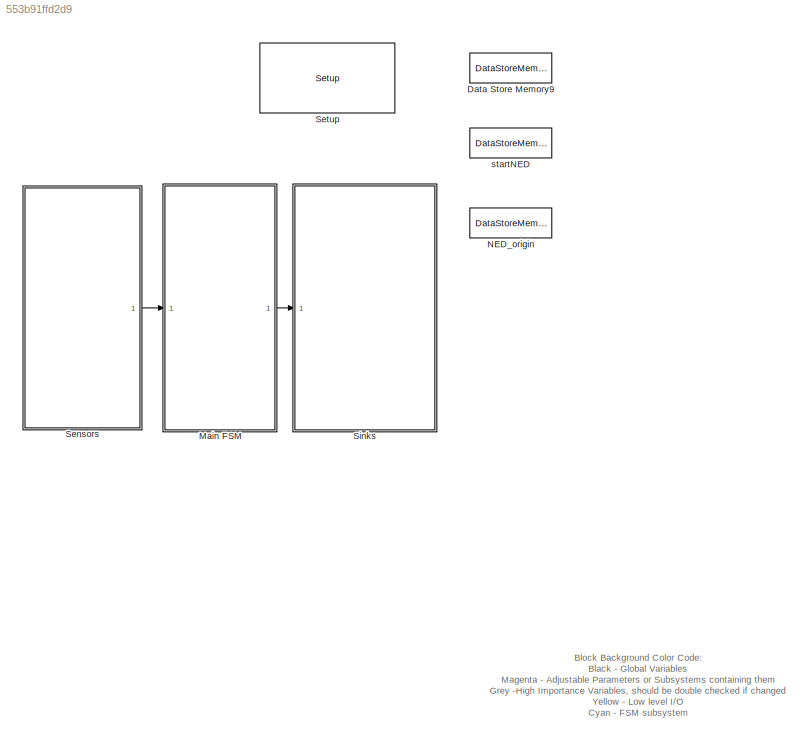
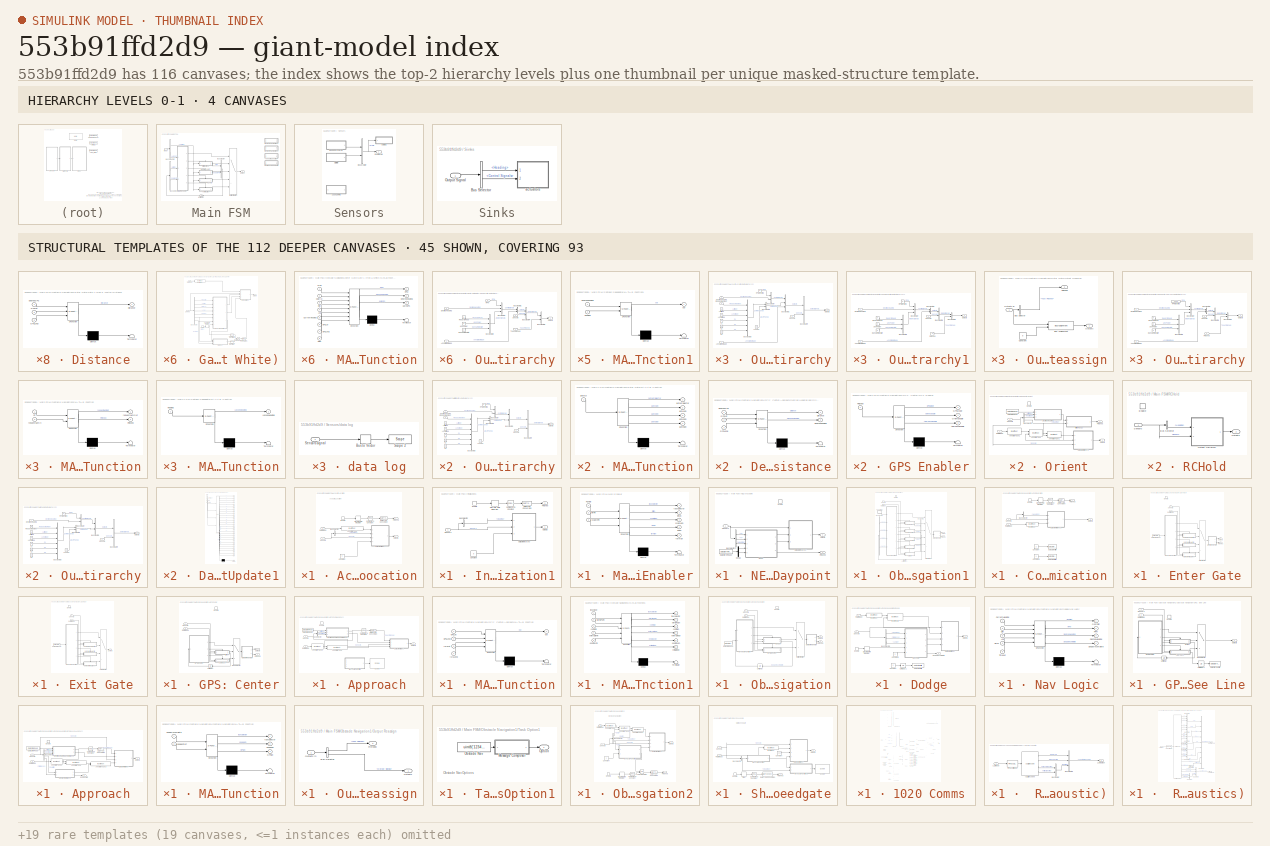
[diagram: thumbnail index - top-2 hierarchy levels (4 canvases) + 45 structural-template representatives of the remaining 112 canvases]
MODEL slx_553b91ffd2d9
KIND model
BLOCK [DataStoreMemory] Data Store Memory9
  DataStoreName = transWpt
  InitialValue = [4009.4964500000, 7532.95009000000]
  ReadBeforeWriteMsg = warning
  WriteAfterReadMsg = warning
  WriteAfterWriteMsg = warning
BLOCK [SubSystem] Main FSM
  Ports = [1, 1]
  RequestExecContextInheritance = off
BLOCK [SubSystem] Main FSM/Acoustic Location
  Commented = on
  Ports = [2, 2, 1]
  RequestExecContextInheritance = off
  TreatAsAtomicUnit = on
BLOCK [Reference] Main FSM/Acoustic Location/Annotate Task  REF=visiontextngfix/Insert Text
  Ports = [1, 1]
  SourceBlock = visiontextngfix/Insert Text
  SourceType = Insert Text
  antiAliased = on
  blockFontSize = 12
  dummyVar1 = 0
  dummyVar2 = 0
  dummyVar3 = 0
  dummyVar4 = 0
  fontFace = LucidaSansRegular
  getTextColorFrom = Specify via dialog
  getTextIntensityFrom = Specify via dialog
  getTextLocFrom = Specify via dialog
  getTextOpacityFrom = Specify via dialog
  imagePorts = One multidimensional signal
  inputType = Obsolete
  isInputTransposed = off
  textColor = [0 0 255]
  textIntensity = 0
  textLoc = [10 10]
  textOpacity = 1.0
  theText = 'Acoustic Location...'
BLOCK [BusSelector] Main FSM/Acoustic Location/Bus Selector
  OutputSignals = Serial In.Compass.Heading
  Ports = [1, 1]
BLOCK [Reference] Main FSM/Acoustic Location/Compare To Constant  REF=simulink/Logic and Bit
Operations/Compare
To Constant
  OutDataTypeStr = boolean
  Ports = [1, 1]
  SourceBlock = simulink/Logic and Bit\nOperations/Compare\nTo Constant
  SourceType = Compare To Constant
  ZeroCross = on
  const = 10
  relop = >=
BLOCK [Constant] Main FSM/Acoustic Location/Constant
  Value = 0
BLOCK [DataTypeConversion] Main FSM/Acoustic Location/Data Type Conversion
  OutDataTypeStr = double
  RndMeth = Floor
  SaturateOnIntegerOverflow = off
BLOCK [DiscreteIntegrator] Main FSM/Acoustic Location/Discrete-Time Integrator
  ICPrevOutput = DiscIntNeverNeededParam
  ICPrevScaledInput = DiscIntNeverNeededParam
  Ports = [1, 1]
  SampleTime = 0.1
BLOCK [EnablePort] Main FSM/Acoustic Location/Enable
  Ports = [0, 1]
  ShowOutputPort = on
BLOCK [Outport] Main FSM/Acoustic Location/Finished
  IconDisplay = Port number
  Port = 2
BLOCK [SubSystem] Main FSM/Acoustic Location/Output Heirarchy
  Ports = [4, 1]
  RequestExecContextInheritance = off
BLOCK [Inport] Main FSM/Acoustic Location/Output Heirarchy/Annotated Image
  IconDisplay = Port number
BLOCK [BusCreator] Main FSM/Acoustic Location/Output Heirarchy/Bus Creator
  DisplayOption = bar
  Inputs = 2
  Ports = [2, 1]
BLOCK [BusCreator] Main FSM/Acoustic Location/Output Heirarchy/Bus Creator1
  DisplayOption = bar
  Inputs = 3
  Ports = [3, 1]
BLOCK [BusCreator] Main FSM/Acoustic Location/Output Heirarchy/Bus Creator2
  DisplayOption = bar
  Inputs = 2
  Ports = [2, 1]
BLOCK [BusCreator] Main FSM/Acoustic Location/Output Heirarchy/Bus Creator3
  DisplayOption = bar
  Inputs = 6
  Ports = [6, 1]
BLOCK [BusCreator] Main FSM/Acoustic Location/Output Heirarchy/Bus Creator4
  DisplayOption = bar
  Inputs = 2
  Ports = [2, 1]
BLOCK [Constant] Main FSM/Acoustic Location/Output Heirarchy/C1
  Value = 0
BLOCK [Constant] Main FSM/Acoustic Location/Output Heirarchy/C2
  Value = 0
BLOCK [Constant] Main FSM/Acoustic Location/Output Heirarchy/C3
  Value = 0
BLOCK [Inport] Main FSM/Acoustic Location/Output Heirarchy/Desired Heading
  IconDisplay = Port number
  Port = 2
BLOCK [Constant] Main FSM/Acoustic Location/Output Heirarchy/LPTask
  Value = 0
BLOCK [Constant] Main FSM/Acoustic Location/Output Heirarchy/Latitude
  Value = 0
BLOCK [Constant] Main FSM/Acoustic Location/Output Heirarchy/Longitude
  Value = 0
BLOCK [Outport] Main FSM/Acoustic Location/Output Heirarchy/Outputs
  IconDisplay = Port number
BLOCK [Constant] Main FSM/Acoustic Location/Output Heirarchy/RPM Desired
  Value = 0
BLOCK [Inport] Main FSM/Acoustic Location/Output Heirarchy/Request Number
  IconDisplay = Port number
  Port = 4
BLOCK [Inport] Main FSM/Acoustic Location/Output Heirarchy/Sensors
  IconDisplay = Port number
  Port = 3
BLOCK [Outport] Main FSM/Acoustic Location/Outputs
  IconDisplay = Port number
BLOCK [Inport] Main FSM/Acoustic Location/RGB image
  IconDisplay = Port number
  Port = 2
BLOCK [Inport] Main FSM/Acoustic Location/Sensors
  IconDisplay = Port number
BLOCK [BusCreator] Main FSM/Bus Creator
  DisplayOption = bar
  Inputs = 2
  Ports = [2, 1]
BLOCK [BusSelector] Main FSM/Bus Selector1
  OutputSignals = Init Fin,SSGate Fin
  Ports = [1, 2]
BLOCK [BusSelector] Main FSM/Bus Selector2
  OutputSignals = Serial In,Digital In.Auto RC
  Ports = [1, 2]
BLOCK [SubSystem] Main FSM/Initialization1
  Ports = [1, 2, 1]
  RequestExecContextInheritance = off
BLOCK [BusSelector] Main FSM/Initialization1/Bus Selector
  OutputSignals = Compass.Heading
  Ports = [1, 1]
BLOCK [Reference] Main FSM/Initialization1/Compare To Constant  REF=simulink/Logic and Bit
Operations/Compare
To Constant
  OutDataTypeStr = boolean
  Ports = [1, 1]
  SourceBlock = simulink/Logic and Bit\nOperations/Compare\nTo Constant
  SourceType = Compare To Constant
  ZeroCross = on
  const = 5
  relop = >=
BLOCK [Constant] Main FSM/Initialization1/Constant
  Value = 0
BLOCK [DataTypeConversion] Main FSM/Initialization1/Data Type Conversion
  OutDataTypeStr = double
  RndMeth = Floor
  SaturateOnIntegerOverflow = off
BLOCK [DiscreteIntegrator] Main FSM/Initialization1/Discrete-Time Integrator
  ICPrevOutput = DiscIntNeverNeededParam
  ICPrevScaledInput = DiscIntNeverNeededParam
  Ports = [1, 1]
  SampleTime = -1
BLOCK [EnablePort] Main FSM/Initialization1/Enable
  Ports = [0, 1]
  ShowOutputPort = on
BLOCK [Outport] Main FSM/Initialization1/Finished
  IconDisplay = Port number
  Port = 2
BLOCK [SubSystem] Main FSM/Initialization1/Output Heirarchy
  Ports = [3, 1]
  RequestExecContextInheritance = off
BLOCK [BusCreator] Main FSM/Initialization1/Output Heirarchy/Bus Creator
  DisplayOption = bar
  Inputs = 2
  Ports = [2, 1]
BLOCK [BusCreator] Main FSM/Initialization1/Output Heirarchy/Bus Creator1
  DisplayOption = bar
  Inputs = 2
  Ports = [2, 1]
BLOCK [BusCreator] Main FSM/Initialization1/Output Heirarchy/Bus Creator2
  DisplayOption = bar
  Inputs = 2
  Ports = [2, 1]
BLOCK [BusCreator] Main FSM/Initialization1/Output Heirarchy/Bus Creator3
  DisplayOption = bar
  Inputs = 6
  Ports = [6, 1]
BLOCK [BusCreator] Main FSM/Initialization1/Output Heirarchy/Bus Creator4
  DisplayOption = bar
  Inputs = 2
  Ports = [2, 1]
BLOCK [Constant] Main FSM/Initialization1/Output Heirarchy/C1
  Value = 0
BLOCK [Constant] Main FSM/Initialization1/Output Heirarchy/C2
  Value = 0
BLOCK [Constant] Main FSM/Initialization1/Output Heirarchy/C3
  Value = 0
BLOCK [Inport] Main FSM/Initialization1/Output Heirarchy/Desired Heading
  IconDisplay = Port number
BLOCK [Constant] Main FSM/Initialization1/Output Heirarchy/LPTask
BLOCK [Constant] Main FSM/Initialization1/Output Heirarchy/Latitude
  Value = 0
BLOCK [Constant] Main FSM/Initialization1/Output Heirarchy/Longitude
  Value = 0
BLOCK [Outport] Main FSM/Initialization1/Output Heirarchy/Outputs
  IconDisplay = Port number
BLOCK [Constant] Main FSM/Initialization1/Output Heirarchy/RPM Desired
  Value = 0
BLOCK [Inport] Main FSM/Initialization1/Output Heirarchy/Request Number
  IconDisplay = Port number
  Port = 3
BLOCK [Inport] Main FSM/Initialization1/Output Heirarchy/Sensors
  IconDisplay = Port number
  Port = 2
BLOCK [Outport] Main FSM/Initialization1/Outputs
  IconDisplay = Port number
BLOCK [Inport] Main FSM/Initialization1/Sensors
  IconDisplay = Port number
BLOCK [Inport] Main FSM/Input
  IconDisplay = Port number
BLOCK [SubSystem] Main FSM/Main Enabler
  ErrorFcn = Stateflow.Translate.translate
  PermitHierarchicalResolution = ExplicitOnly
  Ports = [3, 5]
  RequestExecContextInheritance = off
  SFBlockType = MATLAB Function
  TreatAsAtomicUnit = on
BLOCK [Demux] Main FSM/Main Enabler/ Demux 
  Outputs = 1
  Ports = [1, 1]
BLOCK [S-Function] Main FSM/Main Enabler/ SFunction 
  EnableBusSupport = on
  FunctionName = sf_sfun
  PortCounts = [3 6]
  Ports = [3, 6]
  Tag = Stateflow S-Function RoboBoat_IMUv8 1
BLOCK [Terminator] Main FSM/Main Enabler/ Terminator 
BLOCK [Outport] Main FSM/Main Enabler/RCEn
  IconDisplay = Port number
  Port = 4
BLOCK [Inport] Main FSM/Main Enabler/RCHold
  IconDisplay = Port number
BLOCK [Outport] Main FSM/Main Enabler/initEn
  IconDisplay = Port number
  Port = 2
BLOCK [Inport] Main FSM/Main Enabler/initFin
  IconDisplay = Port number
  Port = 2
BLOCK [Outport] Main FSM/Main Enabler/ssGateEn
  IconDisplay = Port number
  Port = 3
BLOCK [Inport] Main FSM/Main Enabler/ssGateFin
  IconDisplay = Port number
  Port = 3
BLOCK [Outport] Main FSM/Main Enabler/taskSelector
  IconDisplay = Port number
BLOCK [Outport] Main FSM/Main Enabler/termEn
  IconDisplay = Port number
  Port = 5
BLOCK [MultiPortSwitch] Main FSM/Multiport Switch
  InputSameDT = off
  Inputs = 4
  Ports = [5, 1]
  SaturateOnIntegerOverflow = off
BLOCK [SubSystem] Main FSM/NED:Waypoint
  Ports = [1, 2, 1]
  RequestExecContextInheritance = off
  TreatAsAtomicUnit = on
BLOCK [BusSelector] Main FSM/NED:Waypoint/Bus Selector2
  OutputSignals = GPS.X,GPS.Y,Compass.Heading
  Ports = [1, 3]
BLOCK [DataStoreRead] Main FSM/NED:Waypoint/Data Store Read3
  DataStoreName = startNED
  Ports = [0, 1]
BLOCK [Demux] Main FSM/NED:Waypoint/Demux
  DisplayOption = bar
  Outputs = 2
  Ports = [1, 2]
BLOCK [EnablePort] Main FSM/NED:Waypoint/Enable
  Ports = []
BLOCK [Outport] Main FSM/NED:Waypoint/Finished
  IconDisplay = Port number
  Port = 2
BLOCK [ModelReference] Main FSM/NED:Waypoint/Model
  CopyOfModelName = NEDnavV5.slx
  DefaultDataLogging = on
  ModelNameDialog = NEDnavV5.slx
  ModelReferenceVersion = 1.2059
  Ports = [5, 3]
BLOCK [SubSystem] Main FSM/NED:Waypoint/Output Heirarchy
  Ports = [3, 1]
  RequestExecContextInheritance = off
BLOCK [BusCreator] Main FSM/NED:Waypoint/Output Heirarchy/Bus Creator
  DisplayOption = bar
  Inputs = 2
  Ports = [2, 1]
BLOCK [BusCreator] Main FSM/NED:Waypoint/Output Heirarchy/Bus Creator1
  DisplayOption = bar
  Inputs = 2
  Ports = [2, 1]
BLOCK [BusCreator] Main FSM/NED:Waypoint/Output Heirarchy/Bus Creator2
  DisplayOption = bar
  Inputs = 2
  Ports = [2, 1]
BLOCK [BusCreator] Main FSM/NED:Waypoint/Output Heirarchy/Bus Creator3
  DisplayOption = bar
  Inputs = 6
  Ports = [6, 1]
BLOCK [BusCreator] Main FSM/NED:Waypoint/Output Heirarchy/Bus Creator4
  DisplayOption = bar
  Inputs = 2
  Ports = [2, 1]
BLOCK [Constant] Main FSM/NED:Waypoint/Output Heirarchy/C1
  SampleTime = -1
  Value = 0
BLOCK [Constant] Main FSM/NED:Waypoint/Output Heirarchy/C2
  SampleTime = -1
  Value = 0
BLOCK [Constant] Main FSM/NED:Waypoint/Output Heirarchy/C3
  SampleTime = -1
  Value = 0
BLOCK [Inport] Main FSM/NED:Waypoint/Output Heirarchy/Desired Heading
  IconDisplay = Port number
  Port = 3
BLOCK [Constant] Main FSM/NED:Waypoint/Output Heirarchy/LPTask
  SampleTime = -1
BLOCK [Constant] Main FSM/NED:Waypoint/Output Heirarchy/Latitude
  SampleTime = -1
  Value = 0
BLOCK [Constant] Main FSM/NED:Waypoint/Output Heirarchy/Longitude
  SampleTime = -1
  Value = 0
BLOCK [Outport] Main FSM/NED:Waypoint/Output Heirarchy/Outputs
  IconDisplay = Port number
BLOCK [Inport] Main FSM/NED:Waypoint/Output Heirarchy/RPM
  IconDisplay = Port number
  Port = 2
BLOCK [Constant] Main FSM/NED:Waypoint/Output Heirarchy/Request Number
  SampleTime = -1
  Value = 0
BLOCK [Inport] Main FSM/NED:Waypoint/Output Heirarchy/Sensors
  IconDisplay = Port number
BLOCK [Outport] Main FSM/NED:Waypoint/Outputs
  IconDisplay = Port number
BLOCK [Inport] Main FSM/NED:Waypoint/Sensors
  IconDisplay = Port number
BLOCK [SubSystem] Main FSM/Obstacle Navigation1
  Commented = on
  Ports = [2, 2, 1]
  RequestExecContextInheritance = off
  TreatAsAtomicUnit = on
BLOCK [BusCreator] Main FSM/Obstacle Navigation1/Bus Creator1
  DisplayOption = bar
  Ports = [4, 1]
BLOCK [BusSelector] Main FSM/Obstacle Navigation1/Bus Selector1
  OutputSignals = GPS Fin,Comm Fin,Enter Fin,Nav Fin
  Ports = [1, 4]
BLOCK [SubSystem] Main FSM/Obstacle Navigation1/Communication
  Ports = [2, 2, 1]
  RequestExecContextInheritance = off
  TreatAsAtomicUnit = on
BLOCK [BusSelector] Main FSM/Obstacle Navigation1/Communication/Bus Selector
  OutputSignals = Serial In.Compass.Heading
  Ports = [1, 1]
BLOCK [Reference] Main FSM/Obstacle Navigation1/Communication/Compare To Constant  REF=simulink/Logic and Bit
Operations/Compare
To Constant
  OutDataTypeStr = boolean
  Ports = [1, 1]
  SourceBlock = simulink/Logic and Bit\nOperations/Compare\nTo Constant
  SourceType = Compare To Constant
  ZeroCross = on
  const = 5
  relop = >=
BLOCK [Constant] Main FSM/Obstacle Navigation1/Communication/Constant
  Value = 3
BLOCK [Constant] Main FSM/Obstacle Navigation1/Communication/Constant1
  Value = 3
BLOCK [DataStoreWrite] Main FSM/Obstacle Navigation1/Communication/Data Store Write
  DataStoreName = enterGate
  Ports = [1]
BLOCK [DataStoreWrite] Main FSM/Obstacle Navigation1/Communication/Data Store Write1
  DataStoreName = exitGate
  Ports = [1]
BLOCK [DataTypeConversion] Main FSM/Obstacle Navigation1/Communication/Data Type Conversion
  OutDataTypeStr = double
  RndMeth = Floor
  SaturateOnIntegerOverflow = off
BLOCK [DiscreteIntegrator] Main FSM/Obstacle Navigation1/Communication/Discrete-Time Integrator
  ICPrevOutput = DiscIntNeverNeededParam
  ICPrevScaledInput = DiscIntNeverNeededParam
  Ports = [1, 1]
  SampleTime = 0.1
BLOCK [EnablePort] Main FSM/Obstacle Navigation1/Communication/Enable
  Ports = [0, 1]
  ShowOutputPort = on
BLOCK [Outport] Main FSM/Obstacle Navigation1/Communication/Finished
  IconDisplay = Port number
  Port = 2
BLOCK [Reference] Main FSM/Obstacle Navigation1/Communication/Insert Text  REF=visiontextngfix/Insert Text
  Ports = [1, 1]
  SourceBlock = visiontextngfix/Insert Text
  SourceType = Insert Text
  antiAliased = on
  blockFontSize = 12
  dummyVar1 = 0
  dummyVar2 = 0
  dummyVar3 = 0
  dummyVar4 = 0
  fontFace = LucidaSansRegular
  getTextColorFrom = Specify via dialog
  getTextIntensityFrom = Specify via dialog
  getTextLocFrom = Specify via dialog
  getTextOpacityFrom = Specify via dialog
  imagePorts = One multidimensional signal
  inputType = Obsolete
  isInputTransposed = off
  textColor = [0 0 0]
  textIntensity = 0
  textLoc = [1 1]
  textOpacity = 1.0
  theText = 'Communication1'
BLOCK [SubSystem] Main FSM/Obstacle Navigation1/Communication/Output Heirarchy1
  Ports = [3, 1]
  RequestExecContextInheritance = off
BLOCK [Inport] Main FSM/Obstacle Navigation1/Communication/Output Heirarchy1/Annotated Image
  IconDisplay = Port number
  Port = 3
BLOCK [BusCreator] Main FSM/Obstacle Navigation1/Communication/Output Heirarchy1/Bus Creator
  DisplayOption = bar
  Inputs = 3
  Ports = [3, 1]
BLOCK [BusCreator] Main FSM/Obstacle Navigation1/Communication/Output Heirarchy1/Bus Creator1
  DisplayOption = bar
  Inputs = 2
  Ports = [2, 1]
BLOCK [BusCreator] Main FSM/Obstacle Navigation1/Communication/Output Heirarchy1/Bus Creator2
  DisplayOption = bar
  Inputs = 3
  Ports = [3, 1]
BLOCK [BusCreator] Main FSM/Obstacle Navigation1/Communication/Output Heirarchy1/Bus Creator3
  DisplayOption = bar
  Inputs = 2
  Ports = [2, 1]
BLOCK [BusCreator] Main FSM/Obstacle Navigation1/Communication/Output Heirarchy1/Bus Creator4
  DisplayOption = bar
  Inputs = 2
  Ports = [2, 1]
BLOCK [Inport] Main FSM/Obstacle Navigation1/Communication/Output Heirarchy1/Desired Heading
  IconDisplay = Port number
BLOCK [Constant] Main FSM/Obstacle Navigation1/Communication/Output Heirarchy1/Due Sample Start
  Value = 0
BLOCK [Constant] Main FSM/Obstacle Navigation1/Communication/Output Heirarchy1/Finished
  Value = 0
BLOCK [Outport] Main FSM/Obstacle Navigation1/Communication/Output Heirarchy1/Outputs
  IconDisplay = Port number
BLOCK [Constant] Main FSM/Obstacle Navigation1/Communication/Output Heirarchy1/RPM Desired
  Value = 0
BLOCK [Constant] Main FSM/Obstacle Navigation1/Communication/Output Heirarchy1/Ready to Read
  Value = 0
BLOCK [Inport] Main FSM/Obstacle Navigation1/Communication/Output Heirarchy1/Sensors
  IconDisplay = Port number
  Port = 2
BLOCK [Constant] Main FSM/Obstacle Navigation1/Communication/Output Heirarchy1/Uno Power
  Value = 0
BLOCK [Outport] Main FSM/Obstacle Navigation1/Communication/Outputs
  IconDisplay = Port number
BLOCK [Inport] Main FSM/Obstacle Navigation1/Communication/RGB Image
  IconDisplay = Port number
  Port = 2
BLOCK [Inport] Main FSM/Obstacle Navigation1/Communication/Sensors
  IconDisplay = Port number
BLOCK [EnablePort] Main FSM/Obstacle Navigation1/Enable
  Ports = []
BLOCK [SubSystem] Main FSM/Obstacle Navigation1/Enter Gate
  Ports = [2, 2, 1]
  RequestExecContextInheritance = off
  TreatAsAtomicUnit = on
BLOCK [DataStoreRead] Main FSM/Obstacle Navigation1/Enter Gate/Data Store Read
  DataStoreName = enterGate
  Ports = [0, 1]
BLOCK [EnablePort] Main FSM/Obstacle Navigation1/Enter Gate/Enable
  Ports = []
BLOCK [Outport] Main FSM/Obstacle Navigation1/Enter Gate/Finished
  IconDisplay = Port number
  Port = 2
BLOCK [SubSystem] Main FSM/Obstacle Navigation1/Enter Gate/Gate 1 (Red & White)
  Ports = [2, 1, 1]
  RequestExecContextInheritance = off
  TreatAsAtomicUnit = on
BLOCK [BusSelector] Main FSM/Obstacle Navigation1/Enter Gate/Gate 1 (Red & White)/Bus Selector
  OutputSignals = Serial In.Buoy Info.Probability,Serial In.Buoy Info.Color ID,Serial In.Buoy Info.Distance,Serial In.Buoy Info.Angle,Serial In.Compass.Heading,Serial In.GPS.latitude,Serial In.GPS.longitude  <repeated x6 — deduplicated; at blocks: Bus Selector>
  Ports = [1, 7]
BLOCK [Reference] Main FSM/Obstacle Navigation1/Enter Gate/Gate 1 (Red & White)/Compare To Constant  REF=simulink/Logic and Bit
Operations/Compare
To Constant
  OutDataTypeStr = boolean
  Ports = [1, 1]
  SourceBlock = simulink/Logic and Bit\nOperations/Compare\nTo Constant
  SourceType = Compare To Constant
  ZeroCross = on
  const = 2
  relop = <=
BLOCK [Reference] Main FSM/Obstacle Navigation1/Enter Gate/Gate 1 (Red & White)/Compare To Constant1  REF=simulink/Logic and Bit
Operations/Compare
To Constant
  OutDataTypeStr = boolean
  Ports = [1, 1]
  SourceBlock = simulink/Logic and Bit\nOperations/Compare\nTo Constant
  SourceType = Compare To Constant
  ZeroCross = on
  const = 120
  relop = >=
BLOCK [DataTypeConversion] Main FSM/Obstacle Navigation1/Enter Gate/Gate 1 (Red & White)/Data Type Conversion2
  OutDataTypeStr = double
  RndMeth = Floor
  SaturateOnIntegerOverflow = off
BLOCK [DiscreteIntegrator] Main FSM/Obstacle Navigation1/Enter Gate/Gate 1 (Red & White)/Discrete-Time Integrator
  ICPrevOutput = DiscIntNeverNeededParam
  ICPrevScaledInput = DiscIntNeverNeededParam
  Ports = [1, 1]
  SampleTime = .1
BLOCK [SubSystem] Main FSM/Obstacle Navigation1/Enter Gate/Gate 1 (Red & White)/Distance
  ErrorFcn = Stateflow.Translate.translate
  PermitHierarchicalResolution = ExplicitOnly
  Ports = [3, 1]
  RequestExecContextInheritance = off
  SFBlockType = MATLAB Function
  TreatAsAtomicUnit = on
BLOCK [Demux] Main FSM/Obstacle Navigation1/Enter Gate/Gate 1 (Red & White)/Distance/ Demux 
  Outputs = 1
  Ports = [1, 1]
BLOCK [S-Function] Main FSM/Obstacle Navigation1/Enter Gate/Gate 1 (Red & White)/Distance/ SFunction 
  EnableBusSupport = on
  FunctionName = sf_sfun
  PortCounts = [3 2]
  Ports = [3, 2]
  Tag = Stateflow S-Function RoboBoat_IMUv8 19
BLOCK [Terminator] Main FSM/Obstacle Navigation1/Enter Gate/Gate 1 (Red & White)/Distance/ Terminator 
BLOCK [Inport] Main FSM/Obstacle Navigation1/Enter Gate/Gate 1 (Red & White)/Distance/DesiredGPS
  IconDisplay = Port number
BLOCK [Outport] Main FSM/Obstacle Navigation1/Enter Gate/Gate 1 (Red & White)/Distance/Distance
  IconDisplay = Port number
BLOCK [Inport] Main FSM/Obstacle Navigation1/Enter Gate/Gate 1 (Red & White)/Distance/GPSLat
  IconDisplay = Port number
  Port = 2
BLOCK [Inport] Main FSM/Obstacle Navigation1/Enter Gate/Gate 1 (Red & White)/Distance/GPSLong
  IconDisplay = Port number
  Port = 3
BLOCK [EnablePort] Main FSM/Obstacle Navigation1/Enter Gate/Gate 1 (Red & White)/Enable
  Ports = [0, 1]
  ShowOutputPort = on
BLOCK [Reference] Main FSM/Obstacle Navigation1/Enter Gate/Gate 1 (Red & White)/Insert Text  REF=visiontextngfix/Insert Text
  Ports = [1, 1]
  SourceBlock = visiontextngfix/Insert Text
  SourceType = Insert Text
  antiAliased = on
  blockFontSize = 12
  dummyVar1 = 0
  dummyVar2 = 0
  dummyVar3 = 0
  dummyVar4 = 0
  fontFace = LucidaSansRegular
  getTextColorFrom = Specify via dialog
  getTextIntensityFrom = Specify via dialog
  getTextLocFrom = Specify via dialog
  getTextOpacityFrom = Specify via dialog
  imagePorts = One multidimensional signal
  inputType = Obsolete
  isInputTransposed = off
  textColor = [0 0 0]
  textIntensity = 0
  textLoc = [1 1]
  textOpacity = 1.0
  theText = 'Enter Gate 1'
BLOCK [Logic] Main FSM/Obstacle Navigation1/Enter Gate/Gate 1 (Red & White)/Logical Operator
  AllPortsSameDT = off
  Operator = OR
  OutDataTypeStr = boolean
  Ports = [2, 1]
BLOCK [SubSystem] Main FSM/Obstacle Navigation1/Enter Gate/Gate 1 (Red & White)/MATLAB Function
  ErrorFcn = Stateflow.Translate.translate
  PermitHierarchicalResolution = ExplicitOnly
  Ports = [8, 3]
  RequestExecContextInheritance = off
  SFBlockType = MATLAB Function
  TreatAsAtomicUnit = on
BLOCK [Demux] Main FSM/Obstacle Navigation1/Enter Gate/Gate 1 (Red & White)/MATLAB Function/ Demux 
  Outputs = 1
  Ports = [1, 1]
BLOCK [S-Function] Main FSM/Obstacle Navigation1/Enter Gate/Gate 1 (Red & White)/MATLAB Function/ SFunction 
  EnableBusSupport = on
  FunctionName = sf_sfun
  PortCounts = [8 4]
  Ports = [8, 4]
  Tag = Stateflow S-Function RoboBoat_IMUv8 20
BLOCK [Terminator] Main FSM/Obstacle Navigation1/Enter Gate/Gate 1 (Red & White)/MATLAB Function/ Terminator 
BLOCK [Inport] Main FSM/Obstacle Navigation1/Enter Gate/Gate 1 (Red & White)/MATLAB Function/Ang
  IconDisplay = Port number
  Port = 4
BLOCK [Inport] Main FSM/Obstacle Navigation1/Enter Gate/Gate 1 (Red & White)/MATLAB Function/ColorID
  IconDisplay = Port number
  Port = 2
BLOCK [Inport] Main FSM/Obstacle Navigation1/Enter Gate/Gate 1 (Red & White)/MATLAB Function/CurrentHeading
  IconDisplay = Port number
  Port = 5
BLOCK [Outport] Main FSM/Obstacle Navigation1/Enter Gate/Gate 1 (Red & White)/MATLAB Function/DesiredHeading
  IconDisplay = Port number
  Port = 2
BLOCK [Inport] Main FSM/Obstacle Navigation1/Enter Gate/Gate 1 (Red & White)/MATLAB Function/Dist
  IconDisplay = Port number
  Port = 3
BLOCK [Inport] Main FSM/Obstacle Navigation1/Enter Gate/Gate 1 (Red & White)/MATLAB Function/GPSLat
  IconDisplay = Port number
  Port = 6
BLOCK [Inport] Main FSM/Obstacle Navigation1/Enter Gate/Gate 1 (Red & White)/MATLAB Function/GPSLong
  IconDisplay = Port number
  Port = 7
BLOCK [Inport] Main FSM/Obstacle Navigation1/Enter Gate/Gate 1 (Red & White)/MATLAB Function/Prob
  IconDisplay = Port number
BLOCK [Outport] Main FSM/Obstacle Navigation1/Enter Gate/Gate 1 (Red & White)/MATLAB Function/RPM
  IconDisplay = Port number
BLOCK [Inport] Main FSM/Obstacle Navigation1/Enter Gate/Gate 1 (Red & White)/MATLAB Function/Timer
  IconDisplay = Port number
  Port = 8
BLOCK [Outport] Main FSM/Obstacle Navigation1/Enter Gate/Gate 1 (Red & White)/MATLAB Function/gateGPS
  IconDisplay = Port number
  Port = 3
BLOCK [SubSystem] Main FSM/Obstacle Navigation1/Enter Gate/Gate 1 (Red & White)/Output Heirarchy
  Ports = [5, 1]
  RequestExecContextInheritance = off
BLOCK [Inport] Main FSM/Obstacle Navigation1/Enter Gate/Gate 1 (Red & White)/Output Heirarchy/Annotated Image
  IconDisplay = Port number
BLOCK [BusCreator] Main FSM/Obstacle Navigation1/Enter Gate/Gate 1 (Red & White)/Output Heirarchy/Bus Creator
  DisplayOption = bar
  Inputs = 3
  Ports = [3, 1]
BLOCK [BusCreator] Main FSM/Obstacle Navigation1/Enter Gate/Gate 1 (Red & White)/Output Heirarchy/Bus Creator1
  DisplayOption = bar
  Inputs = 2
  Ports = [2, 1]
BLOCK [BusCreator] Main FSM/Obstacle Navigation1/Enter Gate/Gate 1 (Red & White)/Output Heirarchy/Bus Creator2
  DisplayOption = bar
  Inputs = 3
  Ports = [3, 1]
BLOCK [BusCreator] Main FSM/Obstacle Navigation1/Enter Gate/Gate 1 (Red & White)/Output Heirarchy/Bus Creator3
  DisplayOption = bar
  Inputs = 2
  Ports = [2, 1]
BLOCK [BusCreator] Main FSM/Obstacle Navigation1/Enter Gate/Gate 1 (Red & White)/Output Heirarchy/Bus Creator4
  DisplayOption = bar
  Inputs = 2
  Ports = [2, 1]
BLOCK [Inport] Main FSM/Obstacle Navigation1/Enter Gate/Gate 1 (Red & White)/Output Heirarchy/Desired Heading
  IconDisplay = Port number
  Port = 4
BLOCK [Constant] Main FSM/Obstacle Navigation1/Enter Gate/Gate 1 (Red & White)/Output Heirarchy/Due Sample Start
  Value = 0
BLOCK [Outport] Main FSM/Obstacle Navigation1/Enter Gate/Gate 1 (Red & White)/Output Heirarchy/Outputs
  IconDisplay = Port number
BLOCK [Inport] Main FSM/Obstacle Navigation1/Enter Gate/Gate 1 (Red & White)/Output Heirarchy/RPM
  IconDisplay = Port number
  Port = 3
BLOCK [Constant] Main FSM/Obstacle Navigation1/Enter Gate/Gate 1 (Red & White)/Output Heirarchy/Ready to Read
  Value = 0
BLOCK [Inport] Main FSM/Obstacle Navigation1/Enter Gate/Gate 1 (Red & White)/Output Heirarchy/Sensors
  IconDisplay = Port number
  Port = 2
BLOCK [Inport] Main FSM/Obstacle Navigation1/Enter Gate/Gate 1 (Red & White)/Output Heirarchy/Task Finished
  IconDisplay = Port number
  Port = 5
BLOCK [Constant] Main FSM/Obstacle Navigation1/Enter Gate/Gate 1 (Red & White)/Output Heirarchy/Uno Power
  Value = 0
BLOCK [Outport] Main FSM/Obstacle Navigation1/Enter Gate/Gate 1 (Red & White)/Outputs
  IconDisplay = Port number
BLOCK [Inport] Main FSM/Obstacle Navigation1/Enter Gate/Gate 1 (Red & White)/RGB image
  IconDisplay = Port number
  Port = 2
BLOCK [Inport] Main FSM/Obstacle Navigation1/Enter Gate/Gate 1 (Red & White)/Sensors
  IconDisplay = Port number
BLOCK [SubSystem] Main FSM/Obstacle Navigation1/Enter Gate/Gate 2 (White & White)
  Ports = [2, 1, 1]
  RequestExecContextInheritance = off
  TreatAsAtomicUnit = on
BLOCK [BusSelector] Main FSM/Obstacle Navigation1/Enter Gate/Gate 2 (White & White)/Bus Selector
  Ports = [1, 7]
BLOCK [Reference] Main FSM/Obstacle Navigation1/Enter Gate/Gate 2 (White & White)/Compare To Constant  REF=simulink/Logic and Bit
Operations/Compare
To Constant
  OutDataTypeStr = boolean
  Ports = [1, 1]
  SourceBlock = simulink/Logic and Bit\nOperations/Compare\nTo Constant
  SourceType = Compare To Constant
  ZeroCross = on
  const = 2
  relop = <=
BLOCK [Reference] Main FSM/Obstacle Navigation1/Enter Gate/Gate 2 (White & White)/Compare To Constant1  REF=simulink/Logic and Bit
Operations/Compare
To Constant
  OutDataTypeStr = boolean
  Ports = [1, 1]
  SourceBlock = simulink/Logic and Bit\nOperations/Compare\nTo Constant
  SourceType = Compare To Constant
  ZeroCross = on
  const = 120
  relop = >=
BLOCK [DataTypeConversion] Main FSM/Obstacle Navigation1/Enter Gate/Gate 2 (White & White)/Data Type Conversion2
  OutDataTypeStr = double
  RndMeth = Floor
  SaturateOnIntegerOverflow = off
BLOCK [DiscreteIntegrator] Main FSM/Obstacle Navigation1/Enter Gate/Gate 2 (White & White)/Discrete-Time Integrator
  ICPrevOutput = DiscIntNeverNeededParam
  ICPrevScaledInput = DiscIntNeverNeededParam
  Ports = [1, 1]
  SampleTime = .1
BLOCK [SubSystem] Main FSM/Obstacle Navigation1/Enter Gate/Gate 2 (White & White)/Distance
  ErrorFcn = Stateflow.Translate.translate
  PermitHierarchicalResolution = ExplicitOnly
  Ports = [3, 1]
  RequestExecContextInheritance = off
  SFBlockType = MATLAB Function
  TreatAsAtomicUnit = on
BLOCK [Demux] Main FSM/Obstacle Navigation1/Enter Gate/Gate 2 (White & White)/Distance/ Demux 
  Outputs = 1
  Ports = [1, 1]
BLOCK [S-Function] Main FSM/Obstacle Navigation1/Enter Gate/Gate 2 (White & White)/Distance/ SFunction 
  EnableBusSupport = on
  FunctionName = sf_sfun
  PortCounts = [3 2]
  Ports = [3, 2]
  Tag = Stateflow S-Function RoboBoat_IMUv8 21
BLOCK [Terminator] Main FSM/Obstacle Navigation1/Enter Gate/Gate 2 (White & White)/Distance/ Terminator 
BLOCK [Inport] Main FSM/Obstacle Navigation1/Enter Gate/Gate 2 (White & White)/Distance/DesiredGPS
  IconDisplay = Port number
BLOCK [Outport] Main FSM/Obstacle Navigation1/Enter Gate/Gate 2 (White & White)/Distance/Distance
  IconDisplay = Port number
BLOCK [Inport] Main FSM/Obstacle Navigation1/Enter Gate/Gate 2 (White & White)/Distance/GPSLat
  IconDisplay = Port number
  Port = 2
BLOCK [Inport] Main FSM/Obstacle Navigation1/Enter Gate/Gate 2 (White & White)/Distance/GPSLong
  IconDisplay = Port number
  Port = 3
BLOCK [EnablePort] Main FSM/Obstacle Navigation1/Enter Gate/Gate 2 (White & White)/Enable
  Ports = [0, 1]
  ShowOutputPort = on
BLOCK [Reference] Main FSM/Obstacle Navigation1/Enter Gate/Gate 2 (White & White)/Insert Text  REF=visiontextngfix/Insert Text
  Ports = [1, 1]
  SourceBlock = visiontextngfix/Insert Text
  SourceType = Insert Text
  antiAliased = on
  blockFontSize = 12
  dummyVar1 = 0
  dummyVar2 = 0
  dummyVar3 = 0
  dummyVar4 = 0
  fontFace = LucidaSansRegular
  getTextColorFrom = Specify via dialog
  getTextIntensityFrom = Specify via dialog
  getTextLocFrom = Specify via dialog
  getTextOpacityFrom = Specify via dialog
  imagePorts = One multidimensional signal
  inputType = Obsolete
  isInputTransposed = off
  textColor = [0 0 0]
  textIntensity = 0
  textLoc = [1 1]
  textOpacity = 1.0
  theText = 'Enter Gate 2'
BLOCK [Logic] Main FSM/Obstacle Navigation1/Enter Gate/Gate 2 (White & White)/Logical Operator
  AllPortsSameDT = off
  Operator = OR
  OutDataTypeStr = boolean
  Ports = [2, 1]
BLOCK [SubSystem] Main FSM/Obstacle Navigation1/Enter Gate/Gate 2 (White & White)/MATLAB Function
  ErrorFcn = Stateflow.Translate.translate
  PermitHierarchicalResolution = ExplicitOnly
  Ports = [8, 3]
  RequestExecContextInheritance = off
  SFBlockType = MATLAB Function
  TreatAsAtomicUnit = on
BLOCK [Demux] Main FSM/Obstacle Navigation1/Enter Gate/Gate 2 (White & White)/MATLAB Function/ Demux 
  Outputs = 1
  Ports = [1, 1]
BLOCK [S-Function] Main FSM/Obstacle Navigation1/Enter Gate/Gate 2 (White & White)/MATLAB Function/ SFunction 
  EnableBusSupport = on
  FunctionName = sf_sfun
  PortCounts = [8 4]
  Ports = [8, 4]
  Tag = Stateflow S-Function RoboBoat_IMUv8 22
BLOCK [Terminator] Main FSM/Obstacle Navigation1/Enter Gate/Gate 2 (White & White)/MATLAB Function/ Terminator 
BLOCK [Inport] Main FSM/Obstacle Navigation1/Enter Gate/Gate 2 (White & White)/MATLAB Function/Ang
  IconDisplay = Port number
  Port = 4
BLOCK [Inport] Main FSM/Obstacle Navigation1/Enter Gate/Gate 2 (White & White)/MATLAB Function/ColorID
  IconDisplay = Port number
  Port = 2
BLOCK [Inport] Main FSM/Obstacle Navigation1/Enter Gate/Gate 2 (White & White)/MATLAB Function/CurrentHeading
  IconDisplay = Port number
  Port = 5
BLOCK [Outport] Main FSM/Obstacle Navigation1/Enter Gate/Gate 2 (White & White)/MATLAB Function/DesiredHeading
  IconDisplay = Port number
  Port = 2
BLOCK [Inport] Main FSM/Obstacle Navigation1/Enter Gate/Gate 2 (White & White)/MATLAB Function/Dist
  IconDisplay = Port number
  Port = 3
BLOCK [Inport] Main FSM/Obstacle Navigation1/Enter Gate/Gate 2 (White & White)/MATLAB Function/GPSLat
  IconDisplay = Port number
  Port = 6
BLOCK [Inport] Main FSM/Obstacle Navigation1/Enter Gate/Gate 2 (White & White)/MATLAB Function/GPSLong
  IconDisplay = Port number
  Port = 7
BLOCK [Inport] Main FSM/Obstacle Navigation1/Enter Gate/Gate 2 (White & White)/MATLAB Function/Prob
  IconDisplay = Port number
BLOCK [Outport] Main FSM/Obstacle Navigation1/Enter Gate/Gate 2 (White & White)/MATLAB Function/RPM
  IconDisplay = Port number
BLOCK [Inport] Main FSM/Obstacle Navigation1/Enter Gate/Gate 2 (White & White)/MATLAB Function/Timer
  IconDisplay = Port number
  Port = 8
BLOCK [Outport] Main FSM/Obstacle Navigation1/Enter Gate/Gate 2 (White & White)/MATLAB Function/gateGPS
  IconDisplay = Port number
  Port = 3
BLOCK [SubSystem] Main FSM/Obstacle Navigation1/Enter Gate/Gate 2 (White & White)/Output Heirarchy
  Ports = [5, 1]
  RequestExecContextInheritance = off
BLOCK [Inport] Main FSM/Obstacle Navigation1/Enter Gate/Gate 2 (White & White)/Output Heirarchy/Annotated Image
  IconDisplay = Port number
BLOCK [BusCreator] Main FSM/Obstacle Navigation1/Enter Gate/Gate 2 (White & White)/Output Heirarchy/Bus Creator
  DisplayOption = bar
  Inputs = 3
  Ports = [3, 1]
BLOCK [BusCreator] Main FSM/Obstacle Navigation1/Enter Gate/Gate 2 (White & White)/Output Heirarchy/Bus Creator1
  DisplayOption = bar
  Inputs = 2
  Ports = [2, 1]
BLOCK [BusCreator] Main FSM/Obstacle Navigation1/Enter Gate/Gate 2 (White & White)/Output Heirarchy/Bus Creator2
  DisplayOption = bar
  Inputs = 3
  Ports = [3, 1]
BLOCK [BusCreator] Main FSM/Obstacle Navigation1/Enter Gate/Gate 2 (White & White)/Output Heirarchy/Bus Creator3
  DisplayOption = bar
  Inputs = 2
  Ports = [2, 1]
BLOCK [BusCreator] Main FSM/Obstacle Navigation1/Enter Gate/Gate 2 (White & White)/Output Heirarchy/Bus Creator4
  DisplayOption = bar
  Inputs = 2
  Ports = [2, 1]
BLOCK [Inport] Main FSM/Obstacle Navigation1/Enter Gate/Gate 2 (White & White)/Output Heirarchy/Desired Heading
  IconDisplay = Port number
  Port = 4
BLOCK [Constant] Main FSM/Obstacle Navigation1/Enter Gate/Gate 2 (White & White)/Output Heirarchy/Due Sample Start
  Value = 0
BLOCK [Outport] Main FSM/Obstacle Navigation1/Enter Gate/Gate 2 (White & White)/Output Heirarchy/Outputs
  IconDisplay = Port number
BLOCK [Inport] Main FSM/Obstacle Navigation1/Enter Gate/Gate 2 (White & White)/Output Heirarchy/RPM
  IconDisplay = Port number
  Port = 3
BLOCK [Constant] Main FSM/Obstacle Navigation1/Enter Gate/Gate 2 (White & White)/Output Heirarchy/Ready to Read
  Value = 0
BLOCK [Inport] Main FSM/Obstacle Navigation1/Enter Gate/Gate 2 (White & White)/Output Heirarchy/Sensors
  IconDisplay = Port number
  Port = 2
BLOCK [Inport] Main FSM/Obstacle Navigation1/Enter Gate/Gate 2 (White & White)/Output Heirarchy/Task Finished
  IconDisplay = Port number
  Port = 5
BLOCK [Constant] Main FSM/Obstacle Navigation1/Enter Gate/Gate 2 (White & White)/Output Heirarchy/Uno Power
  Value = 0
BLOCK [Outport] Main FSM/Obstacle Navigation1/Enter Gate/Gate 2 (White & White)/Outputs
  IconDisplay = Port number
BLOCK [Inport] Main FSM/Obstacle Navigation1/Enter Gate/Gate 2 (White & White)/RGB image
  IconDisplay = Port number
  Port = 2
BLOCK [Inport] Main FSM/Obstacle Navigation1/Enter Gate/Gate 2 (White & White)/Sensors
  IconDisplay = Port number
BLOCK [SubSystem] Main FSM/Obstacle Navigation1/Enter Gate/Gate 3 (White & Green)
  Ports = [2, 1, 1]
  RequestExecContextInheritance = off
  TreatAsAtomicUnit = on
BLOCK [BusSelector] Main FSM/Obstacle Navigation1/Enter Gate/Gate 3 (White & Green)/Bus Selector
  Ports = [1, 7]
BLOCK [Reference] Main FSM/Obstacle Navigation1/Enter Gate/Gate 3 (White & Green)/Compare To Constant  REF=simulink/Logic and Bit
Operations/Compare
To Constant
  OutDataTypeStr = boolean
  Ports = [1, 1]
  SourceBlock = simulink/Logic and Bit\nOperations/Compare\nTo Constant
  SourceType = Compare To Constant
  ZeroCross = on
  const = 2
  relop = <=
BLOCK [Reference] Main FSM/Obstacle Navigation1/Enter Gate/Gate 3 (White & Green)/Compare To Constant1  REF=simulink/Logic and Bit
Operations/Compare
To Constant
  OutDataTypeStr = boolean
  Ports = [1, 1]
  SourceBlock = simulink/Logic and Bit\nOperations/Compare\nTo Constant
  SourceType = Compare To Constant
  ZeroCross = on
  const = 120
  relop = >=
BLOCK [DataTypeConversion] Main FSM/Obstacle Navigation1/Enter Gate/Gate 3 (White & Green)/Data Type Conversion2
  OutDataTypeStr = double
  RndMeth = Floor
  SaturateOnIntegerOverflow = off
BLOCK [DiscreteIntegrator] Main FSM/Obstacle Navigation1/Enter Gate/Gate 3 (White & Green)/Discrete-Time Integrator
  ICPrevOutput = DiscIntNeverNeededParam
  ICPrevScaledInput = DiscIntNeverNeededParam
  Ports = [1, 1]
  SampleTime = .1
BLOCK [SubSystem] Main FSM/Obstacle Navigation1/Enter Gate/Gate 3 (White & Green)/Distance
  ErrorFcn = Stateflow.Translate.translate
  PermitHierarchicalResolution = ExplicitOnly
  Ports = [3, 1]
  RequestExecContextInheritance = off
  SFBlockType = MATLAB Function
  TreatAsAtomicUnit = on
BLOCK [Demux] Main FSM/Obstacle Navigation1/Enter Gate/Gate 3 (White & Green)/Distance/ Demux 
  Outputs = 1
  Ports = [1, 1]
BLOCK [S-Function] Main FSM/Obstacle Navigation1/Enter Gate/Gate 3 (White & Green)/Distance/ SFunction 
  EnableBusSupport = on
  FunctionName = sf_sfun
  PortCounts = [3 2]
  Ports = [3, 2]
  Tag = Stateflow S-Function RoboBoat_IMUv8 23
BLOCK [Terminator] Main FSM/Obstacle Navigation1/Enter Gate/Gate 3 (White & Green)/Distance/ Terminator 
BLOCK [Inport] Main FSM/Obstacle Navigation1/Enter Gate/Gate 3 (White & Green)/Distance/DesiredGPS
  IconDisplay = Port number
BLOCK [Outport] Main FSM/Obstacle Navigation1/Enter Gate/Gate 3 (White & Green)/Distance/Distance
  IconDisplay = Port number
BLOCK [Inport] Main FSM/Obstacle Navigation1/Enter Gate/Gate 3 (White & Green)/Distance/GPSLat
  IconDisplay = Port number
  Port = 2
BLOCK [Inport] Main FSM/Obstacle Navigation1/Enter Gate/Gate 3 (White & Green)/Distance/GPSLong
  IconDisplay = Port number
  Port = 3
BLOCK [EnablePort] Main FSM/Obstacle Navigation1/Enter Gate/Gate 3 (White & Green)/Enable
  Ports = [0, 1]
  ShowOutputPort = on
BLOCK [Reference] Main FSM/Obstacle Navigation1/Enter Gate/Gate 3 (White & Green)/Insert Text  REF=visiontextngfix/Insert Text
  Ports = [1, 1]
  SourceBlock = visiontextngfix/Insert Text
  SourceType = Insert Text
  antiAliased = on
  blockFontSize = 12
  dummyVar1 = 0
  dummyVar2 = 0
  dummyVar3 = 0
  dummyVar4 = 0
  fontFace = LucidaSansRegular
  getTextColorFrom = Specify via dialog
  getTextIntensityFrom = Specify via dialog
  getTextLocFrom = Specify via dialog
  getTextOpacityFrom = Specify via dialog
  imagePorts = One multidimensional signal
  inputType = Obsolete
  isInputTransposed = off
  textColor = [0 0 0]
  textIntensity = 0
  textLoc = [1 1]
  textOpacity = 1.0
  theText = 'Enter Gate 3'
BLOCK [Logic] Main FSM/Obstacle Navigation1/Enter Gate/Gate 3 (White & Green)/Logical Operator
  AllPortsSameDT = off
  Operator = OR
  OutDataTypeStr = boolean
  Ports = [2, 1]
BLOCK [SubSystem] Main FSM/Obstacle Navigation1/Enter Gate/Gate 3 (White & Green)/MATLAB Function
  ErrorFcn = Stateflow.Translate.translate
  PermitHierarchicalResolution = ExplicitOnly
  Ports = [8, 3]
  RequestExecContextInheritance = off
  SFBlockType = MATLAB Function
  TreatAsAtomicUnit = on
BLOCK [Demux] Main FSM/Obstacle Navigation1/Enter Gate/Gate 3 (White & Green)/MATLAB Function/ Demux 
  Outputs = 1
  Ports = [1, 1]
BLOCK [S-Function] Main FSM/Obstacle Navigation1/Enter Gate/Gate 3 (White & Green)/MATLAB Function/ SFunction 
  EnableBusSupport = on
  FunctionName = sf_sfun
  PortCounts = [8 4]
  Ports = [8, 4]
  Tag = Stateflow S-Function RoboBoat_IMUv8 3
BLOCK [Terminator] Main FSM/Obstacle Navigation1/Enter Gate/Gate 3 (White & Green)/MATLAB Function/ Terminator 
BLOCK [Inport] Main FSM/Obstacle Navigation1/Enter Gate/Gate 3 (White & Green)/MATLAB Function/Ang
  IconDisplay = Port number
  Port = 4
BLOCK [Inport] Main FSM/Obstacle Navigation1/Enter Gate/Gate 3 (White & Green)/MATLAB Function/ColorID
  IconDisplay = Port number
  Port = 2
BLOCK [Inport] Main FSM/Obstacle Navigation1/Enter Gate/Gate 3 (White & Green)/MATLAB Function/CurrentHeading
  IconDisplay = Port number
  Port = 5
BLOCK [Outport] Main FSM/Obstacle Navigation1/Enter Gate/Gate 3 (White & Green)/MATLAB Function/DesiredHeading
  IconDisplay = Port number
  Port = 2
BLOCK [Inport] Main FSM/Obstacle Navigation1/Enter Gate/Gate 3 (White & Green)/MATLAB Function/Dist
  IconDisplay = Port number
  Port = 3
BLOCK [Inport] Main FSM/Obstacle Navigation1/Enter Gate/Gate 3 (White & Green)/MATLAB Function/GPSLat
  IconDisplay = Port number
  Port = 6
BLOCK [Inport] Main FSM/Obstacle Navigation1/Enter Gate/Gate 3 (White & Green)/MATLAB Function/GPSLong
  IconDisplay = Port number
  Port = 7
BLOCK [Inport] Main FSM/Obstacle Navigation1/Enter Gate/Gate 3 (White & Green)/MATLAB Function/Prob
  IconDisplay = Port number
BLOCK [Outport] Main FSM/Obstacle Navigation1/Enter Gate/Gate 3 (White & Green)/MATLAB Function/RPM
  IconDisplay = Port number
BLOCK [Inport] Main FSM/Obstacle Navigation1/Enter Gate/Gate 3 (White & Green)/MATLAB Function/Timer
  IconDisplay = Port number
  Port = 8
BLOCK [Outport] Main FSM/Obstacle Navigation1/Enter Gate/Gate 3 (White & Green)/MATLAB Function/gateGPS
  IconDisplay = Port number
  Port = 3
BLOCK [SubSystem] Main FSM/Obstacle Navigation1/Enter Gate/Gate 3 (White & Green)/Output Heirarchy
  Ports = [5, 1]
  RequestExecContextInheritance = off
BLOCK [Inport] Main FSM/Obstacle Navigation1/Enter Gate/Gate 3 (White & Green)/Output Heirarchy/Annotated Image
  IconDisplay = Port number
BLOCK [BusCreator] Main FSM/Obstacle Navigation1/Enter Gate/Gate 3 (White & Green)/Output Heirarchy/Bus Creator
  DisplayOption = bar
  Inputs = 3
  Ports = [3, 1]
BLOCK [BusCreator] Main FSM/Obstacle Navigation1/Enter Gate/Gate 3 (White & Green)/Output Heirarchy/Bus Creator1
  DisplayOption = bar
  Inputs = 2
  Ports = [2, 1]
BLOCK [BusCreator] Main FSM/Obstacle Navigation1/Enter Gate/Gate 3 (White & Green)/Output Heirarchy/Bus Creator2
  DisplayOption = bar
  Inputs = 3
  Ports = [3, 1]
BLOCK [BusCreator] Main FSM/Obstacle Navigation1/Enter Gate/Gate 3 (White & Green)/Output Heirarchy/Bus Creator3
  DisplayOption = bar
  Inputs = 2
  Ports = [2, 1]
BLOCK [BusCreator] Main FSM/Obstacle Navigation1/Enter Gate/Gate 3 (White & Green)/Output Heirarchy/Bus Creator4
  DisplayOption = bar
  Inputs = 2
  Ports = [2, 1]
BLOCK [Inport] Main FSM/Obstacle Navigation1/Enter Gate/Gate 3 (White & Green)/Output Heirarchy/Desired Heading
  IconDisplay = Port number
  Port = 4
BLOCK [Constant] Main FSM/Obstacle Navigation1/Enter Gate/Gate 3 (White & Green)/Output Heirarchy/Due Sample Start
  Value = 0
BLOCK [Outport] Main FSM/Obstacle Navigation1/Enter Gate/Gate 3 (White & Green)/Output Heirarchy/Outputs
  IconDisplay = Port number
BLOCK [Inport] Main FSM/Obstacle Navigation1/Enter Gate/Gate 3 (White & Green)/Output Heirarchy/RPM
  IconDisplay = Port number
  Port = 3
BLOCK [Constant] Main FSM/Obstacle Navigation1/Enter Gate/Gate 3 (White & Green)/Output Heirarchy/Ready to Read
  Value = 0
BLOCK [Inport] Main FSM/Obstacle Navigation1/Enter Gate/Gate 3 (White & Green)/Output Heirarchy/Sensors
  IconDisplay = Port number
  Port = 2
BLOCK [Inport] Main FSM/Obstacle Navigation1/Enter Gate/Gate 3 (White & Green)/Output Heirarchy/Task Finished
  IconDisplay = Port number
  Port = 5
BLOCK [Constant] Main FSM/Obstacle Navigation1/Enter Gate/Gate 3 (White & Green)/Output Heirarchy/Uno Power
  Value = 0
BLOCK [Outport] Main FSM/Obstacle Navigation1/Enter Gate/Gate 3 (White & Green)/Outputs
  IconDisplay = Port number
BLOCK [Inport] Main FSM/Obstacle Navigation1/Enter Gate/Gate 3 (White & Green)/RGB image
  IconDisplay = Port number
  Port = 2
BLOCK [Inport] Main FSM/Obstacle Navigation1/Enter Gate/Gate 3 (White & Green)/Sensors
  IconDisplay = Port number
BLOCK [SubSystem] Main FSM/Obstacle Navigation1/Enter Gate/MATLAB Function
  ErrorFcn = Stateflow.Translate.translate
  PermitHierarchicalResolution = ExplicitOnly
  Ports = [1, 4]
  RequestExecContextInheritance = off
  SFBlockType = MATLAB Function
  TreatAsAtomicUnit = on
BLOCK [Demux] Main FSM/Obstacle Navigation1/Enter Gate/MATLAB Function/ Demux 
  Outputs = 1
  Ports = [1, 1]
BLOCK [S-Function] Main FSM/Obstacle Navigation1/Enter Gate/MATLAB Function/ SFunction 
  EnableBusSupport = on
  FunctionName = sf_sfun
  PortCounts = [1 5]
  Ports = [1, 5]
  Tag = Stateflow S-Function RoboBoat_IMUv8 25
BLOCK [Terminator] Main FSM/Obstacle Navigation1/Enter Gate/MATLAB Function/ Terminator 
BLOCK [Outport] Main FSM/Obstacle Navigation1/Enter Gate/MATLAB Function/gate1En
  IconDisplay = Port number
  Port = 2
BLOCK [Outport] Main FSM/Obstacle Navigation1/Enter Gate/MATLAB Function/gate2En
  IconDisplay = Port number
  Port = 3
BLOCK [Outport] Main FSM/Obstacle Navigation1/Enter Gate/MATLAB Function/gate3En
  IconDisplay = Port number
  Port = 4
BLOCK [Inport] Main FSM/Obstacle Navigation1/Enter Gate/MATLAB Function/gateID
  IconDisplay = Port number
BLOCK [Outport] Main FSM/Obstacle Navigation1/Enter Gate/MATLAB Function/outputSelector
  IconDisplay = Port number
BLOCK [MultiPortSwitch] Main FSM/Obstacle Navigation1/Enter Gate/Multiport Switch
  InputSameDT = off
  Ports = [4, 1]
  SaturateOnIntegerOverflow = off
BLOCK [SubSystem] Main FSM/Obstacle Navigation1/Enter Gate/Output Reassign
  Ports = [1, 2]
  RequestExecContextInheritance = off
BLOCK [BusAssignment] Main FSM/Obstacle Navigation1/Enter Gate/Output Reassign/Bus Assignment
  AssignedSignals = Task Finished
  Ports = [2, 1]
BLOCK [BusSelector] Main FSM/Obstacle Navigation1/Enter Gate/Output Reassign/Bus Selector
  OutputSignals = Task Finished
  Ports = [1, 1]
BLOCK [Constant] Main FSM/Obstacle Navigation1/Enter Gate/Output Reassign/Constant
  Value = 0
BLOCK [Outport] Main FSM/Obstacle Navigation1/Enter Gate/Output Reassign/Finished
  IconDisplay = Port number
  Port = 2
BLOCK [Outport] Main FSM/Obstacle Navigation1/Enter Gate/Output Reassign/Outputs
  IconDisplay = Port number
BLOCK [Inport] Main FSM/Obstacle Navigation1/Enter Gate/Output Reassign/Outputs in
  IconDisplay = Port number
BLOCK [Outport] Main FSM/Obstacle Navigation1/Enter Gate/Outputs
  IconDisplay = Port number
BLOCK [Inport] Main FSM/Obstacle Navigation1/Enter Gate/RGB Image
  IconDisplay = Port number
  Port = 2
BLOCK [Inport] Main FSM/Obstacle Navigation1/Enter Gate/Sensors
  IconDisplay = Port number
BLOCK [SubSystem] Main FSM/Obstacle Navigation1/Exit Gate
  Ports = [2, 1, 1]
  RequestExecContextInheritance = off
  TreatAsAtomicUnit = on
BLOCK [DataStoreRead] Main FSM/Obstacle Navigation1/Exit Gate/Data Store Read
  DataStoreName = exitGate
  Ports = [0, 1]
BLOCK [EnablePort] Main FSM/Obstacle Navigation1/Exit Gate/Enable
  Ports = []
BLOCK [SubSystem] Main FSM/Obstacle Navigation1/Exit Gate/Gate 1 (Red & White)
  Ports = [2, 1, 1]
  RequestExecContextInheritance = off
  TreatAsAtomicUnit = on
BLOCK [BusSelector] Main FSM/Obstacle Navigation1/Exit Gate/Gate 1 (Red & White)/Bus Selector
  Ports = [1, 7]
BLOCK [Reference] Main FSM/Obstacle Navigation1/Exit Gate/Gate 1 (Red & White)/Compare To Constant  REF=simulink/Logic and Bit
Operations/Compare
To Constant
  OutDataTypeStr = boolean
  Ports = [1, 1]
  SourceBlock = simulink/Logic and Bit\nOperations/Compare\nTo Constant
  SourceType = Compare To Constant
  ZeroCross = on
  const = 2
  relop = <=
BLOCK [Reference] Main FSM/Obstacle Navigation1/Exit Gate/Gate 1 (Red & White)/Compare To Constant1  REF=simulink/Logic and Bit
Operations/Compare
To Constant
  OutDataTypeStr = boolean
  Ports = [1, 1]
  SourceBlock = simulink/Logic and Bit\nOperations/Compare\nTo Constant
  SourceType = Compare To Constant
  ZeroCross = on
  const = 120
  relop = >=
BLOCK [DataTypeConversion] Main FSM/Obstacle Navigation1/Exit Gate/Gate 1 (Red & White)/Data Type Conversion2
  OutDataTypeStr = double
  RndMeth = Floor
  SaturateOnIntegerOverflow = off
BLOCK [DiscreteIntegrator] Main FSM/Obstacle Navigation1/Exit Gate/Gate 1 (Red & White)/Discrete-Time Integrator
  ICPrevOutput = DiscIntNeverNeededParam
  ICPrevScaledInput = DiscIntNeverNeededParam
  Ports = [1, 1]
  SampleTime = .1
BLOCK [SubSystem] Main FSM/Obstacle Navigation1/Exit Gate/Gate 1 (Red & White)/Distance
  ErrorFcn = Stateflow.Translate.translate
  PermitHierarchicalResolution = ExplicitOnly
  Ports = [3, 1]
  RequestExecContextInheritance = off
  SFBlockType = MATLAB Function
  TreatAsAtomicUnit = on
BLOCK [Demux] Main FSM/Obstacle Navigation1/Exit Gate/Gate 1 (Red & White)/Distance/ Demux 
  Outputs = 1
  Ports = [1, 1]
BLOCK [S-Function] Main FSM/Obstacle Navigation1/Exit Gate/Gate 1 (Red & White)/Distance/ SFunction 
  EnableBusSupport = on
  FunctionName = sf_sfun
  PortCounts = [3 2]
  Ports = [3, 2]
  Tag = Stateflow S-Function RoboBoat_IMUv8 5
BLOCK [Terminator] Main FSM/Obstacle Navigation1/Exit Gate/Gate 1 (Red & White)/Distance/ Terminator 
BLOCK [Inport] Main FSM/Obstacle Navigation1/Exit Gate/Gate 1 (Red & White)/Distance/DesiredGPS
  IconDisplay = Port number
BLOCK [Outport] Main FSM/Obstacle Navigation1/Exit Gate/Gate 1 (Red & White)/Distance/Distance
  IconDisplay = Port number
BLOCK [Inport] Main FSM/Obstacle Navigation1/Exit Gate/Gate 1 (Red & White)/Distance/GPSLat
  IconDisplay = Port number
  Port = 2
BLOCK [Inport] Main FSM/Obstacle Navigation1/Exit Gate/Gate 1 (Red & White)/Distance/GPSLong
  IconDisplay = Port number
  Port = 3
BLOCK [EnablePort] Main FSM/Obstacle Navigation1/Exit Gate/Gate 1 (Red & White)/Enable
  Ports = [0, 1]
  ShowOutputPort = on
BLOCK [Reference] Main FSM/Obstacle Navigation1/Exit Gate/Gate 1 (Red & White)/Insert Text  REF=visiontextngfix/Insert Text
  Ports = [1, 1]
  SourceBlock = visiontextngfix/Insert Text
  SourceType = Insert Text
  antiAliased = on
  blockFontSize = 12
  dummyVar1 = 0
  dummyVar2 = 0
  dummyVar3 = 0
  dummyVar4 = 0
  fontFace = LucidaSansRegular
  getTextColorFrom = Specify via dialog
  getTextIntensityFrom = Specify via dialog
  getTextLocFrom = Specify via dialog
  getTextOpacityFrom = Specify via dialog
  imagePorts = One multidimensional signal
  inputType = Obsolete
  isInputTransposed = off
  textColor = [0 0 0]
  textIntensity = 0
  textLoc = [1 1]
  textOpacity = 1.0
  theText = 'Exit Gate 1'
BLOCK [Logic] Main FSM/Obstacle Navigation1/Exit Gate/Gate 1 (Red & White)/Logical Operator
  AllPortsSameDT = off
  Operator = OR
  OutDataTypeStr = boolean
  Ports = [2, 1]
BLOCK [SubSystem] Main FSM/Obstacle Navigation1/Exit Gate/Gate 1 (Red & White)/MATLAB Function
  ErrorFcn = Stateflow.Translate.translate
  PermitHierarchicalResolution = ExplicitOnly
  Ports = [8, 3]
  RequestExecContextInheritance = off
  SFBlockType = MATLAB Function
  TreatAsAtomicUnit = on
BLOCK [Demux] Main FSM/Obstacle Navigation1/Exit Gate/Gate 1 (Red & White)/MATLAB Function/ Demux 
  Outputs = 1
  Ports = [1, 1]
BLOCK [S-Function] Main FSM/Obstacle Navigation1/Exit Gate/Gate 1 (Red & White)/MATLAB Function/ SFunction 
  EnableBusSupport = on
  FunctionName = sf_sfun
  PortCounts = [8 4]
  Ports = [8, 4]
  Tag = Stateflow S-Function RoboBoat_IMUv8 6
BLOCK [Terminator] Main FSM/Obstacle Navigation1/Exit Gate/Gate 1 (Red & White)/MATLAB Function/ Terminator 
BLOCK [Inport] Main FSM/Obstacle Navigation1/Exit Gate/Gate 1 (Red & White)/MATLAB Function/Ang
  IconDisplay = Port number
  Port = 4
BLOCK [Inport] Main FSM/Obstacle Navigation1/Exit Gate/Gate 1 (Red & White)/MATLAB Function/ColorID
  IconDisplay = Port number
  Port = 2
BLOCK [Inport] Main FSM/Obstacle Navigation1/Exit Gate/Gate 1 (Red & White)/MATLAB Function/CurrentHeading
  IconDisplay = Port number
  Port = 5
BLOCK [Outport] Main FSM/Obstacle Navigation1/Exit Gate/Gate 1 (Red & White)/MATLAB Function/DesiredHeading
  IconDisplay = Port number
  Port = 2
BLOCK [Inport] Main FSM/Obstacle Navigation1/Exit Gate/Gate 1 (Red & White)/MATLAB Function/Dist
  IconDisplay = Port number
  Port = 3
BLOCK [Inport] Main FSM/Obstacle Navigation1/Exit Gate/Gate 1 (Red & White)/MATLAB Function/GPSLat
  IconDisplay = Port number
  Port = 6
BLOCK [Inport] Main FSM/Obstacle Navigation1/Exit Gate/Gate 1 (Red & White)/MATLAB Function/GPSLong
  IconDisplay = Port number
  Port = 7
BLOCK [Inport] Main FSM/Obstacle Navigation1/Exit Gate/Gate 1 (Red & White)/MATLAB Function/Prob
  IconDisplay = Port number
BLOCK [Outport] Main FSM/Obstacle Navigation1/Exit Gate/Gate 1 (Red & White)/MATLAB Function/RPM
  IconDisplay = Port number
BLOCK [Inport] Main FSM/Obstacle Navigation1/Exit Gate/Gate 1 (Red & White)/MATLAB Function/Timer
  IconDisplay = Port number
  Port = 8
BLOCK [Outport] Main FSM/Obstacle Navigation1/Exit Gate/Gate 1 (Red & White)/MATLAB Function/gateGPS
  IconDisplay = Port number
  Port = 3
BLOCK [SubSystem] Main FSM/Obstacle Navigation1/Exit Gate/Gate 1 (Red & White)/Output Heirarchy
  Ports = [5, 1]
  RequestExecContextInheritance = off
BLOCK [Inport] Main FSM/Obstacle Navigation1/Exit Gate/Gate 1 (Red & White)/Output Heirarchy/Annotated Image
  IconDisplay = Port number
BLOCK [BusCreator] Main FSM/Obstacle Navigation1/Exit Gate/Gate 1 (Red & White)/Output Heirarchy/Bus Creator
  DisplayOption = bar
  Inputs = 3
  Ports = [3, 1]
BLOCK [BusCreator] Main FSM/Obstacle Navigation1/Exit Gate/Gate 1 (Red & White)/Output Heirarchy/Bus Creator1
  DisplayOption = bar
  Inputs = 2
  Ports = [2, 1]
BLOCK [BusCreator] Main FSM/Obstacle Navigation1/Exit Gate/Gate 1 (Red & White)/Output Heirarchy/Bus Creator2
  DisplayOption = bar
  Inputs = 3
  Ports = [3, 1]
BLOCK [BusCreator] Main FSM/Obstacle Navigation1/Exit Gate/Gate 1 (Red & White)/Output Heirarchy/Bus Creator3
  DisplayOption = bar
  Inputs = 2
  Ports = [2, 1]
BLOCK [BusCreator] Main FSM/Obstacle Navigation1/Exit Gate/Gate 1 (Red & White)/Output Heirarchy/Bus Creator4
  DisplayOption = bar
  Inputs = 2
  Ports = [2, 1]
BLOCK [Inport] Main FSM/Obstacle Navigation1/Exit Gate/Gate 1 (Red & White)/Output Heirarchy/Desired Heading
  IconDisplay = Port number
  Port = 4
BLOCK [Constant] Main FSM/Obstacle Navigation1/Exit Gate/Gate 1 (Red & White)/Output Heirarchy/Due Sample Start
  Value = 0
BLOCK [Outport] Main FSM/Obstacle Navigation1/Exit Gate/Gate 1 (Red & White)/Output Heirarchy/Outputs
  IconDisplay = Port number
BLOCK [Inport] Main FSM/Obstacle Navigation1/Exit Gate/Gate 1 (Red & White)/Output Heirarchy/RPM
  IconDisplay = Port number
  Port = 3
BLOCK [Constant] Main FSM/Obstacle Navigation1/Exit Gate/Gate 1 (Red & White)/Output Heirarchy/Ready to Read
  Value = 0
BLOCK [Inport] Main FSM/Obstacle Navigation1/Exit Gate/Gate 1 (Red & White)/Output Heirarchy/Sensors
  IconDisplay = Port number
  Port = 2
BLOCK [Inport] Main FSM/Obstacle Navigation1/Exit Gate/Gate 1 (Red & White)/Output Heirarchy/Task Finished
  IconDisplay = Port number
  Port = 5
BLOCK [Constant] Main FSM/Obstacle Navigation1/Exit Gate/Gate 1 (Red & White)/Output Heirarchy/Uno Power
  Value = 0
BLOCK [Outport] Main FSM/Obstacle Navigation1/Exit Gate/Gate 1 (Red & White)/Outputs
  IconDisplay = Port number
BLOCK [Inport] Main FSM/Obstacle Navigation1/Exit Gate/Gate 1 (Red & White)/RGB image
  IconDisplay = Port number
  Port = 2
BLOCK [Inport] Main FSM/Obstacle Navigation1/Exit Gate/Gate 1 (Red & White)/Sensors
  IconDisplay = Port number
BLOCK [SubSystem] Main FSM/Obstacle Navigation1/Exit Gate/Gate 2 (White & White)
  Ports = [2, 1, 1]
  RequestExecContextInheritance = off
  TreatAsAtomicUnit = on
BLOCK [BusSelector] Main FSM/Obstacle Navigation1/Exit Gate/Gate 2 (White & White)/Bus Selector
  Ports = [1, 7]
BLOCK [Reference] Main FSM/Obstacle Navigation1/Exit Gate/Gate 2 (White & White)/Compare To Constant  REF=simulink/Logic and Bit
Operations/Compare
To Constant
  OutDataTypeStr = boolean
  Ports = [1, 1]
  SourceBlock = simulink/Logic and Bit\nOperations/Compare\nTo Constant
  SourceType = Compare To Constant
  ZeroCross = on
  const = 2
  relop = <=
BLOCK [Reference] Main FSM/Obstacle Navigation1/Exit Gate/Gate 2 (White & White)/Compare To Constant1  REF=simulink/Logic and Bit
Operations/Compare
To Constant
  OutDataTypeStr = boolean
  Ports = [1, 1]
  SourceBlock = simulink/Logic and Bit\nOperations/Compare\nTo Constant
  SourceType = Compare To Constant
  ZeroCross = on
  const = 120
  relop = >=
BLOCK [DataTypeConversion] Main FSM/Obstacle Navigation1/Exit Gate/Gate 2 (White & White)/Data Type Conversion2
  OutDataTypeStr = double
  RndMeth = Floor
  SaturateOnIntegerOverflow = off
BLOCK [DiscreteIntegrator] Main FSM/Obstacle Navigation1/Exit Gate/Gate 2 (White & White)/Discrete-Time Integrator
  ICPrevOutput = DiscIntNeverNeededParam
  ICPrevScaledInput = DiscIntNeverNeededParam
  Ports = [1, 1]
  SampleTime = .1
BLOCK [SubSystem] Main FSM/Obstacle Navigation1/Exit Gate/Gate 2 (White & White)/Distance
  ErrorFcn = Stateflow.Translate.translate
  PermitHierarchicalResolution = ExplicitOnly
  Ports = [3, 1]
  RequestExecContextInheritance = off
  SFBlockType = MATLAB Function
  TreatAsAtomicUnit = on
BLOCK [Demux] Main FSM/Obstacle Navigation1/Exit Gate/Gate 2 (White & White)/Distance/ Demux 
  Outputs = 1
  Ports = [1, 1]
BLOCK [S-Function] Main FSM/Obstacle Navigation1/Exit Gate/Gate 2 (White & White)/Distance/ SFunction 
  EnableBusSupport = on
  FunctionName = sf_sfun
  PortCounts = [3 2]
  Ports = [3, 2]
  Tag = Stateflow S-Function RoboBoat_IMUv8 7
BLOCK [Terminator] Main FSM/Obstacle Navigation1/Exit Gate/Gate 2 (White & White)/Distance/ Terminator 
BLOCK [Inport] Main FSM/Obstacle Navigation1/Exit Gate/Gate 2 (White & White)/Distance/DesiredGPS
  IconDisplay = Port number
BLOCK [Outport] Main FSM/Obstacle Navigation1/Exit Gate/Gate 2 (White & White)/Distance/Distance
  IconDisplay = Port number
BLOCK [Inport] Main FSM/Obstacle Navigation1/Exit Gate/Gate 2 (White & White)/Distance/GPSLat
  IconDisplay = Port number
  Port = 2
BLOCK [Inport] Main FSM/Obstacle Navigation1/Exit Gate/Gate 2 (White & White)/Distance/GPSLong
  IconDisplay = Port number
  Port = 3
BLOCK [EnablePort] Main FSM/Obstacle Navigation1/Exit Gate/Gate 2 (White & White)/Enable
  Ports = [0, 1]
  ShowOutputPort = on
BLOCK [Reference] Main FSM/Obstacle Navigation1/Exit Gate/Gate 2 (White & White)/Insert Text  REF=visiontextngfix/Insert Text
  Ports = [1, 1]
  SourceBlock = visiontextngfix/Insert Text
  SourceType = Insert Text
  antiAliased = on
  blockFontSize = 12
  dummyVar1 = 0
  dummyVar2 = 0
  dummyVar3 = 0
  dummyVar4 = 0
  fontFace = LucidaSansRegular
  getTextColorFrom = Specify via dialog
  getTextIntensityFrom = Specify via dialog
  getTextLocFrom = Specify via dialog
  getTextOpacityFrom = Specify via dialog
  imagePorts = One multidimensional signal
  inputType = Obsolete
  isInputTransposed = off
  textColor = [0 0 0]
  textIntensity = 0
  textLoc = [1 1]
  textOpacity = 1.0
  theText = 'Exit Gate 2'
BLOCK [Logic] Main FSM/Obstacle Navigation1/Exit Gate/Gate 2 (White & White)/Logical Operator
  AllPortsSameDT = off
  Operator = OR
  OutDataTypeStr = boolean
  Ports = [2, 1]
BLOCK [SubSystem] Main FSM/Obstacle Navigation1/Exit Gate/Gate 2 (White & White)/MATLAB Function
  ErrorFcn = Stateflow.Translate.translate
  PermitHierarchicalResolution = ExplicitOnly
  Ports = [8, 3]
  RequestExecContextInheritance = off
  SFBlockType = MATLAB Function
  TreatAsAtomicUnit = on
BLOCK [Demux] Main FSM/Obstacle Navigation1/Exit Gate/Gate 2 (White & White)/MATLAB Function/ Demux 
  Outputs = 1
  Ports = [1, 1]
BLOCK [S-Function] Main FSM/Obstacle Navigation1/Exit Gate/Gate 2 (White & White)/MATLAB Function/ SFunction 
  EnableBusSupport = on
  FunctionName = sf_sfun
  PortCounts = [8 4]
  Ports = [8, 4]
  Tag = Stateflow S-Function RoboBoat_IMUv8 9
BLOCK [Terminator] Main FSM/Obstacle Navigation1/Exit Gate/Gate 2 (White & White)/MATLAB Function/ Terminator 
BLOCK [Inport] Main FSM/Obstacle Navigation1/Exit Gate/Gate 2 (White & White)/MATLAB Function/Ang
  IconDisplay = Port number
  Port = 4
BLOCK [Inport] Main FSM/Obstacle Navigation1/Exit Gate/Gate 2 (White & White)/MATLAB Function/ColorID
  IconDisplay = Port number
  Port = 2
BLOCK [Inport] Main FSM/Obstacle Navigation1/Exit Gate/Gate 2 (White & White)/MATLAB Function/CurrentHeading
  IconDisplay = Port number
  Port = 5
BLOCK [Outport] Main FSM/Obstacle Navigation1/Exit Gate/Gate 2 (White & White)/MATLAB Function/DesiredHeading
  IconDisplay = Port number
  Port = 2
BLOCK [Inport] Main FSM/Obstacle Navigation1/Exit Gate/Gate 2 (White & White)/MATLAB Function/Dist
  IconDisplay = Port number
  Port = 3
BLOCK [Inport] Main FSM/Obstacle Navigation1/Exit Gate/Gate 2 (White & White)/MATLAB Function/GPSLat
  IconDisplay = Port number
  Port = 6
BLOCK [Inport] Main FSM/Obstacle Navigation1/Exit Gate/Gate 2 (White & White)/MATLAB Function/GPSLong
  IconDisplay = Port number
  Port = 7
BLOCK [Inport] Main FSM/Obstacle Navigation1/Exit Gate/Gate 2 (White & White)/MATLAB Function/Prob
  IconDisplay = Port number
BLOCK [Outport] Main FSM/Obstacle Navigation1/Exit Gate/Gate 2 (White & White)/MATLAB Function/RPM
  IconDisplay = Port number
BLOCK [Inport] Main FSM/Obstacle Navigation1/Exit Gate/Gate 2 (White & White)/MATLAB Function/Timer
  IconDisplay = Port number
  Port = 8
BLOCK [Outport] Main FSM/Obstacle Navigation1/Exit Gate/Gate 2 (White & White)/MATLAB Function/gateGPS
  IconDisplay = Port number
  Port = 3
BLOCK [SubSystem] Main FSM/Obstacle Navigation1/Exit Gate/Gate 2 (White & White)/Output Heirarchy
  Ports = [5, 1]
  RequestExecContextInheritance = off
BLOCK [Inport] Main FSM/Obstacle Navigation1/Exit Gate/Gate 2 (White & White)/Output Heirarchy/Annotated Image
  IconDisplay = Port number
BLOCK [BusCreator] Main FSM/Obstacle Navigation1/Exit Gate/Gate 2 (White & White)/Output Heirarchy/Bus Creator
  DisplayOption = bar
  Inputs = 3
  Ports = [3, 1]
BLOCK [BusCreator] Main FSM/Obstacle Navigation1/Exit Gate/Gate 2 (White & White)/Output Heirarchy/Bus Creator1
  DisplayOption = bar
  Inputs = 2
  Ports = [2, 1]
BLOCK [BusCreator] Main FSM/Obstacle Navigation1/Exit Gate/Gate 2 (White & White)/Output Heirarchy/Bus Creator2
  DisplayOption = bar
  Inputs = 3
  Ports = [3, 1]
BLOCK [BusCreator] Main FSM/Obstacle Navigation1/Exit Gate/Gate 2 (White & White)/Output Heirarchy/Bus Creator3
  DisplayOption = bar
  Inputs = 2
  Ports = [2, 1]
BLOCK [BusCreator] Main FSM/Obstacle Navigation1/Exit Gate/Gate 2 (White & White)/Output Heirarchy/Bus Creator4
  DisplayOption = bar
  Inputs = 2
  Ports = [2, 1]
BLOCK [Inport] Main FSM/Obstacle Navigation1/Exit Gate/Gate 2 (White & White)/Output Heirarchy/Desired Heading
  IconDisplay = Port number
  Port = 4
BLOCK [Constant] Main FSM/Obstacle Navigation1/Exit Gate/Gate 2 (White & White)/Output Heirarchy/Due Sample Start
  Value = 0
BLOCK [Outport] Main FSM/Obstacle Navigation1/Exit Gate/Gate 2 (White & White)/Output Heirarchy/Outputs
  IconDisplay = Port number
BLOCK [Inport] Main FSM/Obstacle Navigation1/Exit Gate/Gate 2 (White & White)/Output Heirarchy/RPM
  IconDisplay = Port number
  Port = 3
BLOCK [Constant] Main FSM/Obstacle Navigation1/Exit Gate/Gate 2 (White & White)/Output Heirarchy/Ready to Read
  Value = 0
BLOCK [Inport] Main FSM/Obstacle Navigation1/Exit Gate/Gate 2 (White & White)/Output Heirarchy/Sensors
  IconDisplay = Port number
  Port = 2
BLOCK [Inport] Main FSM/Obstacle Navigation1/Exit Gate/Gate 2 (White & White)/Output Heirarchy/Task Finished
  IconDisplay = Port number
  Port = 5
BLOCK [Constant] Main FSM/Obstacle Navigation1/Exit Gate/Gate 2 (White & White)/Output Heirarchy/Uno Power
  Value = 0
BLOCK [Outport] Main FSM/Obstacle Navigation1/Exit Gate/Gate 2 (White & White)/Outputs
  IconDisplay = Port number
BLOCK [Inport] Main FSM/Obstacle Navigation1/Exit Gate/Gate 2 (White & White)/RGB image
  IconDisplay = Port number
  Port = 2
BLOCK [Inport] Main FSM/Obstacle Navigation1/Exit Gate/Gate 2 (White & White)/Sensors
  IconDisplay = Port number
BLOCK [SubSystem] Main FSM/Obstacle Navigation1/Exit Gate/Gate 3 (White & Green)
  Ports = [2, 1, 1]
  RequestExecContextInheritance = off
  TreatAsAtomicUnit = on
BLOCK [BusSelector] Main FSM/Obstacle Navigation1/Exit Gate/Gate 3 (White & Green)/Bus Selector
  Ports = [1, 7]
BLOCK [Reference] Main FSM/Obstacle Navigation1/Exit Gate/Gate 3 (White & Green)/Compare To Constant  REF=simulink/Logic and Bit
Operations/Compare
To Constant
  OutDataTypeStr = boolean
  Ports = [1, 1]
  SourceBlock = simulink/Logic and Bit\nOperations/Compare\nTo Constant
  SourceType = Compare To Constant
  ZeroCross = on
  const = 2
  relop = <=
BLOCK [Reference] Main FSM/Obstacle Navigation1/Exit Gate/Gate 3 (White & Green)/Compare To Constant1  REF=simulink/Logic and Bit
Operations/Compare
To Constant
  OutDataTypeStr = boolean
  Ports = [1, 1]
  SourceBlock = simulink/Logic and Bit\nOperations/Compare\nTo Constant
  SourceType = Compare To Constant
  ZeroCross = on
  const = 120
  relop = >=
BLOCK [DataTypeConversion] Main FSM/Obstacle Navigation1/Exit Gate/Gate 3 (White & Green)/Data Type Conversion2
  OutDataTypeStr = double
  RndMeth = Floor
  SaturateOnIntegerOverflow = off
BLOCK [DiscreteIntegrator] Main FSM/Obstacle Navigation1/Exit Gate/Gate 3 (White & Green)/Discrete-Time Integrator
  ICPrevOutput = DiscIntNeverNeededParam
  ICPrevScaledInput = DiscIntNeverNeededParam
  Ports = [1, 1]
  SampleTime = .1
BLOCK [SubSystem] Main FSM/Obstacle Navigation1/Exit Gate/Gate 3 (White & Green)/Distance
  ErrorFcn = Stateflow.Translate.translate
  PermitHierarchicalResolution = ExplicitOnly
  Ports = [3, 1]
  RequestExecContextInheritance = off
  SFBlockType = MATLAB Function
  TreatAsAtomicUnit = on
BLOCK [Demux] Main FSM/Obstacle Navigation1/Exit Gate/Gate 3 (White & Green)/Distance/ Demux 
  Outputs = 1
  Ports = [1, 1]
BLOCK [S-Function] Main FSM/Obstacle Navigation1/Exit Gate/Gate 3 (White & Green)/Distance/ SFunction 
  EnableBusSupport = on
  FunctionName = sf_sfun
  PortCounts = [3 2]
  Ports = [3, 2]
  Tag = Stateflow S-Function RoboBoat_IMUv8 10
BLOCK [Terminator] Main FSM/Obstacle Navigation1/Exit Gate/Gate 3 (White & Green)/Distance/ Terminator 
BLOCK [Inport] Main FSM/Obstacle Navigation1/Exit Gate/Gate 3 (White & Green)/Distance/DesiredGPS
  IconDisplay = Port number
BLOCK [Outport] Main FSM/Obstacle Navigation1/Exit Gate/Gate 3 (White & Green)/Distance/Distance
  IconDisplay = Port number
BLOCK [Inport] Main FSM/Obstacle Navigation1/Exit Gate/Gate 3 (White & Green)/Distance/GPSLat
  IconDisplay = Port number
  Port = 2
BLOCK [Inport] Main FSM/Obstacle Navigation1/Exit Gate/Gate 3 (White & Green)/Distance/GPSLong
  IconDisplay = Port number
  Port = 3
BLOCK [EnablePort] Main FSM/Obstacle Navigation1/Exit Gate/Gate 3 (White & Green)/Enable
  Ports = [0, 1]
  ShowOutputPort = on
BLOCK [Reference] Main FSM/Obstacle Navigation1/Exit Gate/Gate 3 (White & Green)/Insert Text  REF=visiontextngfix/Insert Text
  Ports = [1, 1]
  SourceBlock = visiontextngfix/Insert Text
  SourceType = Insert Text
  antiAliased = on
  blockFontSize = 12
  dummyVar1 = 0
  dummyVar2 = 0
  dummyVar3 = 0
  dummyVar4 = 0
  fontFace = LucidaSansRegular
  getTextColorFrom = Specify via dialog
  getTextIntensityFrom = Specify via dialog
  getTextLocFrom = Specify via dialog
  getTextOpacityFrom = Specify via dialog
  imagePorts = One multidimensional signal
  inputType = Obsolete
  isInputTransposed = off
  textColor = [0 0 0]
  textIntensity = 0
  textLoc = [1 1]
  textOpacity = 1.0
  theText = 'Exit Gate 3'
BLOCK [Logic] Main FSM/Obstacle Navigation1/Exit Gate/Gate 3 (White & Green)/Logical Operator
  AllPortsSameDT = off
  Operator = OR
  OutDataTypeStr = boolean
  Ports = [2, 1]
BLOCK [SubSystem] Main FSM/Obstacle Navigation1/Exit Gate/Gate 3 (White & Green)/MATLAB Function
  ErrorFcn = Stateflow.Translate.translate
  PermitHierarchicalResolution = ExplicitOnly
  Ports = [8, 3]
  RequestExecContextInheritance = off
  SFBlockType = MATLAB Function
  TreatAsAtomicUnit = on
BLOCK [Demux] Main FSM/Obstacle Navigation1/Exit Gate/Gate 3 (White & Green)/MATLAB Function/ Demux 
  Outputs = 1
  Ports = [1, 1]
BLOCK [S-Function] Main FSM/Obstacle Navigation1/Exit Gate/Gate 3 (White & Green)/MATLAB Function/ SFunction 
  EnableBusSupport = on
  FunctionName = sf_sfun
  PortCounts = [8 4]
  Ports = [8, 4]
  Tag = Stateflow S-Function RoboBoat_IMUv8 11
BLOCK [Terminator] Main FSM/Obstacle Navigation1/Exit Gate/Gate 3 (White & Green)/MATLAB Function/ Terminator 
BLOCK [Inport] Main FSM/Obstacle Navigation1/Exit Gate/Gate 3 (White & Green)/MATLAB Function/Ang
  IconDisplay = Port number
  Port = 4
BLOCK [Inport] Main FSM/Obstacle Navigation1/Exit Gate/Gate 3 (White & Green)/MATLAB Function/ColorID
  IconDisplay = Port number
  Port = 2
BLOCK [Inport] Main FSM/Obstacle Navigation1/Exit Gate/Gate 3 (White & Green)/MATLAB Function/CurrentHeading
  IconDisplay = Port number
  Port = 5
BLOCK [Outport] Main FSM/Obstacle Navigation1/Exit Gate/Gate 3 (White & Green)/MATLAB Function/DesiredHeading
  IconDisplay = Port number
  Port = 2
BLOCK [Inport] Main FSM/Obstacle Navigation1/Exit Gate/Gate 3 (White & Green)/MATLAB Function/Dist
  IconDisplay = Port number
  Port = 3
BLOCK [Inport] Main FSM/Obstacle Navigation1/Exit Gate/Gate 3 (White & Green)/MATLAB Function/GPSLat
  IconDisplay = Port number
  Port = 6
BLOCK [Inport] Main FSM/Obstacle Navigation1/Exit Gate/Gate 3 (White & Green)/MATLAB Function/GPSLong
  IconDisplay = Port number
  Port = 7
BLOCK [Inport] Main FSM/Obstacle Navigation1/Exit Gate/Gate 3 (White & Green)/MATLAB Function/Prob
  IconDisplay = Port number
BLOCK [Outport] Main FSM/Obstacle Navigation1/Exit Gate/Gate 3 (White & Green)/MATLAB Function/RPM
  IconDisplay = Port number
BLOCK [Inport] Main FSM/Obstacle Navigation1/Exit Gate/Gate 3 (White & Green)/MATLAB Function/Timer
  IconDisplay = Port number
  Port = 8
BLOCK [Outport] Main FSM/Obstacle Navigation1/Exit Gate/Gate 3 (White & Green)/MATLAB Function/gateGPS
  IconDisplay = Port number
  Port = 3
BLOCK [SubSystem] Main FSM/Obstacle Navigation1/Exit Gate/Gate 3 (White & Green)/Output Heirarchy
  Ports = [5, 1]
  RequestExecContextInheritance = off
BLOCK [Inport] Main FSM/Obstacle Navigation1/Exit Gate/Gate 3 (White & Green)/Output Heirarchy/Annotated Image
  IconDisplay = Port number
BLOCK [BusCreator] Main FSM/Obstacle Navigation1/Exit Gate/Gate 3 (White & Green)/Output Heirarchy/Bus Creator
  DisplayOption = bar
  Inputs = 3
  Ports = [3, 1]
BLOCK [BusCreator] Main FSM/Obstacle Navigation1/Exit Gate/Gate 3 (White & Green)/Output Heirarchy/Bus Creator1
  DisplayOption = bar
  Inputs = 2
  Ports = [2, 1]
BLOCK [BusCreator] Main FSM/Obstacle Navigation1/Exit Gate/Gate 3 (White & Green)/Output Heirarchy/Bus Creator2
  DisplayOption = bar
  Inputs = 3
  Ports = [3, 1]
BLOCK [BusCreator] Main FSM/Obstacle Navigation1/Exit Gate/Gate 3 (White & Green)/Output Heirarchy/Bus Creator3
  DisplayOption = bar
  Inputs = 2
  Ports = [2, 1]
BLOCK [BusCreator] Main FSM/Obstacle Navigation1/Exit Gate/Gate 3 (White & Green)/Output Heirarchy/Bus Creator4
  DisplayOption = bar
  Inputs = 2
  Ports = [2, 1]
BLOCK [Inport] Main FSM/Obstacle Navigation1/Exit Gate/Gate 3 (White & Green)/Output Heirarchy/Desired Heading
  IconDisplay = Port number
  Port = 4
BLOCK [Constant] Main FSM/Obstacle Navigation1/Exit Gate/Gate 3 (White & Green)/Output Heirarchy/Due Sample Start
  Value = 0
BLOCK [Outport] Main FSM/Obstacle Navigation1/Exit Gate/Gate 3 (White & Green)/Output Heirarchy/Outputs
  IconDisplay = Port number
BLOCK [Inport] Main FSM/Obstacle Navigation1/Exit Gate/Gate 3 (White & Green)/Output Heirarchy/RPM
  IconDisplay = Port number
  Port = 3
BLOCK [Constant] Main FSM/Obstacle Navigation1/Exit Gate/Gate 3 (White & Green)/Output Heirarchy/Ready to Read
  Value = 0
BLOCK [Inport] Main FSM/Obstacle Navigation1/Exit Gate/Gate 3 (White & Green)/Output Heirarchy/Sensors
  IconDisplay = Port number
  Port = 2
BLOCK [Inport] Main FSM/Obstacle Navigation1/Exit Gate/Gate 3 (White & Green)/Output Heirarchy/Task Finished
  IconDisplay = Port number
  Port = 5
BLOCK [Constant] Main FSM/Obstacle Navigation1/Exit Gate/Gate 3 (White & Green)/Output Heirarchy/Uno Power
  Value = 0
BLOCK [Outport] Main FSM/Obstacle Navigation1/Exit Gate/Gate 3 (White & Green)/Outputs
  IconDisplay = Port number
BLOCK [Inport] Main FSM/Obstacle Navigation1/Exit Gate/Gate 3 (White & Green)/RGB image
  IconDisplay = Port number
  Port = 2
BLOCK [Inport] Main FSM/Obstacle Navigation1/Exit Gate/Gate 3 (White & Green)/Sensors
  IconDisplay = Port number
BLOCK [SubSystem] Main FSM/Obstacle Navigation1/Exit Gate/MATLAB Function
  ErrorFcn = Stateflow.Translate.translate
  PermitHierarchicalResolution = ExplicitOnly
  Ports = [1, 4]
  RequestExecContextInheritance = off
  SFBlockType = MATLAB Function
  TreatAsAtomicUnit = on
BLOCK [Demux] Main FSM/Obstacle Navigation1/Exit Gate/MATLAB Function/ Demux 
  Outputs = 1
  Ports = [1, 1]
BLOCK [S-Function] Main FSM/Obstacle Navigation1/Exit Gate/MATLAB Function/ SFunction 
  EnableBusSupport = on
  FunctionName = sf_sfun
  PortCounts = [1 5]
  Ports = [1, 5]
  Tag = Stateflow S-Function RoboBoat_IMUv8 12
BLOCK [Terminator] Main FSM/Obstacle Navigation1/Exit Gate/MATLAB Function/ Terminator 
BLOCK [Outport] Main FSM/Obstacle Navigation1/Exit Gate/MATLAB Function/gate1En
  IconDisplay = Port number
  Port = 2
BLOCK [Outport] Main FSM/Obstacle Navigation1/Exit Gate/MATLAB Function/gate2En
  IconDisplay = Port number
  Port = 3
BLOCK [Outport] Main FSM/Obstacle Navigation1/Exit Gate/MATLAB Function/gate3En
  IconDisplay = Port number
  Port = 4
BLOCK [Inport] Main FSM/Obstacle Navigation1/Exit Gate/MATLAB Function/gateID
  IconDisplay = Port number
BLOCK [Outport] Main FSM/Obstacle Navigation1/Exit Gate/MATLAB Function/outputSelector
  IconDisplay = Port number
BLOCK [MultiPortSwitch] Main FSM/Obstacle Navigation1/Exit Gate/Multiport Switch
  InputSameDT = off
  Ports = [4, 1]
  SaturateOnIntegerOverflow = off
BLOCK [Outport] Main FSM/Obstacle Navigation1/Exit Gate/Outputs
  IconDisplay = Port number
BLOCK [Inport] Main FSM/Obstacle Navigation1/Exit Gate/RGB Image
  IconDisplay = Port number
  Port = 2
BLOCK [Inport] Main FSM/Obstacle Navigation1/Exit Gate/Sensors
  IconDisplay = Port number
BLOCK [Outport] Main FSM/Obstacle Navigation1/Finished
  IconDisplay = Port number
  Port = 2
BLOCK [SubSystem] Main FSM/Obstacle Navigation1/GPS: Center
  Ports = [2, 2, 1]
  RequestExecContextInheritance = off
  TreatAsAtomicUnit = on
BLOCK [SubSystem] Main FSM/Obstacle Navigation1/GPS: Center/Approach
  Ports = [2, 1, 1]
  RequestExecContextInheritance = off
  TreatAsAtomicUnit = on
BLOCK [Reference] Main FSM/Obstacle Navigation1/GPS: Center/Approach/Annotate Task  REF=visiontextngfix/Insert Text
  Ports = [2, 1]
  SourceBlock = visiontextngfix/Insert Text
  SourceType = Insert Text
  antiAliased = on
  blockFontSize = 12
  dummyVar1 = 0
  dummyVar2 = 0
  dummyVar3 = 0
  dummyVar4 = 0
  fontFace = LucidaSansRegular
  getTextColorFrom = Specify via dialog
  getTextIntensityFrom = Specify via dialog
  getTextLocFrom = Specify via dialog
  getTextOpacityFrom = Specify via dialog
  imagePorts = One multidimensional signal
  inputType = Obsolete
  isInputTransposed = off
  textColor = [255 0 0]
  textIntensity = 0
  textLoc = [10 70]
  textOpacity = 1.0
  theText = 'GPS - Center: Approach - Distance: %f'
BLOCK [Reference] Main FSM/Obstacle Navigation1/GPS: Center/Approach/Annotate Task2  REF=visiontextngfix/Insert Text
  Ports = [1, 1]
  SourceBlock = visiontextngfix/Insert Text
  SourceType = Insert Text
  antiAliased = on
  blockFontSize = 12
  dummyVar1 = 0
  dummyVar2 = 0
  dummyVar3 = 0
  dummyVar4 = 0
  fontFace = LucidaSansRegular
  getTextColorFrom = Specify via dialog
  getTextIntensityFrom = Specify via dialog
  getTextLocFrom = Specify via dialog
  getTextOpacityFrom = Specify via dialog
  imagePorts = One multidimensional signal
  inputType = Obsolete
  isInputTransposed = off
  textColor = [0 0 0]
  textIntensity = 0
  textLoc = [1 1]
  textOpacity = 1.0
  theText = 'Obst Nav Start'
BLOCK [BusSelector] Main FSM/Obstacle Navigation1/GPS: Center/Approach/Bus Selector
  OutputSignals = Serial In.GPS.latitude,Serial In.GPS.longitude
  Ports = [1, 2]
BLOCK [Reference] Main FSM/Obstacle Navigation1/GPS: Center/Approach/Compare To Constant  REF=simulink/Logic and Bit
Operations/Compare
To Constant
  OutDataTypeStr = boolean
  Ports = [1, 1]
  SourceBlock = simulink/Logic and Bit\nOperations/Compare\nTo Constant
  SourceType = Compare To Constant
  ZeroCross = on
  const = 5
  relop = <=
BLOCK [DataStoreRead] Main FSM/Obstacle Navigation1/GPS: Center/Approach/Data Store Read
  DataStoreName = obstNavStartGPS
  Ports = [0, 1]
  SampleTime = 0.1
BLOCK [DataTypeConversion] Main FSM/Obstacle Navigation1/GPS: Center/Approach/Data Type Conversion
  OutDataTypeStr = double
  RndMeth = Floor
  SaturateOnIntegerOverflow = off
BLOCK [SubSystem] Main FSM/Obstacle Navigation1/GPS: Center/Approach/Desired Heading and Distance
  ErrorFcn = Stateflow.Translate.translate
  PermitHierarchicalResolution = ExplicitOnly
  Ports = [3, 2]
  RequestExecContextInheritance = off
  SFBlockType = MATLAB Function
  TreatAsAtomicUnit = on
BLOCK [Demux] Main FSM/Obstacle Navigation1/GPS: Center/Approach/Desired Heading and Distance/ Demux 
  Outputs = 1
  Ports = [1, 1]
BLOCK [S-Function] Main FSM/Obstacle Navigation1/GPS: Center/Approach/Desired Heading and Distance/ SFunction 
  EnableBusSupport = on
  FunctionName = sf_sfun
  PortCounts = [3 3]
  Ports = [3, 3]
  Tag = Stateflow S-Function RoboBoat_IMUv8 34
BLOCK [Terminator] Main FSM/Obstacle Navigation1/GPS: Center/Approach/Desired Heading and Distance/ Terminator 
BLOCK [Inport] Main FSM/Obstacle Navigation1/GPS: Center/Approach/Desired Heading and Distance/DesiredGPS
  IconDisplay = Port number
BLOCK [Outport] Main FSM/Obstacle Navigation1/GPS: Center/Approach/Desired Heading and Distance/DesiredHeading
  IconDisplay = Port number
  Port = 2
BLOCK [Outport] Main FSM/Obstacle Navigation1/GPS: Center/Approach/Desired Heading and Distance/Distance
  IconDisplay = Port number
BLOCK [Inport] Main FSM/Obstacle Navigation1/GPS: Center/Approach/Desired Heading and Distance/GPSLat
  IconDisplay = Port number
  Port = 2
BLOCK [Inport] Main FSM/Obstacle Navigation1/GPS: Center/Approach/Desired Heading and Distance/GPSLong
  IconDisplay = Port number
  Port = 3
BLOCK [EnablePort] Main FSM/Obstacle Navigation1/GPS: Center/Approach/Enable
  Ports = []
BLOCK [SubSystem] Main FSM/Obstacle Navigation1/GPS: Center/Approach/MATLAB Function
  Commented = on
  ErrorFcn = Stateflow.Translate.translate
  PermitHierarchicalResolution = ExplicitOnly
  Ports = [4, 1]
  RequestExecContextInheritance = off
  SFBlockType = MATLAB Function
  TreatAsAtomicUnit = on
BLOCK [Demux] Main FSM/Obstacle Navigation1/GPS: Center/Approach/MATLAB Function/ Demux 
  Outputs = 1
  Ports = [1, 1]
BLOCK [S-Function] Main FSM/Obstacle Navigation1/GPS: Center/Approach/MATLAB Function/ SFunction 
  EnableBusSupport = on
  FunctionName = sf_sfun
  PortCounts = [4 2]
  Ports = [4, 2]
  Tag = Stateflow S-Function RoboBoat_IMUv8 35
BLOCK [Terminator] Main FSM/Obstacle Navigation1/GPS: Center/Approach/MATLAB Function/ Terminator 
BLOCK [Inport] Main FSM/Obstacle Navigation1/GPS: Center/Approach/MATLAB Function/GPSLat
  IconDisplay = Port number
BLOCK [Inport] Main FSM/Obstacle Navigation1/GPS: Center/Approach/MATLAB Function/GPSLong
  IconDisplay = Port number
  Port = 2
BLOCK [Inport] Main FSM/Obstacle Navigation1/GPS: Center/Approach/MATLAB Function/IMULat
  IconDisplay = Port number
  Port = 3
BLOCK [Inport] Main FSM/Obstacle Navigation1/GPS: Center/Approach/MATLAB Function/IMULong
  IconDisplay = Port number
  Port = 4
BLOCK [Outport] Main FSM/Obstacle Navigation1/GPS: Center/Approach/MATLAB Function/out
  IconDisplay = Port number
BLOCK [SubSystem] Main FSM/Obstacle Navigation1/GPS: Center/Approach/Output Heirarchy
  Ports = [4, 1]
  RequestExecContextInheritance = off
BLOCK [Inport] Main FSM/Obstacle Navigation1/GPS: Center/Approach/Output Heirarchy/Annotated Image
  IconDisplay = Port number
  Port = 3
BLOCK [BusCreator] Main FSM/Obstacle Navigation1/GPS: Center/Approach/Output Heirarchy/Bus Creator
  DisplayOption = bar
  Inputs = 3
  Ports = [3, 1]
BLOCK [BusCreator] Main FSM/Obstacle Navigation1/GPS: Center/Approach/Output Heirarchy/Bus Creator1
  DisplayOption = bar
  Inputs = 2
  Ports = [2, 1]
BLOCK [BusCreator] Main FSM/Obstacle Navigation1/GPS: Center/Approach/Output Heirarchy/Bus Creator2
  DisplayOption = bar
  Inputs = 3
  Ports = [3, 1]
BLOCK [BusCreator] Main FSM/Obstacle Navigation1/GPS: Center/Approach/Output Heirarchy/Bus Creator3
  DisplayOption = bar
  Inputs = 2
  Ports = [2, 1]
BLOCK [BusCreator] Main FSM/Obstacle Navigation1/GPS: Center/Approach/Output Heirarchy/Bus Creator4
  DisplayOption = bar
  Inputs = 2
  Ports = [2, 1]
BLOCK [Inport] Main FSM/Obstacle Navigation1/GPS: Center/Approach/Output Heirarchy/Desired Heading
  IconDisplay = Port number
  Port = 2
BLOCK [Constant] Main FSM/Obstacle Navigation1/GPS: Center/Approach/Output Heirarchy/Due Sample Start
  Value = 0
BLOCK [Inport] Main FSM/Obstacle Navigation1/GPS: Center/Approach/Output Heirarchy/Finished
  IconDisplay = Port number
BLOCK [Outport] Main FSM/Obstacle Navigation1/GPS: Center/Approach/Output Heirarchy/Outputs
  IconDisplay = Port number
BLOCK [Constant] Main FSM/Obstacle Navigation1/GPS: Center/Approach/Output Heirarchy/RPM Desired
  Value = 4000
BLOCK [Constant] Main FSM/Obstacle Navigation1/GPS: Center/Approach/Output Heirarchy/Ready to Read
  Value = 0
BLOCK [Inport] Main FSM/Obstacle Navigation1/GPS: Center/Approach/Output Heirarchy/Sensors
  IconDisplay = Port number
  Port = 4
BLOCK [Constant] Main FSM/Obstacle Navigation1/GPS: Center/Approach/Output Heirarchy/Uno Power
  Value = 0
BLOCK [Outport] Main FSM/Obstacle Navigation1/GPS: Center/Approach/Outputs
  IconDisplay = Port number
BLOCK [Inport] Main FSM/Obstacle Navigation1/GPS: Center/Approach/RGB image
  IconDisplay = Port number
  Port = 2
BLOCK [Reference] Main FSM/Obstacle Navigation1/GPS: Center/Approach/Scope   REF=slrtlib/Displays and
Logging/Scope 
  Commented = on
  Ports = [1]
  SourceBlock = slrtlib/Displays and\nLogging/Scope
  SourceType = xpcscopeblock
  autorestart = off
  autostart = on
  dynamicfilemode = off
  filename = ApprLog.dat
  formatstr = '%15.6f'
  grid = on
  interleave = 1
  maxwritefilesize = 512*1024^2
  mode = Lazy
  noprepostsamples = 0
  nosamples = 1200
  scopeno = 1
  scopetype = File
  triggerlevel = 1
  triggermode = FreeRun
  triggersample = 0
  triggerscope = 1
  triggersignal = 1
  triggerslope = Either
  trigsignalfromport = off
  viewmode = Graphical redraw
  writesize = 512
  ylimits = [0,0]
BLOCK [Inport] Main FSM/Obstacle Navigation1/GPS: Center/Approach/Sensors
  IconDisplay = Port number
BLOCK [EnablePort] Main FSM/Obstacle Navigation1/GPS: Center/Enable
  Ports = []
BLOCK [Outport] Main FSM/Obstacle Navigation1/GPS: Center/Finished
  IconDisplay = Port number
  Port = 2
BLOCK [SubSystem] Main FSM/Obstacle Navigation1/GPS: Center/GPS Enabler
  ErrorFcn = Stateflow.Translate.translate
  PermitHierarchicalResolution = ExplicitOnly
  Ports = [1, 3]
  RequestExecContextInheritance = off
  SFBlockType = MATLAB Function
  TreatAsAtomicUnit = on
BLOCK [Demux] Main FSM/Obstacle Navigation1/GPS: Center/GPS Enabler/ Demux 
  Outputs = 1
  Ports = [1, 1]
BLOCK [S-Function] Main FSM/Obstacle Navigation1/GPS: Center/GPS Enabler/ SFunction 
  EnableBusSupport = on
  FunctionName = sf_sfun
  PortCounts = [1 4]
  Ports = [1, 4]
  Tag = Stateflow S-Function RoboBoat_IMUv8 36
BLOCK [Terminator] Main FSM/Obstacle Navigation1/GPS: Center/GPS Enabler/ Terminator 
BLOCK [Outport] Main FSM/Obstacle Navigation1/GPS: Center/GPS Enabler/ApproachEnable
  IconDisplay = Port number
  Port = 3
BLOCK [Inport] Main FSM/Obstacle Navigation1/GPS: Center/GPS Enabler/Finished
  IconDisplay = Port number
BLOCK [Outport] Main FSM/Obstacle Navigation1/GPS: Center/GPS Enabler/GPSMode
  IconDisplay = Port number
BLOCK [Outport] Main FSM/Obstacle Navigation1/GPS: Center/GPS Enabler/OrientEnable
  IconDisplay = Port number
  Port = 2
BLOCK [MultiPortSwitch] Main FSM/Obstacle Navigation1/GPS: Center/GPS Selector
  InputSameDT = off
  Inputs = 2
  Ports = [3, 1]
  SaturateOnIntegerOverflow = off
BLOCK [SubSystem] Main FSM/Obstacle Navigation1/GPS: Center/Orient
  Ports = [2, 2, 1]
  RequestExecContextInheritance = off
  TreatAsAtomicUnit = on
BLOCK [Reference] Main FSM/Obstacle Navigation1/GPS: Center/Orient/Annotate Task  REF=visiontextngfix/Insert Text
  Ports = [2, 1]
  SourceBlock = visiontextngfix/Insert Text
  SourceType = Insert Text
  antiAliased = on
  blockFontSize = 12
  dummyVar1 = 0
  dummyVar2 = 0
  dummyVar3 = 0
  dummyVar4 = 0
  fontFace = LucidaSansRegular
  getTextColorFrom = Specify via dialog
  getTextIntensityFrom = Specify via dialog
  getTextLocFrom = Specify via dialog
  getTextOpacityFrom = Specify via dialog
  imagePorts = One multidimensional signal
  inputType = Obsolete
  isInputTransposed = off
  textColor = [255 0 0]
  textIntensity = 0
  textLoc = [10 70]
  textOpacity = 1.0
  theText = 'GPS - Center: Orient %f'
BLOCK [Reference] Main FSM/Obstacle Navigation1/GPS: Center/Orient/Annotate Task1  REF=visiontextngfix/Insert Text
  Ports = [2, 1]
  SourceBlock = visiontextngfix/Insert Text
  SourceType = Insert Text
  antiAliased = on
  blockFontSize = 12
  dummyVar1 = 0
  dummyVar2 = 0
  dummyVar3 = 0
  dummyVar4 = 0
  fontFace = LucidaSansRegular
  getTextColorFrom = Specify via dialog
  getTextIntensityFrom = Specify via dialog
  getTextLocFrom = Specify via dialog
  getTextOpacityFrom = Specify via dialog
  imagePorts = One multidimensional signal
  inputType = Obsolete
  isInputTransposed = off
  textColor = [255 0 0]
  textIntensity = 0
  textLoc = [10 40]
  textOpacity = 1.0
  theText = 'Current Heading %f'
BLOCK [Reference] Main FSM/Obstacle Navigation1/GPS: Center/Orient/Annotate Task2  REF=visiontextngfix/Insert Text
  Ports = [1, 1]
  SourceBlock = visiontextngfix/Insert Text
  SourceType = Insert Text
  antiAliased = on
  blockFontSize = 12
  dummyVar1 = 0
  dummyVar2 = 0
  dummyVar3 = 0
  dummyVar4 = 0
  fontFace = LucidaSansRegular
  getTextColorFrom = Specify via dialog
  getTextIntensityFrom = Specify via dialog
  getTextLocFrom = Specify via dialog
  getTextOpacityFrom = Specify via dialog
  imagePorts = One multidimensional signal
  inputType = Obsolete
  isInputTransposed = off
  textColor = [0 0 0]
  textIntensity = 0
  textLoc = [1 1]
  textOpacity = 1.0
  theText = 'Obst Nav Start'
BLOCK [BusSelector] Main FSM/Obstacle Navigation1/GPS: Center/Orient/Bus Selector
  OutputSignals = Serial In.GPS.latitude,Serial In.GPS.longitude,Serial In.Compass.Heading
  Ports = [1, 3]
BLOCK [DataStoreRead] Main FSM/Obstacle Navigation1/GPS: Center/Orient/Data Store Read
  DataStoreName = obstNavStartGPS
  Ports = [0, 1]
  SampleTime = 0.1
BLOCK [SubSystem] Main FSM/Obstacle Navigation1/GPS: Center/Orient/Desired Heading
  ErrorFcn = Stateflow.Translate.translate
  PermitHierarchicalResolution = ExplicitOnly
  Ports = [3, 1]
  RequestExecContextInheritance = off
  SFBlockType = MATLAB Function
  TreatAsAtomicUnit = on
BLOCK [Demux] Main FSM/Obstacle Navigation1/GPS: Center/Orient/Desired Heading/ Demux 
  Outputs = 1
  Ports = [1, 1]
BLOCK [S-Function] Main FSM/Obstacle Navigation1/GPS: Center/Orient/Desired Heading/ SFunction 
  EnableBusSupport = on
  FunctionName = sf_sfun
  PortCounts = [3 2]
  Ports = [3, 2]
  Tag = Stateflow S-Function RoboBoat_IMUv8 37
BLOCK [Terminator] Main FSM/Obstacle Navigation1/GPS: Center/Orient/Desired Heading/ Terminator 
BLOCK [Inport] Main FSM/Obstacle Navigation1/GPS: Center/Orient/Desired Heading/DesiredGPS
  IconDisplay = Port number
BLOCK [Outport] Main FSM/Obstacle Navigation1/GPS: Center/Orient/Desired Heading/DesiredHeading
  IconDisplay = Port number
BLOCK [Inport] Main FSM/Obstacle Navigation1/GPS: Center/Orient/Desired Heading/GPSLat
  IconDisplay = Port number
  Port = 2
BLOCK [Inport] Main FSM/Obstacle Navigation1/GPS: Center/Orient/Desired Heading/GPSLong
  IconDisplay = Port number
  Port = 3
BLOCK [EnablePort] Main FSM/Obstacle Navigation1/GPS: Center/Orient/Enable
  Ports = []
BLOCK [Outport] Main FSM/Obstacle Navigation1/GPS: Center/Orient/Finished
  IconDisplay = Port number
  Port = 2
BLOCK [SubSystem] Main FSM/Obstacle Navigation1/GPS: Center/Orient/Output Heirarchy1
  Ports = [3, 1]
  RequestExecContextInheritance = off
BLOCK [Inport] Main FSM/Obstacle Navigation1/GPS: Center/Orient/Output Heirarchy1/Annotated Image
  IconDisplay = Port number
BLOCK [BusCreator] Main FSM/Obstacle Navigation1/GPS: Center/Orient/Output Heirarchy1/Bus Creator
  DisplayOption = bar
  Inputs = 3
  Ports = [3, 1]
BLOCK [BusCreator] Main FSM/Obstacle Navigation1/GPS: Center/Orient/Output Heirarchy1/Bus Creator1
  DisplayOption = bar
  Inputs = 2
  Ports = [2, 1]
BLOCK [BusCreator] Main FSM/Obstacle Navigation1/GPS: Center/Orient/Output Heirarchy1/Bus Creator2
  DisplayOption = bar
  Inputs = 3
  Ports = [3, 1]
BLOCK [BusCreator] Main FSM/Obstacle Navigation1/GPS: Center/Orient/Output Heirarchy1/Bus Creator3
  DisplayOption = bar
  Inputs = 2
  Ports = [2, 1]
BLOCK [BusCreator] Main FSM/Obstacle Navigation1/GPS: Center/Orient/Output Heirarchy1/Bus Creator4
  DisplayOption = bar
  Inputs = 2
  Ports = [2, 1]
BLOCK [Inport] Main FSM/Obstacle Navigation1/GPS: Center/Orient/Output Heirarchy1/Desired Heading
  IconDisplay = Port number
  Port = 2
BLOCK [Constant] Main FSM/Obstacle Navigation1/GPS: Center/Orient/Output Heirarchy1/Due Sample Start
  Value = 0
BLOCK [Constant] Main FSM/Obstacle Navigation1/GPS: Center/Orient/Output Heirarchy1/Finished
  Value = 0
BLOCK [Outport] Main FSM/Obstacle Navigation1/GPS: Center/Orient/Output Heirarchy1/Outputs
  IconDisplay = Port number
BLOCK [Constant] Main FSM/Obstacle Navigation1/GPS: Center/Orient/Output Heirarchy1/RPM Desired
  Value = 0
BLOCK [Constant] Main FSM/Obstacle Navigation1/GPS: Center/Orient/Output Heirarchy1/Ready to Read
  Value = 0
BLOCK [Inport] Main FSM/Obstacle Navigation1/GPS: Center/Orient/Output Heirarchy1/Sensors
  IconDisplay = Port number
  Port = 3
BLOCK [Constant] Main FSM/Obstacle Navigation1/GPS: Center/Orient/Output Heirarchy1/Uno Power
  Value = 0
BLOCK [Outport] Main FSM/Obstacle Navigation1/GPS: Center/Orient/Outputs
  IconDisplay = Port number
BLOCK [Inport] Main FSM/Obstacle Navigation1/GPS: Center/Orient/RGB image
  IconDisplay = Port number
  Port = 2
BLOCK [Inport] Main FSM/Obstacle Navigation1/GPS: Center/Orient/Sensors
  IconDisplay = Port number
BLOCK [SubSystem] Main FSM/Obstacle Navigation1/GPS: Center/Orient/Within Range
  ErrorFcn = Stateflow.Translate.translate
  PermitHierarchicalResolution = ExplicitOnly
  Ports = [2, 1]
  RequestExecContextInheritance = off
  SFBlockType = MATLAB Function
  TreatAsAtomicUnit = on
BLOCK [Demux] Main FSM/Obstacle Navigation1/GPS: Center/Orient/Within Range/ Demux 
  Outputs = 1
  Ports = [1, 1]
BLOCK [S-Function] Main FSM/Obstacle Navigation1/GPS: Center/Orient/Within Range/ SFunction 
  EnableBusSupport = on
  FunctionName = sf_sfun
  PortCounts = [2 2]
  Ports = [2, 2]
  Tag = Stateflow S-Function RoboBoat_IMUv8 38
BLOCK [Terminator] Main FSM/Obstacle Navigation1/GPS: Center/Orient/Within Range/ Terminator 
BLOCK [Inport] Main FSM/Obstacle Navigation1/GPS: Center/Orient/Within Range/Compass
  IconDisplay = Port number
  Port = 2
BLOCK [Inport] Main FSM/Obstacle Navigation1/GPS: Center/Orient/Within Range/DesiredHeading
  IconDisplay = Port number
BLOCK [Outport] Main FSM/Obstacle Navigation1/GPS: Center/Orient/Within Range/Finished
  IconDisplay = Port number
BLOCK [SubSystem] Main FSM/Obstacle Navigation1/GPS: Center/Output Reassign
  Ports = [1, 2]
  RequestExecContextInheritance = off
BLOCK [BusAssignment] Main FSM/Obstacle Navigation1/GPS: Center/Output Reassign/Bus Assignment
  AssignedSignals = Task Finished
  Ports = [2, 1]
BLOCK [BusSelector] Main FSM/Obstacle Navigation1/GPS: Center/Output Reassign/Bus Selector
  OutputSignals = Task Finished
  Ports = [1, 1]
BLOCK [Constant] Main FSM/Obstacle Navigation1/GPS: Center/Output Reassign/Constant
  Value = 0
BLOCK [Outport] Main FSM/Obstacle Navigation1/GPS: Center/Output Reassign/Finished
  IconDisplay = Port number
  Port = 2
BLOCK [Outport] Main FSM/Obstacle Navigation1/GPS: Center/Output Reassign/Outputs
  IconDisplay = Port number
BLOCK [Inport] Main FSM/Obstacle Navigation1/GPS: Center/Output Reassign/Outputs in
  IconDisplay = Port number
BLOCK [Outport] Main FSM/Obstacle Navigation1/GPS: Center/Outputs
  IconDisplay = Port number
BLOCK [Inport] Main FSM/Obstacle Navigation1/GPS: Center/RGB image
  IconDisplay = Port number
  Port = 2
BLOCK [Inport] Main FSM/Obstacle Navigation1/GPS: Center/Sensors
  IconDisplay = Port number
BLOCK [UnitDelay] Main FSM/Obstacle Navigation1/GPS: Center/Unit Delay
  InputProcessing = Elements as channels (sample based)
  SampleTime = -1
BLOCK [SubSystem] Main FSM/Obstacle Navigation1/MATLAB Function1
  ErrorFcn = Stateflow.Translate.translate
  PermitHierarchicalResolution = ExplicitOnly
  Ports = [5, 6]
  RequestExecContextInheritance = off
  SFBlockType = MATLAB Function
  TreatAsAtomicUnit = on
BLOCK [Demux] Main FSM/Obstacle Navigation1/MATLAB Function1/ Demux 
  Outputs = 1
  Ports = [1, 1]
BLOCK [S-Function] Main FSM/Obstacle Navigation1/MATLAB Function1/ SFunction 
  EnableBusSupport = on
  FunctionName = sf_sfun
  PortCounts = [5 7]
  Ports = [5, 7]
  Tag = Stateflow S-Function RoboBoat_IMUv8 39
BLOCK [Terminator] Main FSM/Obstacle Navigation1/MATLAB Function1/ Terminator 
BLOCK [Outport] Main FSM/Obstacle Navigation1/MATLAB Function1/commEn
  IconDisplay = Port number
  Port = 3
BLOCK [Inport] Main FSM/Obstacle Navigation1/MATLAB Function1/commFin
  IconDisplay = Port number
  Port = 3
BLOCK [Outport] Main FSM/Obstacle Navigation1/MATLAB Function1/enterGateEn
  IconDisplay = Port number
  Port = 4
BLOCK [Inport] Main FSM/Obstacle Navigation1/MATLAB Function1/enterGateFin
  IconDisplay = Port number
  Port = 4
BLOCK [Outport] Main FSM/Obstacle Navigation1/MATLAB Function1/exitGateEn
  IconDisplay = Port number
  Port = 6
BLOCK [Outport] Main FSM/Obstacle Navigation1/MATLAB Function1/obstNavEn
  IconDisplay = Port number
  Port = 5
BLOCK [Inport] Main FSM/Obstacle Navigation1/MATLAB Function1/obstNavFin
  IconDisplay = Port number
  Port = 5
BLOCK [Outport] Main FSM/Obstacle Navigation1/MATLAB Function1/startGPSEn
  IconDisplay = Port number
  Port = 2
BLOCK [Inport] Main FSM/Obstacle Navigation1/MATLAB Function1/startGPSFin
  IconDisplay = Port number
  Port = 2
BLOCK [Inport] Main FSM/Obstacle Navigation1/MATLAB Function1/taskMode
  IconDisplay = Port number
BLOCK [Outport] Main FSM/Obstacle Navigation1/MATLAB Function1/taskSelector
  IconDisplay = Port number
BLOCK [MultiPortSwitch] Main FSM/Obstacle Navigation1/Multiport Switch1
  InputSameDT = off
  Inputs = 5
  Ports = [6, 1]
  SaturateOnIntegerOverflow = off
BLOCK [SubSystem] Main FSM/Obstacle Navigation1/Obstacle Navigation
  Ports = [2, 2, 1]
  RequestExecContextInheritance = off
  TreatAsAtomicUnit = on
BLOCK [DataStoreRead] Main FSM/Obstacle Navigation1/Obstacle Navigation/Data Store Read
  DataStoreName = dodgeStart
  Ports = [0, 1]
BLOCK [SubSystem] Main FSM/Obstacle Navigation1/Obstacle Navigation/Dodge
  Ports = [2, 2, 1]
  RequestExecContextInheritance = off
  TreatAsAtomicUnit = on
BLOCK [BusSelector] Main FSM/Obstacle Navigation1/Obstacle Navigation/Dodge/Bus Selector1
  OutputSignals = Serial In.Compass.Heading,Serial In.Buoy Info.Distance,Serial In.Buoy Info.Angle
  Ports = [1, 3]
BLOCK [Constant] Main FSM/Obstacle Navigation1/Obstacle Navigation/Dodge/Constant
  Value = 0
BLOCK [Constant] Main FSM/Obstacle Navigation1/Obstacle Navigation/Dodge/Constant1
  Value = 2
BLOCK [DataStoreWrite] Main FSM/Obstacle Navigation1/Obstacle Navigation/Dodge/Data Store Write
  DataStoreName = dodgeStart
  Ports = [1]
BLOCK [DiscreteIntegrator] Main FSM/Obstacle Navigation1/Obstacle Navigation/Dodge/Discrete-Time Integrator
  ICPrevOutput = DiscIntNeverNeededParam
  ICPrevScaledInput = DiscIntNeverNeededParam
  Ports = [1, 1]
  SampleTime = 0.1
BLOCK [Outport] Main FSM/Obstacle Navigation1/Obstacle Navigation/Dodge/Dodge Incomplete
  IconDisplay = Port number
  Port = 2
BLOCK [EnablePort] Main FSM/Obstacle Navigation1/Obstacle Navigation/Dodge/Enable
  Ports = [0, 1]
  ShowOutputPort = on
BLOCK [Reference] Main FSM/Obstacle Navigation1/Obstacle Navigation/Dodge/Insert Text  REF=visiontextngfix/Insert Text
  Ports = [1, 1]
  SourceBlock = visiontextngfix/Insert Text
  SourceType = Insert Text
  antiAliased = on
  blockFontSize = 12
  dummyVar1 = 0
  dummyVar2 = 0
  dummyVar3 = 0
  dummyVar4 = 0
  fontFace = LucidaSansRegular
  getTextColorFrom = Specify via dialog
  getTextIntensityFrom = Specify via dialog
  getTextLocFrom = Specify via dialog
  getTextOpacityFrom = Specify via dialog
  imagePorts = One multidimensional signal
  inputType = Obsolete
  isInputTransposed = off
  textColor = [0 0 0]
  textIntensity = 0
  textLoc = [1 1]
  textOpacity = 1.0
  theText = 'Dodge'
BLOCK [Reference] Main FSM/Obstacle Navigation1/Obstacle Navigation/Dodge/Insert Text1  REF=visiontextngfix/Insert Text
  Ports = [2, 1]
  SourceBlock = visiontextngfix/Insert Text
  SourceType = Insert Text
  antiAliased = on
  blockFontSize = 12
  dummyVar1 = 0
  dummyVar2 = 0
  dummyVar3 = 0
  dummyVar4 = 0
  fontFace = LucidaSansRegular
  getTextColorFrom = Specify via dialog
  getTextIntensityFrom = Specify via dialog
  getTextLocFrom = Specify via dialog
  getTextOpacityFrom = Specify via dialog
  imagePorts = One multidimensional signal
  inputType = Obsolete
  isInputTransposed = off
  textColor = [255 0 0]
  textIntensity = 0
  textLoc = [10 70]
  textOpacity = 1.0
  theText = 'Obstacle Distance: %f'
BLOCK [SubSystem] Main FSM/Obstacle Navigation1/Obstacle Navigation/Dodge/Nav Logic
  ErrorFcn = Stateflow.Translate.translate
  PermitHierarchicalResolution = ExplicitOnly
  Ports = [5, 4]
  RequestExecContextInheritance = off
  SFBlockType = MATLAB Function
  TreatAsAtomicUnit = on
BLOCK [Demux] Main FSM/Obstacle Navigation1/Obstacle Navigation/Dodge/Nav Logic/ Demux 
  Outputs = 1
  Ports = [1, 1]
BLOCK [S-Function] Main FSM/Obstacle Navigation1/Obstacle Navigation/Dodge/Nav Logic/ SFunction 
  EnableBusSupport = on
  FunctionName = sf_sfun
  PortCounts = [5 5]
  Ports = [5, 5]
  Tag = Stateflow S-Function RoboBoat_IMUv8 40
BLOCK [Terminator] Main FSM/Obstacle Navigation1/Obstacle Navigation/Dodge/Nav Logic/ Terminator 
BLOCK [Inport] Main FSM/Obstacle Navigation1/Obstacle Navigation/Dodge/Nav Logic/Ang
  IconDisplay = Port number
  Port = 3
BLOCK [Inport] Main FSM/Obstacle Navigation1/Obstacle Navigation/Dodge/Nav Logic/CurrentHeading
  IconDisplay = Port number
BLOCK [Outport] Main FSM/Obstacle Navigation1/Obstacle Navigation/Dodge/Nav Logic/DesiredHeading
  IconDisplay = Port number
  Port = 3
BLOCK [Inport] Main FSM/Obstacle Navigation1/Obstacle Navigation/Dodge/Nav Logic/Dist
  IconDisplay = Port number
  Port = 2
BLOCK [Outport] Main FSM/Obstacle Navigation1/Obstacle Navigation/Dodge/Nav Logic/DodgeIncomplete
  IconDisplay = Port number
  Port = 4
BLOCK [Outport] Main FSM/Obstacle Navigation1/Obstacle Navigation/Dodge/Nav Logic/ObstDist
  IconDisplay = Port number
BLOCK [Outport] Main FSM/Obstacle Navigation1/Obstacle Navigation/Dodge/Nav Logic/RPM
  IconDisplay = Port number
  Port = 2
BLOCK [Inport] Main FSM/Obstacle Navigation1/Obstacle Navigation/Dodge/Nav Logic/Timeout
  IconDisplay = Port number
  Port = 5
BLOCK [Inport] Main FSM/Obstacle Navigation1/Obstacle Navigation/Dodge/Nav Logic/Timer
  IconDisplay = Port number
  Port = 4
BLOCK [SubSystem] Main FSM/Obstacle Navigation1/Obstacle Navigation/Dodge/Output Heirarchy
  Ports = [4, 1]
  RequestExecContextInheritance = off
BLOCK [Inport] Main FSM/Obstacle Navigation1/Obstacle Navigation/Dodge/Output Heirarchy/Annotated Image
  IconDisplay = Port number
BLOCK [BusCreator] Main FSM/Obstacle Navigation1/Obstacle Navigation/Dodge/Output Heirarchy/Bus Creator
  DisplayOption = bar
  Inputs = 3
  Ports = [3, 1]
BLOCK [BusCreator] Main FSM/Obstacle Navigation1/Obstacle Navigation/Dodge/Output Heirarchy/Bus Creator1
  DisplayOption = bar
  Inputs = 2
  Ports = [2, 1]
BLOCK [BusCreator] Main FSM/Obstacle Navigation1/Obstacle Navigation/Dodge/Output Heirarchy/Bus Creator2
  DisplayOption = bar
  Inputs = 3
  Ports = [3, 1]
BLOCK [BusCreator] Main FSM/Obstacle Navigation1/Obstacle Navigation/Dodge/Output Heirarchy/Bus Creator3
  DisplayOption = bar
  Inputs = 2
  Ports = [2, 1]
BLOCK [BusCreator] Main FSM/Obstacle Navigation1/Obstacle Navigation/Dodge/Output Heirarchy/Bus Creator4
  DisplayOption = bar
  Inputs = 2
  Ports = [2, 1]
BLOCK [Inport] Main FSM/Obstacle Navigation1/Obstacle Navigation/Dodge/Output Heirarchy/Desired Heading
  IconDisplay = Port number
  Port = 4
BLOCK [Constant] Main FSM/Obstacle Navigation1/Obstacle Navigation/Dodge/Output Heirarchy/Due Sample Start
  Value = 0
BLOCK [Constant] Main FSM/Obstacle Navigation1/Obstacle Navigation/Dodge/Output Heirarchy/Nav Finished
  Value = 0
BLOCK [Outport] Main FSM/Obstacle Navigation1/Obstacle Navigation/Dodge/Output Heirarchy/Outputs
  IconDisplay = Port number
BLOCK [Inport] Main FSM/Obstacle Navigation1/Obstacle Navigation/Dodge/Output Heirarchy/RPM
  IconDisplay = Port number
  Port = 3
BLOCK [Constant] Main FSM/Obstacle Navigation1/Obstacle Navigation/Dodge/Output Heirarchy/Ready to Read
  Value = 0
BLOCK [Inport] Main FSM/Obstacle Navigation1/Obstacle Navigation/Dodge/Output Heirarchy/Sensors
  IconDisplay = Port number
  Port = 2
BLOCK [Constant] Main FSM/Obstacle Navigation1/Obstacle Navigation/Dodge/Output Heirarchy/Uno Power
  Value = 0
BLOCK [Outport] Main FSM/Obstacle Navigation1/Obstacle Navigation/Dodge/Outputs
  IconDisplay = Port number
BLOCK [Inport] Main FSM/Obstacle Navigation1/Obstacle Navigation/Dodge/RGB image
  IconDisplay = Port number
  Port = 2
BLOCK [Inport] Main FSM/Obstacle Navigation1/Obstacle Navigation/Dodge/Sensors
  IconDisplay = Port number
BLOCK [UnitDelay] Main FSM/Obstacle Navigation1/Obstacle Navigation/Dodge/Unit Delay1
  InitialCondition = 1
  InputProcessing = Elements as channels (sample based)
  SampleTime = -1
BLOCK [EnablePort] Main FSM/Obstacle Navigation1/Obstacle Navigation/Enable
  Ports = []
BLOCK [Outport] Main FSM/Obstacle Navigation1/Obstacle Navigation/Finished
  IconDisplay = Port number
  Port = 2
BLOCK [SubSystem] Main FSM/Obstacle Navigation1/Obstacle Navigation/GPS: Bee Line
  Ports = [2, 1, 1]
  RequestExecContextInheritance = off
  TreatAsAtomicUnit = on
BLOCK [SubSystem] Main FSM/Obstacle Navigation1/Obstacle Navigation/GPS: Bee Line/Approach
  Ports = [2, 2, 1]
  RequestExecContextInheritance = off
  TreatAsAtomicUnit = on
BLOCK [Reference] Main FSM/Obstacle Navigation1/Obstacle Navigation/GPS: Bee Line/Approach/Annotate Task  REF=visiontextngfix/Insert Text
  Ports = [2, 1]
  SourceBlock = visiontextngfix/Insert Text
  SourceType = Insert Text
  antiAliased = on
  blockFontSize = 12
  dummyVar1 = 0
  dummyVar2 = 0
  dummyVar3 = 0
  dummyVar4 = 0
  fontFace = LucidaSansRegular
  getTextColorFrom = Specify via dialog
  getTextIntensityFrom = Specify via dialog
  getTextLocFrom = Specify via dialog
  getTextOpacityFrom = Specify via dialog
  imagePorts = One multidimensional signal
  inputType = Obsolete
  isInputTransposed = off
  textColor = [255 0 0]
  textIntensity = 0
  textLoc = [10 70]
  textOpacity = 1.0
  theText = 'GPS - Start: Approach - Distance: %f'
BLOCK [Reference] Main FSM/Obstacle Navigation1/Obstacle Navigation/GPS: Bee Line/Approach/Annotate Task2  REF=visiontextngfix/Insert Text
  Ports = [1, 1]
  SourceBlock = visiontextngfix/Insert Text
  SourceType = Insert Text
  antiAliased = on
  blockFontSize = 12
  dummyVar1 = 0
  dummyVar2 = 0
  dummyVar3 = 0
  dummyVar4 = 0
  fontFace = LucidaSansRegular
  getTextColorFrom = Specify via dialog
  getTextIntensityFrom = Specify via dialog
  getTextLocFrom = Specify via dialog
  getTextOpacityFrom = Specify via dialog
  imagePorts = One multidimensional signal
  inputType = Obsolete
  isInputTransposed = off
  textColor = [0 0 0]
  textIntensity = 0
  textLoc = [1 1]
  textOpacity = 1.0
  theText = 'Bee Line Approach'
BLOCK [Reference] Main FSM/Obstacle Navigation1/Obstacle Navigation/GPS: Bee Line/Approach/Annotate Task3  REF=visiontextngfix/Insert Text
  Ports = [2, 1]
  SourceBlock = visiontextngfix/Insert Text
  SourceType = Insert Text
  antiAliased = on
  blockFontSize = 12
  dummyVar1 = 0
  dummyVar2 = 0
  dummyVar3 = 0
  dummyVar4 = 0
  fontFace = LucidaSansRegular
  getTextColorFrom = Specify via dialog
  getTextIntensityFrom = Specify via dialog
  getTextLocFrom = Specify via dialog
  getTextOpacityFrom = Specify via dialog
  imagePorts = One multidimensional signal
  inputType = Obsolete
  isInputTransposed = off
  textColor = [255 0 0]
  textIntensity = 0
  textLoc = [10 100]
  textOpacity = 1.0
  theText = 'Obstacle- Distance: %f'
BLOCK [BusSelector] Main FSM/Obstacle Navigation1/Obstacle Navigation/GPS: Bee Line/Approach/Bus Selector
  OutputSignals = Serial In.GPS.latitude,Serial In.GPS.longitude,Serial In.Buoy Info.Color ID,Serial In.Buoy Info.Distance
  Ports = [1, 4]
BLOCK [Reference] Main FSM/Obstacle Navigation1/Obstacle Navigation/GPS: Bee Line/Approach/Compare To Constant  REF=simulink/Logic and Bit
Operations/Compare
To Constant
  OutDataTypeStr = boolean
  Ports = [1, 1]
  SourceBlock = simulink/Logic and Bit\nOperations/Compare\nTo Constant
  SourceType = Compare To Constant
  ZeroCross = on
  const = 5
  relop = <=
BLOCK [DataStoreRead] Main FSM/Obstacle Navigation1/Obstacle Navigation/GPS: Bee Line/Approach/Data Store Read
  DataStoreName = obstNavEndGPS
  Ports = [0, 1]
  SampleTime = 0.1
BLOCK [DataTypeConversion] Main FSM/Obstacle Navigation1/Obstacle Navigation/GPS: Bee Line/Approach/Data Type Conversion
  OutDataTypeStr = double
  RndMeth = Floor
  SaturateOnIntegerOverflow = off
BLOCK [SubSystem] Main FSM/Obstacle Navigation1/Obstacle Navigation/GPS: Bee Line/Approach/Desired Heading and Distance
  ErrorFcn = Stateflow.Translate.translate
  PermitHierarchicalResolution = ExplicitOnly
  Ports = [3, 2]
  RequestExecContextInheritance = off
  SFBlockType = MATLAB Function
  TreatAsAtomicUnit = on
BLOCK [Demux] Main FSM/Obstacle Navigation1/Obstacle Navigation/GPS: Bee Line/Approach/Desired Heading and Distance/ Demux 
  Outputs = 1
  Ports = [1, 1]
BLOCK [S-Function] Main FSM/Obstacle Navigation1/Obstacle Navigation/GPS: Bee Line/Approach/Desired Heading and Distance/ SFunction 
  EnableBusSupport = on
  FunctionName = sf_sfun
  PortCounts = [3 3]
  Ports = [3, 3]
  Tag = Stateflow S-Function RoboBoat_IMUv8 41
BLOCK [Terminator] Main FSM/Obstacle Navigation1/Obstacle Navigation/GPS: Bee Line/Approach/Desired Heading and Distance/ Terminator 
BLOCK [Inport] Main FSM/Obstacle Navigation1/Obstacle Navigation/GPS: Bee Line/Approach/Desired Heading and Distance/DesiredGPS
  IconDisplay = Port number
BLOCK [Outport] Main FSM/Obstacle Navigation1/Obstacle Navigation/GPS: Bee Line/Approach/Desired Heading and Distance/DesiredHeading
  IconDisplay = Port number
  Port = 2
BLOCK [Outport] Main FSM/Obstacle Navigation1/Obstacle Navigation/GPS: Bee Line/Approach/Desired Heading and Distance/Distance
  IconDisplay = Port number
BLOCK [Inport] Main FSM/Obstacle Navigation1/Obstacle Navigation/GPS: Bee Line/Approach/Desired Heading and Distance/GPSLat
  IconDisplay = Port number
  Port = 2
BLOCK [Inport] Main FSM/Obstacle Navigation1/Obstacle Navigation/GPS: Bee Line/Approach/Desired Heading and Distance/GPSLong
  IconDisplay = Port number
  Port = 3
BLOCK [Outport] Main FSM/Obstacle Navigation1/Obstacle Navigation/GPS: Bee Line/Approach/Dodge Start
  IconDisplay = Port number
  Port = 2
BLOCK [EnablePort] Main FSM/Obstacle Navigation1/Obstacle Navigation/GPS: Bee Line/Approach/Enable
  Ports = []
BLOCK [SubSystem] Main FSM/Obstacle Navigation1/Obstacle Navigation/GPS: Bee Line/Approach/Obstacle Distance
  ErrorFcn = Stateflow.Translate.translate
  PermitHierarchicalResolution = ExplicitOnly
  Ports = [2, 2]
  RequestExecContextInheritance = off
  SFBlockType = MATLAB Function
  TreatAsAtomicUnit = on
BLOCK [Demux] Main FSM/Obstacle Navigation1/Obstacle Navigation/GPS: Bee Line/Approach/Obstacle Distance/ Demux 
  Outputs = 1
  Ports = [1, 1]
BLOCK [S-Function] Main FSM/Obstacle Navigation1/Obstacle Navigation/GPS: Bee Line/Approach/Obstacle Distance/ SFunction 
  EnableBusSupport = on
  FunctionName = sf_sfun
  PortCounts = [2 3]
  Ports = [2, 3]
  Tag = Stateflow S-Function RoboBoat_IMUv8 42
BLOCK [Terminator] Main FSM/Obstacle Navigation1/Obstacle Navigation/GPS: Bee Line/Approach/Obstacle Distance/ Terminator 
BLOCK [Inport] Main FSM/Obstacle Navigation1/Obstacle Navigation/GPS: Bee Line/Approach/Obstacle Distance/ColorID
  IconDisplay = Port number
BLOCK [Inport] Main FSM/Obstacle Navigation1/Obstacle Navigation/GPS: Bee Line/Approach/Obstacle Distance/Dist
  IconDisplay = Port number
  Port = 2
BLOCK [Outport] Main FSM/Obstacle Navigation1/Obstacle Navigation/GPS: Bee Line/Approach/Obstacle Distance/DodgeStart
  IconDisplay = Port number
  Port = 2
BLOCK [Outport] Main FSM/Obstacle Navigation1/Obstacle Navigation/GPS: Bee Line/Approach/Obstacle Distance/ObstDist
  IconDisplay = Port number
BLOCK [SubSystem] Main FSM/Obstacle Navigation1/Obstacle Navigation/GPS: Bee Line/Approach/Output Heirarchy
  Ports = [4, 1]
  RequestExecContextInheritance = off
BLOCK [Inport] Main FSM/Obstacle Navigation1/Obstacle Navigation/GPS: Bee Line/Approach/Output Heirarchy/Annotated Image
  IconDisplay = Port number
  Port = 4
BLOCK [BusCreator] Main FSM/Obstacle Navigation1/Obstacle Navigation/GPS: Bee Line/Approach/Output Heirarchy/Bus Creator
  DisplayOption = bar
  Inputs = 3
  Ports = [3, 1]
BLOCK [BusCreator] Main FSM/Obstacle Navigation1/Obstacle Navigation/GPS: Bee Line/Approach/Output Heirarchy/Bus Creator1
  DisplayOption = bar
  Inputs = 2
  Ports = [2, 1]
BLOCK [BusCreator] Main FSM/Obstacle Navigation1/Obstacle Navigation/GPS: Bee Line/Approach/Output Heirarchy/Bus Creator2
  DisplayOption = bar
  Inputs = 3
  Ports = [3, 1]
BLOCK [BusCreator] Main FSM/Obstacle Navigation1/Obstacle Navigation/GPS: Bee Line/Approach/Output Heirarchy/Bus Creator3
  DisplayOption = bar
  Inputs = 2
  Ports = [2, 1]
BLOCK [BusCreator] Main FSM/Obstacle Navigation1/Obstacle Navigation/GPS: Bee Line/Approach/Output Heirarchy/Bus Creator4
  DisplayOption = bar
  Inputs = 2
  Ports = [2, 1]
BLOCK [Inport] Main FSM/Obstacle Navigation1/Obstacle Navigation/GPS: Bee Line/Approach/Output Heirarchy/Desired Heading
  IconDisplay = Port number
  Port = 2
BLOCK [Constant] Main FSM/Obstacle Navigation1/Obstacle Navigation/GPS: Bee Line/Approach/Output Heirarchy/Due Sample Start
  Value = 0
BLOCK [Inport] Main FSM/Obstacle Navigation1/Obstacle Navigation/GPS: Bee Line/Approach/Output Heirarchy/Nav Finished
  IconDisplay = Port number
BLOCK [Outport] Main FSM/Obstacle Navigation1/Obstacle Navigation/GPS: Bee Line/Approach/Output Heirarchy/Outputs
  IconDisplay = Port number
BLOCK [Constant] Main FSM/Obstacle Navigation1/Obstacle Navigation/GPS: Bee Line/Approach/Output Heirarchy/RPM Desired
  Value = 2000
BLOCK [Constant] Main FSM/Obstacle Navigation1/Obstacle Navigation/GPS: Bee Line/Approach/Output Heirarchy/Ready to Read
  Value = 0
BLOCK [Inport] Main FSM/Obstacle Navigation1/Obstacle Navigation/GPS: Bee Line/Approach/Output Heirarchy/Sensors
  IconDisplay = Port number
  Port = 3
BLOCK [Constant] Main FSM/Obstacle Navigation1/Obstacle Navigation/GPS: Bee Line/Approach/Output Heirarchy/Uno Power
  Value = 0
BLOCK [Outport] Main FSM/Obstacle Navigation1/Obstacle Navigation/GPS: Bee Line/Approach/Outputs
  IconDisplay = Port number
BLOCK [Inport] Main FSM/Obstacle Navigation1/Obstacle Navigation/GPS: Bee Line/Approach/RGB image
  IconDisplay = Port number
  Port = 2
BLOCK [Inport] Main FSM/Obstacle Navigation1/Obstacle Navigation/GPS: Bee Line/Approach/Sensors
  IconDisplay = Port number
BLOCK [DataStoreWrite] Main FSM/Obstacle Navigation1/Obstacle Navigation/GPS: Bee Line/Data Store Write
  DataStoreName = dodgeStart
  Ports = [1]
BLOCK [EnablePort] Main FSM/Obstacle Navigation1/Obstacle Navigation/GPS: Bee Line/Enable
  Ports = []
BLOCK [SubSystem] Main FSM/Obstacle Navigation1/Obstacle Navigation/GPS: Bee Line/GPS Enabler
  ErrorFcn = Stateflow.Translate.translate
  PermitHierarchicalResolution = ExplicitOnly
  Ports = [1, 3]
  RequestExecContextInheritance = off
  SFBlockType = MATLAB Function
  TreatAsAtomicUnit = on
BLOCK [Demux] Main FSM/Obstacle Navigation1/Obstacle Navigation/GPS: Bee Line/GPS Enabler/ Demux 
  Outputs = 1
  Ports = [1, 1]
BLOCK [S-Function] Main FSM/Obstacle Navigation1/Obstacle Navigation/GPS: Bee Line/GPS Enabler/ SFunction 
  EnableBusSupport = on
  FunctionName = sf_sfun
  PortCounts = [1 4]
  Ports = [1, 4]
  Tag = Stateflow S-Function RoboBoat_IMUv8 43
BLOCK [Terminator] Main FSM/Obstacle Navigation1/Obstacle Navigation/GPS: Bee Line/GPS Enabler/ Terminator 
BLOCK [Outport] Main FSM/Obstacle Navigation1/Obstacle Navigation/GPS: Bee Line/GPS Enabler/ApproachEnable
  IconDisplay = Port number
  Port = 3
BLOCK [Inport] Main FSM/Obstacle Navigation1/Obstacle Navigation/GPS: Bee Line/GPS Enabler/Finished
  IconDisplay = Port number
BLOCK [Outport] Main FSM/Obstacle Navigation1/Obstacle Navigation/GPS: Bee Line/GPS Enabler/GPSMode
  IconDisplay = Port number
BLOCK [Outport] Main FSM/Obstacle Navigation1/Obstacle Navigation/GPS: Bee Line/GPS Enabler/OrientEnable
  IconDisplay = Port number
  Port = 2
BLOCK [MultiPortSwitch] Main FSM/Obstacle Navigation1/Obstacle Navigation/GPS: Bee Line/GPS Selector
  InputSameDT = off
  Inputs = 2
  Ports = [3, 1]
  SaturateOnIntegerOverflow = off
BLOCK [SubSystem] Main FSM/Obstacle Navigation1/Obstacle Navigation/GPS: Bee Line/Orient
  Ports = [2, 2, 1]
  RequestExecContextInheritance = off
  TreatAsAtomicUnit = on
BLOCK [Reference] Main FSM/Obstacle Navigation1/Obstacle Navigation/GPS: Bee Line/Orient/Annotate Task  REF=visiontextngfix/Insert Text
  Ports = [2, 1]
  SourceBlock = visiontextngfix/Insert Text
  SourceType = Insert Text
  antiAliased = on
  blockFontSize = 12
  dummyVar1 = 0
  dummyVar2 = 0
  dummyVar3 = 0
  dummyVar4 = 0
  fontFace = LucidaSansRegular
  getTextColorFrom = Specify via dialog
  getTextIntensityFrom = Specify via dialog
  getTextLocFrom = Specify via dialog
  getTextOpacityFrom = Specify via dialog
  imagePorts = One multidimensional signal
  inputType = Obsolete
  isInputTransposed = off
  textColor = [255 0 0]
  textIntensity = 0
  textLoc = [10 70]
  textOpacity = 1.0
  theText = 'GPS - Center: Orient %f'
BLOCK [Reference] Main FSM/Obstacle Navigation1/Obstacle Navigation/GPS: Bee Line/Orient/Annotate Task1  REF=visiontextngfix/Insert Text
  Ports = [2, 1]
  SourceBlock = visiontextngfix/Insert Text
  SourceType = Insert Text
  antiAliased = on
  blockFontSize = 12
  dummyVar1 = 0
  dummyVar2 = 0
  dummyVar3 = 0
  dummyVar4 = 0
  fontFace = LucidaSansRegular
  getTextColorFrom = Specify via dialog
  getTextIntensityFrom = Specify via dialog
  getTextLocFrom = Specify via dialog
  getTextOpacityFrom = Specify via dialog
  imagePorts = One multidimensional signal
  inputType = Obsolete
  isInputTransposed = off
  textColor = [255 0 0]
  textIntensity = 0
  textLoc = [10 40]
  textOpacity = 1.0
  theText = 'Current Heading %f'
BLOCK [Reference] Main FSM/Obstacle Navigation1/Obstacle Navigation/GPS: Bee Line/Orient/Annotate Task2  REF=visiontextngfix/Insert Text
  Ports = [1, 1]
  SourceBlock = visiontextngfix/Insert Text
  SourceType = Insert Text
  antiAliased = on
  blockFontSize = 12
  dummyVar1 = 0
  dummyVar2 = 0
  dummyVar3 = 0
  dummyVar4 = 0
  fontFace = LucidaSansRegular
  getTextColorFrom = Specify via dialog
  getTextIntensityFrom = Specify via dialog
  getTextLocFrom = Specify via dialog
  getTextOpacityFrom = Specify via dialog
  imagePorts = One multidimensional signal
  inputType = Obsolete
  isInputTransposed = off
  textColor = [0 0 0]
  textIntensity = 0
  textLoc = [1 1]
  textOpacity = 1.0
  theText = 'Bee Line Orient'
BLOCK [BusSelector] Main FSM/Obstacle Navigation1/Obstacle Navigation/GPS: Bee Line/Orient/Bus Selector
  OutputSignals = Serial In.GPS.latitude,Serial In.GPS.longitude,Serial In.Compass.Heading
  Ports = [1, 3]
BLOCK [DataStoreRead] Main FSM/Obstacle Navigation1/Obstacle Navigation/GPS: Bee Line/Orient/Data Store Read1
  DataStoreName = obstNavEndGPS
  Ports = [0, 1]
  SampleTime = 0.1
BLOCK [SubSystem] Main FSM/Obstacle Navigation1/Obstacle Navigation/GPS: Bee Line/Orient/Desired Heading
  ErrorFcn = Stateflow.Translate.translate
  PermitHierarchicalResolution = ExplicitOnly
  Ports = [3, 1]
  RequestExecContextInheritance = off
  SFBlockType = MATLAB Function
  TreatAsAtomicUnit = on
BLOCK [Demux] Main FSM/Obstacle Navigation1/Obstacle Navigation/GPS: Bee Line/Orient/Desired Heading/ Demux 
  Outputs = 1
  Ports = [1, 1]
BLOCK [S-Function] Main FSM/Obstacle Navigation1/Obstacle Navigation/GPS: Bee Line/Orient/Desired Heading/ SFunction 
  EnableBusSupport = on
  FunctionName = sf_sfun
  PortCounts = [3 2]
  Ports = [3, 2]
  Tag = Stateflow S-Function RoboBoat_IMUv8 29
BLOCK [Terminator] Main FSM/Obstacle Navigation1/Obstacle Navigation/GPS: Bee Line/Orient/Desired Heading/ Terminator 
BLOCK [Inport] Main FSM/Obstacle Navigation1/Obstacle Navigation/GPS: Bee Line/Orient/Desired Heading/DesiredGPS
  IconDisplay = Port number
BLOCK [Outport] Main FSM/Obstacle Navigation1/Obstacle Navigation/GPS: Bee Line/Orient/Desired Heading/DesiredHeading
  IconDisplay = Port number
BLOCK [Inport] Main FSM/Obstacle Navigation1/Obstacle Navigation/GPS: Bee Line/Orient/Desired Heading/GPSLat
  IconDisplay = Port number
  Port = 2
BLOCK [Inport] Main FSM/Obstacle Navigation1/Obstacle Navigation/GPS: Bee Line/Orient/Desired Heading/GPSLong
  IconDisplay = Port number
  Port = 3
BLOCK [EnablePort] Main FSM/Obstacle Navigation1/Obstacle Navigation/GPS: Bee Line/Orient/Enable
  Ports = []
BLOCK [Outport] Main FSM/Obstacle Navigation1/Obstacle Navigation/GPS: Bee Line/Orient/Finished
  IconDisplay = Port number
  Port = 2
BLOCK [SubSystem] Main FSM/Obstacle Navigation1/Obstacle Navigation/GPS: Bee Line/Orient/Output Heirarchy1
  Ports = [3, 1]
  RequestExecContextInheritance = off
BLOCK [Inport] Main FSM/Obstacle Navigation1/Obstacle Navigation/GPS: Bee Line/Orient/Output Heirarchy1/Annotated Image
  IconDisplay = Port number
BLOCK [BusCreator] Main FSM/Obstacle Navigation1/Obstacle Navigation/GPS: Bee Line/Orient/Output Heirarchy1/Bus Creator
  DisplayOption = bar
  Inputs = 3
  Ports = [3, 1]
BLOCK [BusCreator] Main FSM/Obstacle Navigation1/Obstacle Navigation/GPS: Bee Line/Orient/Output Heirarchy1/Bus Creator1
  DisplayOption = bar
  Inputs = 2
  Ports = [2, 1]
BLOCK [BusCreator] Main FSM/Obstacle Navigation1/Obstacle Navigation/GPS: Bee Line/Orient/Output Heirarchy1/Bus Creator2
  DisplayOption = bar
  Inputs = 3
  Ports = [3, 1]
BLOCK [BusCreator] Main FSM/Obstacle Navigation1/Obstacle Navigation/GPS: Bee Line/Orient/Output Heirarchy1/Bus Creator3
  DisplayOption = bar
  Inputs = 2
  Ports = [2, 1]
BLOCK [BusCreator] Main FSM/Obstacle Navigation1/Obstacle Navigation/GPS: Bee Line/Orient/Output Heirarchy1/Bus Creator4
  DisplayOption = bar
  Inputs = 2
  Ports = [2, 1]
BLOCK [Inport] Main FSM/Obstacle Navigation1/Obstacle Navigation/GPS: Bee Line/Orient/Output Heirarchy1/Desired Heading
  IconDisplay = Port number
  Port = 2
BLOCK [Constant] Main FSM/Obstacle Navigation1/Obstacle Navigation/GPS: Bee Line/Orient/Output Heirarchy1/Due Sample Start
  Value = 0
BLOCK [Constant] Main FSM/Obstacle Navigation1/Obstacle Navigation/GPS: Bee Line/Orient/Output Heirarchy1/Finished
  Value = 0
BLOCK [Outport] Main FSM/Obstacle Navigation1/Obstacle Navigation/GPS: Bee Line/Orient/Output Heirarchy1/Outputs
  IconDisplay = Port number
BLOCK [Constant] Main FSM/Obstacle Navigation1/Obstacle Navigation/GPS: Bee Line/Orient/Output Heirarchy1/RPM Desired
  Value = 0
BLOCK [Constant] Main FSM/Obstacle Navigation1/Obstacle Navigation/GPS: Bee Line/Orient/Output Heirarchy1/Ready to Read
  Value = 0
BLOCK [Inport] Main FSM/Obstacle Navigation1/Obstacle Navigation/GPS: Bee Line/Orient/Output Heirarchy1/Sensors
  IconDisplay = Port number
  Port = 3
BLOCK [Constant] Main FSM/Obstacle Navigation1/Obstacle Navigation/GPS: Bee Line/Orient/Output Heirarchy1/Uno Power
  Value = 0
BLOCK [Outport] Main FSM/Obstacle Navigation1/Obstacle Navigation/GPS: Bee Line/Orient/Outputs
  IconDisplay = Port number
BLOCK [Inport] Main FSM/Obstacle Navigation1/Obstacle Navigation/GPS: Bee Line/Orient/RGB image
  IconDisplay = Port number
  Port = 2
BLOCK [Inport] Main FSM/Obstacle Navigation1/Obstacle Navigation/GPS: Bee Line/Orient/Sensors
  IconDisplay = Port number
BLOCK [SubSystem] Main FSM/Obstacle Navigation1/Obstacle Navigation/GPS: Bee Line/Orient/Within Range
  ErrorFcn = Stateflow.Translate.translate
  PermitHierarchicalResolution = ExplicitOnly
  Ports = [2, 1]
  RequestExecContextInheritance = off
  SFBlockType = MATLAB Function
  TreatAsAtomicUnit = on
BLOCK [Demux] Main FSM/Obstacle Navigation1/Obstacle Navigation/GPS: Bee Line/Orient/Within Range/ Demux 
  Outputs = 1
  Ports = [1, 1]
BLOCK [S-Function] Main FSM/Obstacle Navigation1/Obstacle Navigation/GPS: Bee Line/Orient/Within Range/ SFunction 
  EnableBusSupport = on
  FunctionName = sf_sfun
  PortCounts = [2 2]
  Ports = [2, 2]
  Tag = Stateflow S-Function RoboBoat_IMUv8 30
BLOCK [Terminator] Main FSM/Obstacle Navigation1/Obstacle Navigation/GPS: Bee Line/Orient/Within Range/ Terminator 
BLOCK [Inport] Main FSM/Obstacle Navigation1/Obstacle Navigation/GPS: Bee Line/Orient/Within Range/Compass
  IconDisplay = Port number
  Port = 2
BLOCK [Inport] Main FSM/Obstacle Navigation1/Obstacle Navigation/GPS: Bee Line/Orient/Within Range/DesiredHeading
  IconDisplay = Port number
BLOCK [Outport] Main FSM/Obstacle Navigation1/Obstacle Navigation/GPS: Bee Line/Orient/Within Range/Finished
  IconDisplay = Port number
BLOCK [Outport] Main FSM/Obstacle Navigation1/Obstacle Navigation/GPS: Bee Line/Outputs
  IconDisplay = Port number
BLOCK [Inport] Main FSM/Obstacle Navigation1/Obstacle Navigation/GPS: Bee Line/RGB image
  IconDisplay = Port number
  Port = 2
BLOCK [Inport] Main FSM/Obstacle Navigation1/Obstacle Navigation/GPS: Bee Line/Sensors
  IconDisplay = Port number
BLOCK [UnitDelay] Main FSM/Obstacle Navigation1/Obstacle Navigation/GPS: Bee Line/Unit Delay
  InputProcessing = Elements as channels (sample based)
  SampleTime = -1
BLOCK [UnitDelay] Main FSM/Obstacle Navigation1/Obstacle Navigation/GPS: Bee Line/Unit Delay1
  InputProcessing = Elements as channels (sample based)
  SampleTime = -1
BLOCK [SubSystem] Main FSM/Obstacle Navigation1/Obstacle Navigation/MATLAB Function
  ErrorFcn = Stateflow.Translate.translate
  PermitHierarchicalResolution = ExplicitOnly
  Ports = [2, 3]
  RequestExecContextInheritance = off
  SFBlockType = MATLAB Function
  TreatAsAtomicUnit = on
BLOCK [Demux] Main FSM/Obstacle Navigation1/Obstacle Navigation/MATLAB Function/ Demux 
  Outputs = 1
  Ports = [1, 1]
BLOCK [S-Function] Main FSM/Obstacle Navigation1/Obstacle Navigation/MATLAB Function/ SFunction 
  EnableBusSupport = on
  FunctionName = sf_sfun
  PortCounts = [2 4]
  Ports = [2, 4]
  Tag = Stateflow S-Function RoboBoat_IMUv8 31
BLOCK [Terminator] Main FSM/Obstacle Navigation1/Obstacle Navigation/MATLAB Function/ Terminator 
BLOCK [Outport] Main FSM/Obstacle Navigation1/Obstacle Navigation/MATLAB Function/GPSEn
  IconDisplay = Port number
  Port = 3
BLOCK [Outport] Main FSM/Obstacle Navigation1/Obstacle Navigation/MATLAB Function/dodgeEn
  IconDisplay = Port number
  Port = 2
BLOCK [Inport] Main FSM/Obstacle Navigation1/Obstacle Navigation/MATLAB Function/dodgeIncomplete
  IconDisplay = Port number
BLOCK [Inport] Main FSM/Obstacle Navigation1/Obstacle Navigation/MATLAB Function/dodgeStart
  IconDisplay = Port number
  Port = 2
BLOCK [Outport] Main FSM/Obstacle Navigation1/Obstacle Navigation/MATLAB Function/taskSelector
  IconDisplay = Port number
BLOCK [MultiPortSwitch] Main FSM/Obstacle Navigation1/Obstacle Navigation/Multiport Switch
  InputSameDT = off
  Inputs = 2
  Ports = [3, 1]
  SaturateOnIntegerOverflow = off
BLOCK [SubSystem] Main FSM/Obstacle Navigation1/Obstacle Navigation/Output Reassign
  Ports = [1, 2]
  RequestExecContextInheritance = off
BLOCK [BusAssignment] Main FSM/Obstacle Navigation1/Obstacle Navigation/Output Reassign/Bus Assignment
  AssignedSignals = Task Finished
  Ports = [2, 1]
BLOCK [BusSelector] Main FSM/Obstacle Navigation1/Obstacle Navigation/Output Reassign/Bus Selector
  OutputSignals = Task Finished
  Ports = [1, 1]
BLOCK [Constant] Main FSM/Obstacle Navigation1/Obstacle Navigation/Output Reassign/Constant
  Value = 0
BLOCK [Outport] Main FSM/Obstacle Navigation1/Obstacle Navigation/Output Reassign/Finished
  IconDisplay = Port number
  Port = 2
BLOCK [Outport] Main FSM/Obstacle Navigation1/Obstacle Navigation/Output Reassign/Outputs
  IconDisplay = Port number
BLOCK [Inport] Main FSM/Obstacle Navigation1/Obstacle Navigation/Output Reassign/Outputs in
  IconDisplay = Port number
BLOCK [Outport] Main FSM/Obstacle Navigation1/Obstacle Navigation/Outputs
  IconDisplay = Port number
BLOCK [Inport] Main FSM/Obstacle Navigation1/Obstacle Navigation/RGB Image
  IconDisplay = Port number
  Port = 2
BLOCK [Inport] Main FSM/Obstacle Navigation1/Obstacle Navigation/Sensors
  IconDisplay = Port number
BLOCK [UnitDelay] Main FSM/Obstacle Navigation1/Obstacle Navigation/Unit Delay
  InputProcessing = Elements as channels (sample based)
  SampleTime = -1
BLOCK [SubSystem] Main FSM/Obstacle Navigation1/Output Reassign
  Ports = [1, 2]
  RequestExecContextInheritance = off
BLOCK [BusSelector] Main FSM/Obstacle Navigation1/Output Reassign/Bus Selector
  OutputSignals = Task Finished,Output Signals
  Ports = [1, 2]
BLOCK [Outport] Main FSM/Obstacle Navigation1/Output Reassign/Finished
  IconDisplay = Port number
  Port = 2
BLOCK [Outport] Main FSM/Obstacle Navigation1/Output Reassign/Outputs
  IconDisplay = Port number
BLOCK [Inport] Main FSM/Obstacle Navigation1/Output Reassign/Outputs in
  IconDisplay = Port number
BLOCK [Outport] Main FSM/Obstacle Navigation1/Outputs
  IconDisplay = Port number
BLOCK [Inport] Main FSM/Obstacle Navigation1/RGB image
  IconDisplay = Port number
  Port = 2
BLOCK [Inport] Main FSM/Obstacle Navigation1/Sensors
  IconDisplay = Port number
BLOCK [SubSystem] Main FSM/Obstacle Navigation1/Task Option1
  Ports = [0, 1]
  RequestExecContextInheritance = off
BLOCK [SubSystem] Main FSM/Obstacle Navigation1/Task Option1/Message Composer
  ErrorFcn = Stateflow.Translate.translate
  PermitHierarchicalResolution = ExplicitOnly
  Ports = [1, 1]
  RequestExecContextInheritance = off
  SFBlockType = MATLAB Function
  TreatAsAtomicUnit = on
BLOCK [Demux] Main FSM/Obstacle Navigation1/Task Option1/Message Composer/ Demux 
  Outputs = 1
  Ports = [1, 1]
BLOCK [S-Function] Main FSM/Obstacle Navigation1/Task Option1/Message Composer/ SFunction 
  EnableBusSupport = on
  FunctionName = sf_sfun
  PortCounts = [1 2]
  Ports = [1, 2]
  Tag = Stateflow S-Function RoboBoat_IMUv8 33
BLOCK [Terminator] Main FSM/Obstacle Navigation1/Task Option1/Message Composer/ Terminator 
BLOCK [Outport] Main FSM/Obstacle Navigation1/Task Option1/Message Composer/taskStrAdj
  IconDisplay = Port number
BLOCK [Inport] Main FSM/Obstacle Navigation1/Task Option1/Message Composer/taskStrInit
  IconDisplay = Port number
BLOCK [Constant] Main FSM/Obstacle Navigation1/Task Option1/Obstacle Nav
  SampleTime = 0.1
  Value = uint8('12345678')
BLOCK [Outport] Main FSM/Obstacle Navigation1/Task Option1/Option
  IconDisplay = Port number
BLOCK [UnitDelay] Main FSM/Obstacle Navigation1/Unit Delay1
  InputProcessing = Elements as channels (sample based)
  SampleTime = -1
BLOCK [SubSystem] Main FSM/Obstacle Navigation2
  Commented = on
  Ports = [2, 2, 1]
  RequestExecContextInheritance = off
  TreatAsAtomicUnit = on
BLOCK [Reference] Main FSM/Obstacle Navigation2/Annotate Task  REF=visiontextngfix/Insert Text
  Ports = [1, 1]
  SourceBlock = visiontextngfix/Insert Text
  SourceType = Insert Text
  antiAliased = on
  blockFontSize = 12
  dummyVar1 = 0
  dummyVar2 = 0
  dummyVar3 = 0
  dummyVar4 = 0
  fontFace = LucidaSansRegular
  getTextColorFrom = Specify via dialog
  getTextIntensityFrom = Specify via dialog
  getTextLocFrom = Specify via dialog
  getTextOpacityFrom = Specify via dialog
  imagePorts = One multidimensional signal
  inputType = Obsolete
  isInputTransposed = off
  textColor = [0 0 255]
  textIntensity = 0
  textLoc = [10 10]
  textOpacity = 1.0
  theText = 'Obstacle Nav...'
BLOCK [Reference] Main FSM/Obstacle Navigation2/Annotate Task1  REF=visiontextngfix/Insert Text
  Ports = [2, 1]
  SourceBlock = visiontextngfix/Insert Text
  SourceType = Insert Text
  antiAliased = on
  blockFontSize = 12
  dummyVar1 = 0
  dummyVar2 = 0
  dummyVar3 = 0
  dummyVar4 = 0
  fontFace = LucidaSansRegular
  getTextColorFrom = Specify via dialog
  getTextIntensityFrom = Specify via dialog
  getTextLocFrom = Specify via dialog
  getTextOpacityFrom = Specify via dialog
  imagePorts = One multidimensional signal
  inputType = Obsolete
  isInputTransposed = off
  textColor = [0 0 255]
  textIntensity = 0
  textLoc = [10 20]
  textOpacity = 1.0
  theText = 'Enter Gate: %f'
BLOCK [Reference] Main FSM/Obstacle Navigation2/Annotate Task2  REF=visiontextngfix/Insert Text
  Ports = [2, 1]
  SourceBlock = visiontextngfix/Insert Text
  SourceType = Insert Text
  antiAliased = on
  blockFontSize = 12
  dummyVar1 = 0
  dummyVar2 = 0
  dummyVar3 = 0
  dummyVar4 = 0
  fontFace = LucidaSansRegular
  getTextColorFrom = Specify via dialog
  getTextIntensityFrom = Specify via dialog
  getTextLocFrom = Specify via dialog
  getTextOpacityFrom = Specify via dialog
  imagePorts = One multidimensional signal
  inputType = Obsolete
  isInputTransposed = off
  textColor = [0 0 255]
  textIntensity = 0
  textLoc = [10 30]
  textOpacity = 1.0
  theText = 'Exit Gate: %f'
BLOCK [BusSelector] Main FSM/Obstacle Navigation2/Bus Selector
  OutputSignals = Serial In.Comms.Dat1,Serial In.Comms.Dat2,Serial In.Compass.Heading,Serial In.Comms.CP
  Ports = [1, 4]
BLOCK [Reference] Main FSM/Obstacle Navigation2/Compare To Constant  REF=simulink/Logic and Bit
Operations/Compare
To Constant
  OutDataTypeStr = boolean
  Ports = [1, 1]
  SourceBlock = simulink/Logic and Bit\nOperations/Compare\nTo Constant
  SourceType = Compare To Constant
  ZeroCross = on
  const = 60
  relop = >=
BLOCK [Constant] Main FSM/Obstacle Navigation2/Constant
BLOCK [DataTypeConversion] Main FSM/Obstacle Navigation2/Data Type Conversion
  OutDataTypeStr = double
  RndMeth = Floor
  SaturateOnIntegerOverflow = off
BLOCK [DiscreteIntegrator] Main FSM/Obstacle Navigation2/Discrete-Time Integrator
  ICPrevOutput = DiscIntNeverNeededParam
  ICPrevScaledInput = DiscIntNeverNeededParam
  Ports = [1, 1]
  SampleTime = 0.1
BLOCK [EnablePort] Main FSM/Obstacle Navigation2/Enable
  Ports = [0, 1]
  ShowOutputPort = on
BLOCK [Outport] Main FSM/Obstacle Navigation2/Finished
  IconDisplay = Port number
  Port = 2
BLOCK [Logic] Main FSM/Obstacle Navigation2/Logical Operator
  AllPortsSameDT = off
  Operator = OR
  OutDataTypeStr = boolean
  Ports = [2, 1]
BLOCK [SubSystem] Main FSM/Obstacle Navigation2/MATLAB Function
  ErrorFcn = Stateflow.Translate.translate
  PermitHierarchicalResolution = ExplicitOnly
  Ports = [2, 2]
  RequestExecContextInheritance = off
  SFBlockType = MATLAB Function
  TreatAsAtomicUnit = on
BLOCK [Demux] Main FSM/Obstacle Navigation2/MATLAB Function/ Demux 
  Outputs = 1
  Ports = [1, 1]
BLOCK [S-Function] Main FSM/Obstacle Navigation2/MATLAB Function/ SFunction 
  EnableBusSupport = on
  FunctionName = sf_sfun
  PortCounts = [2 3]
  Ports = [2, 3]
  Tag = Stateflow S-Function RoboBoat_IMUv8 49
BLOCK [Terminator] Main FSM/Obstacle Navigation2/MATLAB Function/ Terminator 
BLOCK [Inport] Main FSM/Obstacle Navigation2/MATLAB Function/CP
  IconDisplay = Port number
BLOCK [Outport] Main FSM/Obstacle Navigation2/MATLAB Function/Finished
  IconDisplay = Port number
  Port = 2
BLOCK [Inport] Main FSM/Obstacle Navigation2/MATLAB Function/requestNumIn
  IconDisplay = Port number
  Port = 2
BLOCK [Outport] Main FSM/Obstacle Navigation2/MATLAB Function/requestNumOut
  IconDisplay = Port number
BLOCK [SubSystem] Main FSM/Obstacle Navigation2/Output Heirarchy
  Ports = [4, 1]
  RequestExecContextInheritance = off
BLOCK [Inport] Main FSM/Obstacle Navigation2/Output Heirarchy/Annotated Image
  IconDisplay = Port number
BLOCK [BusCreator] Main FSM/Obstacle Navigation2/Output Heirarchy/Bus Creator
  DisplayOption = bar
  Inputs = 2
  Ports = [2, 1]
BLOCK [BusCreator] Main FSM/Obstacle Navigation2/Output Heirarchy/Bus Creator1
  DisplayOption = bar
  Inputs = 3
  Ports = [3, 1]
BLOCK [BusCreator] Main FSM/Obstacle Navigation2/Output Heirarchy/Bus Creator2
  DisplayOption = bar
  Inputs = 2
  Ports = [2, 1]
BLOCK [BusCreator] Main FSM/Obstacle Navigation2/Output Heirarchy/Bus Creator3
  DisplayOption = bar
  Inputs = 6
  Ports = [6, 1]
BLOCK [BusCreator] Main FSM/Obstacle Navigation2/Output Heirarchy/Bus Creator4
  DisplayOption = bar
  Inputs = 2
  Ports = [2, 1]
BLOCK [Constant] Main FSM/Obstacle Navigation2/Output Heirarchy/C1
  Value = 0
BLOCK [Constant] Main FSM/Obstacle Navigation2/Output Heirarchy/C2
  Value = 0
BLOCK [Constant] Main FSM/Obstacle Navigation2/Output Heirarchy/C3
  Value = 0
BLOCK [Inport] Main FSM/Obstacle Navigation2/Output Heirarchy/Desired Heading
  IconDisplay = Port number
  Port = 2
BLOCK [Constant] Main FSM/Obstacle Navigation2/Output Heirarchy/LPTask
  Value = 0
BLOCK [Constant] Main FSM/Obstacle Navigation2/Output Heirarchy/Latitude
  Value = 0
BLOCK [Constant] Main FSM/Obstacle Navigation2/Output Heirarchy/Longitude
  Value = 0
BLOCK [Outport] Main FSM/Obstacle Navigation2/Output Heirarchy/Outputs
  IconDisplay = Port number
BLOCK [Constant] Main FSM/Obstacle Navigation2/Output Heirarchy/RPM Desired
  Value = 0
BLOCK [Inport] Main FSM/Obstacle Navigation2/Output Heirarchy/Request Number
  IconDisplay = Port number
  Port = 4
BLOCK [Inport] Main FSM/Obstacle Navigation2/Output Heirarchy/Sensors
  IconDisplay = Port number
  Port = 3
BLOCK [Outport] Main FSM/Obstacle Navigation2/Outputs
  IconDisplay = Port number
BLOCK [Inport] Main FSM/Obstacle Navigation2/RGB image
  IconDisplay = Port number
  Port = 2
BLOCK [Inport] Main FSM/Obstacle Navigation2/Sensors
  IconDisplay = Port number
BLOCK [Outport] Main FSM/Output
  IconDisplay = Port number
BLOCK [SubSystem] Main FSM/RCHold
  Ports = [1, 1, 1]
  RequestExecContextInheritance = off
BLOCK [BusSelector] Main FSM/RCHold/Bus Selector
  OutputSignals = Compass.Heading
  Ports = [1, 1]
BLOCK [EnablePort] Main FSM/RCHold/Enable
  Ports = []
BLOCK [SubSystem] Main FSM/RCHold/Output Heirarchy
  Ports = [2, 1]
  RequestExecContextInheritance = off
BLOCK [BusCreator] Main FSM/RCHold/Output Heirarchy/Bus Creator
  DisplayOption = bar
  Inputs = 2
  Ports = [2, 1]
BLOCK [BusCreator] Main FSM/RCHold/Output Heirarchy/Bus Creator1
  DisplayOption = bar
  Inputs = 2
  Ports = [2, 1]
BLOCK [BusCreator] Main FSM/RCHold/Output Heirarchy/Bus Creator2
  DisplayOption = bar
  Inputs = 2
  Ports = [2, 1]
BLOCK [BusCreator] Main FSM/RCHold/Output Heirarchy/Bus Creator3
  DisplayOption = bar
  Inputs = 6
  Ports = [6, 1]
BLOCK [BusCreator] Main FSM/RCHold/Output Heirarchy/Bus Creator4
  DisplayOption = bar
  Inputs = 2
  Ports = [2, 1]
BLOCK [Constant] Main FSM/RCHold/Output Heirarchy/C1
  Value = 0
BLOCK [Constant] Main FSM/RCHold/Output Heirarchy/C2
  Value = 0
BLOCK [Constant] Main FSM/RCHold/Output Heirarchy/C3
  Value = 0
BLOCK [Inport] Main FSM/RCHold/Output Heirarchy/Desired Heading
  IconDisplay = Port number
BLOCK [Constant] Main FSM/RCHold/Output Heirarchy/LPTask
  Value = 0
BLOCK [Constant] Main FSM/RCHold/Output Heirarchy/Latitude
  Value = 0
BLOCK [Constant] Main FSM/RCHold/Output Heirarchy/Longitude
  Value = 0
BLOCK [Outport] Main FSM/RCHold/Output Heirarchy/Outputs
  IconDisplay = Port number
BLOCK [Constant] Main FSM/RCHold/Output Heirarchy/RPM Desired
  Value = 0
BLOCK [Constant] Main FSM/RCHold/Output Heirarchy/Request Number
  Value = 0
BLOCK [Inport] Main FSM/RCHold/Output Heirarchy/Sensors
  IconDisplay = Port number
  Port = 2
BLOCK [Outport] Main FSM/RCHold/Outputs
  IconDisplay = Port number
BLOCK [Inport] Main FSM/RCHold/Sensors
  IconDisplay = Port number
BLOCK [SubSystem] Main FSM/Shotgun Speedgate
  Commented = on
  Ports = [2, 2, 1]
  RequestExecContextInheritance = off
  TreatAsAtomicUnit = on
BLOCK [BusSelector] Main FSM/Shotgun Speedgate/Bus Selector
  OutputSignals = Serial In.Compass.Heading
  Ports = [1, 1]
BLOCK [Reference] Main FSM/Shotgun Speedgate/Compare To Constant  REF=simulink/Logic and Bit
Operations/Compare
To Constant
  OutDataTypeStr = boolean
  Ports = [1, 1]
  SourceBlock = simulink/Logic and Bit\nOperations/Compare\nTo Constant
  SourceType = Compare To Constant
  ZeroCross = on
  const = 60
  relop = >=
BLOCK [Constant] Main FSM/Shotgun Speedgate/Constant
  Value = 4000
BLOCK [DataTypeConversion] Main FSM/Shotgun Speedgate/Data Type Conversion
  OutDataTypeStr = double
  RndMeth = Floor
  SaturateOnIntegerOverflow = off
BLOCK [EnablePort] Main FSM/Shotgun Speedgate/Enable
  Ports = [0, 1]
  ShowOutputPort = on
BLOCK [Outport] Main FSM/Shotgun Speedgate/Finished
  IconDisplay = Port number
  Port = 2
BLOCK [Reference] Main FSM/Shotgun Speedgate/Insert Text  REF=visiontextngfix/Insert Text
  Ports = [1, 1]
  SourceBlock = visiontextngfix/Insert Text
  SourceType = Insert Text
  antiAliased = on
  blockFontSize = 12
  dummyVar1 = 0
  dummyVar2 = 0
  dummyVar3 = 0
  dummyVar4 = 0
  fontFace = LucidaSansRegular
  getTextColorFrom = Specify via dialog
  getTextIntensityFrom = Specify via dialog
  getTextLocFrom = Specify via dialog
  getTextOpacityFrom = Specify via dialog
  imagePorts = One multidimensional signal
  inputType = Obsolete
  isInputTransposed = off
  textColor = [0 0 0]
  textIntensity = 0
  textLoc = [1 1]
  textOpacity = 1.0
  theText = 'SSGate Shotgun'
BLOCK [SubSystem] Main FSM/Shotgun Speedgate/MATLAB Function
  ErrorFcn = Stateflow.Translate.translate
  PermitHierarchicalResolution = ExplicitOnly
  Ports = [1, 1]
  RequestExecContextInheritance = off
  SFBlockType = MATLAB Function
  TreatAsAtomicUnit = on
BLOCK [Demux] Main FSM/Shotgun Speedgate/MATLAB Function/ Demux 
  Outputs = 1
  Ports = [1, 1]
BLOCK [S-Function] Main FSM/Shotgun Speedgate/MATLAB Function/ SFunction 
  EnableBusSupport = on
  FunctionName = sf_sfun
  PortCounts = [1 2]
  Ports = [1, 2]
  Tag = Stateflow S-Function RoboBoat_IMUv8 50
BLOCK [Terminator] Main FSM/Shotgun Speedgate/MATLAB Function/ Terminator 
BLOCK [Inport] Main FSM/Shotgun Speedgate/MATLAB Function/Heading
  IconDisplay = Port number
BLOCK [Outport] Main FSM/Shotgun Speedgate/MATLAB Function/LockedHeading
  IconDisplay = Port number
BLOCK [SubSystem] Main FSM/Shotgun Speedgate/MATLAB Function1
  ErrorFcn = Stateflow.Translate.translate
  PermitHierarchicalResolution = ExplicitOnly
  Ports = [2, 1]
  RequestExecContextInheritance = off
  SFBlockType = MATLAB Function
  TreatAsAtomicUnit = on
BLOCK [Demux] Main FSM/Shotgun Speedgate/MATLAB Function1/ Demux 
  Outputs = 1
  Ports = [1, 1]
BLOCK [S-Function] Main FSM/Shotgun Speedgate/MATLAB Function1/ SFunction 
  EnableBusSupport = on
  FunctionName = sf_sfun
  PortCounts = [2 2]
  Ports = [2, 2]
  Tag = Stateflow S-Function RoboBoat_IMUv8 51
BLOCK [Terminator] Main FSM/Shotgun Speedgate/MATLAB Function1/ Terminator 
BLOCK [Inport] Main FSM/Shotgun Speedgate/MATLAB Function1/Heading
  IconDisplay = Port number
  Port = 2
BLOCK [Inport] Main FSM/Shotgun Speedgate/MATLAB Function1/desiredHeading
  IconDisplay = Port number
BLOCK [Outport] Main FSM/Shotgun Speedgate/MATLAB Function1/out
  IconDisplay = Port number
BLOCK [SubSystem] Main FSM/Shotgun Speedgate/Output Heirarchy
  Ports = [4, 1]
  RequestExecContextInheritance = off
BLOCK [Inport] Main FSM/Shotgun Speedgate/Output Heirarchy/Annotated Image
  IconDisplay = Port number
  Port = 2
BLOCK [BusCreator] Main FSM/Shotgun Speedgate/Output Heirarchy/Bus Creator
  DisplayOption = bar
  Inputs = 2
  Ports = [2, 1]
BLOCK [BusCreator] Main FSM/Shotgun Speedgate/Output Heirarchy/Bus Creator1
  DisplayOption = bar
  Inputs = 3
  Ports = [3, 1]
BLOCK [BusCreator] Main FSM/Shotgun Speedgate/Output Heirarchy/Bus Creator2
  DisplayOption = bar
  Inputs = 2
  Ports = [2, 1]
BLOCK [BusCreator] Main FSM/Shotgun Speedgate/Output Heirarchy/Bus Creator3
  DisplayOption = bar
  Inputs = 6
  Ports = [6, 1]
BLOCK [BusCreator] Main FSM/Shotgun Speedgate/Output Heirarchy/Bus Creator4
  DisplayOption = bar
  Inputs = 2
  Ports = [2, 1]
BLOCK [Constant] Main FSM/Shotgun Speedgate/Output Heirarchy/C1
  Value = 0
BLOCK [Constant] Main FSM/Shotgun Speedgate/Output Heirarchy/C2
  Value = 0
BLOCK [Constant] Main FSM/Shotgun Speedgate/Output Heirarchy/C3
  Value = 0
BLOCK [Inport] Main FSM/Shotgun Speedgate/Output Heirarchy/Desired Heading
  IconDisplay = Port number
  Port = 4
BLOCK [Constant] Main FSM/Shotgun Speedgate/Output Heirarchy/LPTask
BLOCK [Constant] Main FSM/Shotgun Speedgate/Output Heirarchy/Latitude
  Value = 0
BLOCK [Constant] Main FSM/Shotgun Speedgate/Output Heirarchy/Longitude
  Value = 0
BLOCK [Outport] Main FSM/Shotgun Speedgate/Output Heirarchy/Outputs
  IconDisplay = Port number
BLOCK [Inport] Main FSM/Shotgun Speedgate/Output Heirarchy/RPM
  IconDisplay = Port number
  Port = 3
BLOCK [Constant] Main FSM/Shotgun Speedgate/Output Heirarchy/Request Number
  Value = 0
BLOCK [Inport] Main FSM/Shotgun Speedgate/Output Heirarchy/Sensors
  IconDisplay = Port number
BLOCK [Outport] Main FSM/Shotgun Speedgate/Outputs
  IconDisplay = Port number
BLOCK [Inport] Main FSM/Shotgun Speedgate/RGB image
  IconDisplay = Port number
  Port = 2
BLOCK [Reference] Main FSM/Shotgun Speedgate/Scope   REF=slrtlib/Displays and
Logging/Scope 
  Ports = [1]
  SourceBlock = slrtlib/Displays and\nLogging/Scope
  SourceType = xpcscopeblock
  autorestart = off
  autostart = on
  dynamicfilemode = off
  filename = ssgate.dat
  formatstr = '%15.6f'
  grid = on
  interleave = 1
  maxwritefilesize = 512*1024^2
  mode = Lazy
  noprepostsamples = 0
  nosamples = 300
  scopeno = 1
  scopetype = File
  triggerlevel = 0.0
  triggermode = FreeRun
  triggersample = 0
  triggerscope = 1
  triggersignal = 1
  triggerslope = Either
  trigsignalfromport = off
  viewmode = Graphical redraw
  writesize = 512
  ylimits = [0,0]
BLOCK [Inport] Main FSM/Shotgun Speedgate/Sensors
  IconDisplay = Port number
BLOCK [DiscreteIntegrator] Main FSM/Shotgun Speedgate/Timer
  ICPrevOutput = DiscIntNeverNeededParam
  ICPrevScaledInput = DiscIntNeverNeededParam
  Ports = [1, 1]
  SampleTime = -1
BLOCK [SubSystem] Main FSM/Termination
  Ports = [1, 1, 1]
  RequestExecContextInheritance = off
  TreatAsAtomicUnit = on
BLOCK [BusSelector] Main FSM/Termination/Bus Selector
  OutputSignals = Compass.Heading
  Ports = [1, 1]
BLOCK [EnablePort] Main FSM/Termination/Enable
  Ports = []
BLOCK [SubSystem] Main FSM/Termination/Output Heirarchy
  Ports = [2, 1]
  RequestExecContextInheritance = off
BLOCK [BusCreator] Main FSM/Termination/Output Heirarchy/Bus Creator
  DisplayOption = bar
  Inputs = 2
  Ports = [2, 1]
BLOCK [BusCreator] Main FSM/Termination/Output Heirarchy/Bus Creator1
  DisplayOption = bar
  Inputs = 2
  Ports = [2, 1]
BLOCK [BusCreator] Main FSM/Termination/Output Heirarchy/Bus Creator2
  DisplayOption = bar
  Inputs = 2
  Ports = [2, 1]
BLOCK [BusCreator] Main FSM/Termination/Output Heirarchy/Bus Creator3
  DisplayOption = bar
  Inputs = 6
  Ports = [6, 1]
BLOCK [BusCreator] Main FSM/Termination/Output Heirarchy/Bus Creator4
  DisplayOption = bar
  Inputs = 2
  Ports = [2, 1]
BLOCK [Constant] Main FSM/Termination/Output Heirarchy/C1
  Value = 0
BLOCK [Constant] Main FSM/Termination/Output Heirarchy/C2
  Value = 0
BLOCK [Constant] Main FSM/Termination/Output Heirarchy/C3
  Value = 0
BLOCK [Inport] Main FSM/Termination/Output Heirarchy/Desired Heading
  IconDisplay = Port number
BLOCK [Constant] Main FSM/Termination/Output Heirarchy/LPTask
  Value = 0
BLOCK [Constant] Main FSM/Termination/Output Heirarchy/Latitude
  Value = 0
BLOCK [Constant] Main FSM/Termination/Output Heirarchy/Longitude
  Value = 0
BLOCK [Outport] Main FSM/Termination/Output Heirarchy/Outputs
  IconDisplay = Port number
BLOCK [Constant] Main FSM/Termination/Output Heirarchy/RPM Desired
  Value = 0
BLOCK [Constant] Main FSM/Termination/Output Heirarchy/Request Number
  Value = 10
BLOCK [Inport] Main FSM/Termination/Output Heirarchy/Sensors
  IconDisplay = Port number
  Port = 2
BLOCK [Outport] Main FSM/Termination/Outputs
  IconDisplay = Port number
BLOCK [Inport] Main FSM/Termination/Sensors
  IconDisplay = Port number
BLOCK [UnitDelay] Main FSM/Unit Delay
  InputProcessing = Elements as channels (sample based)
  SampleTime = -1
BLOCK [DataStoreMemory] NED_origin
  DataStoreName = NED_origin
  InitialValue = [40.0396120000000, -75.3403320000000]
  ReadBeforeWriteMsg = warning
  VectorParams1D = off
  WriteAfterReadMsg = warning
  WriteAfterWriteMsg = warning
BLOCK [SubSystem] Sensors
  Ports = [0, 1]
  RequestExecContextInheritance = off
BLOCK [SubSystem] Sensors/1020 Comms
  Commented = on
  Ports = [1, 1]
  RequestExecContextInheritance = off
BLOCK [SubSystem] Sensors/1020 Comms/ Raspberry Pi LCM (Acoustic)
  Commented = on
  Ports = [1, 1]
  RequestExecContextInheritance = off
BLOCK [Reference] Sensors/1020 Comms/ Raspberry Pi LCM (Acoustic)/ASCII Decode 6  REF=xpcseriallib/ASCII Decode 
  Ports = [1, 4]
  SourceBlock = xpcseriallib/ASCII Decode
  SourceType = ASCII Decode
  format = Deploy:%1u, Elapsed:%g, Bearing1:%g Bearing2:%g \r\n
  nvars = 4
  vartypes = {}
BLOCK [BusCreator] Sensors/1020 Comms/ Raspberry Pi LCM (Acoustic)/Bus Creator
  DisplayOption = bar
  Inputs = 2
  Ports = [2, 1]
BLOCK [BusCreator] Sensors/1020 Comms/ Raspberry Pi LCM (Acoustic)/Bus Creator1
  DisplayOption = bar
  Inputs = 3
  Ports = [3, 1]
BLOCK [Reference] Sensors/1020 Comms/ Raspberry Pi LCM (Acoustic)/FIFO ASCII read 1  REF=xpcseriallib/FIFO ASCII read 
  Ports = [1, 1]
  SourceBlock = xpcseriallib/FIFO ASCII read
  SourceType = Asynchronous FIFO Block: reader
  enable = off
  header = {'Deploy:'}
  hold = Zero output if no new data
  maxsize = 1024
  outputtype = 8 bit uint null terminated
  sampletime = -1
  term = [13 10]
BLOCK [Inport] Sensors/1020 Comms/ Raspberry Pi LCM (Acoustic)/LCM Input
  IconDisplay = Port number
BLOCK [Outport] Sensors/1020 Comms/ Raspberry Pi LCM (Acoustic)/LCM Output
  IconDisplay = Port number
BLOCK [SubSystem] Sensors/1020 Comms/ Raspberry Pi LCM (Navigation and Acoustics)
  Commented = on
  Ports = [1, 2]
  RequestExecContextInheritance = off
BLOCK [Reference] Sensors/1020 Comms/ Raspberry Pi LCM (Navigation and Acoustics)/ASCII Decode 6  REF=xpcseriallib/ASCII Decode 
  Ports = [1, 22]
  SourceBlock = xpcseriallib/ASCII Decode
  SourceType = ASCII Decode
  format = P1:%f P2:%f P3:%f V1:%f V2:%f V3:%f E1:%f E2:%f E3:%f Pt1:%f Pt2:%f St1:%f St2:%f Start:%f Elapsed:%f RC:%d Deploy:%u, Elapsed:%g, Bearing1:%g Bearing2:%g \r\n
  nvars = 22
  vartypes = {}
BLOCK [Outport] Sensors/1020 Comms/ Raspberry Pi LCM (Navigation and Acoustics)/Acoustic LCM
  IconDisplay = Port number
  Port = 2
BLOCK [BusCreator] Sensors/1020 Comms/ Raspberry Pi LCM (Navigation and Acoustics)/Bus Creator
  DisplayOption = bar
  Inputs = 2
  Ports = [2, 1]
BLOCK [BusCreator] Sensors/1020 Comms/ Raspberry Pi LCM (Navigation and Acoustics)/Bus Creator1
  DisplayOption = bar
  Inputs = 3
  Ports = [3, 1]
BLOCK [BusCreator] Sensors/1020 Comms/ Raspberry Pi LCM (Navigation and Acoustics)/Bus Creator2
  DisplayOption = bar
  Inputs = 3
  Ports = [3, 1]
BLOCK [BusCreator] Sensors/1020 Comms/ Raspberry Pi LCM (Navigation and Acoustics)/Bus Creator3
  DisplayOption = bar
  Inputs = 3
  Ports = [3, 1]
BLOCK [BusCreator] Sensors/1020 Comms/ Raspberry Pi LCM (Navigation and Acoustics)/Bus Creator4
  DisplayOption = bar
  Inputs = 9
  Ports = [9, 1]
BLOCK [BusCreator] Sensors/1020 Comms/ Raspberry Pi LCM (Navigation and Acoustics)/Bus Creator5
  DisplayOption = bar
  Inputs = 2
  Ports = [2, 1]
BLOCK [BusCreator] Sensors/1020 Comms/ Raspberry Pi LCM (Navigation and Acoustics)/Bus Creator6
  DisplayOption = bar
  Inputs = 2
  Ports = [2, 1]
BLOCK [BusCreator] Sensors/1020 Comms/ Raspberry Pi LCM (Navigation and Acoustics)/Bus Creator7
  DisplayOption = bar
  Inputs = 2
  Ports = [2, 1]
BLOCK [BusCreator] Sensors/1020 Comms/ Raspberry Pi LCM (Navigation and Acoustics)/Bus Creator8
  DisplayOption = bar
  Inputs = 3
  Ports = [3, 1]
BLOCK [DataTypeConversion] Sensors/1020 Comms/ Raspberry Pi LCM (Navigation and Acoustics)/Data Type Conversion
  OutDataTypeStr = double
  RndMeth = Floor
  SaturateOnIntegerOverflow = off
BLOCK [Reference] Sensors/1020 Comms/ Raspberry Pi LCM (Navigation and Acoustics)/FIFO ASCII read 1  REF=xpcseriallib/FIFO ASCII read 
  Ports = [1, 1]
  SourceBlock = xpcseriallib/FIFO ASCII read
  SourceType = Asynchronous FIFO Block: reader
  enable = off
  header = {'P1:'}
  hold = Zero output if no new data
  maxsize = 2048
  outputtype = 8 bit uint null terminated
  sampletime = -1
  term = [13 10]
BLOCK [Inport] Sensors/1020 Comms/ Raspberry Pi LCM (Navigation and Acoustics)/LCM Input
  IconDisplay = Port number
BLOCK [Outport] Sensors/1020 Comms/ Raspberry Pi LCM (Navigation and Acoustics)/Navigation LCM
  IconDisplay = Port number
BLOCK [SubSystem] Sensors/1020 Comms/ Raspberry Pi LCM (Navigation)
  Ports = [1, 2]
  RequestExecContextInheritance = off
BLOCK [Reference] Sensors/1020 Comms/ Raspberry Pi LCM (Navigation)/ASCII Decode 6  REF=xpcseriallib/ASCII Decode 
  Ports = [1, 25]
  SourceBlock = xpcseriallib/ASCII Decode
  SourceType = ASCII Decode
  format = P1:%f P2:%f P3:%f V1:%f V2:%f V3:%f E1:%f E2:%f E3:%f Lat:%f Long:%f Pt1:%f Pt2:%f St1:%f St2:%f Start:%f Elapsed:%f RC:%d Deploy:%u Elapsed:%f Bearing1:%f Bearing2:%f Range:%f X_Pos:%f Y_Pos:%f \r\n
  nvars = 25
  vartypes = {}
BLOCK [Outport] Sensors/1020 Comms/ Raspberry Pi LCM (Navigation)/Acou LCM
  IconDisplay = Port number
  Port = 2
BLOCK [BusCreator] Sensors/1020 Comms/ Raspberry Pi LCM (Navigation)/Bus Creator1
  DisplayOption = bar
  Inputs = 3
  Ports = [3, 1]
BLOCK [BusCreator] Sensors/1020 Comms/ Raspberry Pi LCM (Navigation)/Bus Creator2
  DisplayOption = bar
  Inputs = 3
  Ports = [3, 1]
BLOCK [BusCreator] Sensors/1020 Comms/ Raspberry Pi LCM (Navigation)/Bus Creator3
  DisplayOption = bar
  Inputs = 3
  Ports = [3, 1]
BLOCK [BusCreator] Sensors/1020 Comms/ Raspberry Pi LCM (Navigation)/Bus Creator4
  DisplayOption = bar
  Inputs = 9
  Ports = [9, 1]
BLOCK [BusCreator] Sensors/1020 Comms/ Raspberry Pi LCM (Navigation)/Bus Creator5
  DisplayOption = bar
  Inputs = 2
  Ports = [2, 1]
BLOCK [BusCreator] Sensors/1020 Comms/ Raspberry Pi LCM (Navigation)/Bus Creator6
  DisplayOption = bar
  Inputs = 2
  Ports = [2, 1]
BLOCK [BusCreator] Sensors/1020 Comms/ Raspberry Pi LCM (Navigation)/Bus Creator7
  DisplayOption = bar
  Inputs = 2
  Ports = [2, 1]
BLOCK [BusCreator] Sensors/1020 Comms/ Raspberry Pi LCM (Navigation)/Bus Creator8
  DisplayOption = bar
  Inputs = 7
  Ports = [7, 1]
BLOCK [DataTypeConversion] Sensors/1020 Comms/ Raspberry Pi LCM (Navigation)/Data Type Conversion
  OutDataTypeStr = double
  RndMeth = Floor
  SaturateOnIntegerOverflow = off
BLOCK [Reference] Sensors/1020 Comms/ Raspberry Pi LCM (Navigation)/FIFO ASCII read 1  REF=xpcseriallib/FIFO ASCII read 
  Ports = [1, 1]
  SourceBlock = xpcseriallib/FIFO ASCII read
  SourceType = Asynchronous FIFO Block: reader
  enable = off
  header = {'P1:'}
  hold = Zero output if no new data
  maxsize = 2000
  outputtype = 8 bit uint null terminated
  sampletime = -1
  term = [13 10]
BLOCK [Inport] Sensors/1020 Comms/ Raspberry Pi LCM (Navigation)/LCM Input
  IconDisplay = Port number
BLOCK [Outport] Sensors/1020 Comms/ Raspberry Pi LCM (Navigation)/LCM Output
  IconDisplay = Port number
BLOCK [Reference] Sensors/1020 Comms/ASCII Encode 2  REF=xpcseriallib/ASCII Encode 
  Ports = [1, 1]
  SourceBlock = xpcseriallib/ASCII Encode
  SourceType = ASCII Encode
  format = SGTask:%d \r\n
  maxlength = 128
  nvars = 1
  vartypes = { 'double' }
BLOCK [Reference] Sensors/1020 Comms/ASCII Encode 3  REF=xpcseriallib/ASCII Encode 
  Ports = [28, 1]
  SourceBlock = xpcseriallib/ASCII Encode
  SourceType = ASCII Encode
  format = {"Valid":%d, "Mode":%d, "Length":%d, "Activate":%d, "Waypoints":[%f, %f, %f, %f, %f, %f, %f, %f, %f, %f, %f, %f, %f, %f, %f, %f, %f, %f, %f, %f, %f, %f, %f, %f]} \r\n
  maxlength = 1000
  nvars = 28
  vartypes = { 'double' }
BLOCK [SubSystem] Sensors/1020 Comms/Acoustic LCM
  Ports = [1, 1]
  RequestExecContextInheritance = off
BLOCK [BusCreator] Sensors/1020 Comms/Acoustic LCM/Bus Creator
  DisplayOption = bar
  Inputs = 2
  Ports = [2, 1]
BLOCK [BusCreator] Sensors/1020 Comms/Acoustic LCM/Bus Creator1
  DisplayOption = bar
  Ports = [4, 1]
BLOCK [BusCreator] Sensors/1020 Comms/Acoustic LCM/Bus Creator2
  DisplayOption = bar
  Inputs = 3
  Ports = [3, 1]
BLOCK [BusSelector] Sensors/1020 Comms/Acoustic LCM/Bus Selector
  OutputSignals = Deployed,Elapsed Time,Horizontal Bearing,Vertical Bearing,Range,X Pos,Y Pos
  Ports = [1, 7]
BLOCK [Inport] Sensors/1020 Comms/Acoustic LCM/LCM Input
  IconDisplay = Port number
BLOCK [Outport] Sensors/1020 Comms/Acoustic LCM/LCM Output
  IconDisplay = Port number
BLOCK [Reference] Sensors/1020 Comms/Baseboard Serial F  REF=xpcseriallib/Mainboard/Baseboard
Serial F
  Ports = [2, 2]
  SourceBlock = xpcseriallib/Mainboard/Baseboard\nSerial F
  SourceType = Baseboard RS232 Send Receive
  automode1 = on
  automode2 = on
  baud1 = 115200
  baud2 = 115200
  config = Com1/Com3
  fifomode1 = 64 deep
  fifomode2 = 64 deep
  group = Basic Setup
  irqnum = 4
  ndata1 = 7
  ndata2 = 7
  nstop1 = 1
  nstop2 = 1
  parity1 = Even
  parity2 = Even
  port = 1
  rcvfifosize1 = 1024
  rcvfifosize2 = 1024
  rlevel1 = 1
  rlevel2 = 1
  saddr1 = 0x3f8
  saddr2 = 0x3e8
  xmtdatatype1 = 8 bit uint null terminated
  xmtdatatype2 = 8 bit uint null terminated
  xmtfifosize1 = 1024
  xmtfifosize2 = 1024
BLOCK [Reference] Sensors/1020 Comms/Baseboard Serial F1  REF=xpcseriallib/Mainboard/Baseboard
Serial F
  Ports = [2, 2]
  SourceBlock = xpcseriallib/Mainboard/Baseboard\nSerial F
  SourceType = Baseboard RS232 Send Receive
  automode1 = on
  automode2 = on
  baud1 = 115200
  baud2 = 115200
  config = Com2/Com4
  fifomode1 = 64 deep
  fifomode2 = 64 deep
  group = FIFO Setup
  irqnum = 4
  ndata1 = 7
  ndata2 = 7
  nstop1 = 1
  nstop2 = 1
  parity1 = Even
  parity2 = Even
  port = 1
  rcvfifosize1 = 1024
  rcvfifosize2 = 1024
  rlevel1 = 1
  rlevel2 = 1
  saddr1 = 0x3f8
  saddr2 = 0x3e8
  xmtdatatype1 = 8 bit uint null terminated
  xmtdatatype2 = 8 bit uint null terminated
  xmtfifosize1 = 1024
  xmtfifosize2 = 1024
BLOCK [BusCreator] Sensors/1020 Comms/Bus Creator
  DisplayOption = bar
  Inputs = 3
  Ports = [3, 1]
BLOCK [BusSelector] Sensors/1020 Comms/Bus Selector
  OutputSignals = Outputs.Navigation Outputs.Valid,Outputs.Navigation Outputs.Control Mode,Outputs.Navigation Outputs.Data,Outputs.Acoustic Active
  Ports = [1, 4]
BLOCK [Constant] Sensors/1020 Comms/Constant
  Value = 7
BLOCK [Constant] Sensors/1020 Comms/Constant1
  Value = 37.267458
BLOCK [Constant] Sensors/1020 Comms/Constant10
BLOCK [Constant] Sensors/1020 Comms/Constant2
  Value = 12.376548
BLOCK [Constant] Sensors/1020 Comms/Constant3
BLOCK [Constant] Sensors/1020 Comms/Constant4
  Value = 183100
BLOCK [Constant] Sensors/1020 Comms/Constant5
  Value = 2
BLOCK [Constant] Sensors/1020 Comms/Constant6
  Value = 3
BLOCK [Constant] Sensors/1020 Comms/Constant7
  Value = 5
BLOCK [Constant] Sensors/1020 Comms/Constant8
  Value = 12.34
BLOCK [Constant] Sensors/1020 Comms/Constant9
  Value = [1 3 2]
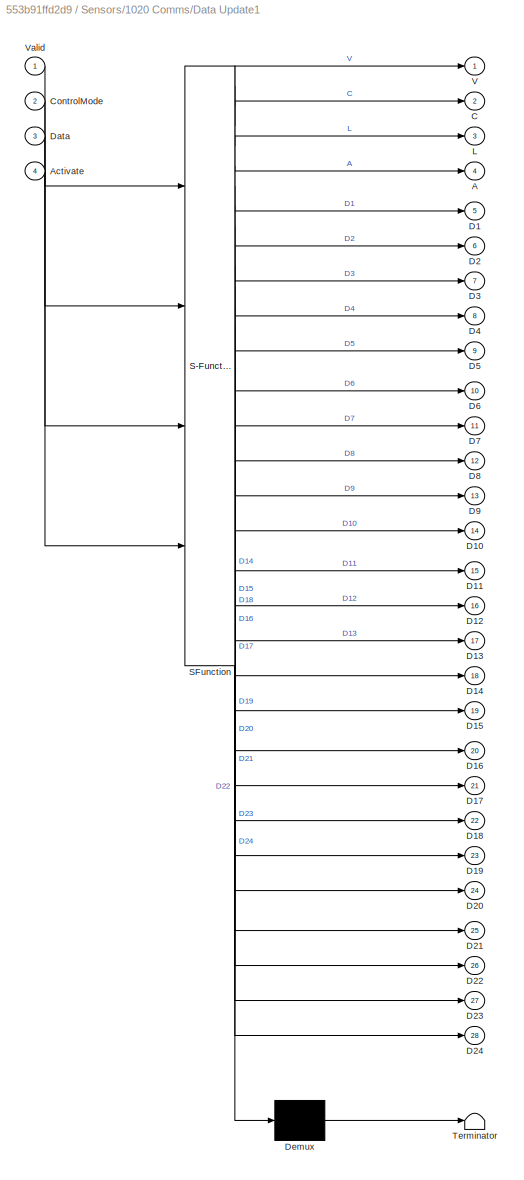
BLOCK [SubSystem] Sensors/1020 Comms/Data Update1
  Commented = on
  ErrorFcn = Stateflow.Translate.translate
  PermitHierarchicalResolution = ExplicitOnly
  Ports = [4, 28]
  RequestExecContextInheritance = off
  SFBlockType = MATLAB Function
  TreatAsAtomicUnit = on
BLOCK [Demux] Sensors/1020 Comms/Data Update1/ Demux 
  Outputs = 1
  Ports = [1, 1]
BLOCK [S-Function] Sensors/1020 Comms/Data Update1/ SFunction 
  EnableBusSupport = on
  FunctionName = sf_sfun
  PortCounts = [4 29]
  Ports = [4, 29]
  Tag = Stateflow S-Function RoboBoat_IMUv8 44
BLOCK [Terminator] Sensors/1020 Comms/Data Update1/ Terminator 
BLOCK [Outport] Sensors/1020 Comms/Data Update1/A
  IconDisplay = Port number
  Port = 4
BLOCK [Inport] Sensors/1020 Comms/Data Update1/Activate
  IconDisplay = Port number
  Port = 4
BLOCK [Outport] Sensors/1020 Comms/Data Update1/C
  IconDisplay = Port number
  Port = 2
BLOCK [Inport] Sensors/1020 Comms/Data Update1/ControlMode
  IconDisplay = Port number
  Port = 2
BLOCK [Outport] Sensors/1020 Comms/Data Update1/D1
  IconDisplay = Port number
  Port = 5
BLOCK [Outport] Sensors/1020 Comms/Data Update1/D10
  IconDisplay = Port number
  Port = 14
BLOCK [Outport] Sensors/1020 Comms/Data Update1/D11
  IconDisplay = Port number
  Port = 15
BLOCK [Outport] Sensors/1020 Comms/Data Update1/D12
  IconDisplay = Port number
  Port = 16
BLOCK [Outport] Sensors/1020 Comms/Data Update1/D13
  IconDisplay = Port number
  Port = 17
BLOCK [Outport] Sensors/1020 Comms/Data Update1/D14
  IconDisplay = Port number
  Port = 18
BLOCK [Outport] Sensors/1020 Comms/Data Update1/D15
  IconDisplay = Port number
  Port = 19
BLOCK [Outport] Sensors/1020 Comms/Data Update1/D16
  IconDisplay = Port number
  Port = 20
BLOCK [Outport] Sensors/1020 Comms/Data Update1/D17
  IconDisplay = Port number
  Port = 21
BLOCK [Outport] Sensors/1020 Comms/Data Update1/D18
  IconDisplay = Port number
  Port = 22
BLOCK [Outport] Sensors/1020 Comms/Data Update1/D19
  IconDisplay = Port number
  Port = 23
BLOCK [Outport] Sensors/1020 Comms/Data Update1/D2
  IconDisplay = Port number
  Port = 6
BLOCK [Outport] Sensors/1020 Comms/Data Update1/D20
  IconDisplay = Port number
  Port = 24
BLOCK [Outport] Sensors/1020 Comms/Data Update1/D21
  IconDisplay = Port number
  Port = 25
BLOCK [Outport] Sensors/1020 Comms/Data Update1/D22
  IconDisplay = Port number
  Port = 26
BLOCK [Outport] Sensors/1020 Comms/Data Update1/D23
  IconDisplay = Port number
  Port = 27
BLOCK [Outport] Sensors/1020 Comms/Data Update1/D24
  IconDisplay = Port number
  Port = 28
BLOCK [Outport] Sensors/1020 Comms/Data Update1/D3
  IconDisplay = Port number
  Port = 7
BLOCK [Outport] Sensors/1020 Comms/Data Update1/D4
  IconDisplay = Port number
  Port = 8
BLOCK [Outport] Sensors/1020 Comms/Data Update1/D5
  IconDisplay = Port number
  Port = 9
BLOCK [Outport] Sensors/1020 Comms/Data Update1/D6
  IconDisplay = Port number
  Port = 10
BLOCK [Outport] Sensors/1020 Comms/Data Update1/D7
  IconDisplay = Port number
  Port = 11
BLOCK [Outport] Sensors/1020 Comms/Data Update1/D8
  IconDisplay = Port number
  Port = 12
BLOCK [Outport] Sensors/1020 Comms/Data Update1/D9
  IconDisplay = Port number
  Port = 13
BLOCK [Inport] Sensors/1020 Comms/Data Update1/Data
  IconDisplay = Port number
  Port = 3
BLOCK [Outport] Sensors/1020 Comms/Data Update1/L
  IconDisplay = Port number
  Port = 3
BLOCK [Outport] Sensors/1020 Comms/Data Update1/V
  IconDisplay = Port number
BLOCK [Inport] Sensors/1020 Comms/Data Update1/Valid
  IconDisplay = Port number
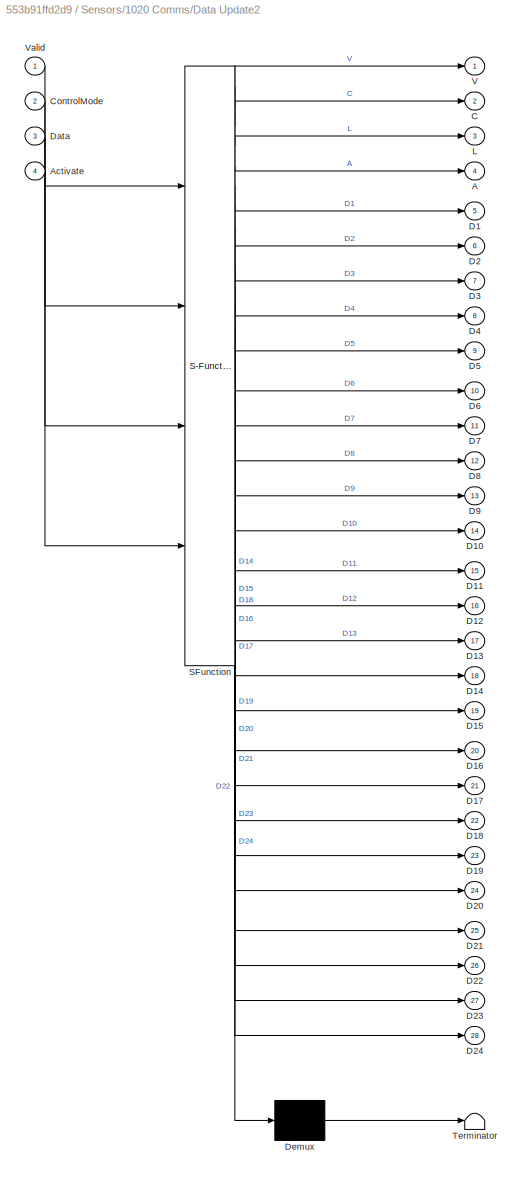
BLOCK [SubSystem] Sensors/1020 Comms/Data Update2
  ErrorFcn = Stateflow.Translate.translate
  PermitHierarchicalResolution = ExplicitOnly
  Ports = [4, 28]
  RequestExecContextInheritance = off
  SFBlockType = MATLAB Function
  TreatAsAtomicUnit = on
BLOCK [Demux] Sensors/1020 Comms/Data Update2/ Demux 
  Outputs = 1
  Ports = [1, 1]
BLOCK [S-Function] Sensors/1020 Comms/Data Update2/ SFunction 
  EnableBusSupport = on
  FunctionName = sf_sfun
  PortCounts = [4 29]
  Ports = [4, 29]
  Tag = Stateflow S-Function RoboBoat_IMUv8 45
BLOCK [Terminator] Sensors/1020 Comms/Data Update2/ Terminator 
BLOCK [Outport] Sensors/1020 Comms/Data Update2/A
  IconDisplay = Port number
  Port = 4
BLOCK [Inport] Sensors/1020 Comms/Data Update2/Activate
  IconDisplay = Port number
  Port = 4
BLOCK [Outport] Sensors/1020 Comms/Data Update2/C
  IconDisplay = Port number
  Port = 2
BLOCK [Inport] Sensors/1020 Comms/Data Update2/ControlMode
  IconDisplay = Port number
  Port = 2
BLOCK [Outport] Sensors/1020 Comms/Data Update2/D1
  IconDisplay = Port number
  Port = 5
BLOCK [Outport] Sensors/1020 Comms/Data Update2/D10
  IconDisplay = Port number
  Port = 14
BLOCK [Outport] Sensors/1020 Comms/Data Update2/D11
  IconDisplay = Port number
  Port = 15
BLOCK [Outport] Sensors/1020 Comms/Data Update2/D12
  IconDisplay = Port number
  Port = 16
BLOCK [Outport] Sensors/1020 Comms/Data Update2/D13
  IconDisplay = Port number
  Port = 17
BLOCK [Outport] Sensors/1020 Comms/Data Update2/D14
  IconDisplay = Port number
  Port = 18
BLOCK [Outport] Sensors/1020 Comms/Data Update2/D15
  IconDisplay = Port number
  Port = 19
BLOCK [Outport] Sensors/1020 Comms/Data Update2/D16
  IconDisplay = Port number
  Port = 20
BLOCK [Outport] Sensors/1020 Comms/Data Update2/D17
  IconDisplay = Port number
  Port = 21
BLOCK [Outport] Sensors/1020 Comms/Data Update2/D18
  IconDisplay = Port number
  Port = 22
BLOCK [Outport] Sensors/1020 Comms/Data Update2/D19
  IconDisplay = Port number
  Port = 23
BLOCK [Outport] Sensors/1020 Comms/Data Update2/D2
  IconDisplay = Port number
  Port = 6
BLOCK [Outport] Sensors/1020 Comms/Data Update2/D20
  IconDisplay = Port number
  Port = 24
BLOCK [Outport] Sensors/1020 Comms/Data Update2/D21
  IconDisplay = Port number
  Port = 25
BLOCK [Outport] Sensors/1020 Comms/Data Update2/D22
  IconDisplay = Port number
  Port = 26
BLOCK [Outport] Sensors/1020 Comms/Data Update2/D23
  IconDisplay = Port number
  Port = 27
BLOCK [Outport] Sensors/1020 Comms/Data Update2/D24
  IconDisplay = Port number
  Port = 28
BLOCK [Outport] Sensors/1020 Comms/Data Update2/D3
  IconDisplay = Port number
  Port = 7
BLOCK [Outport] Sensors/1020 Comms/Data Update2/D4
  IconDisplay = Port number
  Port = 8
BLOCK [Outport] Sensors/1020 Comms/Data Update2/D5
  IconDisplay = Port number
  Port = 9
BLOCK [Outport] Sensors/1020 Comms/Data Update2/D6
  IconDisplay = Port number
  Port = 10
BLOCK [Outport] Sensors/1020 Comms/Data Update2/D7
  IconDisplay = Port number
  Port = 11
BLOCK [Outport] Sensors/1020 Comms/Data Update2/D8
  IconDisplay = Port number
  Port = 12
BLOCK [Outport] Sensors/1020 Comms/Data Update2/D9
  IconDisplay = Port number
  Port = 13
BLOCK [Inport] Sensors/1020 Comms/Data Update2/Data
  IconDisplay = Port number
  Port = 3
BLOCK [Outport] Sensors/1020 Comms/Data Update2/L
  IconDisplay = Port number
  Port = 3
BLOCK [Outport] Sensors/1020 Comms/Data Update2/V
  IconDisplay = Port number
BLOCK [Inport] Sensors/1020 Comms/Data Update2/Valid
  IconDisplay = Port number
BLOCK [DiscreteIntegrator] Sensors/1020 Comms/Discrete-Time Integrator
  ICPrevOutput = DiscIntNeverNeededParam
  ICPrevScaledInput = DiscIntNeverNeededParam
  Ports = [1, 1]
  SampleTime = -1
BLOCK [Reference] Sensors/1020 Comms/FIFO ASCII read 1  REF=xpcseriallib/FIFO ASCII read 
  Ports = [1, 1]
  SourceBlock = xpcseriallib/FIFO ASCII read
  SourceType = Asynchronous FIFO Block: reader
  enable = off
  header = {'Deploy:'}
  hold = Zero output if no new data
  maxsize = 1024
  outputtype = 8 bit uint null terminated
  sampletime = -1
  term = [13 10]
BLOCK [Reference] Sensors/1020 Comms/FIFO ASCII read 2  REF=xpcseriallib/FIFO ASCII read 
  Ports = [1, 1]
  SourceBlock = xpcseriallib/FIFO ASCII read
  SourceType = Asynchronous FIFO Block: reader
  enable = off
  header = {'Deploy:'}
  hold = Zero output if no new data
  maxsize = 1024
  outputtype = 8 bit uint null terminated
  sampletime = -1
  term = [13 10]
BLOCK [Reference] Sensors/1020 Comms/FIFO ASCII read 3  REF=xpcseriallib/FIFO ASCII read 
  Ports = [1, 1]
  SourceBlock = xpcseriallib/FIFO ASCII read
  SourceType = Asynchronous FIFO Block: reader
  enable = off
  header = {'Deploy:'}
  hold = Zero output if no new data
  maxsize = 1024
  outputtype = 8 bit uint null terminated
  sampletime = -1
  term = [13 10]
BLOCK [Reference] Sensors/1020 Comms/FIFO ASCII read 4  REF=xpcseriallib/FIFO ASCII read 
  Ports = [1, 1]
  SourceBlock = xpcseriallib/FIFO ASCII read
  SourceType = Asynchronous FIFO Block: reader
  enable = off
  header = {'Deploy:'}
  hold = Zero output if no new data
  maxsize = 1024
  outputtype = 8 bit uint null terminated
  sampletime = -1
  term = [13 10]
BLOCK [Reference] Sensors/1020 Comms/FIFO ASCII read 5  REF=xpcseriallib/FIFO ASCII read 
  Ports = [1, 1]
  SourceBlock = xpcseriallib/FIFO ASCII read
  SourceType = Asynchronous FIFO Block: reader
  enable = off
  header = {'Deploy:'}
  hold = Zero output if no new data
  maxsize = 1024
  outputtype = 8 bit uint null terminated
  sampletime = -1
  term = [13 10]
BLOCK [Reference] Sensors/1020 Comms/FIFO ASCII read 6  REF=xpcseriallib/FIFO ASCII read 
  Ports = [1, 1]
  SourceBlock = xpcseriallib/FIFO ASCII read
  SourceType = Asynchronous FIFO Block: reader
  enable = off
  header = {'Deploy:'}
  hold = Zero output if no new data
  maxsize = 1024
  outputtype = 8 bit uint null terminated
  sampletime = -1
  term = [13 10]
BLOCK [Reference] Sensors/1020 Comms/FIFO ASCII read 7  REF=xpcseriallib/FIFO ASCII read 
  Ports = [1, 1]
  SourceBlock = xpcseriallib/FIFO ASCII read
  SourceType = Asynchronous FIFO Block: reader
  enable = off
  header = {'Deploy:'}
  hold = Zero output if no new data
  maxsize = 1024
  outputtype = 8 bit uint null terminated
  sampletime = -1
  term = [13 10]
BLOCK [Reference] Sensors/1020 Comms/FIFO ASCII read 8  REF=xpcseriallib/FIFO ASCII read 
  Ports = [1, 1]
  SourceBlock = xpcseriallib/FIFO ASCII read
  SourceType = Asynchronous FIFO Block: reader
  enable = off
  header = {'Deploy:'}
  hold = Zero output if no new data
  maxsize = 1024
  outputtype = 8 bit uint null terminated
  sampletime = -1
  term = [13 10]
BLOCK [SubSystem] Sensors/1020 Comms/Fake LCM
  Commented = on
  Ports = [0, 1]
  RequestExecContextInheritance = off
BLOCK [BusCreator] Sensors/1020 Comms/Fake LCM/Bus Creator1
  DisplayOption = bar
  Inputs = 3
  Ports = [3, 1]
BLOCK [BusCreator] Sensors/1020 Comms/Fake LCM/Bus Creator2
  DisplayOption = bar
  Inputs = 2
  Ports = [2, 1]
BLOCK [BusCreator] Sensors/1020 Comms/Fake LCM/Bus Creator3
  DisplayOption = bar
  Inputs = 3
  Ports = [3, 1]
BLOCK [BusCreator] Sensors/1020 Comms/Fake LCM/Bus Creator4
  DisplayOption = bar
  Inputs = 8
  Ports = [8, 1]
BLOCK [BusCreator] Sensors/1020 Comms/Fake LCM/Bus Creator5
  DisplayOption = bar
  Inputs = 2
  Ports = [2, 1]
BLOCK [BusCreator] Sensors/1020 Comms/Fake LCM/Bus Creator6
  DisplayOption = bar
  Inputs = 2
  Ports = [2, 1]
BLOCK [Constant] Sensors/1020 Comms/Fake LCM/Constant
  Value = 0
BLOCK [Constant] Sensors/1020 Comms/Fake LCM/Constant1
  Value = 0
BLOCK [Constant] Sensors/1020 Comms/Fake LCM/Constant10
  Value = 0
BLOCK [Constant] Sensors/1020 Comms/Fake LCM/Constant11
  Value = 0
BLOCK [Constant] Sensors/1020 Comms/Fake LCM/Constant12
  Value = 0
BLOCK [Constant] Sensors/1020 Comms/Fake LCM/Constant13
  Value = 0
BLOCK [Constant] Sensors/1020 Comms/Fake LCM/Constant14
  Value = 3
BLOCK [Constant] Sensors/1020 Comms/Fake LCM/Constant2
  Value = 0
BLOCK [Constant] Sensors/1020 Comms/Fake LCM/Constant3
  Value = 0
BLOCK [Constant] Sensors/1020 Comms/Fake LCM/Constant4
  Value = 0
BLOCK [Constant] Sensors/1020 Comms/Fake LCM/Constant5
  Value = 0
BLOCK [Constant] Sensors/1020 Comms/Fake LCM/Constant6
  Value = 0
BLOCK [Constant] Sensors/1020 Comms/Fake LCM/Constant7
  Value = 0
BLOCK [Constant] Sensors/1020 Comms/Fake LCM/Constant8
  Value = 0
BLOCK [Constant] Sensors/1020 Comms/Fake LCM/Constant9
  Value = 0
BLOCK [DataTypeConversion] Sensors/1020 Comms/Fake LCM/Data Type Conversion
  OutDataTypeStr = double
  RndMeth = Floor
  SaturateOnIntegerOverflow = off
BLOCK [Outport] Sensors/1020 Comms/Fake LCM/LCM Output
  IconDisplay = Port number
BLOCK [Ground] Sensors/1020 Comms/Ground1
BLOCK [Ground] Sensors/1020 Comms/Ground2
BLOCK [Ground] Sensors/1020 Comms/Ground4
BLOCK [Reference] Sensors/1020 Comms/LCM Complete Encode  REF=xpcseriallib/ASCII Encode 
  Commented = on
  Ports = [28, 1]
  SourceBlock = xpcseriallib/ASCII Encode
  SourceType = ASCII Encode
  format = {"Valid":%d, "Mode":%d, "Length":%d, "Activate":%d, "Waypoints":[%f, %f, %f, %f, %f, %f, %f, %f, %f, %f, %f, %f, %f, %f, %f, %f, %f, %f, %f, %f, %f, %f, %f, %f]} \r\n
  maxlength = 1000
  nvars = 28
  vartypes = { 'double' }
BLOCK [SubSystem] Sensors/1020 Comms/LIDAR Panda
  Ports = [1, 1]
  RequestExecContextInheritance = off
BLOCK [Reference] Sensors/1020 Comms/LIDAR Panda/ASCII Decode 2  REF=xpcseriallib/ASCII Decode 
  Ports = [1, 36]
  SourceBlock = xpcseriallib/ASCII Decode
  SourceType = ASCII Decode
  format = A:%d B:%d C:%d E:%d F:%d G:%d H:%d I:%d J:%d K:%d L:%d M:%d N:%d O:%d P:%d Q:%d R:%d S:%d T:%d U:%d V:%d W:%d X:%d C1:%d C2:%d C3:%d C4:%d P1:%f P2:%f P3:%f P4:%f I1:%d I2:%d I3:%d I4:%d \r\n
  nvars = 36
  vartypes = {}
BLOCK [BusCreator] Sensors/1020 Comms/LIDAR Panda/Bus Creator1
  DisplayOption = bar
  Inputs = 2
  Ports = [2, 1]
BLOCK [BusCreator] Sensors/1020 Comms/LIDAR Panda/Bus Creator2
  DisplayOption = bar
  Inputs = 3
  Ports = [3, 1]
BLOCK [BusCreator] Sensors/1020 Comms/LIDAR Panda/Bus Creator3
  DisplayOption = bar
  Inputs = 2
  Ports = [2, 1]
BLOCK [DataTypeConversion] Sensors/1020 Comms/LIDAR Panda/Data Type Conversion
  OutDataTypeStr = double
  RndMeth = Floor
  SaturateOnIntegerOverflow = off
BLOCK [DataTypeConversion] Sensors/1020 Comms/LIDAR Panda/Data Type Conversion1
  OutDataTypeStr = double
  RndMeth = Floor
  SaturateOnIntegerOverflow = off
BLOCK [DataTypeConversion] Sensors/1020 Comms/LIDAR Panda/Data Type Conversion2
  OutDataTypeStr = double
  RndMeth = Floor
  SaturateOnIntegerOverflow = off
BLOCK [DataTypeConversion] Sensors/1020 Comms/LIDAR Panda/Data Type Conversion3
  OutDataTypeStr = double
  RndMeth = Floor
  SaturateOnIntegerOverflow = off
BLOCK [Reference] Sensors/1020 Comms/LIDAR Panda/FIFO ASCII read   REF=xpcseriallib/FIFO ASCII read 
  Ports = [1, 1]
  SourceBlock = xpcseriallib/FIFO ASCII read
  SourceType = Asynchronous FIFO Block: reader
  enable = off
  header = {'A:'}
  hold = Zero output if no new data
  maxsize = 1024
  outputtype = 8 bit uint null terminated
  sampletime = -1
  term = [13 10]
BLOCK [Inport] Sensors/1020 Comms/LIDAR Panda/LIDAR Panda In
  IconDisplay = Port number
BLOCK [Outport] Sensors/1020 Comms/LIDAR Panda/LIDAR Panda Out
  IconDisplay = Port number
BLOCK [Mux] Sensors/1020 Comms/LIDAR Panda/Mux
  DisplayOption = bar
  Inputs = 12
  Ports = [12, 1]
BLOCK [Mux] Sensors/1020 Comms/LIDAR Panda/Mux1
  DisplayOption = bar
  Ports = [4, 1]
BLOCK [Mux] Sensors/1020 Comms/LIDAR Panda/Mux2
  DisplayOption = bar
  Inputs = 12
  Ports = [12, 1]
BLOCK [Mux] Sensors/1020 Comms/LIDAR Panda/Mux3
  DisplayOption = bar
  Ports = [4, 1]
BLOCK [Mux] Sensors/1020 Comms/LIDAR Panda/Mux4
  DisplayOption = bar
  Ports = [4, 1]
BLOCK [SubSystem] Sensors/1020 Comms/MATLAB Function1
  Commented = on
  ErrorFcn = Stateflow.Translate.translate
  PermitHierarchicalResolution = ExplicitOnly
  Ports = [6, 1]
  RequestExecContextInheritance = off
  SFBlockType = MATLAB Function
  TreatAsAtomicUnit = on
BLOCK [Demux] Sensors/1020 Comms/MATLAB Function1/ Demux 
  Outputs = 1
  Ports = [1, 1]
BLOCK [S-Function] Sensors/1020 Comms/MATLAB Function1/ SFunction 
  EnableBusSupport = on
  FunctionName = sf_sfun
  PortCounts = [6 2]
  Ports = [6, 2]
  Tag = Stateflow S-Function RoboBoat_IMUv8 46
BLOCK [Terminator] Sensors/1020 Comms/MATLAB Function1/ Terminator 
BLOCK [Inport] Sensors/1020 Comms/MATLAB Function1/Color
  IconDisplay = Port number
  Port = 5
BLOCK [Inport] Sensors/1020 Comms/MATLAB Function1/Depth
  IconDisplay = Port number
  Port = 6
BLOCK [Inport] Sensors/1020 Comms/MATLAB Function1/Lat
  IconDisplay = Port number
  Port = 3
BLOCK [Inport] Sensors/1020 Comms/MATLAB Function1/Long
  IconDisplay = Port number
  Port = 4
BLOCK [Inport] Sensors/1020 Comms/MATLAB Function1/Time
  IconDisplay = Port number
  Port = 2
BLOCK [Inport] Sensors/1020 Comms/MATLAB Function1/Valid
  IconDisplay = Port number
BLOCK [Outport] Sensors/1020 Comms/MATLAB Function1/asciiSEA
  IconDisplay = Port number
BLOCK [SubSystem] Sensors/1020 Comms/MATLAB Function2
  Commented = on
  ErrorFcn = Stateflow.Translate.translate
  PermitHierarchicalResolution = ExplicitOnly
  Ports = [2, 1]
  RequestExecContextInheritance = off
  SFBlockType = MATLAB Function
  TreatAsAtomicUnit = on
BLOCK [Demux] Sensors/1020 Comms/MATLAB Function2/ Demux 
  Outputs = 1
  Ports = [1, 1]
BLOCK [S-Function] Sensors/1020 Comms/MATLAB Function2/ SFunction 
  EnableBusSupport = on
  FunctionName = sf_sfun
  PortCounts = [2 2]
  Ports = [2, 2]
  Tag = Stateflow S-Function RoboBoat_IMUv8 47
BLOCK [Terminator] Sensors/1020 Comms/MATLAB Function2/ Terminator 
BLOCK [Inport] Sensors/1020 Comms/MATLAB Function2/Sequence
  IconDisplay = Port number
  Port = 2
BLOCK [Inport] Sensors/1020 Comms/MATLAB Function2/Time
  IconDisplay = Port number
BLOCK [Outport] Sensors/1020 Comms/MATLAB Function2/asciiLIT
  IconDisplay = Port number
BLOCK [SubSystem] Sensors/1020 Comms/MATLAB Function3
  ErrorFcn = Stateflow.Translate.translate
  PermitHierarchicalResolution = ExplicitOnly
  Ports = [5, 1]
  RequestExecContextInheritance = off
  SFBlockType = MATLAB Function
  TreatAsAtomicUnit = on
BLOCK [Demux] Sensors/1020 Comms/MATLAB Function3/ Demux 
  Outputs = 1
  Ports = [1, 1]
BLOCK [S-Function] Sensors/1020 Comms/MATLAB Function3/ SFunction 
  EnableBusSupport = on
  FunctionName = sf_sfun
  PortCounts = [5 2]
  Ports = [5, 2]
  Tag = Stateflow S-Function RoboBoat_IMUv8 48
BLOCK [Terminator] Sensors/1020 Comms/MATLAB Function3/ Terminator 
BLOCK [Inport] Sensors/1020 Comms/MATLAB Function3/Lat
  IconDisplay = Port number
  Port = 2
BLOCK [Inport] Sensors/1020 Comms/MATLAB Function3/Long
  IconDisplay = Port number
  Port = 3
BLOCK [Inport] Sensors/1020 Comms/MATLAB Function3/Mode
  IconDisplay = Port number
  Port = 4
BLOCK [Inport] Sensors/1020 Comms/MATLAB Function3/Task
  IconDisplay = Port number
  Port = 5
BLOCK [Inport] Sensors/1020 Comms/MATLAB Function3/Time
  IconDisplay = Port number
BLOCK [Outport] Sensors/1020 Comms/MATLAB Function3/asciiHRT
  IconDisplay = Port number
BLOCK [RateTransition] Sensors/1020 Comms/Rate Transition
  Deterministic = off
  OutPortSampleTime = 1
BLOCK [Outport] Sensors/1020 Comms/Serial In
  IconDisplay = Port number
BLOCK [Inport] Sensors/1020 Comms/Serial Out
  IconDisplay = Port number
BLOCK [SubSystem] Sensors/1020 Comms/Subsystem
  Commented = on
  Ports = [0, 1]
  RequestExecContextInheritance = off
BLOCK [BusCreator] Sensors/1020 Comms/Subsystem/Bus Creator
  DisplayOption = bar
  Inputs = 3
  Ports = [3, 1]
BLOCK [BusCreator] Sensors/1020 Comms/Subsystem/Bus Creator1
  DisplayOption = bar
  Inputs = 2
  Ports = [2, 1]
BLOCK [BusCreator] Sensors/1020 Comms/Subsystem/Bus Creator2
  DisplayOption = bar
  Inputs = 2
  Ports = [2, 1]
BLOCK [Constant] Sensors/1020 Comms/Subsystem/Constant
  Value = zeros(12,1)
BLOCK [Constant] Sensors/1020 Comms/Subsystem/Constant1
  Value = zeros(12,1)
BLOCK [Constant] Sensors/1020 Comms/Subsystem/Constant2
  Value = zeros(4,1)
BLOCK [Constant] Sensors/1020 Comms/Subsystem/Constant3
  Value = zeros(4,1)
BLOCK [Constant] Sensors/1020 Comms/Subsystem/Constant4
  Value = zeros(4,1)
BLOCK [Outport] Sensors/1020 Comms/Subsystem/Fake Panda
  IconDisplay = Port number
BLOCK [Sum] Sensors/1020 Comms/Sum
  IconShape = round
  InputSameDT = off
  Inputs = |++
  OutDataTypeStr = Inherit: Inherit via internal rule
  Ports = [2, 1]
  SaturateOnIntegerOverflow = off
BLOCK [Reference] Sensors/1020 Comms/TPMC465  REF=speedgoatlib/IO504/TPMC465  (lib defined in mdl_2b10c7445f81, mdl_649b3eec89a6, +4 more)
  Ports = [8, 8]
  SourceBlock = speedgoatlib/IO504/TPMC465
  SourceType = sendreceive_IO504
  baud1 = 115200
  baud2 = 115200
  baud3 = 115200
  baud4 = 115200
  baud5 = 115200
  baud6 = 115200
  baud7 = 115200
  baud8 = 115200
  bauddivisor1 = 1
  bauddivisor2 = 1
  bauddivisor3 = 1
  bauddivisor4 = 1
  bauddivisor5 = 1
  bauddivisor6 = 1
  bauddivisor7 = 1
  bauddivisor8 = 1
  group = Basic Setup
  hwmode1 = none
  hwmode2 = none
  hwmode3 = none
  hwmode4 = none
  hwmode5 = none
  hwmode6 = none
  hwmode7 = none
  hwmode8 = none
  irqnum = 9
  ndata1 = 7
  ndata2 = 7
  ndata3 = 7
  ndata4 = 8
  ndata5 = 8
  ndata6 = 8
  ndata7 = 8
  ndata8 = 8
  nstop1 = 1
  nstop2 = 1
  nstop3 = 1
  nstop4 = 1
  nstop5 = 1
  nstop6 = 1
  nstop7 = 1
  nstop8 = 1
  parity1 = Even
  parity2 = Even
  parity3 = Even
  parity4 = None
  parity5 = None
  parity6 = None
  parity7 = None
  parity8 = None
  port = 2
  prescale1 = off
  prescale2 = off
  prescale3 = off
  prescale4 = off
  prescale5 = off
  prescale6 = off
  prescale7 = off
  prescale8 = off
  rcvfifosize1 = 1024
  rcvfifosize2 = 1024
  rcvfifosize3 = 1024
  rcvfifosize4 = 1024
  rcvfifosize5 = 1024
  rcvfifosize6 = 1024
  rcvfifosize7 = 1024
  rcvfifosize8 = 1024
  rlevel1 = half full (32)
  rlevel2 = half full (32)
  rlevel3 = half full (32)
  rlevel4 = half full (32)
  rlevel5 = 1
  rlevel6 = 1
  rlevel7 = 1
  rlevel8 = 1
  rs485auto1 = off
  rs485auto2 = off
  rs485auto3 = off
  rs485auto4 = off
  rs485auto5 = off
  rs485auto6 = off
  rs485auto7 = off
  rs485auto8 = off
  rs485delay1 = 0
  rs485delay2 = 0
  rs485delay3 = 0
  rs485delay4 = 0
  rs485delay5 = 0
  rs485delay6 = 0
  rs485delay7 = 0
  rs485delay8 = 0
  sampling1 = 16x (standard)
  sampling2 = 16x (standard)
  sampling3 = 16x (standard)
  sampling4 = 16x (standard)
  sampling5 = 16x (standard)
  sampling6 = 16x (standard)
  sampling7 = 16x (standard)
  sampling8 = 16x (standard)
  slot = -1
  standard1 = on
  standard2 = on
  standard3 = on
  standard4 = on
  standard5 = on
  standard6 = on
  standard7 = on
  standard8 = on
  swmode1 = none
  swmode2 = none
  swmode3 = none
  swmode4 = none
  swmode5 = none
  swmode6 = none
  swmode7 = none
  swmode8 = none
  transceiver1 = RS232 (max 921.6kb/s)
  transceiver2 = RS232 (max 921.6kb/s)
  transceiver3 = RS232 (max 921.6kb/s)
  transceiver4 = RS232 (max 921.6kb/s)
  transceiver5 = RS232 (max 921.6kb/s)
  transceiver6 = RS232 (max 921.6kb/s)
  transceiver7 = RS232 (max 921.6kb/s)
  transceiver8 = RS232 (max 921.6kb/s)
  xmtdatatype1 = 8 bit uint null terminated
  xmtdatatype2 = 8 bit uint null terminated
  xmtdatatype3 = 8 bit uint null terminated
  xmtdatatype4 = 8 bit uint null terminated
  xmtdatatype5 = 8 bit uint null terminated
  xmtdatatype6 = 8 bit uint null terminated
  xmtdatatype7 = 8 bit uint null terminated
  xmtdatatype8 = 8 bit uint null terminated
  xmtfifosize1 = 1024
  xmtfifosize2 = 1024
  xmtfifosize3 = 1024
  xmtfifosize4 = 1024
  xmtfifosize5 = 1024
  xmtfifosize6 = 1024
  xmtfifosize7 = 1024
  xmtfifosize8 = 1024
  xoffchar1 = 19
  xoffchar2 = 19
  xoffchar3 = 19
  xoffchar4 = 19
  xoffchar5 = 19
  xoffchar6 = 19
  xoffchar7 = 19
  xoffchar8 = 19
  xonchar1 = 17
  xonchar2 = 17
  xonchar3 = 17
  xonchar4 = 17
  xonchar5 = 17
  xonchar6 = 17
  xonchar7 = 17
  xonchar8 = 17
BLOCK [Terminator] Sensors/1020 Comms/Terminator1
BLOCK [Terminator] Sensors/1020 Comms/Terminator10
BLOCK [Terminator] Sensors/1020 Comms/Terminator2
BLOCK [Terminator] Sensors/1020 Comms/Terminator3
BLOCK [Terminator] Sensors/1020 Comms/Terminator4
BLOCK [Terminator] Sensors/1020 Comms/Terminator5
BLOCK [Terminator] Sensors/1020 Comms/Terminator6
BLOCK [Terminator] Sensors/1020 Comms/Terminator7
BLOCK [Terminator] Sensors/1020 Comms/Terminator8
BLOCK [Terminator] Sensors/1020 Comms/Terminator9
BLOCK [SubSystem] Sensors/1020 Comms/data log
  Ports = [1]
  RequestExecContextInheritance = off
BLOCK [BusSelector] Sensors/1020 Comms/data log/Bus Selector3
  OutputSignals = Navigation Message,Lidar Data Input,Acoustic Message
  Ports = [1, 3]
BLOCK [BusToVector] Sensors/1020 Comms/data log/Bus to Vector
BLOCK [BusToVector] Sensors/1020 Comms/data log/Bus to Vector1
BLOCK [BusToVector] Sensors/1020 Comms/data log/Bus to Vector2
BLOCK [DataStoreRead] Sensors/1020 Comms/data log/Read
  DataStoreName = PingPose
  Ports = [0, 1]
BLOCK [Reference] Sensors/1020 Comms/data log/Scope 1  REF=slrtlib/Displays and
Logging/Scope 
  Ports = [1]
  SourceBlock = slrtlib/Displays and\nLogging/Scope
  SourceType = xpcscopeblock
  autorestart = on
  autostart = on
  dynamicfilemode = on
  filename = LM1_<%%%>.dat
  formatstr = '%15.6f'
  grid = on
  interleave = 1
  maxwritefilesize = 512*1024^2
  mode = Lazy
  noprepostsamples = 0
  nosamples = 28800
  scopeno = 3
  scopetype = File
  triggerlevel = 0.0
  triggermode = FreeRun
  triggersample = 0
  triggerscope = 1
  triggersignal = 1
  triggerslope = Either
  trigsignalfromport = off
  viewmode = Graphical redraw
  writesize = 5120
  ylimits = [0,0]
BLOCK [Reference] Sensors/1020 Comms/data log/Scope 2  REF=slrtlib/Displays and
Logging/Scope 
  Ports = [1]
  SourceBlock = slrtlib/Displays and\nLogging/Scope
  SourceType = xpcscopeblock
  autorestart = on
  autostart = on
  dynamicfilemode = on
  filename = NAV1_<%%%>.dat
  formatstr = '%15.6f'
  grid = on
  interleave = 1
  maxwritefilesize = 512*1024^2
  mode = Lazy
  noprepostsamples = 0
  nosamples = 28800
  scopeno = 1
  scopetype = File
  triggerlevel = 0.0
  triggermode = FreeRun
  triggersample = 0
  triggerscope = 1
  triggersignal = 1
  triggerslope = Either
  trigsignalfromport = off
  viewmode = Graphical redraw
  writesize = 5120
  ylimits = [0,0]
BLOCK [Reference] Sensors/1020 Comms/data log/Scope 3  REF=slrtlib/Displays and
Logging/Scope 
  Ports = [1]
  SourceBlock = slrtlib/Displays and\nLogging/Scope
  SourceType = xpcscopeblock
  autorestart = on
  autostart = on
  dynamicfilemode = on
  filename = ACO1_<%%%>.dat
  formatstr = '%15.6f'
  grid = on
  interleave = 1
  maxwritefilesize = 512*1024^2
  mode = Lazy
  noprepostsamples = 0
  nosamples = 28800
  scopeno = 2
  scopetype = File
  triggerlevel = 0.0
  triggermode = FreeRun
  triggersample = 0
  triggerscope = 1
  triggersignal = 1
  triggerslope = Either
  trigsignalfromport = off
  viewmode = Graphical redraw
  writesize = 5120
  ylimits = [0,0]
BLOCK [Reference] Sensors/1020 Comms/data log/Scope 4  REF=slrtlib/Displays and
Logging/Scope 
  Ports = [1]
  SourceBlock = slrtlib/Displays and\nLogging/Scope
  SourceType = xpcscopeblock
  autorestart = on
  autostart = on
  dynamicfilemode = on
  filename = pPos_<%%%>.dat
  formatstr = '%15.6f'
  grid = on
  interleave = 1
  maxwritefilesize = 512*1024^2
  mode = Lazy
  noprepostsamples = 0
  nosamples = 28800
  scopeno = 4
  scopetype = File
  triggerlevel = 0.0
  triggermode = FreeRun
  triggersample = 0
  triggerscope = 1
  triggersignal = 1
  triggerslope = Either
  trigsignalfromport = off
  viewmode = Graphical redraw
  writesize = 5120
  ylimits = [0,0]
BLOCK [Inport] Sensors/1020 Comms/data log/Sensors signal
  IconDisplay = Port number
BLOCK [SubSystem] Sensors/Baseboard Serial
  Ports = [0, 1]
  RequestExecContextInheritance = off
BLOCK [Reference] Sensors/Baseboard Serial/ASCII Encode 1  REF=xpcseriallib/ASCII Encode 
  Ports = [1, 1]
  SourceBlock = xpcseriallib/ASCII Encode
  SourceType = ASCII Encode
  format = SGB:%d \r\n
  maxlength = 128
  nvars = 1
  vartypes = { 'double' }
BLOCK [Reference] Sensors/Baseboard Serial/Baseboard Serial F1  REF=xpcseriallib/Mainboard/Baseboard
Serial F
  Ports = [2, 2]
  SourceBlock = xpcseriallib/Mainboard/Baseboard\nSerial F
  SourceType = Baseboard RS232 Send Receive
  automode1 = on
  automode2 = on
  baud1 = 9600
  baud2 = 115200
  config = Com2/Com4
  fifomode1 = 64 deep
  fifomode2 = 64 deep
  group = Basic Setup
  irqnum = 4
  ndata1 = 7
  ndata2 = 7
  nstop1 = 1
  nstop2 = 1
  parity1 = Even
  parity2 = Even
  port = 1
  rcvfifosize1 = 1024
  rcvfifosize2 = 1024
  rlevel1 = 1
  rlevel2 = 1
  saddr1 = 0x3f8
  saddr2 = 0x3e8
  xmtdatatype1 = 8 bit uint null terminated
  xmtdatatype2 = 8 bit uint null terminated
  xmtfifosize1 = 1024
  xmtfifosize2 = 1024
BLOCK [BusCreator] Sensors/Baseboard Serial/Bus Creator
  DisplayOption = bar
  Inputs = 3
  Ports = [3, 1]
BLOCK [SubSystem] Sensors/Baseboard Serial/Compass Decode
  Ports = [1, 1]
  RequestExecContextInheritance = off
BLOCK [Reference] Sensors/Baseboard Serial/Compass Decode/ASCII Decode   REF=xpcseriallib/ASCII Decode 
  Ports = [1, 7]
  SourceBlock = xpcseriallib/ASCII Decode
  SourceType = ASCII Decode
  format = $PTNTHPR,%f,%c%f,%c%f,%c
  nvars = 7
  vartypes = { }
BLOCK [BusCreator] Sensors/Baseboard Serial/Compass Decode/Bus Creator
  DisplayOption = bar
  Inputs = 3
  Ports = [3, 1]
BLOCK [Inport] Sensors/Baseboard Serial/Compass Decode/Compass NMEA
  IconDisplay = Port number
BLOCK [Outport] Sensors/Baseboard Serial/Compass Decode/Compass data (3)
  IconDisplay = Port number
BLOCK [SubSystem] Sensors/Baseboard Serial/Compass Decode/Correct Heading Angle Magnetic to True North
  Ports = [1, 1]
  RequestExecContextInheritance = off
BLOCK [Inport] Sensors/Baseboard Serial/Compass Decode/Correct Heading Angle Magnetic to True North/Heading Mag
  IconDisplay = Port number
BLOCK [Outport] Sensors/Baseboard Serial/Compass Decode/Correct Heading Angle Magnetic to True North/Heading True
  IconDisplay = Port number
BLOCK [SubSystem] Sensors/Baseboard Serial/Compass Decode/Correct Heading Angle Magnetic to True North/Magnetic to True North Conversion
  ErrorFcn = Stateflow.Translate.translate
  PermitHierarchicalResolution = ExplicitOnly
  Ports = [1, 1]
  RequestExecContextInheritance = off
  SFBlockType = MATLAB Function
  TreatAsAtomicUnit = on
BLOCK [Demux] Sensors/Baseboard Serial/Compass Decode/Correct Heading Angle Magnetic to True North/Magnetic to True North Conversion/ Demux 
  Outputs = 1
  Ports = [1, 1]
BLOCK [S-Function] Sensors/Baseboard Serial/Compass Decode/Correct Heading Angle Magnetic to True North/Magnetic to True North Conversion/ SFunction 
  EnableBusSupport = on
  FunctionName = sf_sfun
  PortCounts = [1 2]
  Ports = [1, 2]
  Tag = Stateflow S-Function RoboBoat_IMUv8 2
BLOCK [Terminator] Sensors/Baseboard Serial/Compass Decode/Correct Heading Angle Magnetic to True North/Magnetic to True North Conversion/ Terminator 
BLOCK [Inport] Sensors/Baseboard Serial/Compass Decode/Correct Heading Angle Magnetic to True North/Magnetic to True North Conversion/HeadingM
  IconDisplay = Port number
BLOCK [Outport] Sensors/Baseboard Serial/Compass Decode/Correct Heading Angle Magnetic to True North/Magnetic to True North Conversion/HeadingT
  IconDisplay = Port number
BLOCK [Reference] Sensors/Baseboard Serial/Compass Decode/FIFO ASCII read   REF=xpcseriallib/FIFO ASCII read 
  Ports = [1, 1]
  SourceBlock = xpcseriallib/FIFO ASCII read
  SourceType = Asynchronous FIFO Block: reader
  enable = off
  header = {'$PTNTHPR'}
  hold = Zero output if no new data
  maxsize = 64
  outputtype = 8 bit uint null terminated
  sampletime = -1
  term = [13 10]
BLOCK [Terminator] Sensors/Baseboard Serial/Compass Decode/Terminator
BLOCK [Terminator] Sensors/Baseboard Serial/Compass Decode/Terminator1
BLOCK [Terminator] Sensors/Baseboard Serial/Compass Decode/Terminator2
BLOCK [Terminator] Sensors/Baseboard Serial/Compass Decode/Terminator3
BLOCK [Constant] Sensors/Baseboard Serial/Constant1
BLOCK [SubSystem] Sensors/Baseboard Serial/GPS Decode
  Ports = [1, 1]
  RequestExecContextInheritance = off
BLOCK [BusCreator] Sensors/Baseboard Serial/GPS Decode/Bus Creator
  DisplayOption = bar
  Inputs = 9
  Ports = [9, 1]
BLOCK [DataStoreRead] Sensors/Baseboard Serial/GPS Decode/Data Store Read2
  DataStoreName = NED_origin
  Ports = [0, 1]
BLOCK [Reference] Sensors/Baseboard Serial/GPS Decode/Decode GPGGA  REF=xpcseriallib/ASCII Decode 
  Ports = [1, 8]
  SourceBlock = xpcseriallib/ASCII Decode
  SourceType = ASCII Decode
  format = $GPGGA,%d,%f,%c%f,%c%f,%f,%f
  nvars = 8
  vartypes = { }
BLOCK [Reference] Sensors/Baseboard Serial/GPS Decode/Decode GPRMC  REF=xpcseriallib/ASCII Decode 
  Ports = [1, 8]
  SourceBlock = xpcseriallib/ASCII Decode
  SourceType = ASCII Decode
  format = $GPRMC,%f,%c%f,%c%f,%c%f,%f
  nvars = 8
  vartypes = { }
BLOCK [Demux] Sensors/Baseboard Serial/GPS Decode/Demux
  DisplayOption = bar
  Outputs = 2
  Ports = [1, 2]
BLOCK [Reference] Sensors/Baseboard Serial/GPS Decode/FIFO ASCII read 1  REF=xpcseriallib/FIFO ASCII read 
  Ports = [1, 2]
  SourceBlock = xpcseriallib/FIFO ASCII read
  SourceType = Asynchronous FIFO Block: reader
  enable = off
  header = {'$GPGGA','$GPRMC'}
  hold = Zero output if no new data
  maxsize = 1024
  outputtype = 8 bit uint null terminated
  sampletime = -1
  term = [13 10]
BLOCK [Inport] Sensors/Baseboard Serial/GPS Decode/GPS NMEA
  IconDisplay = Port number
BLOCK [Outport] Sensors/Baseboard Serial/GPS Decode/GPS data (5)
  IconDisplay = Port number
BLOCK [SubSystem] Sensors/Baseboard Serial/GPS Decode/LLA to NED
  ErrorFcn = Stateflow.Translate.translate
  PermitHierarchicalResolution = ExplicitOnly
  Ports = [2, 2]
  RequestExecContextInheritance = off
  SFBlockType = MATLAB Function
  TreatAsAtomicUnit = on
BLOCK [Demux] Sensors/Baseboard Serial/GPS Decode/LLA to NED/ Demux 
  Outputs = 1
  Ports = [1, 1]
BLOCK [S-Function] Sensors/Baseboard Serial/GPS Decode/LLA to NED/ SFunction 
  EnableBusSupport = on
  FunctionName = sf_sfun
  PortCounts = [2 3]
  Ports = [2, 3]
  Tag = Stateflow S-Function RoboBoat_IMUv8 8
BLOCK [Terminator] Sensors/Baseboard Serial/GPS Decode/LLA to NED/ Terminator 
BLOCK [Inport] Sensors/Baseboard Serial/GPS Decode/LLA to NED/GPSLat
  IconDisplay = Port number
BLOCK [Inport] Sensors/Baseboard Serial/GPS Decode/LLA to NED/GPSLong
  IconDisplay = Port number
  Port = 2
BLOCK [Outport] Sensors/Baseboard Serial/GPS Decode/LLA to NED/Lat
  IconDisplay = Port number
BLOCK [Outport] Sensors/Baseboard Serial/GPS Decode/LLA to NED/Long
  IconDisplay = Port number
  Port = 2
BLOCK [ModelReference] Sensors/Baseboard Serial/GPS Decode/Model
  CopyOfModelName = LLA2NEDv6.slx
  DefaultDataLogging = on
  ModelNameDialog = LLA2NEDv6.slx
  ModelReferenceVersion = 1.2057
  Ports = [4, 2]
BLOCK [Terminator] Sensors/Baseboard Serial/GPS Decode/Terminator1
BLOCK [Terminator] Sensors/Baseboard Serial/GPS Decode/Terminator10
BLOCK [Terminator] Sensors/Baseboard Serial/GPS Decode/Terminator11
BLOCK [Terminator] Sensors/Baseboard Serial/GPS Decode/Terminator2
BLOCK [Terminator] Sensors/Baseboard Serial/GPS Decode/Terminator3
BLOCK [Terminator] Sensors/Baseboard Serial/GPS Decode/Terminator4
BLOCK [Terminator] Sensors/Baseboard Serial/GPS Decode/Terminator5
BLOCK [Terminator] Sensors/Baseboard Serial/GPS Decode/Terminator6
BLOCK [Terminator] Sensors/Baseboard Serial/GPS Decode/Terminator7
BLOCK [Terminator] Sensors/Baseboard Serial/GPS Decode/Terminator8
BLOCK [Terminator] Sensors/Baseboard Serial/GPS Decode/Terminator9
BLOCK [Ground] Sensors/Baseboard Serial/Ground1
BLOCK [Ground] Sensors/Baseboard Serial/Ground2
BLOCK [Ground] Sensors/Baseboard Serial/Ground3
BLOCK [SubSystem] Sensors/Baseboard Serial/IMU Pi1
  Ports = [1, 1]
  RequestExecContextInheritance = off
BLOCK [Reference] Sensors/Baseboard Serial/IMU Pi1/ASCII Decode 6  REF=xpcseriallib/ASCII Decode 
  Ports = [1, 2]
  SourceBlock = xpcseriallib/ASCII Decode
  SourceType = ASCII Decode
  format = GPS Lat:%f Long:%f \r\n
  nvars = 2
  vartypes = {}
BLOCK [BusCreator] Sensors/Baseboard Serial/IMU Pi1/Bus Creator4
  DisplayOption = bar
  Ports = [4, 1]
BLOCK [DataStoreRead] Sensors/Baseboard Serial/IMU Pi1/Data Store Read2
  DataStoreName = NED_origin
  Ports = [0, 1]
BLOCK [Demux] Sensors/Baseboard Serial/IMU Pi1/Demux
  DisplayOption = bar
  Outputs = 2
  Ports = [1, 2]
BLOCK [Reference] Sensors/Baseboard Serial/IMU Pi1/FIFO ASCII read 1  REF=xpcseriallib/FIFO ASCII read 
  Ports = [1, 1]
  SourceBlock = xpcseriallib/FIFO ASCII read
  SourceType = Asynchronous FIFO Block: reader
  enable = off
  header = {'GPS Lat:'}
  hold = Zero output if no new data
  maxsize = 1024
  outputtype = 8 bit uint null terminated
  sampletime = -1
  term = [13 10]
BLOCK [Inport] Sensors/Baseboard Serial/IMU Pi1/IMU Pi In
  IconDisplay = Port number
BLOCK [Outport] Sensors/Baseboard Serial/IMU Pi1/IMU Pi out
  IconDisplay = Port number
BLOCK [ModelReference] Sensors/Baseboard Serial/IMU Pi1/Model
  CopyOfModelName = LLA2NEDv6.slx
  DefaultDataLogging = on
  ModelNameDialog = LLA2NEDv6.slx
  ModelReferenceVersion = 1.2057
  Ports = [4, 2]
BLOCK [Outport] Sensors/Baseboard Serial/Serial Inputs
  IconDisplay = Port number
BLOCK [Reference] Sensors/Baseboard Serial/Serial Ports 1 & 3  REF=xpcseriallib/Mainboard/Baseboard
Serial F
  Ports = [2, 2]
  SourceBlock = xpcseriallib/Mainboard/Baseboard\nSerial F
  SourceType = Baseboard RS232 Send Receive
  automode1 = off
  automode2 = off
  baud1 = 19200
  baud2 = 19200
  config = Com1/Com3
  fifomode1 = 64 deep
  fifomode2 = 64 deep
  group = Basic Setup
  irqnum = 4
  ndata1 = 8
  ndata2 = 8
  nstop1 = 1
  nstop2 = 1
  parity1 = None
  parity2 = None
  port = 1
  rcvfifosize1 = 1024
  rcvfifosize2 = 1024
  rlevel1 = half full
  rlevel2 = half full
  saddr1 = 0x3f8
  saddr2 = 0x3e8
  xmtdatatype1 = 8 bit uint null terminated
  xmtdatatype2 = 8 bit uint null terminated
  xmtfifosize1 = 1024
  xmtfifosize2 = 1024
BLOCK [Terminator] Sensors/Baseboard Serial/Terminator1
BLOCK [BusCreator] Sensors/Bus Creator
  DisplayOption = bar
  Inputs = 2
  Ports = [2, 1]
BLOCK [SubSystem] Sensors/Digital In
  Ports = [0, 1]
  RequestExecContextInheritance = off
BLOCK [BusCreator] Sensors/Digital In/Bus Creator
  DisplayOption = bar
  Inputs = 1
  Ports = [1, 1]
BLOCK [Outport] Sensors/Digital In/Digital In
  IconDisplay = Port number
BLOCK [Reference] Sensors/Digital In/Digital input  REF=speedgoatlib_IO102/Digital input
  Ports = [0, 8]
  SourceBlock = speedgoatlib_IO102/Digital input
  SourceType = di_IO102
  channels = [1,2,3,4,5,6,7,8]
  id = 1
  pciSlot = -1
  ts = -1
BLOCK [Terminator] Sensors/Digital In/Terminator1
BLOCK [Terminator] Sensors/Digital In/Terminator17
BLOCK [Terminator] Sensors/Digital In/Terminator18
BLOCK [Terminator] Sensors/Digital In/Terminator19
BLOCK [Terminator] Sensors/Digital In/Terminator20
BLOCK [Terminator] Sensors/Digital In/Terminator21
BLOCK [Terminator] Sensors/Digital In/Terminator22
BLOCK [Outport] Sensors/Input Signals
  IconDisplay = Port number
BLOCK [SubSystem] Sensors/data log
  Ports = [1]
  RequestExecContextInheritance = off
BLOCK [BusToVector] Sensors/data log/Bus to Vector
BLOCK [Reference] Sensors/data log/Scope 2  REF=slrtlib/Displays and
Logging/Scope 
  Ports = [1]
  SourceBlock = slrtlib/Displays and\nLogging/Scope
  SourceType = xpcscopeblock
  autorestart = on
  autostart = on
  dynamicfilemode = on
  filename = NW9_<%%%>.dat
  formatstr = '%15.6f'
  grid = on
  interleave = 1
  maxwritefilesize = 512*1024^2
  mode = Commit
  noprepostsamples = 0
  nosamples = 250
  scopeno = 1
  scopetype = File
  triggerlevel = 0.0
  triggermode = FreeRun
  triggersample = 0
  triggerscope = 1
  triggersignal = 1
  triggerslope = Either
  trigsignalfromport = off
  viewmode = Graphical redraw
  writesize = 512
  ylimits = [0,0]
BLOCK [Inport] Sensors/data log/Sensors signal
  IconDisplay = Port number
BLOCK [Reference] Setup  REF=speedgoatlib_IO102/Setup
  Ports = []
  SourceBlock = speedgoatlib_IO102/Setup
  SourceType = setup_IO102
  adChannel = 16
  adChannelMode = Multiple-channel (enter number of channels below)
  adCoupling = Differential
  cal = off
  daChannel = [1,2,3,4]
  daInitValue = [0]
  daReset = [1]
  diChannel = [1,2,3,4,5,6,7,8]
  doChannel = [1,2,3,4,5,6,7,8]
  doInitValue = [0]
  doReset = [1]
  group = Digital output setup
  id = 1
  pciSlot = -1
  range = +-5V
BLOCK [SubSystem] Sinks
  Ports = [1]
  RequestExecContextInheritance = off
BLOCK [BusSelector] Sinks/Bus Selector
  OutputSignals = Sensors.Compass.Heading,Outputs.Control Signals
  Ports = [1, 2]
BLOCK [Inport] Sinks/Output Signal
  IconDisplay = Port number
BLOCK [SubSystem] Sinks/actuators
  Ports = [2]
  RequestExecContextInheritance = off
BLOCK [Inport] Sinks/actuators/Compass Heading
  IconDisplay = Port number
BLOCK [Inport] Sinks/actuators/Control Signals
  IconDisplay = Port number
  Port = 2
BLOCK [SubSystem] Sinks/actuators/analog output
  Ports = [2]
  RequestExecContextInheritance = off
BLOCK [Reference] Sinks/actuators/analog output/Analog output  REF=speedgoatlib_IO102/Analog output
  Ports = [4]
  SourceBlock = speedgoatlib_IO102/Analog output
  SourceType = da_IO102
  channels = [1,2,3,4]
  id = 1
  pciSlot = -1
  range = 2
  ts = -1
BLOCK [Inport] Sinks/actuators/analog output/Compass Heading
  IconDisplay = Port number
BLOCK [Inport] Sinks/actuators/analog output/Control Signals
  IconDisplay = Port number
  Port = 2
BLOCK [Ground] Sinks/actuators/analog output/Ground
BLOCK [SubSystem] Sinks/actuators/analog output/Subsystem
  Ports = [2, 2]
  RequestExecContextInheritance = off
BLOCK [BusCreator] Sinks/actuators/analog output/Subsystem/Bus Creator
  DisplayOption = bar
  Inputs = 5
  Ports = [5, 1]
BLOCK [BusSelector] Sinks/actuators/analog output/Subsystem/Bus Selector
  OutputSignals = RPM,Desired Heading
  Ports = [1, 2]
BLOCK [Inport] Sinks/actuators/analog output/Subsystem/Compass Heading
  IconDisplay = Port number
BLOCK [Inport] Sinks/actuators/analog output/Subsystem/Control Signals
  IconDisplay = Port number
  Port = 2
BLOCK [SubSystem] Sinks/actuators/analog output/Subsystem/Heading Controller
  Ports = [2, 1]
  RequestExecContextInheritance = off
BLOCK [Inport] Sinks/actuators/analog output/Subsystem/Heading Controller/Compass Heading
  IconDisplay = Port number
  Port = 2
BLOCK [Gain] Sinks/actuators/analog output/Subsystem/Heading Controller/Gain
  Gain = -0.05
  OutDataTypeStr = Inherit: Inherit via internal rule
  ParamDataTypeStr = Inherit: Inherit via internal rule
  SaturateOnIntegerOverflow = off
BLOCK [Inport] Sinks/actuators/analog output/Subsystem/Heading Controller/Heading Desired
  IconDisplay = Port number
BLOCK [SubSystem] Sinks/actuators/analog output/Subsystem/Heading Controller/MATLAB Function
  ErrorFcn = Stateflow.Translate.translate
  PermitHierarchicalResolution = ExplicitOnly
  Ports = [2, 1]
  RequestExecContextInheritance = off
  SFBlockType = MATLAB Function
  TreatAsAtomicUnit = on
BLOCK [Demux] Sinks/actuators/analog output/Subsystem/Heading Controller/MATLAB Function/ Demux 
  Outputs = 1
  Ports = [1, 1]
BLOCK [S-Function] Sinks/actuators/analog output/Subsystem/Heading Controller/MATLAB Function/ SFunction 
  EnableBusSupport = on
  FunctionName = sf_sfun
  PortCounts = [2 2]
  Ports = [2, 2]
  Tag = Stateflow S-Function RoboBoat_IMUv8 14
BLOCK [Terminator] Sinks/actuators/analog output/Subsystem/Heading Controller/MATLAB Function/ Terminator 
BLOCK [Inport] Sinks/actuators/analog output/Subsystem/Heading Controller/MATLAB Function/CompassHeading
  IconDisplay = Port number
  Port = 2
BLOCK [Inport] Sinks/actuators/analog output/Subsystem/Heading Controller/MATLAB Function/HeadingDesired
  IconDisplay = Port number
BLOCK [Outport] Sinks/actuators/analog output/Subsystem/Heading Controller/MATLAB Function/steering
  IconDisplay = Port number
BLOCK [Saturate] Sinks/actuators/analog output/Subsystem/Heading Controller/Saturation
  InputPortMap = u0
  LowerLimit = 0
  Ports = [1, 1]
  UpperLimit = 5
BLOCK [Outport] Sinks/actuators/analog output/Subsystem/Heading Controller/Steering
  IconDisplay = Port number
BLOCK [Sum] Sinks/actuators/analog output/Subsystem/Heading Controller/Sum
  IconShape = round
  InputSameDT = off
  Inputs = ++|
  OutDataTypeStr = Inherit: Inherit via internal rule
  Ports = [2, 1]
  SaturateOnIntegerOverflow = off
BLOCK [Constant] Sinks/actuators/analog output/Subsystem/Heading Controller/Voltage Nuetral
  Value = 2.5
BLOCK [Outport] Sinks/actuators/analog output/Subsystem/Propulsion
  IconDisplay = Port number
BLOCK [SubSystem] Sinks/actuators/analog output/Subsystem/Propulsion Controller
  Ports = [1, 1]
  RequestExecContextInheritance = off
BLOCK [Outport] Sinks/actuators/analog output/Subsystem/Propulsion Controller/Propulsion
  IconDisplay = Port number
BLOCK [Inport] Sinks/actuators/analog output/Subsystem/Propulsion Controller/RPM
  IconDisplay = Port number
BLOCK [Saturate] Sinks/actuators/analog output/Subsystem/Propulsion Controller/Saturation
  InputPortMap = u0
  LowerLimit = 0
  Ports = [1, 1]
  UpperLimit = 5
BLOCK [Sum] Sinks/actuators/analog output/Subsystem/Propulsion Controller/Sum
  IconShape = round
  InputSameDT = off
  Inputs = ++|
  OutDataTypeStr = Inherit: Inherit via internal rule
  Ports = [2, 1]
  SaturateOnIntegerOverflow = off
BLOCK [Constant] Sinks/actuators/analog output/Subsystem/Propulsion Controller/Voltage Neutral
  Value = 2.5
BLOCK [Gain] Sinks/actuators/analog output/Subsystem/Propulsion Controller/Volts // RPM
  Gain = 2.5/6000
  OutDataTypeStr = Inherit: Inherit via internal rule
  ParamDataTypeStr = Inherit: Inherit via internal rule
  SaturateOnIntegerOverflow = off
BLOCK [Outport] Sinks/actuators/analog output/Subsystem/Steering
  IconDisplay = Port number
  Port = 2
BLOCK [SubSystem] Sinks/actuators/analog output/Subsystem/data log
  Ports = [1]
  RequestExecContextInheritance = off
BLOCK [BusToVector] Sinks/actuators/analog output/Subsystem/data log/Bus to Vector
BLOCK [Reference] Sinks/actuators/analog output/Subsystem/data log/Scope 2  REF=slrtlib/Displays and
Logging/Scope 
  Ports = [1]
  SourceBlock = slrtlib/Displays and\nLogging/Scope
  SourceType = xpcscopeblock
  autorestart = on
  autostart = on
  dynamicfilemode = on
  filename = Cmd_<%%%>.dat
  formatstr = '%15.6f'
  grid = on
  interleave = 1
  maxwritefilesize = 512*1024^2
  mode = Commit
  noprepostsamples = 0
  nosamples = 250
  scopeno = 3
  scopetype = File
  triggerlevel = 0.0
  triggermode = FreeRun
  triggersample = 0
  triggerscope = 1
  triggersignal = 1
  triggerslope = Either
  trigsignalfromport = off
  viewmode = Graphical redraw
  writesize = 512
  ylimits = [0,0]
BLOCK [Inport] Sinks/actuators/analog output/Subsystem/data log/Sensors signal
  IconDisplay = Port number
BLOCK [SubSystem] Sinks/actuators/analog output/Subsystem/data log1
  Ports = [1]
  RequestExecContextInheritance = off
BLOCK [BusToVector] Sinks/actuators/analog output/Subsystem/data log1/Bus to Vector
BLOCK [Reference] Sinks/actuators/analog output/Subsystem/data log1/Scope 2  REF=slrtlib/Displays and
Logging/Scope 
  Ports = [1]
  SourceBlock = slrtlib/Displays and\nLogging/Scope
  SourceType = xpcscopeblock
  autorestart = on
  autostart = on
  dynamicfilemode = on
  filename = CoM_<%%%>.dat
  formatstr = '%15.6f'
  grid = on
  interleave = 1
  maxwritefilesize = 512*1024^2
  mode = Commit
  noprepostsamples = 0
  nosamples = 250
  scopeno = 4
  scopetype = File
  triggerlevel = 0.0
  triggermode = FreeRun
  triggersample = 0
  triggerscope = 1
  triggersignal = 1
  triggerslope = Either
  trigsignalfromport = off
  viewmode = Graphical redraw
  writesize = 512
  ylimits = [0,0]
BLOCK [Inport] Sinks/actuators/analog output/Subsystem/data log1/Sensors signal
  IconDisplay = Port number
BLOCK [DataStoreMemory] startNED
  DataStoreName = startNED
  InitialValue = [10 10]
  ReadBeforeWriteMsg = warning
  VectorParams1D = off
  WriteAfterReadMsg = warning
  WriteAfterWriteMsg = warning
ANNOTATION (root): Block Background Color Code: Black - Global Variables Magenta - Adjustable Parameters or Subsystems containing them Grey -High Importance Variables, should be double checked if changed Yellow - Low level I/O Cyan - FSM subsystem Light Blue - Conditional Selector Block Dark Green - Task Enablers Orange - Output Selectors Green - Signal Bussing Blocks Red - Logic blocks. Determine signals for output...<+28ch>
ANNOTATION Main FSM/Acoustic Location: Acoustic Location
ANNOTATION Main FSM/Obstacle Navigation1/Task Option1: Obstacle Nav Options
ANNOTATION Main FSM/Obstacle Navigation2: Obstacle Navigation
ANNOTATION Main FSM/Shotgun Speedgate: Start Speed Gate
ANNOTATION Sensors/Baseboard Serial/Compass Decode: Compas NMEA- Raw data from the Compass
ANNOTATION Sensors/Baseboard Serial/Compass Decode: Status Field can be one of the following: L = low alarm M= low warning N = Normal O = High Warning P = High Alarm C = Tuning analog circuit
ANNOTATION Sensors/Baseboard Serial/GPS Decode: GPGGA lines: 6 - GPS quality indication 7 - number of satellites 8 - horizontal dilution of precision
ANNOTATION Sensors/Baseboard Serial/GPS Decode: GPRMC lines: 2 - Status 3- Lattitude (ddmm.mmmmm) 5 - Longittude (dm.mmmmm) 7 - Speed over ground (knots)
LINE Main FSM/Acoustic Location/Annotate Task:1 -> Main FSM/Acoustic Location/Output Heirarchy:1
LINE Main FSM/Acoustic Location/Bus Selector:1 -> Main FSM/Acoustic Location/Output Heirarchy:2
LINE Main FSM/Acoustic Location/Compare To Constant:1 -> Main FSM/Acoustic Location/Data Type Conversion:1
LINE Main FSM/Acoustic Location/Constant:1 -> Main FSM/Acoustic Location/Output Heirarchy:4
LINE Main FSM/Acoustic Location/Data Type Conversion:1 -> Main FSM/Acoustic Location/Finished:1
LINE Main FSM/Acoustic Location/Discrete-Time Integrator:1 -> Main FSM/Acoustic Location/Compare To Constant:1
LINE Main FSM/Acoustic Location/Enable:1 -> Main FSM/Acoustic Location/Discrete-Time Integrator:1
LINE Main FSM/Acoustic Location/Output Heirarchy/Annotated Image:1 -> Main FSM/Acoustic Location/Output Heirarchy/Bus Creator1:3
LINE Main FSM/Acoustic Location/Output Heirarchy/Bus Creator1:1 -> Main FSM/Acoustic Location/Output Heirarchy/Bus Creator4:1
LINE Main FSM/Acoustic Location/Output Heirarchy/Bus Creator2:1 -> Main FSM/Acoustic Location/Output Heirarchy/Bus Creator1:2
LINE Main FSM/Acoustic Location/Output Heirarchy/Bus Creator3:1 -> Main FSM/Acoustic Location/Output Heirarchy/Bus Creator2:1
LINE Main FSM/Acoustic Location/Output Heirarchy/Bus Creator4:1 -> Main FSM/Acoustic Location/Output Heirarchy/Outputs:1
LINE Main FSM/Acoustic Location/Output Heirarchy/Bus Creator:1 -> Main FSM/Acoustic Location/Output Heirarchy/Bus Creator1:1
LINE Main FSM/Acoustic Location/Output Heirarchy/C1:1 -> Main FSM/Acoustic Location/Output Heirarchy/Bus Creator3:4
LINE Main FSM/Acoustic Location/Output Heirarchy/C2:1 -> Main FSM/Acoustic Location/Output Heirarchy/Bus Creator3:5
LINE Main FSM/Acoustic Location/Output Heirarchy/C3:1 -> Main FSM/Acoustic Location/Output Heirarchy/Bus Creator3:6
LINE Main FSM/Acoustic Location/Output Heirarchy/Desired Heading:1 -> Main FSM/Acoustic Location/Output Heirarchy/Bus Creator:2
LINE Main FSM/Acoustic Location/Output Heirarchy/LPTask:1 -> Main FSM/Acoustic Location/Output Heirarchy/Bus Creator2:2
LINE Main FSM/Acoustic Location/Output Heirarchy/Latitude:1 -> Main FSM/Acoustic Location/Output Heirarchy/Bus Creator3:2
LINE Main FSM/Acoustic Location/Output Heirarchy/Longitude:1 -> Main FSM/Acoustic Location/Output Heirarchy/Bus Creator3:3
LINE Main FSM/Acoustic Location/Output Heirarchy/RPM Desired:1 -> Main FSM/Acoustic Location/Output Heirarchy/Bus Creator:1
LINE Main FSM/Acoustic Location/Output Heirarchy/Request Number:1 -> Main FSM/Acoustic Location/Output Heirarchy/Bus Creator3:1
LINE Main FSM/Acoustic Location/Output Heirarchy/Sensors:1 -> Main FSM/Acoustic Location/Output Heirarchy/Bus Creator4:2
LINE Main FSM/Acoustic Location/Output Heirarchy:1 -> Main FSM/Acoustic Location/Outputs:1
LINE Main FSM/Acoustic Location/RGB image:1 -> Main FSM/Acoustic Location/Annotate Task:1
NET Main FSM/Acoustic Location/Sensors:1 -> Main FSM/Acoustic Location/Bus Selector:1, Main FSM/Acoustic Location/Output Heirarchy:3
LINE Main FSM/Bus Creator:1 -> Main FSM/Unit Delay:1
LINE Main FSM/Bus Selector1:1 -> Main FSM/Main Enabler:2
LINE Main FSM/Bus Selector1:2 -> Main FSM/Main Enabler:3
NET Main FSM/Bus Selector2:1 -> Main FSM/Initialization1:1, Main FSM/NED:Waypoint:1, Main FSM/RCHold:1, Main FSM/Termination:1
LINE Main FSM/Bus Selector2:2 -> Main FSM/Main Enabler:1
LINE Main FSM/Initialization1/Bus Selector:1 -> Main FSM/Initialization1/Output Heirarchy:1
LINE Main FSM/Initialization1/Compare To Constant:1 -> Main FSM/Initialization1/Data Type Conversion:1
LINE Main FSM/Initialization1/Constant:1 -> Main FSM/Initialization1/Output Heirarchy:3
LINE Main FSM/Initialization1/Data Type Conversion:1 -> Main FSM/Initialization1/Finished:1
LINE Main FSM/Initialization1/Discrete-Time Integrator:1 -> Main FSM/Initialization1/Compare To Constant:1
LINE Main FSM/Initialization1/Enable:1 -> Main FSM/Initialization1/Discrete-Time Integrator:1
LINE Main FSM/Initialization1/Output Heirarchy/Bus Creator1:1 -> Main FSM/Initialization1/Output Heirarchy/Bus Creator4:1
LINE Main FSM/Initialization1/Output Heirarchy/Bus Creator2:1 -> Main FSM/Initialization1/Output Heirarchy/Bus Creator1:2
LINE Main FSM/Initialization1/Output Heirarchy/Bus Creator3:1 -> Main FSM/Initialization1/Output Heirarchy/Bus Creator2:1
LINE Main FSM/Initialization1/Output Heirarchy/Bus Creator4:1 -> Main FSM/Initialization1/Output Heirarchy/Outputs:1
LINE Main FSM/Initialization1/Output Heirarchy/Bus Creator:1 -> Main FSM/Initialization1/Output Heirarchy/Bus Creator1:1
LINE Main FSM/Initialization1/Output Heirarchy/C1:1 -> Main FSM/Initialization1/Output Heirarchy/Bus Creator3:4
LINE Main FSM/Initialization1/Output Heirarchy/C2:1 -> Main FSM/Initialization1/Output Heirarchy/Bus Creator3:5
LINE Main FSM/Initialization1/Output Heirarchy/C3:1 -> Main FSM/Initialization1/Output Heirarchy/Bus Creator3:6
LINE Main FSM/Initialization1/Output Heirarchy/Desired Heading:1 -> Main FSM/Initialization1/Output Heirarchy/Bus Creator:2
LINE Main FSM/Initialization1/Output Heirarchy/LPTask:1 -> Main FSM/Initialization1/Output Heirarchy/Bus Creator2:2
LINE Main FSM/Initialization1/Output Heirarchy/Latitude:1 -> Main FSM/Initialization1/Output Heirarchy/Bus Creator3:2
LINE Main FSM/Initialization1/Output Heirarchy/Longitude:1 -> Main FSM/Initialization1/Output Heirarchy/Bus Creator3:3
LINE Main FSM/Initialization1/Output Heirarchy/RPM Desired:1 -> Main FSM/Initialization1/Output Heirarchy/Bus Creator:1
LINE Main FSM/Initialization1/Output Heirarchy/Request Number:1 -> Main FSM/Initialization1/Output Heirarchy/Bus Creator3:1
LINE Main FSM/Initialization1/Output Heirarchy/Sensors:1 -> Main FSM/Initialization1/Output Heirarchy/Bus Creator4:2
LINE Main FSM/Initialization1/Output Heirarchy:1 -> Main FSM/Initialization1/Outputs:1
NET Main FSM/Initialization1/Sensors:1 -> Main FSM/Initialization1/Bus Selector:1, Main FSM/Initialization1/Output Heirarchy:2
LINE Main FSM/Initialization1:1 -> Main FSM/Multiport Switch:2
LINE Main FSM/Initialization1:2 -> Main FSM/Bus Creator:1
LINE Main FSM/Input:1 -> Main FSM/Bus Selector2:1
LINE Main FSM/Main Enabler:1 -> Main FSM/Multiport Switch:1
LINE Main FSM/Main Enabler:2 -> Main FSM/Initialization1:enable
LINE Main FSM/Main Enabler:3 -> Main FSM/NED:Waypoint:enable
LINE Main FSM/Main Enabler:4 -> Main FSM/RCHold:enable
LINE Main FSM/Main Enabler:5 -> Main FSM/Termination:enable
LINE Main FSM/Multiport Switch:1 -> Main FSM/Output:1
LINE Main FSM/NED:Waypoint/Bus Selector2:1 -> Main FSM/NED:Waypoint/Model:1
LINE Main FSM/NED:Waypoint/Bus Selector2:2 -> Main FSM/NED:Waypoint/Model:2
LINE Main FSM/NED:Waypoint/Bus Selector2:3 -> Main FSM/NED:Waypoint/Model:3
LINE Main FSM/NED:Waypoint/Data Store Read3:1 -> Main FSM/NED:Waypoint/Demux:1
LINE Main FSM/NED:Waypoint/Demux:1 -> Main FSM/NED:Waypoint/Model:4
LINE Main FSM/NED:Waypoint/Demux:2 -> Main FSM/NED:Waypoint/Model:5
LINE Main FSM/NED:Waypoint/Model:1 -> Main FSM/NED:Waypoint/Output Heirarchy:2
LINE Main FSM/NED:Waypoint/Model:2 -> Main FSM/NED:Waypoint/Output Heirarchy:3
LINE Main FSM/NED:Waypoint/Model:3 -> Main FSM/NED:Waypoint/Finished:1
LINE Main FSM/NED:Waypoint/Output Heirarchy/Bus Creator1:1 -> Main FSM/NED:Waypoint/Output Heirarchy/Bus Creator4:1
LINE Main FSM/NED:Waypoint/Output Heirarchy/Bus Creator2:1 -> Main FSM/NED:Waypoint/Output Heirarchy/Bus Creator1:2
LINE Main FSM/NED:Waypoint/Output Heirarchy/Bus Creator3:1 -> Main FSM/NED:Waypoint/Output Heirarchy/Bus Creator2:1
LINE Main FSM/NED:Waypoint/Output Heirarchy/Bus Creator4:1 -> Main FSM/NED:Waypoint/Output Heirarchy/Outputs:1
LINE Main FSM/NED:Waypoint/Output Heirarchy/Bus Creator:1 -> Main FSM/NED:Waypoint/Output Heirarchy/Bus Creator1:1
LINE Main FSM/NED:Waypoint/Output Heirarchy/C1:1 -> Main FSM/NED:Waypoint/Output Heirarchy/Bus Creator3:4
LINE Main FSM/NED:Waypoint/Output Heirarchy/C2:1 -> Main FSM/NED:Waypoint/Output Heirarchy/Bus Creator3:5
LINE Main FSM/NED:Waypoint/Output Heirarchy/C3:1 -> Main FSM/NED:Waypoint/Output Heirarchy/Bus Creator3:6
LINE Main FSM/NED:Waypoint/Output Heirarchy/Desired Heading:1 -> Main FSM/NED:Waypoint/Output Heirarchy/Bus Creator:2
LINE Main FSM/NED:Waypoint/Output Heirarchy/LPTask:1 -> Main FSM/NED:Waypoint/Output Heirarchy/Bus Creator2:2
LINE Main FSM/NED:Waypoint/Output Heirarchy/Latitude:1 -> Main FSM/NED:Waypoint/Output Heirarchy/Bus Creator3:2
LINE Main FSM/NED:Waypoint/Output Heirarchy/Longitude:1 -> Main FSM/NED:Waypoint/Output Heirarchy/Bus Creator3:3
LINE Main FSM/NED:Waypoint/Output Heirarchy/RPM:1 -> Main FSM/NED:Waypoint/Output Heirarchy/Bus Creator:1
LINE Main FSM/NED:Waypoint/Output Heirarchy/Request Number:1 -> Main FSM/NED:Waypoint/Output Heirarchy/Bus Creator3:1
LINE Main FSM/NED:Waypoint/Output Heirarchy/Sensors:1 -> Main FSM/NED:Waypoint/Output Heirarchy/Bus Creator4:2
LINE Main FSM/NED:Waypoint/Output Heirarchy:1 -> Main FSM/NED:Waypoint/Outputs:1
NET Main FSM/NED:Waypoint/Sensors:1 -> Main FSM/NED:Waypoint/Bus Selector2:1, Main FSM/NED:Waypoint/Output Heirarchy:1
LINE Main FSM/NED:Waypoint:1 -> Main FSM/Multiport Switch:3
LINE Main FSM/NED:Waypoint:2 -> Main FSM/Bus Creator:2
LINE Main FSM/Obstacle Navigation1/Bus Creator1:1 -> Main FSM/Obstacle Navigation1/Unit Delay1:1
LINE Main FSM/Obstacle Navigation1/Bus Selector1:1 -> Main FSM/Obstacle Navigation1/MATLAB Function1:2
LINE Main FSM/Obstacle Navigation1/Bus Selector1:2 -> Main FSM/Obstacle Navigation1/MATLAB Function1:3
LINE Main FSM/Obstacle Navigation1/Bus Selector1:3 -> Main FSM/Obstacle Navigation1/MATLAB Function1:4
LINE Main FSM/Obstacle Navigation1/Bus Selector1:4 -> Main FSM/Obstacle Navigation1/MATLAB Function1:5
LINE Main FSM/Obstacle Navigation1/Communication/Bus Selector:1 -> Main FSM/Obstacle Navigation1/Communication/Output Heirarchy1:1
LINE Main FSM/Obstacle Navigation1/Communication/Compare To Constant:1 -> Main FSM/Obstacle Navigation1/Communication/Data Type Conversion:1
LINE Main FSM/Obstacle Navigation1/Communication/Constant1:1 -> Main FSM/Obstacle Navigation1/Communication/Data Store Write1:1
LINE Main FSM/Obstacle Navigation1/Communication/Constant:1 -> Main FSM/Obstacle Navigation1/Communication/Data Store Write:1
LINE Main FSM/Obstacle Navigation1/Communication/Data Type Conversion:1 -> Main FSM/Obstacle Navigation1/Communication/Finished:1
LINE Main FSM/Obstacle Navigation1/Communication/Discrete-Time Integrator:1 -> Main FSM/Obstacle Navigation1/Communication/Compare To Constant:1
LINE Main FSM/Obstacle Navigation1/Communication/Enable:1 -> Main FSM/Obstacle Navigation1/Communication/Discrete-Time Integrator:1
LINE Main FSM/Obstacle Navigation1/Communication/Insert Text:1 -> Main FSM/Obstacle Navigation1/Communication/Output Heirarchy1:3
LINE Main FSM/Obstacle Navigation1/Communication/Output Heirarchy1/Annotated Image:1 -> Main FSM/Obstacle Navigation1/Communication/Output Heirarchy1/Bus Creator1:2
LINE Main FSM/Obstacle Navigation1/Communication/Output Heirarchy1/Bus Creator1:1 -> Main FSM/Obstacle Navigation1/Communication/Output Heirarchy1/Bus Creator4:1
LINE Main FSM/Obstacle Navigation1/Communication/Output Heirarchy1/Bus Creator2:1 -> Main FSM/Obstacle Navigation1/Communication/Output Heirarchy1/Bus Creator:3
LINE Main FSM/Obstacle Navigation1/Communication/Output Heirarchy1/Bus Creator3:1 -> Main FSM/Obstacle Navigation1/Communication/Output Heirarchy1/Outputs:1
LINE Main FSM/Obstacle Navigation1/Communication/Output Heirarchy1/Bus Creator4:1 -> Main FSM/Obstacle Navigation1/Communication/Output Heirarchy1/Bus Creator3:1
LINE Main FSM/Obstacle Navigation1/Communication/Output Heirarchy1/Bus Creator:1 -> Main FSM/Obstacle Navigation1/Communication/Output Heirarchy1/Bus Creator1:1
LINE Main FSM/Obstacle Navigation1/Communication/Output Heirarchy1/Desired Heading:1 -> Main FSM/Obstacle Navigation1/Communication/Output Heirarchy1/Bus Creator:2
LINE Main FSM/Obstacle Navigation1/Communication/Output Heirarchy1/Due Sample Start:1 -> Main FSM/Obstacle Navigation1/Communication/Output Heirarchy1/Bus Creator2:3
LINE Main FSM/Obstacle Navigation1/Communication/Output Heirarchy1/Finished:1 -> Main FSM/Obstacle Navigation1/Communication/Output Heirarchy1/Bus Creator3:2
LINE Main FSM/Obstacle Navigation1/Communication/Output Heirarchy1/RPM Desired:1 -> Main FSM/Obstacle Navigation1/Communication/Output Heirarchy1/Bus Creator:1
LINE Main FSM/Obstacle Navigation1/Communication/Output Heirarchy1/Ready to Read:1 -> Main FSM/Obstacle Navigation1/Communication/Output Heirarchy1/Bus Creator2:1
LINE Main FSM/Obstacle Navigation1/Communication/Output Heirarchy1/Sensors:1 -> Main FSM/Obstacle Navigation1/Communication/Output Heirarchy1/Bus Creator4:2
LINE Main FSM/Obstacle Navigation1/Communication/Output Heirarchy1/Uno Power:1 -> Main FSM/Obstacle Navigation1/Communication/Output Heirarchy1/Bus Creator2:2
LINE Main FSM/Obstacle Navigation1/Communication/Output Heirarchy1:1 -> Main FSM/Obstacle Navigation1/Communication/Outputs:1
LINE Main FSM/Obstacle Navigation1/Communication/RGB Image:1 -> Main FSM/Obstacle Navigation1/Communication/Insert Text:1
NET Main FSM/Obstacle Navigation1/Communication/Sensors:1 -> Main FSM/Obstacle Navigation1/Communication/Bus Selector:1, Main FSM/Obstacle Navigation1/Communication/Output Heirarchy1:2
LINE Main FSM/Obstacle Navigation1/Communication:1 -> Main FSM/Obstacle Navigation1/Multiport Switch1:3
LINE Main FSM/Obstacle Navigation1/Communication:2 -> Main FSM/Obstacle Navigation1/Bus Creator1:2
LINE Main FSM/Obstacle Navigation1/Enter Gate/Data Store Read:1 -> Main FSM/Obstacle Navigation1/Enter Gate/MATLAB Function:1
LINE Main FSM/Obstacle Navigation1/Enter Gate/Gate 1 (Red & White)/Bus Selector:1 -> Main FSM/Obstacle Navigation1/Enter Gate/Gate 1 (Red & White)/MATLAB Function:1
LINE Main FSM/Obstacle Navigation1/Enter Gate/Gate 1 (Red & White)/Bus Selector:2 -> Main FSM/Obstacle Navigation1/Enter Gate/Gate 1 (Red & White)/MATLAB Function:2
LINE Main FSM/Obstacle Navigation1/Enter Gate/Gate 1 (Red & White)/Bus Selector:3 -> Main FSM/Obstacle Navigation1/Enter Gate/Gate 1 (Red & White)/MATLAB Function:3
LINE Main FSM/Obstacle Navigation1/Enter Gate/Gate 1 (Red & White)/Bus Selector:4 -> Main FSM/Obstacle Navigation1/Enter Gate/Gate 1 (Red & White)/MATLAB Function:4
LINE Main FSM/Obstacle Navigation1/Enter Gate/Gate 1 (Red & White)/Bus Selector:5 -> Main FSM/Obstacle Navigation1/Enter Gate/Gate 1 (Red & White)/MATLAB Function:5
NET Main FSM/Obstacle Navigation1/Enter Gate/Gate 1 (Red & White)/Bus Selector:6 -> Main FSM/Obstacle Navigation1/Enter Gate/Gate 1 (Red & White)/Distance:2, Main FSM/Obstacle Navigation1/Enter Gate/Gate 1 (Red & White)/MATLAB Function:6
NET Main FSM/Obstacle Navigation1/Enter Gate/Gate 1 (Red & White)/Bus Selector:7 -> Main FSM/Obstacle Navigation1/Enter Gate/Gate 1 (Red & White)/Distance:3, Main FSM/Obstacle Navigation1/Enter Gate/Gate 1 (Red & White)/MATLAB Function:7
LINE Main FSM/Obstacle Navigation1/Enter Gate/Gate 1 (Red & White)/Compare To Constant1:1 -> Main FSM/Obstacle Navigation1/Enter Gate/Gate 1 (Red & White)/Logical Operator:1
LINE Main FSM/Obstacle Navigation1/Enter Gate/Gate 1 (Red & White)/Compare To Constant:1 -> Main FSM/Obstacle Navigation1/Enter Gate/Gate 1 (Red & White)/Logical Operator:2
LINE Main FSM/Obstacle Navigation1/Enter Gate/Gate 1 (Red & White)/Data Type Conversion2:1 -> Main FSM/Obstacle Navigation1/Enter Gate/Gate 1 (Red & White)/Output Heirarchy:5
NET Main FSM/Obstacle Navigation1/Enter Gate/Gate 1 (Red & White)/Discrete-Time Integrator:1 -> Main FSM/Obstacle Navigation1/Enter Gate/Gate 1 (Red & White)/Compare To Constant1:1, Main FSM/Obstacle Navigation1/Enter Gate/Gate 1 (Red & White)/MATLAB Function:8
LINE Main FSM/Obstacle Navigation1/Enter Gate/Gate 1 (Red & White)/Distance:1 -> Main FSM/Obstacle Navigation1/Enter Gate/Gate 1 (Red & White)/Compare To Constant:1
LINE Main FSM/Obstacle Navigation1/Enter Gate/Gate 1 (Red & White)/Enable:1 -> Main FSM/Obstacle Navigation1/Enter Gate/Gate 1 (Red & White)/Discrete-Time Integrator:1
LINE Main FSM/Obstacle Navigation1/Enter Gate/Gate 1 (Red & White)/Insert Text:1 -> Main FSM/Obstacle Navigation1/Enter Gate/Gate 1 (Red & White)/Output Heirarchy:1
LINE Main FSM/Obstacle Navigation1/Enter Gate/Gate 1 (Red & White)/Logical Operator:1 -> Main FSM/Obstacle Navigation1/Enter Gate/Gate 1 (Red & White)/Data Type Conversion2:1
LINE Main FSM/Obstacle Navigation1/Enter Gate/Gate 1 (Red & White)/MATLAB Function:1 -> Main FSM/Obstacle Navigation1/Enter Gate/Gate 1 (Red & White)/Output Heirarchy:3
LINE Main FSM/Obstacle Navigation1/Enter Gate/Gate 1 (Red & White)/MATLAB Function:2 -> Main FSM/Obstacle Navigation1/Enter Gate/Gate 1 (Red & White)/Output Heirarchy:4
LINE Main FSM/Obstacle Navigation1/Enter Gate/Gate 1 (Red & White)/MATLAB Function:3 -> Main FSM/Obstacle Navigation1/Enter Gate/Gate 1 (Red & White)/Distance:1
LINE Main FSM/Obstacle Navigation1/Enter Gate/Gate 1 (Red & White)/Output Heirarchy/Annotated Image:1 -> Main FSM/Obstacle Navigation1/Enter Gate/Gate 1 (Red & White)/Output Heirarchy/Bus Creator1:2
LINE Main FSM/Obstacle Navigation1/Enter Gate/Gate 1 (Red & White)/Output Heirarchy/Bus Creator1:1 -> Main FSM/Obstacle Navigation1/Enter Gate/Gate 1 (Red & White)/Output Heirarchy/Bus Creator4:1
LINE Main FSM/Obstacle Navigation1/Enter Gate/Gate 1 (Red & White)/Output Heirarchy/Bus Creator2:1 -> Main FSM/Obstacle Navigation1/Enter Gate/Gate 1 (Red & White)/Output Heirarchy/Bus Creator:3
LINE Main FSM/Obstacle Navigation1/Enter Gate/Gate 1 (Red & White)/Output Heirarchy/Bus Creator3:1 -> Main FSM/Obstacle Navigation1/Enter Gate/Gate 1 (Red & White)/Output Heirarchy/Outputs:1
LINE Main FSM/Obstacle Navigation1/Enter Gate/Gate 1 (Red & White)/Output Heirarchy/Bus Creator4:1 -> Main FSM/Obstacle Navigation1/Enter Gate/Gate 1 (Red & White)/Output Heirarchy/Bus Creator3:1
LINE Main FSM/Obstacle Navigation1/Enter Gate/Gate 1 (Red & White)/Output Heirarchy/Bus Creator:1 -> Main FSM/Obstacle Navigation1/Enter Gate/Gate 1 (Red & White)/Output Heirarchy/Bus Creator1:1
LINE Main FSM/Obstacle Navigation1/Enter Gate/Gate 1 (Red & White)/Output Heirarchy/Desired Heading:1 -> Main FSM/Obstacle Navigation1/Enter Gate/Gate 1 (Red & White)/Output Heirarchy/Bus Creator:2
LINE Main FSM/Obstacle Navigation1/Enter Gate/Gate 1 (Red & White)/Output Heirarchy/Due Sample Start:1 -> Main FSM/Obstacle Navigation1/Enter Gate/Gate 1 (Red & White)/Output Heirarchy/Bus Creator2:3
LINE Main FSM/Obstacle Navigation1/Enter Gate/Gate 1 (Red & White)/Output Heirarchy/RPM:1 -> Main FSM/Obstacle Navigation1/Enter Gate/Gate 1 (Red & White)/Output Heirarchy/Bus Creator:1
LINE Main FSM/Obstacle Navigation1/Enter Gate/Gate 1 (Red & White)/Output Heirarchy/Ready to Read:1 -> Main FSM/Obstacle Navigation1/Enter Gate/Gate 1 (Red & White)/Output Heirarchy/Bus Creator2:1
LINE Main FSM/Obstacle Navigation1/Enter Gate/Gate 1 (Red & White)/Output Heirarchy/Sensors:1 -> Main FSM/Obstacle Navigation1/Enter Gate/Gate 1 (Red & White)/Output Heirarchy/Bus Creator4:2
LINE Main FSM/Obstacle Navigation1/Enter Gate/Gate 1 (Red & White)/Output Heirarchy/Task Finished:1 -> Main FSM/Obstacle Navigation1/Enter Gate/Gate 1 (Red & White)/Output Heirarchy/Bus Creator3:2
LINE Main FSM/Obstacle Navigation1/Enter Gate/Gate 1 (Red & White)/Output Heirarchy/Uno Power:1 -> Main FSM/Obstacle Navigation1/Enter Gate/Gate 1 (Red & White)/Output Heirarchy/Bus Creator2:2
LINE Main FSM/Obstacle Navigation1/Enter Gate/Gate 1 (Red & White)/Output Heirarchy:1 -> Main FSM/Obstacle Navigation1/Enter Gate/Gate 1 (Red & White)/Outputs:1
LINE Main FSM/Obstacle Navigation1/Enter Gate/Gate 1 (Red & White)/RGB image:1 -> Main FSM/Obstacle Navigation1/Enter Gate/Gate 1 (Red & White)/Insert Text:1
NET Main FSM/Obstacle Navigation1/Enter Gate/Gate 1 (Red & White)/Sensors:1 -> Main FSM/Obstacle Navigation1/Enter Gate/Gate 1 (Red & White)/Bus Selector:1, Main FSM/Obstacle Navigation1/Enter Gate/Gate 1 (Red & White)/Output Heirarchy:2
LINE Main FSM/Obstacle Navigation1/Enter Gate/Gate 1 (Red & White):1 -> Main FSM/Obstacle Navigation1/Enter Gate/Multiport Switch:2
LINE Main FSM/Obstacle Navigation1/Enter Gate/Gate 2 (White & White)/Bus Selector:1 -> Main FSM/Obstacle Navigation1/Enter Gate/Gate 2 (White & White)/MATLAB Function:1
LINE Main FSM/Obstacle Navigation1/Enter Gate/Gate 2 (White & White)/Bus Selector:2 -> Main FSM/Obstacle Navigation1/Enter Gate/Gate 2 (White & White)/MATLAB Function:2
LINE Main FSM/Obstacle Navigation1/Enter Gate/Gate 2 (White & White)/Bus Selector:3 -> Main FSM/Obstacle Navigation1/Enter Gate/Gate 2 (White & White)/MATLAB Function:3
LINE Main FSM/Obstacle Navigation1/Enter Gate/Gate 2 (White & White)/Bus Selector:4 -> Main FSM/Obstacle Navigation1/Enter Gate/Gate 2 (White & White)/MATLAB Function:4
LINE Main FSM/Obstacle Navigation1/Enter Gate/Gate 2 (White & White)/Bus Selector:5 -> Main FSM/Obstacle Navigation1/Enter Gate/Gate 2 (White & White)/MATLAB Function:5
NET Main FSM/Obstacle Navigation1/Enter Gate/Gate 2 (White & White)/Bus Selector:6 -> Main FSM/Obstacle Navigation1/Enter Gate/Gate 2 (White & White)/Distance:2, Main FSM/Obstacle Navigation1/Enter Gate/Gate 2 (White & White)/MATLAB Function:6
NET Main FSM/Obstacle Navigation1/Enter Gate/Gate 2 (White & White)/Bus Selector:7 -> Main FSM/Obstacle Navigation1/Enter Gate/Gate 2 (White & White)/Distance:3, Main FSM/Obstacle Navigation1/Enter Gate/Gate 2 (White & White)/MATLAB Function:7
LINE Main FSM/Obstacle Navigation1/Enter Gate/Gate 2 (White & White)/Compare To Constant1:1 -> Main FSM/Obstacle Navigation1/Enter Gate/Gate 2 (White & White)/Logical Operator:1
LINE Main FSM/Obstacle Navigation1/Enter Gate/Gate 2 (White & White)/Compare To Constant:1 -> Main FSM/Obstacle Navigation1/Enter Gate/Gate 2 (White & White)/Logical Operator:2
LINE Main FSM/Obstacle Navigation1/Enter Gate/Gate 2 (White & White)/Data Type Conversion2:1 -> Main FSM/Obstacle Navigation1/Enter Gate/Gate 2 (White & White)/Output Heirarchy:5
NET Main FSM/Obstacle Navigation1/Enter Gate/Gate 2 (White & White)/Discrete-Time Integrator:1 -> Main FSM/Obstacle Navigation1/Enter Gate/Gate 2 (White & White)/Compare To Constant1:1, Main FSM/Obstacle Navigation1/Enter Gate/Gate 2 (White & White)/MATLAB Function:8
LINE Main FSM/Obstacle Navigation1/Enter Gate/Gate 2 (White & White)/Distance:1 -> Main FSM/Obstacle Navigation1/Enter Gate/Gate 2 (White & White)/Compare To Constant:1
LINE Main FSM/Obstacle Navigation1/Enter Gate/Gate 2 (White & White)/Enable:1 -> Main FSM/Obstacle Navigation1/Enter Gate/Gate 2 (White & White)/Discrete-Time Integrator:1
LINE Main FSM/Obstacle Navigation1/Enter Gate/Gate 2 (White & White)/Insert Text:1 -> Main FSM/Obstacle Navigation1/Enter Gate/Gate 2 (White & White)/Output Heirarchy:1
LINE Main FSM/Obstacle Navigation1/Enter Gate/Gate 2 (White & White)/Logical Operator:1 -> Main FSM/Obstacle Navigation1/Enter Gate/Gate 2 (White & White)/Data Type Conversion2:1
LINE Main FSM/Obstacle Navigation1/Enter Gate/Gate 2 (White & White)/MATLAB Function:1 -> Main FSM/Obstacle Navigation1/Enter Gate/Gate 2 (White & White)/Output Heirarchy:3
LINE Main FSM/Obstacle Navigation1/Enter Gate/Gate 2 (White & White)/MATLAB Function:2 -> Main FSM/Obstacle Navigation1/Enter Gate/Gate 2 (White & White)/Output Heirarchy:4
LINE Main FSM/Obstacle Navigation1/Enter Gate/Gate 2 (White & White)/MATLAB Function:3 -> Main FSM/Obstacle Navigation1/Enter Gate/Gate 2 (White & White)/Distance:1
LINE Main FSM/Obstacle Navigation1/Enter Gate/Gate 2 (White & White)/Output Heirarchy/Annotated Image:1 -> Main FSM/Obstacle Navigation1/Enter Gate/Gate 2 (White & White)/Output Heirarchy/Bus Creator1:2
LINE Main FSM/Obstacle Navigation1/Enter Gate/Gate 2 (White & White)/Output Heirarchy/Bus Creator1:1 -> Main FSM/Obstacle Navigation1/Enter Gate/Gate 2 (White & White)/Output Heirarchy/Bus Creator4:1
LINE Main FSM/Obstacle Navigation1/Enter Gate/Gate 2 (White & White)/Output Heirarchy/Bus Creator2:1 -> Main FSM/Obstacle Navigation1/Enter Gate/Gate 2 (White & White)/Output Heirarchy/Bus Creator:3
LINE Main FSM/Obstacle Navigation1/Enter Gate/Gate 2 (White & White)/Output Heirarchy/Bus Creator3:1 -> Main FSM/Obstacle Navigation1/Enter Gate/Gate 2 (White & White)/Output Heirarchy/Outputs:1
LINE Main FSM/Obstacle Navigation1/Enter Gate/Gate 2 (White & White)/Output Heirarchy/Bus Creator4:1 -> Main FSM/Obstacle Navigation1/Enter Gate/Gate 2 (White & White)/Output Heirarchy/Bus Creator3:1
LINE Main FSM/Obstacle Navigation1/Enter Gate/Gate 2 (White & White)/Output Heirarchy/Bus Creator:1 -> Main FSM/Obstacle Navigation1/Enter Gate/Gate 2 (White & White)/Output Heirarchy/Bus Creator1:1
LINE Main FSM/Obstacle Navigation1/Enter Gate/Gate 2 (White & White)/Output Heirarchy/Desired Heading:1 -> Main FSM/Obstacle Navigation1/Enter Gate/Gate 2 (White & White)/Output Heirarchy/Bus Creator:2
LINE Main FSM/Obstacle Navigation1/Enter Gate/Gate 2 (White & White)/Output Heirarchy/Due Sample Start:1 -> Main FSM/Obstacle Navigation1/Enter Gate/Gate 2 (White & White)/Output Heirarchy/Bus Creator2:3
LINE Main FSM/Obstacle Navigation1/Enter Gate/Gate 2 (White & White)/Output Heirarchy/RPM:1 -> Main FSM/Obstacle Navigation1/Enter Gate/Gate 2 (White & White)/Output Heirarchy/Bus Creator:1
LINE Main FSM/Obstacle Navigation1/Enter Gate/Gate 2 (White & White)/Output Heirarchy/Ready to Read:1 -> Main FSM/Obstacle Navigation1/Enter Gate/Gate 2 (White & White)/Output Heirarchy/Bus Creator2:1
LINE Main FSM/Obstacle Navigation1/Enter Gate/Gate 2 (White & White)/Output Heirarchy/Sensors:1 -> Main FSM/Obstacle Navigation1/Enter Gate/Gate 2 (White & White)/Output Heirarchy/Bus Creator4:2
LINE Main FSM/Obstacle Navigation1/Enter Gate/Gate 2 (White & White)/Output Heirarchy/Task Finished:1 -> Main FSM/Obstacle Navigation1/Enter Gate/Gate 2 (White & White)/Output Heirarchy/Bus Creator3:2
LINE Main FSM/Obstacle Navigation1/Enter Gate/Gate 2 (White & White)/Output Heirarchy/Uno Power:1 -> Main FSM/Obstacle Navigation1/Enter Gate/Gate 2 (White & White)/Output Heirarchy/Bus Creator2:2
LINE Main FSM/Obstacle Navigation1/Enter Gate/Gate 2 (White & White)/Output Heirarchy:1 -> Main FSM/Obstacle Navigation1/Enter Gate/Gate 2 (White & White)/Outputs:1
LINE Main FSM/Obstacle Navigation1/Enter Gate/Gate 2 (White & White)/RGB image:1 -> Main FSM/Obstacle Navigation1/Enter Gate/Gate 2 (White & White)/Insert Text:1
NET Main FSM/Obstacle Navigation1/Enter Gate/Gate 2 (White & White)/Sensors:1 -> Main FSM/Obstacle Navigation1/Enter Gate/Gate 2 (White & White)/Bus Selector:1, Main FSM/Obstacle Navigation1/Enter Gate/Gate 2 (White & White)/Output Heirarchy:2
LINE Main FSM/Obstacle Navigation1/Enter Gate/Gate 2 (White & White):1 -> Main FSM/Obstacle Navigation1/Enter Gate/Multiport Switch:3
LINE Main FSM/Obstacle Navigation1/Enter Gate/Gate 3 (White & Green)/Bus Selector:1 -> Main FSM/Obstacle Navigation1/Enter Gate/Gate 3 (White & Green)/MATLAB Function:1
LINE Main FSM/Obstacle Navigation1/Enter Gate/Gate 3 (White & Green)/Bus Selector:2 -> Main FSM/Obstacle Navigation1/Enter Gate/Gate 3 (White & Green)/MATLAB Function:2
LINE Main FSM/Obstacle Navigation1/Enter Gate/Gate 3 (White & Green)/Bus Selector:3 -> Main FSM/Obstacle Navigation1/Enter Gate/Gate 3 (White & Green)/MATLAB Function:3
LINE Main FSM/Obstacle Navigation1/Enter Gate/Gate 3 (White & Green)/Bus Selector:4 -> Main FSM/Obstacle Navigation1/Enter Gate/Gate 3 (White & Green)/MATLAB Function:4
LINE Main FSM/Obstacle Navigation1/Enter Gate/Gate 3 (White & Green)/Bus Selector:5 -> Main FSM/Obstacle Navigation1/Enter Gate/Gate 3 (White & Green)/MATLAB Function:5
NET Main FSM/Obstacle Navigation1/Enter Gate/Gate 3 (White & Green)/Bus Selector:6 -> Main FSM/Obstacle Navigation1/Enter Gate/Gate 3 (White & Green)/Distance:2, Main FSM/Obstacle Navigation1/Enter Gate/Gate 3 (White & Green)/MATLAB Function:6
NET Main FSM/Obstacle Navigation1/Enter Gate/Gate 3 (White & Green)/Bus Selector:7 -> Main FSM/Obstacle Navigation1/Enter Gate/Gate 3 (White & Green)/Distance:3, Main FSM/Obstacle Navigation1/Enter Gate/Gate 3 (White & Green)/MATLAB Function:7
LINE Main FSM/Obstacle Navigation1/Enter Gate/Gate 3 (White & Green)/Compare To Constant1:1 -> Main FSM/Obstacle Navigation1/Enter Gate/Gate 3 (White & Green)/Logical Operator:1
LINE Main FSM/Obstacle Navigation1/Enter Gate/Gate 3 (White & Green)/Compare To Constant:1 -> Main FSM/Obstacle Navigation1/Enter Gate/Gate 3 (White & Green)/Logical Operator:2
LINE Main FSM/Obstacle Navigation1/Enter Gate/Gate 3 (White & Green)/Data Type Conversion2:1 -> Main FSM/Obstacle Navigation1/Enter Gate/Gate 3 (White & Green)/Output Heirarchy:5
NET Main FSM/Obstacle Navigation1/Enter Gate/Gate 3 (White & Green)/Discrete-Time Integrator:1 -> Main FSM/Obstacle Navigation1/Enter Gate/Gate 3 (White & Green)/Compare To Constant1:1, Main FSM/Obstacle Navigation1/Enter Gate/Gate 3 (White & Green)/MATLAB Function:8
LINE Main FSM/Obstacle Navigation1/Enter Gate/Gate 3 (White & Green)/Distance:1 -> Main FSM/Obstacle Navigation1/Enter Gate/Gate 3 (White & Green)/Compare To Constant:1
LINE Main FSM/Obstacle Navigation1/Enter Gate/Gate 3 (White & Green)/Enable:1 -> Main FSM/Obstacle Navigation1/Enter Gate/Gate 3 (White & Green)/Discrete-Time Integrator:1
LINE Main FSM/Obstacle Navigation1/Enter Gate/Gate 3 (White & Green)/Insert Text:1 -> Main FSM/Obstacle Navigation1/Enter Gate/Gate 3 (White & Green)/Output Heirarchy:1
LINE Main FSM/Obstacle Navigation1/Enter Gate/Gate 3 (White & Green)/Logical Operator:1 -> Main FSM/Obstacle Navigation1/Enter Gate/Gate 3 (White & Green)/Data Type Conversion2:1
LINE Main FSM/Obstacle Navigation1/Enter Gate/Gate 3 (White & Green)/MATLAB Function:1 -> Main FSM/Obstacle Navigation1/Enter Gate/Gate 3 (White & Green)/Output Heirarchy:3
LINE Main FSM/Obstacle Navigation1/Enter Gate/Gate 3 (White & Green)/MATLAB Function:2 -> Main FSM/Obstacle Navigation1/Enter Gate/Gate 3 (White & Green)/Output Heirarchy:4
LINE Main FSM/Obstacle Navigation1/Enter Gate/Gate 3 (White & Green)/MATLAB Function:3 -> Main FSM/Obstacle Navigation1/Enter Gate/Gate 3 (White & Green)/Distance:1
LINE Main FSM/Obstacle Navigation1/Enter Gate/Gate 3 (White & Green)/Output Heirarchy/Annotated Image:1 -> Main FSM/Obstacle Navigation1/Enter Gate/Gate 3 (White & Green)/Output Heirarchy/Bus Creator1:2
LINE Main FSM/Obstacle Navigation1/Enter Gate/Gate 3 (White & Green)/Output Heirarchy/Bus Creator1:1 -> Main FSM/Obstacle Navigation1/Enter Gate/Gate 3 (White & Green)/Output Heirarchy/Bus Creator4:1
LINE Main FSM/Obstacle Navigation1/Enter Gate/Gate 3 (White & Green)/Output Heirarchy/Bus Creator2:1 -> Main FSM/Obstacle Navigation1/Enter Gate/Gate 3 (White & Green)/Output Heirarchy/Bus Creator:3
LINE Main FSM/Obstacle Navigation1/Enter Gate/Gate 3 (White & Green)/Output Heirarchy/Bus Creator3:1 -> Main FSM/Obstacle Navigation1/Enter Gate/Gate 3 (White & Green)/Output Heirarchy/Outputs:1
LINE Main FSM/Obstacle Navigation1/Enter Gate/Gate 3 (White & Green)/Output Heirarchy/Bus Creator4:1 -> Main FSM/Obstacle Navigation1/Enter Gate/Gate 3 (White & Green)/Output Heirarchy/Bus Creator3:1
LINE Main FSM/Obstacle Navigation1/Enter Gate/Gate 3 (White & Green)/Output Heirarchy/Bus Creator:1 -> Main FSM/Obstacle Navigation1/Enter Gate/Gate 3 (White & Green)/Output Heirarchy/Bus Creator1:1
LINE Main FSM/Obstacle Navigation1/Enter Gate/Gate 3 (White & Green)/Output Heirarchy/Desired Heading:1 -> Main FSM/Obstacle Navigation1/Enter Gate/Gate 3 (White & Green)/Output Heirarchy/Bus Creator:2
LINE Main FSM/Obstacle Navigation1/Enter Gate/Gate 3 (White & Green)/Output Heirarchy/Due Sample Start:1 -> Main FSM/Obstacle Navigation1/Enter Gate/Gate 3 (White & Green)/Output Heirarchy/Bus Creator2:3
LINE Main FSM/Obstacle Navigation1/Enter Gate/Gate 3 (White & Green)/Output Heirarchy/RPM:1 -> Main FSM/Obstacle Navigation1/Enter Gate/Gate 3 (White & Green)/Output Heirarchy/Bus Creator:1
LINE Main FSM/Obstacle Navigation1/Enter Gate/Gate 3 (White & Green)/Output Heirarchy/Ready to Read:1 -> Main FSM/Obstacle Navigation1/Enter Gate/Gate 3 (White & Green)/Output Heirarchy/Bus Creator2:1
LINE Main FSM/Obstacle Navigation1/Enter Gate/Gate 3 (White & Green)/Output Heirarchy/Sensors:1 -> Main FSM/Obstacle Navigation1/Enter Gate/Gate 3 (White & Green)/Output Heirarchy/Bus Creator4:2
LINE Main FSM/Obstacle Navigation1/Enter Gate/Gate 3 (White & Green)/Output Heirarchy/Task Finished:1 -> Main FSM/Obstacle Navigation1/Enter Gate/Gate 3 (White & Green)/Output Heirarchy/Bus Creator3:2
LINE Main FSM/Obstacle Navigation1/Enter Gate/Gate 3 (White & Green)/Output Heirarchy/Uno Power:1 -> Main FSM/Obstacle Navigation1/Enter Gate/Gate 3 (White & Green)/Output Heirarchy/Bus Creator2:2
LINE Main FSM/Obstacle Navigation1/Enter Gate/Gate 3 (White & Green)/Output Heirarchy:1 -> Main FSM/Obstacle Navigation1/Enter Gate/Gate 3 (White & Green)/Outputs:1
LINE Main FSM/Obstacle Navigation1/Enter Gate/Gate 3 (White & Green)/RGB image:1 -> Main FSM/Obstacle Navigation1/Enter Gate/Gate 3 (White & Green)/Insert Text:1
NET Main FSM/Obstacle Navigation1/Enter Gate/Gate 3 (White & Green)/Sensors:1 -> Main FSM/Obstacle Navigation1/Enter Gate/Gate 3 (White & Green)/Bus Selector:1, Main FSM/Obstacle Navigation1/Enter Gate/Gate 3 (White & Green)/Output Heirarchy:2
LINE Main FSM/Obstacle Navigation1/Enter Gate/Gate 3 (White & Green):1 -> Main FSM/Obstacle Navigation1/Enter Gate/Multiport Switch:4
LINE Main FSM/Obstacle Navigation1/Enter Gate/MATLAB Function:1 -> Main FSM/Obstacle Navigation1/Enter Gate/Multiport Switch:1
LINE Main FSM/Obstacle Navigation1/Enter Gate/MATLAB Function:2 -> Main FSM/Obstacle Navigation1/Enter Gate/Gate 1 (Red & White):enable
LINE Main FSM/Obstacle Navigation1/Enter Gate/MATLAB Function:3 -> Main FSM/Obstacle Navigation1/Enter Gate/Gate 2 (White & White):enable
LINE Main FSM/Obstacle Navigation1/Enter Gate/MATLAB Function:4 -> Main FSM/Obstacle Navigation1/Enter Gate/Gate 3 (White & Green):enable
LINE Main FSM/Obstacle Navigation1/Enter Gate/Multiport Switch:1 -> Main FSM/Obstacle Navigation1/Enter Gate/Output Reassign:1
LINE Main FSM/Obstacle Navigation1/Enter Gate/Output Reassign/Bus Assignment:1 -> Main FSM/Obstacle Navigation1/Enter Gate/Output Reassign/Outputs:1
LINE Main FSM/Obstacle Navigation1/Enter Gate/Output Reassign/Bus Selector:1 -> Main FSM/Obstacle Navigation1/Enter Gate/Output Reassign/Finished:1
LINE Main FSM/Obstacle Navigation1/Enter Gate/Output Reassign/Constant:1 -> Main FSM/Obstacle Navigation1/Enter Gate/Output Reassign/Bus Assignment:2
NET Main FSM/Obstacle Navigation1/Enter Gate/Output Reassign/Outputs in:1 -> Main FSM/Obstacle Navigation1/Enter Gate/Output Reassign/Bus Assignment:1, Main FSM/Obstacle Navigation1/Enter Gate/Output Reassign/Bus Selector:1
LINE Main FSM/Obstacle Navigation1/Enter Gate/Output Reassign:1 -> Main FSM/Obstacle Navigation1/Enter Gate/Outputs:1
LINE Main FSM/Obstacle Navigation1/Enter Gate/Output Reassign:2 -> Main FSM/Obstacle Navigation1/Enter Gate/Finished:1
NET Main FSM/Obstacle Navigation1/Enter Gate/RGB Image:1 -> Main FSM/Obstacle Navigation1/Enter Gate/Gate 1 (Red & White):2, Main FSM/Obstacle Navigation1/Enter Gate/Gate 2 (White & White):2, Main FSM/Obstacle Navigation1/Enter Gate/Gate 3 (White & Green):2
NET Main FSM/Obstacle Navigation1/Enter Gate/Sensors:1 -> Main FSM/Obstacle Navigation1/Enter Gate/Gate 1 (Red & White):1, Main FSM/Obstacle Navigation1/Enter Gate/Gate 2 (White & White):1, Main FSM/Obstacle Navigation1/Enter Gate/Gate 3 (White & Green):1
LINE Main FSM/Obstacle Navigation1/Enter Gate:1 -> Main FSM/Obstacle Navigation1/Multiport Switch1:4
LINE Main FSM/Obstacle Navigation1/Enter Gate:2 -> Main FSM/Obstacle Navigation1/Bus Creator1:3
LINE Main FSM/Obstacle Navigation1/Exit Gate/Data Store Read:1 -> Main FSM/Obstacle Navigation1/Exit Gate/MATLAB Function:1
LINE Main FSM/Obstacle Navigation1/Exit Gate/Gate 1 (Red & White)/Bus Selector:1 -> Main FSM/Obstacle Navigation1/Exit Gate/Gate 1 (Red & White)/MATLAB Function:1
LINE Main FSM/Obstacle Navigation1/Exit Gate/Gate 1 (Red & White)/Bus Selector:2 -> Main FSM/Obstacle Navigation1/Exit Gate/Gate 1 (Red & White)/MATLAB Function:2
LINE Main FSM/Obstacle Navigation1/Exit Gate/Gate 1 (Red & White)/Bus Selector:3 -> Main FSM/Obstacle Navigation1/Exit Gate/Gate 1 (Red & White)/MATLAB Function:3
LINE Main FSM/Obstacle Navigation1/Exit Gate/Gate 1 (Red & White)/Bus Selector:4 -> Main FSM/Obstacle Navigation1/Exit Gate/Gate 1 (Red & White)/MATLAB Function:4
LINE Main FSM/Obstacle Navigation1/Exit Gate/Gate 1 (Red & White)/Bus Selector:5 -> Main FSM/Obstacle Navigation1/Exit Gate/Gate 1 (Red & White)/MATLAB Function:5
NET Main FSM/Obstacle Navigation1/Exit Gate/Gate 1 (Red & White)/Bus Selector:6 -> Main FSM/Obstacle Navigation1/Exit Gate/Gate 1 (Red & White)/Distance:2, Main FSM/Obstacle Navigation1/Exit Gate/Gate 1 (Red & White)/MATLAB Function:6
NET Main FSM/Obstacle Navigation1/Exit Gate/Gate 1 (Red & White)/Bus Selector:7 -> Main FSM/Obstacle Navigation1/Exit Gate/Gate 1 (Red & White)/Distance:3, Main FSM/Obstacle Navigation1/Exit Gate/Gate 1 (Red & White)/MATLAB Function:7
LINE Main FSM/Obstacle Navigation1/Exit Gate/Gate 1 (Red & White)/Compare To Constant1:1 -> Main FSM/Obstacle Navigation1/Exit Gate/Gate 1 (Red & White)/Logical Operator:1
LINE Main FSM/Obstacle Navigation1/Exit Gate/Gate 1 (Red & White)/Compare To Constant:1 -> Main FSM/Obstacle Navigation1/Exit Gate/Gate 1 (Red & White)/Logical Operator:2
LINE Main FSM/Obstacle Navigation1/Exit Gate/Gate 1 (Red & White)/Data Type Conversion2:1 -> Main FSM/Obstacle Navigation1/Exit Gate/Gate 1 (Red & White)/Output Heirarchy:5
NET Main FSM/Obstacle Navigation1/Exit Gate/Gate 1 (Red & White)/Discrete-Time Integrator:1 -> Main FSM/Obstacle Navigation1/Exit Gate/Gate 1 (Red & White)/Compare To Constant1:1, Main FSM/Obstacle Navigation1/Exit Gate/Gate 1 (Red & White)/MATLAB Function:8
LINE Main FSM/Obstacle Navigation1/Exit Gate/Gate 1 (Red & White)/Distance:1 -> Main FSM/Obstacle Navigation1/Exit Gate/Gate 1 (Red & White)/Compare To Constant:1
LINE Main FSM/Obstacle Navigation1/Exit Gate/Gate 1 (Red & White)/Enable:1 -> Main FSM/Obstacle Navigation1/Exit Gate/Gate 1 (Red & White)/Discrete-Time Integrator:1
LINE Main FSM/Obstacle Navigation1/Exit Gate/Gate 1 (Red & White)/Insert Text:1 -> Main FSM/Obstacle Navigation1/Exit Gate/Gate 1 (Red & White)/Output Heirarchy:1
LINE Main FSM/Obstacle Navigation1/Exit Gate/Gate 1 (Red & White)/Logical Operator:1 -> Main FSM/Obstacle Navigation1/Exit Gate/Gate 1 (Red & White)/Data Type Conversion2:1
LINE Main FSM/Obstacle Navigation1/Exit Gate/Gate 1 (Red & White)/MATLAB Function:1 -> Main FSM/Obstacle Navigation1/Exit Gate/Gate 1 (Red & White)/Output Heirarchy:3
LINE Main FSM/Obstacle Navigation1/Exit Gate/Gate 1 (Red & White)/MATLAB Function:2 -> Main FSM/Obstacle Navigation1/Exit Gate/Gate 1 (Red & White)/Output Heirarchy:4
LINE Main FSM/Obstacle Navigation1/Exit Gate/Gate 1 (Red & White)/MATLAB Function:3 -> Main FSM/Obstacle Navigation1/Exit Gate/Gate 1 (Red & White)/Distance:1
LINE Main FSM/Obstacle Navigation1/Exit Gate/Gate 1 (Red & White)/Output Heirarchy/Annotated Image:1 -> Main FSM/Obstacle Navigation1/Exit Gate/Gate 1 (Red & White)/Output Heirarchy/Bus Creator1:2
LINE Main FSM/Obstacle Navigation1/Exit Gate/Gate 1 (Red & White)/Output Heirarchy/Bus Creator1:1 -> Main FSM/Obstacle Navigation1/Exit Gate/Gate 1 (Red & White)/Output Heirarchy/Bus Creator4:1
LINE Main FSM/Obstacle Navigation1/Exit Gate/Gate 1 (Red & White)/Output Heirarchy/Bus Creator2:1 -> Main FSM/Obstacle Navigation1/Exit Gate/Gate 1 (Red & White)/Output Heirarchy/Bus Creator:3
LINE Main FSM/Obstacle Navigation1/Exit Gate/Gate 1 (Red & White)/Output Heirarchy/Bus Creator3:1 -> Main FSM/Obstacle Navigation1/Exit Gate/Gate 1 (Red & White)/Output Heirarchy/Outputs:1
LINE Main FSM/Obstacle Navigation1/Exit Gate/Gate 1 (Red & White)/Output Heirarchy/Bus Creator4:1 -> Main FSM/Obstacle Navigation1/Exit Gate/Gate 1 (Red & White)/Output Heirarchy/Bus Creator3:1
LINE Main FSM/Obstacle Navigation1/Exit Gate/Gate 1 (Red & White)/Output Heirarchy/Bus Creator:1 -> Main FSM/Obstacle Navigation1/Exit Gate/Gate 1 (Red & White)/Output Heirarchy/Bus Creator1:1
LINE Main FSM/Obstacle Navigation1/Exit Gate/Gate 1 (Red & White)/Output Heirarchy/Desired Heading:1 -> Main FSM/Obstacle Navigation1/Exit Gate/Gate 1 (Red & White)/Output Heirarchy/Bus Creator:2
LINE Main FSM/Obstacle Navigation1/Exit Gate/Gate 1 (Red & White)/Output Heirarchy/Due Sample Start:1 -> Main FSM/Obstacle Navigation1/Exit Gate/Gate 1 (Red & White)/Output Heirarchy/Bus Creator2:3
LINE Main FSM/Obstacle Navigation1/Exit Gate/Gate 1 (Red & White)/Output Heirarchy/RPM:1 -> Main FSM/Obstacle Navigation1/Exit Gate/Gate 1 (Red & White)/Output Heirarchy/Bus Creator:1
LINE Main FSM/Obstacle Navigation1/Exit Gate/Gate 1 (Red & White)/Output Heirarchy/Ready to Read:1 -> Main FSM/Obstacle Navigation1/Exit Gate/Gate 1 (Red & White)/Output Heirarchy/Bus Creator2:1
LINE Main FSM/Obstacle Navigation1/Exit Gate/Gate 1 (Red & White)/Output Heirarchy/Sensors:1 -> Main FSM/Obstacle Navigation1/Exit Gate/Gate 1 (Red & White)/Output Heirarchy/Bus Creator4:2
LINE Main FSM/Obstacle Navigation1/Exit Gate/Gate 1 (Red & White)/Output Heirarchy/Task Finished:1 -> Main FSM/Obstacle Navigation1/Exit Gate/Gate 1 (Red & White)/Output Heirarchy/Bus Creator3:2
LINE Main FSM/Obstacle Navigation1/Exit Gate/Gate 1 (Red & White)/Output Heirarchy/Uno Power:1 -> Main FSM/Obstacle Navigation1/Exit Gate/Gate 1 (Red & White)/Output Heirarchy/Bus Creator2:2
LINE Main FSM/Obstacle Navigation1/Exit Gate/Gate 1 (Red & White)/Output Heirarchy:1 -> Main FSM/Obstacle Navigation1/Exit Gate/Gate 1 (Red & White)/Outputs:1
LINE Main FSM/Obstacle Navigation1/Exit Gate/Gate 1 (Red & White)/RGB image:1 -> Main FSM/Obstacle Navigation1/Exit Gate/Gate 1 (Red & White)/Insert Text:1
NET Main FSM/Obstacle Navigation1/Exit Gate/Gate 1 (Red & White)/Sensors:1 -> Main FSM/Obstacle Navigation1/Exit Gate/Gate 1 (Red & White)/Bus Selector:1, Main FSM/Obstacle Navigation1/Exit Gate/Gate 1 (Red & White)/Output Heirarchy:2
LINE Main FSM/Obstacle Navigation1/Exit Gate/Gate 1 (Red & White):1 -> Main FSM/Obstacle Navigation1/Exit Gate/Multiport Switch:2
LINE Main FSM/Obstacle Navigation1/Exit Gate/Gate 2 (White & White)/Bus Selector:1 -> Main FSM/Obstacle Navigation1/Exit Gate/Gate 2 (White & White)/MATLAB Function:1
LINE Main FSM/Obstacle Navigation1/Exit Gate/Gate 2 (White & White)/Bus Selector:2 -> Main FSM/Obstacle Navigation1/Exit Gate/Gate 2 (White & White)/MATLAB Function:2
LINE Main FSM/Obstacle Navigation1/Exit Gate/Gate 2 (White & White)/Bus Selector:3 -> Main FSM/Obstacle Navigation1/Exit Gate/Gate 2 (White & White)/MATLAB Function:3
LINE Main FSM/Obstacle Navigation1/Exit Gate/Gate 2 (White & White)/Bus Selector:4 -> Main FSM/Obstacle Navigation1/Exit Gate/Gate 2 (White & White)/MATLAB Function:4
LINE Main FSM/Obstacle Navigation1/Exit Gate/Gate 2 (White & White)/Bus Selector:5 -> Main FSM/Obstacle Navigation1/Exit Gate/Gate 2 (White & White)/MATLAB Function:5
NET Main FSM/Obstacle Navigation1/Exit Gate/Gate 2 (White & White)/Bus Selector:6 -> Main FSM/Obstacle Navigation1/Exit Gate/Gate 2 (White & White)/Distance:2, Main FSM/Obstacle Navigation1/Exit Gate/Gate 2 (White & White)/MATLAB Function:6
NET Main FSM/Obstacle Navigation1/Exit Gate/Gate 2 (White & White)/Bus Selector:7 -> Main FSM/Obstacle Navigation1/Exit Gate/Gate 2 (White & White)/Distance:3, Main FSM/Obstacle Navigation1/Exit Gate/Gate 2 (White & White)/MATLAB Function:7
LINE Main FSM/Obstacle Navigation1/Exit Gate/Gate 2 (White & White)/Compare To Constant1:1 -> Main FSM/Obstacle Navigation1/Exit Gate/Gate 2 (White & White)/Logical Operator:1
LINE Main FSM/Obstacle Navigation1/Exit Gate/Gate 2 (White & White)/Compare To Constant:1 -> Main FSM/Obstacle Navigation1/Exit Gate/Gate 2 (White & White)/Logical Operator:2
LINE Main FSM/Obstacle Navigation1/Exit Gate/Gate 2 (White & White)/Data Type Conversion2:1 -> Main FSM/Obstacle Navigation1/Exit Gate/Gate 2 (White & White)/Output Heirarchy:5
NET Main FSM/Obstacle Navigation1/Exit Gate/Gate 2 (White & White)/Discrete-Time Integrator:1 -> Main FSM/Obstacle Navigation1/Exit Gate/Gate 2 (White & White)/Compare To Constant1:1, Main FSM/Obstacle Navigation1/Exit Gate/Gate 2 (White & White)/MATLAB Function:8
LINE Main FSM/Obstacle Navigation1/Exit Gate/Gate 2 (White & White)/Distance:1 -> Main FSM/Obstacle Navigation1/Exit Gate/Gate 2 (White & White)/Compare To Constant:1
LINE Main FSM/Obstacle Navigation1/Exit Gate/Gate 2 (White & White)/Enable:1 -> Main FSM/Obstacle Navigation1/Exit Gate/Gate 2 (White & White)/Discrete-Time Integrator:1
LINE Main FSM/Obstacle Navigation1/Exit Gate/Gate 2 (White & White)/Insert Text:1 -> Main FSM/Obstacle Navigation1/Exit Gate/Gate 2 (White & White)/Output Heirarchy:1
LINE Main FSM/Obstacle Navigation1/Exit Gate/Gate 2 (White & White)/Logical Operator:1 -> Main FSM/Obstacle Navigation1/Exit Gate/Gate 2 (White & White)/Data Type Conversion2:1
LINE Main FSM/Obstacle Navigation1/Exit Gate/Gate 2 (White & White)/MATLAB Function:1 -> Main FSM/Obstacle Navigation1/Exit Gate/Gate 2 (White & White)/Output Heirarchy:3
LINE Main FSM/Obstacle Navigation1/Exit Gate/Gate 2 (White & White)/MATLAB Function:2 -> Main FSM/Obstacle Navigation1/Exit Gate/Gate 2 (White & White)/Output Heirarchy:4
LINE Main FSM/Obstacle Navigation1/Exit Gate/Gate 2 (White & White)/MATLAB Function:3 -> Main FSM/Obstacle Navigation1/Exit Gate/Gate 2 (White & White)/Distance:1
LINE Main FSM/Obstacle Navigation1/Exit Gate/Gate 2 (White & White)/Output Heirarchy/Annotated Image:1 -> Main FSM/Obstacle Navigation1/Exit Gate/Gate 2 (White & White)/Output Heirarchy/Bus Creator1:2
LINE Main FSM/Obstacle Navigation1/Exit Gate/Gate 2 (White & White)/Output Heirarchy/Bus Creator1:1 -> Main FSM/Obstacle Navigation1/Exit Gate/Gate 2 (White & White)/Output Heirarchy/Bus Creator4:1
LINE Main FSM/Obstacle Navigation1/Exit Gate/Gate 2 (White & White)/Output Heirarchy/Bus Creator2:1 -> Main FSM/Obstacle Navigation1/Exit Gate/Gate 2 (White & White)/Output Heirarchy/Bus Creator:3
LINE Main FSM/Obstacle Navigation1/Exit Gate/Gate 2 (White & White)/Output Heirarchy/Bus Creator3:1 -> Main FSM/Obstacle Navigation1/Exit Gate/Gate 2 (White & White)/Output Heirarchy/Outputs:1
LINE Main FSM/Obstacle Navigation1/Exit Gate/Gate 2 (White & White)/Output Heirarchy/Bus Creator4:1 -> Main FSM/Obstacle Navigation1/Exit Gate/Gate 2 (White & White)/Output Heirarchy/Bus Creator3:1
LINE Main FSM/Obstacle Navigation1/Exit Gate/Gate 2 (White & White)/Output Heirarchy/Bus Creator:1 -> Main FSM/Obstacle Navigation1/Exit Gate/Gate 2 (White & White)/Output Heirarchy/Bus Creator1:1
LINE Main FSM/Obstacle Navigation1/Exit Gate/Gate 2 (White & White)/Output Heirarchy/Desired Heading:1 -> Main FSM/Obstacle Navigation1/Exit Gate/Gate 2 (White & White)/Output Heirarchy/Bus Creator:2
LINE Main FSM/Obstacle Navigation1/Exit Gate/Gate 2 (White & White)/Output Heirarchy/Due Sample Start:1 -> Main FSM/Obstacle Navigation1/Exit Gate/Gate 2 (White & White)/Output Heirarchy/Bus Creator2:3
LINE Main FSM/Obstacle Navigation1/Exit Gate/Gate 2 (White & White)/Output Heirarchy/RPM:1 -> Main FSM/Obstacle Navigation1/Exit Gate/Gate 2 (White & White)/Output Heirarchy/Bus Creator:1
LINE Main FSM/Obstacle Navigation1/Exit Gate/Gate 2 (White & White)/Output Heirarchy/Ready to Read:1 -> Main FSM/Obstacle Navigation1/Exit Gate/Gate 2 (White & White)/Output Heirarchy/Bus Creator2:1
LINE Main FSM/Obstacle Navigation1/Exit Gate/Gate 2 (White & White)/Output Heirarchy/Sensors:1 -> Main FSM/Obstacle Navigation1/Exit Gate/Gate 2 (White & White)/Output Heirarchy/Bus Creator4:2
LINE Main FSM/Obstacle Navigation1/Exit Gate/Gate 2 (White & White)/Output Heirarchy/Task Finished:1 -> Main FSM/Obstacle Navigation1/Exit Gate/Gate 2 (White & White)/Output Heirarchy/Bus Creator3:2
LINE Main FSM/Obstacle Navigation1/Exit Gate/Gate 2 (White & White)/Output Heirarchy/Uno Power:1 -> Main FSM/Obstacle Navigation1/Exit Gate/Gate 2 (White & White)/Output Heirarchy/Bus Creator2:2
LINE Main FSM/Obstacle Navigation1/Exit Gate/Gate 2 (White & White)/Output Heirarchy:1 -> Main FSM/Obstacle Navigation1/Exit Gate/Gate 2 (White & White)/Outputs:1
LINE Main FSM/Obstacle Navigation1/Exit Gate/Gate 2 (White & White)/RGB image:1 -> Main FSM/Obstacle Navigation1/Exit Gate/Gate 2 (White & White)/Insert Text:1
NET Main FSM/Obstacle Navigation1/Exit Gate/Gate 2 (White & White)/Sensors:1 -> Main FSM/Obstacle Navigation1/Exit Gate/Gate 2 (White & White)/Bus Selector:1, Main FSM/Obstacle Navigation1/Exit Gate/Gate 2 (White & White)/Output Heirarchy:2
LINE Main FSM/Obstacle Navigation1/Exit Gate/Gate 2 (White & White):1 -> Main FSM/Obstacle Navigation1/Exit Gate/Multiport Switch:3
LINE Main FSM/Obstacle Navigation1/Exit Gate/Gate 3 (White & Green)/Bus Selector:1 -> Main FSM/Obstacle Navigation1/Exit Gate/Gate 3 (White & Green)/MATLAB Function:1
LINE Main FSM/Obstacle Navigation1/Exit Gate/Gate 3 (White & Green)/Bus Selector:2 -> Main FSM/Obstacle Navigation1/Exit Gate/Gate 3 (White & Green)/MATLAB Function:2
LINE Main FSM/Obstacle Navigation1/Exit Gate/Gate 3 (White & Green)/Bus Selector:3 -> Main FSM/Obstacle Navigation1/Exit Gate/Gate 3 (White & Green)/MATLAB Function:3
LINE Main FSM/Obstacle Navigation1/Exit Gate/Gate 3 (White & Green)/Bus Selector:4 -> Main FSM/Obstacle Navigation1/Exit Gate/Gate 3 (White & Green)/MATLAB Function:4
LINE Main FSM/Obstacle Navigation1/Exit Gate/Gate 3 (White & Green)/Bus Selector:5 -> Main FSM/Obstacle Navigation1/Exit Gate/Gate 3 (White & Green)/MATLAB Function:5
NET Main FSM/Obstacle Navigation1/Exit Gate/Gate 3 (White & Green)/Bus Selector:6 -> Main FSM/Obstacle Navigation1/Exit Gate/Gate 3 (White & Green)/Distance:2, Main FSM/Obstacle Navigation1/Exit Gate/Gate 3 (White & Green)/MATLAB Function:6
NET Main FSM/Obstacle Navigation1/Exit Gate/Gate 3 (White & Green)/Bus Selector:7 -> Main FSM/Obstacle Navigation1/Exit Gate/Gate 3 (White & Green)/Distance:3, Main FSM/Obstacle Navigation1/Exit Gate/Gate 3 (White & Green)/MATLAB Function:7
LINE Main FSM/Obstacle Navigation1/Exit Gate/Gate 3 (White & Green)/Compare To Constant1:1 -> Main FSM/Obstacle Navigation1/Exit Gate/Gate 3 (White & Green)/Logical Operator:1
LINE Main FSM/Obstacle Navigation1/Exit Gate/Gate 3 (White & Green)/Compare To Constant:1 -> Main FSM/Obstacle Navigation1/Exit Gate/Gate 3 (White & Green)/Logical Operator:2
LINE Main FSM/Obstacle Navigation1/Exit Gate/Gate 3 (White & Green)/Data Type Conversion2:1 -> Main FSM/Obstacle Navigation1/Exit Gate/Gate 3 (White & Green)/Output Heirarchy:5
NET Main FSM/Obstacle Navigation1/Exit Gate/Gate 3 (White & Green)/Discrete-Time Integrator:1 -> Main FSM/Obstacle Navigation1/Exit Gate/Gate 3 (White & Green)/Compare To Constant1:1, Main FSM/Obstacle Navigation1/Exit Gate/Gate 3 (White & Green)/MATLAB Function:8
LINE Main FSM/Obstacle Navigation1/Exit Gate/Gate 3 (White & Green)/Distance:1 -> Main FSM/Obstacle Navigation1/Exit Gate/Gate 3 (White & Green)/Compare To Constant:1
LINE Main FSM/Obstacle Navigation1/Exit Gate/Gate 3 (White & Green)/Enable:1 -> Main FSM/Obstacle Navigation1/Exit Gate/Gate 3 (White & Green)/Discrete-Time Integrator:1
LINE Main FSM/Obstacle Navigation1/Exit Gate/Gate 3 (White & Green)/Insert Text:1 -> Main FSM/Obstacle Navigation1/Exit Gate/Gate 3 (White & Green)/Output Heirarchy:1
LINE Main FSM/Obstacle Navigation1/Exit Gate/Gate 3 (White & Green)/Logical Operator:1 -> Main FSM/Obstacle Navigation1/Exit Gate/Gate 3 (White & Green)/Data Type Conversion2:1
LINE Main FSM/Obstacle Navigation1/Exit Gate/Gate 3 (White & Green)/MATLAB Function:1 -> Main FSM/Obstacle Navigation1/Exit Gate/Gate 3 (White & Green)/Output Heirarchy:3
LINE Main FSM/Obstacle Navigation1/Exit Gate/Gate 3 (White & Green)/MATLAB Function:2 -> Main FSM/Obstacle Navigation1/Exit Gate/Gate 3 (White & Green)/Output Heirarchy:4
LINE Main FSM/Obstacle Navigation1/Exit Gate/Gate 3 (White & Green)/MATLAB Function:3 -> Main FSM/Obstacle Navigation1/Exit Gate/Gate 3 (White & Green)/Distance:1
LINE Main FSM/Obstacle Navigation1/Exit Gate/Gate 3 (White & Green)/Output Heirarchy/Annotated Image:1 -> Main FSM/Obstacle Navigation1/Exit Gate/Gate 3 (White & Green)/Output Heirarchy/Bus Creator1:2
LINE Main FSM/Obstacle Navigation1/Exit Gate/Gate 3 (White & Green)/Output Heirarchy/Bus Creator1:1 -> Main FSM/Obstacle Navigation1/Exit Gate/Gate 3 (White & Green)/Output Heirarchy/Bus Creator4:1
LINE Main FSM/Obstacle Navigation1/Exit Gate/Gate 3 (White & Green)/Output Heirarchy/Bus Creator2:1 -> Main FSM/Obstacle Navigation1/Exit Gate/Gate 3 (White & Green)/Output Heirarchy/Bus Creator:3
LINE Main FSM/Obstacle Navigation1/Exit Gate/Gate 3 (White & Green)/Output Heirarchy/Bus Creator3:1 -> Main FSM/Obstacle Navigation1/Exit Gate/Gate 3 (White & Green)/Output Heirarchy/Outputs:1
LINE Main FSM/Obstacle Navigation1/Exit Gate/Gate 3 (White & Green)/Output Heirarchy/Bus Creator4:1 -> Main FSM/Obstacle Navigation1/Exit Gate/Gate 3 (White & Green)/Output Heirarchy/Bus Creator3:1
LINE Main FSM/Obstacle Navigation1/Exit Gate/Gate 3 (White & Green)/Output Heirarchy/Bus Creator:1 -> Main FSM/Obstacle Navigation1/Exit Gate/Gate 3 (White & Green)/Output Heirarchy/Bus Creator1:1
LINE Main FSM/Obstacle Navigation1/Exit Gate/Gate 3 (White & Green)/Output Heirarchy/Desired Heading:1 -> Main FSM/Obstacle Navigation1/Exit Gate/Gate 3 (White & Green)/Output Heirarchy/Bus Creator:2
LINE Main FSM/Obstacle Navigation1/Exit Gate/Gate 3 (White & Green)/Output Heirarchy/Due Sample Start:1 -> Main FSM/Obstacle Navigation1/Exit Gate/Gate 3 (White & Green)/Output Heirarchy/Bus Creator2:3
LINE Main FSM/Obstacle Navigation1/Exit Gate/Gate 3 (White & Green)/Output Heirarchy/RPM:1 -> Main FSM/Obstacle Navigation1/Exit Gate/Gate 3 (White & Green)/Output Heirarchy/Bus Creator:1
LINE Main FSM/Obstacle Navigation1/Exit Gate/Gate 3 (White & Green)/Output Heirarchy/Ready to Read:1 -> Main FSM/Obstacle Navigation1/Exit Gate/Gate 3 (White & Green)/Output Heirarchy/Bus Creator2:1
LINE Main FSM/Obstacle Navigation1/Exit Gate/Gate 3 (White & Green)/Output Heirarchy/Sensors:1 -> Main FSM/Obstacle Navigation1/Exit Gate/Gate 3 (White & Green)/Output Heirarchy/Bus Creator4:2
LINE Main FSM/Obstacle Navigation1/Exit Gate/Gate 3 (White & Green)/Output Heirarchy/Task Finished:1 -> Main FSM/Obstacle Navigation1/Exit Gate/Gate 3 (White & Green)/Output Heirarchy/Bus Creator3:2
LINE Main FSM/Obstacle Navigation1/Exit Gate/Gate 3 (White & Green)/Output Heirarchy/Uno Power:1 -> Main FSM/Obstacle Navigation1/Exit Gate/Gate 3 (White & Green)/Output Heirarchy/Bus Creator2:2
LINE Main FSM/Obstacle Navigation1/Exit Gate/Gate 3 (White & Green)/Output Heirarchy:1 -> Main FSM/Obstacle Navigation1/Exit Gate/Gate 3 (White & Green)/Outputs:1
LINE Main FSM/Obstacle Navigation1/Exit Gate/Gate 3 (White & Green)/RGB image:1 -> Main FSM/Obstacle Navigation1/Exit Gate/Gate 3 (White & Green)/Insert Text:1
NET Main FSM/Obstacle Navigation1/Exit Gate/Gate 3 (White & Green)/Sensors:1 -> Main FSM/Obstacle Navigation1/Exit Gate/Gate 3 (White & Green)/Bus Selector:1, Main FSM/Obstacle Navigation1/Exit Gate/Gate 3 (White & Green)/Output Heirarchy:2
LINE Main FSM/Obstacle Navigation1/Exit Gate/Gate 3 (White & Green):1 -> Main FSM/Obstacle Navigation1/Exit Gate/Multiport Switch:4
LINE Main FSM/Obstacle Navigation1/Exit Gate/MATLAB Function:1 -> Main FSM/Obstacle Navigation1/Exit Gate/Multiport Switch:1
LINE Main FSM/Obstacle Navigation1/Exit Gate/MATLAB Function:2 -> Main FSM/Obstacle Navigation1/Exit Gate/Gate 1 (Red & White):enable
LINE Main FSM/Obstacle Navigation1/Exit Gate/MATLAB Function:3 -> Main FSM/Obstacle Navigation1/Exit Gate/Gate 2 (White & White):enable
LINE Main FSM/Obstacle Navigation1/Exit Gate/MATLAB Function:4 -> Main FSM/Obstacle Navigation1/Exit Gate/Gate 3 (White & Green):enable
LINE Main FSM/Obstacle Navigation1/Exit Gate/Multiport Switch:1 -> Main FSM/Obstacle Navigation1/Exit Gate/Outputs:1
NET Main FSM/Obstacle Navigation1/Exit Gate/RGB Image:1 -> Main FSM/Obstacle Navigation1/Exit Gate/Gate 1 (Red & White):2, Main FSM/Obstacle Navigation1/Exit Gate/Gate 2 (White & White):2, Main FSM/Obstacle Navigation1/Exit Gate/Gate 3 (White & Green):2
NET Main FSM/Obstacle Navigation1/Exit Gate/Sensors:1 -> Main FSM/Obstacle Navigation1/Exit Gate/Gate 1 (Red & White):1, Main FSM/Obstacle Navigation1/Exit Gate/Gate 2 (White & White):1, Main FSM/Obstacle Navigation1/Exit Gate/Gate 3 (White & Green):1
LINE Main FSM/Obstacle Navigation1/Exit Gate:1 -> Main FSM/Obstacle Navigation1/Multiport Switch1:6
LINE Main FSM/Obstacle Navigation1/GPS: Center/Approach/Annotate Task2:1 -> Main FSM/Obstacle Navigation1/GPS: Center/Approach/Annotate Task:1
LINE Main FSM/Obstacle Navigation1/GPS: Center/Approach/Annotate Task:1 -> Main FSM/Obstacle Navigation1/GPS: Center/Approach/Output Heirarchy:3
LINE Main FSM/Obstacle Navigation1/GPS: Center/Approach/Bus Selector:1 -> Main FSM/Obstacle Navigation1/GPS: Center/Approach/Desired Heading and Distance:2
LINE Main FSM/Obstacle Navigation1/GPS: Center/Approach/Bus Selector:2 -> Main FSM/Obstacle Navigation1/GPS: Center/Approach/Desired Heading and Distance:3
LINE Main FSM/Obstacle Navigation1/GPS: Center/Approach/Compare To Constant:1 -> Main FSM/Obstacle Navigation1/GPS: Center/Approach/Data Type Conversion:1
LINE Main FSM/Obstacle Navigation1/GPS: Center/Approach/Data Store Read:1 -> Main FSM/Obstacle Navigation1/GPS: Center/Approach/Desired Heading and Distance:1
LINE Main FSM/Obstacle Navigation1/GPS: Center/Approach/Data Type Conversion:1 -> Main FSM/Obstacle Navigation1/GPS: Center/Approach/Output Heirarchy:1
NET Main FSM/Obstacle Navigation1/GPS: Center/Approach/Desired Heading and Distance:1 -> Main FSM/Obstacle Navigation1/GPS: Center/Approach/Annotate Task:2, Main FSM/Obstacle Navigation1/GPS: Center/Approach/Compare To Constant:1
LINE Main FSM/Obstacle Navigation1/GPS: Center/Approach/Desired Heading and Distance:2 -> Main FSM/Obstacle Navigation1/GPS: Center/Approach/Output Heirarchy:2
LINE Main FSM/Obstacle Navigation1/GPS: Center/Approach/MATLAB Function:1 -> Main FSM/Obstacle Navigation1/GPS: Center/Approach/Scope :1
LINE Main FSM/Obstacle Navigation1/GPS: Center/Approach/Output Heirarchy/Annotated Image:1 -> Main FSM/Obstacle Navigation1/GPS: Center/Approach/Output Heirarchy/Bus Creator1:2
LINE Main FSM/Obstacle Navigation1/GPS: Center/Approach/Output Heirarchy/Bus Creator1:1 -> Main FSM/Obstacle Navigation1/GPS: Center/Approach/Output Heirarchy/Bus Creator4:1
LINE Main FSM/Obstacle Navigation1/GPS: Center/Approach/Output Heirarchy/Bus Creator2:1 -> Main FSM/Obstacle Navigation1/GPS: Center/Approach/Output Heirarchy/Bus Creator:3
LINE Main FSM/Obstacle Navigation1/GPS: Center/Approach/Output Heirarchy/Bus Creator3:1 -> Main FSM/Obstacle Navigation1/GPS: Center/Approach/Output Heirarchy/Outputs:1
LINE Main FSM/Obstacle Navigation1/GPS: Center/Approach/Output Heirarchy/Bus Creator4:1 -> Main FSM/Obstacle Navigation1/GPS: Center/Approach/Output Heirarchy/Bus Creator3:1
LINE Main FSM/Obstacle Navigation1/GPS: Center/Approach/Output Heirarchy/Bus Creator:1 -> Main FSM/Obstacle Navigation1/GPS: Center/Approach/Output Heirarchy/Bus Creator1:1
LINE Main FSM/Obstacle Navigation1/GPS: Center/Approach/Output Heirarchy/Desired Heading:1 -> Main FSM/Obstacle Navigation1/GPS: Center/Approach/Output Heirarchy/Bus Creator:2
LINE Main FSM/Obstacle Navigation1/GPS: Center/Approach/Output Heirarchy/Due Sample Start:1 -> Main FSM/Obstacle Navigation1/GPS: Center/Approach/Output Heirarchy/Bus Creator2:3
LINE Main FSM/Obstacle Navigation1/GPS: Center/Approach/Output Heirarchy/Finished:1 -> Main FSM/Obstacle Navigation1/GPS: Center/Approach/Output Heirarchy/Bus Creator3:2
LINE Main FSM/Obstacle Navigation1/GPS: Center/Approach/Output Heirarchy/RPM Desired:1 -> Main FSM/Obstacle Navigation1/GPS: Center/Approach/Output Heirarchy/Bus Creator:1
LINE Main FSM/Obstacle Navigation1/GPS: Center/Approach/Output Heirarchy/Ready to Read:1 -> Main FSM/Obstacle Navigation1/GPS: Center/Approach/Output Heirarchy/Bus Creator2:1
LINE Main FSM/Obstacle Navigation1/GPS: Center/Approach/Output Heirarchy/Sensors:1 -> Main FSM/Obstacle Navigation1/GPS: Center/Approach/Output Heirarchy/Bus Creator4:2
LINE Main FSM/Obstacle Navigation1/GPS: Center/Approach/Output Heirarchy/Uno Power:1 -> Main FSM/Obstacle Navigation1/GPS: Center/Approach/Output Heirarchy/Bus Creator2:2
LINE Main FSM/Obstacle Navigation1/GPS: Center/Approach/Output Heirarchy:1 -> Main FSM/Obstacle Navigation1/GPS: Center/Approach/Outputs:1
LINE Main FSM/Obstacle Navigation1/GPS: Center/Approach/RGB image:1 -> Main FSM/Obstacle Navigation1/GPS: Center/Approach/Annotate Task2:1
NET Main FSM/Obstacle Navigation1/GPS: Center/Approach/Sensors:1 -> Main FSM/Obstacle Navigation1/GPS: Center/Approach/Bus Selector:1, Main FSM/Obstacle Navigation1/GPS: Center/Approach/Output Heirarchy:4
LINE Main FSM/Obstacle Navigation1/GPS: Center/Approach:1 -> Main FSM/Obstacle Navigation1/GPS: Center/GPS Selector:3
LINE Main FSM/Obstacle Navigation1/GPS: Center/GPS Enabler:1 -> Main FSM/Obstacle Navigation1/GPS: Center/GPS Selector:1
LINE Main FSM/Obstacle Navigation1/GPS: Center/GPS Enabler:2 -> Main FSM/Obstacle Navigation1/GPS: Center/Orient:enable
LINE Main FSM/Obstacle Navigation1/GPS: Center/GPS Enabler:3 -> Main FSM/Obstacle Navigation1/GPS: Center/Approach:enable
LINE Main FSM/Obstacle Navigation1/GPS: Center/GPS Selector:1 -> Main FSM/Obstacle Navigation1/GPS: Center/Output Reassign:1
LINE Main FSM/Obstacle Navigation1/GPS: Center/Orient/Annotate Task1:1 -> Main FSM/Obstacle Navigation1/GPS: Center/Orient/Output Heirarchy1:1
LINE Main FSM/Obstacle Navigation1/GPS: Center/Orient/Annotate Task2:1 -> Main FSM/Obstacle Navigation1/GPS: Center/Orient/Annotate Task:1
LINE Main FSM/Obstacle Navigation1/GPS: Center/Orient/Annotate Task:1 -> Main FSM/Obstacle Navigation1/GPS: Center/Orient/Annotate Task1:1
LINE Main FSM/Obstacle Navigation1/GPS: Center/Orient/Bus Selector:1 -> Main FSM/Obstacle Navigation1/GPS: Center/Orient/Desired Heading:2
LINE Main FSM/Obstacle Navigation1/GPS: Center/Orient/Bus Selector:2 -> Main FSM/Obstacle Navigation1/GPS: Center/Orient/Desired Heading:3
NET Main FSM/Obstacle Navigation1/GPS: Center/Orient/Bus Selector:3 -> Main FSM/Obstacle Navigation1/GPS: Center/Orient/Annotate Task1:2, Main FSM/Obstacle Navigation1/GPS: Center/Orient/Within Range:2
LINE Main FSM/Obstacle Navigation1/GPS: Center/Orient/Data Store Read:1 -> Main FSM/Obstacle Navigation1/GPS: Center/Orient/Desired Heading:1
NET Main FSM/Obstacle Navigation1/GPS: Center/Orient/Desired Heading:1 -> Main FSM/Obstacle Navigation1/GPS: Center/Orient/Annotate Task:2, Main FSM/Obstacle Navigation1/GPS: Center/Orient/Output Heirarchy1:2, Main FSM/Obstacle Navigation1/GPS: Center/Orient/Within Range:1
LINE Main FSM/Obstacle Navigation1/GPS: Center/Orient/Output Heirarchy1/Annotated Image:1 -> Main FSM/Obstacle Navigation1/GPS: Center/Orient/Output Heirarchy1/Bus Creator1:2
LINE Main FSM/Obstacle Navigation1/GPS: Center/Orient/Output Heirarchy1/Bus Creator1:1 -> Main FSM/Obstacle Navigation1/GPS: Center/Orient/Output Heirarchy1/Bus Creator4:1
LINE Main FSM/Obstacle Navigation1/GPS: Center/Orient/Output Heirarchy1/Bus Creator2:1 -> Main FSM/Obstacle Navigation1/GPS: Center/Orient/Output Heirarchy1/Bus Creator:3
LINE Main FSM/Obstacle Navigation1/GPS: Center/Orient/Output Heirarchy1/Bus Creator3:1 -> Main FSM/Obstacle Navigation1/GPS: Center/Orient/Output Heirarchy1/Outputs:1
LINE Main FSM/Obstacle Navigation1/GPS: Center/Orient/Output Heirarchy1/Bus Creator4:1 -> Main FSM/Obstacle Navigation1/GPS: Center/Orient/Output Heirarchy1/Bus Creator3:1
LINE Main FSM/Obstacle Navigation1/GPS: Center/Orient/Output Heirarchy1/Bus Creator:1 -> Main FSM/Obstacle Navigation1/GPS: Center/Orient/Output Heirarchy1/Bus Creator1:1
LINE Main FSM/Obstacle Navigation1/GPS: Center/Orient/Output Heirarchy1/Desired Heading:1 -> Main FSM/Obstacle Navigation1/GPS: Center/Orient/Output Heirarchy1/Bus Creator:2
LINE Main FSM/Obstacle Navigation1/GPS: Center/Orient/Output Heirarchy1/Due Sample Start:1 -> Main FSM/Obstacle Navigation1/GPS: Center/Orient/Output Heirarchy1/Bus Creator2:3
LINE Main FSM/Obstacle Navigation1/GPS: Center/Orient/Output Heirarchy1/Finished:1 -> Main FSM/Obstacle Navigation1/GPS: Center/Orient/Output Heirarchy1/Bus Creator3:2
LINE Main FSM/Obstacle Navigation1/GPS: Center/Orient/Output Heirarchy1/RPM Desired:1 -> Main FSM/Obstacle Navigation1/GPS: Center/Orient/Output Heirarchy1/Bus Creator:1
LINE Main FSM/Obstacle Navigation1/GPS: Center/Orient/Output Heirarchy1/Ready to Read:1 -> Main FSM/Obstacle Navigation1/GPS: Center/Orient/Output Heirarchy1/Bus Creator2:1
LINE Main FSM/Obstacle Navigation1/GPS: Center/Orient/Output Heirarchy1/Sensors:1 -> Main FSM/Obstacle Navigation1/GPS: Center/Orient/Output Heirarchy1/Bus Creator4:2
LINE Main FSM/Obstacle Navigation1/GPS: Center/Orient/Output Heirarchy1/Uno Power:1 -> Main FSM/Obstacle Navigation1/GPS: Center/Orient/Output Heirarchy1/Bus Creator2:2
LINE Main FSM/Obstacle Navigation1/GPS: Center/Orient/Output Heirarchy1:1 -> Main FSM/Obstacle Navigation1/GPS: Center/Orient/Outputs:1
LINE Main FSM/Obstacle Navigation1/GPS: Center/Orient/RGB image:1 -> Main FSM/Obstacle Navigation1/GPS: Center/Orient/Annotate Task2:1
NET Main FSM/Obstacle Navigation1/GPS: Center/Orient/Sensors:1 -> Main FSM/Obstacle Navigation1/GPS: Center/Orient/Bus Selector:1, Main FSM/Obstacle Navigation1/GPS: Center/Orient/Output Heirarchy1:3
LINE Main FSM/Obstacle Navigation1/GPS: Center/Orient/Within Range:1 -> Main FSM/Obstacle Navigation1/GPS: Center/Orient/Finished:1
LINE Main FSM/Obstacle Navigation1/GPS: Center/Orient:1 -> Main FSM/Obstacle Navigation1/GPS: Center/GPS Selector:2
LINE Main FSM/Obstacle Navigation1/GPS: Center/Orient:2 -> Main FSM/Obstacle Navigation1/GPS: Center/Unit Delay:1
LINE Main FSM/Obstacle Navigation1/GPS: Center/Output Reassign/Bus Assignment:1 -> Main FSM/Obstacle Navigation1/GPS: Center/Output Reassign/Outputs:1
LINE Main FSM/Obstacle Navigation1/GPS: Center/Output Reassign/Bus Selector:1 -> Main FSM/Obstacle Navigation1/GPS: Center/Output Reassign/Finished:1
LINE Main FSM/Obstacle Navigation1/GPS: Center/Output Reassign/Constant:1 -> Main FSM/Obstacle Navigation1/GPS: Center/Output Reassign/Bus Assignment:2
NET Main FSM/Obstacle Navigation1/GPS: Center/Output Reassign/Outputs in:1 -> Main FSM/Obstacle Navigation1/GPS: Center/Output Reassign/Bus Assignment:1, Main FSM/Obstacle Navigation1/GPS: Center/Output Reassign/Bus Selector:1
LINE Main FSM/Obstacle Navigation1/GPS: Center/Output Reassign:1 -> Main FSM/Obstacle Navigation1/GPS: Center/Outputs:1
LINE Main FSM/Obstacle Navigation1/GPS: Center/Output Reassign:2 -> Main FSM/Obstacle Navigation1/GPS: Center/Finished:1
NET Main FSM/Obstacle Navigation1/GPS: Center/RGB image:1 -> Main FSM/Obstacle Navigation1/GPS: Center/Approach:2, Main FSM/Obstacle Navigation1/GPS: Center/Orient:2
NET Main FSM/Obstacle Navigation1/GPS: Center/Sensors:1 -> Main FSM/Obstacle Navigation1/GPS: Center/Approach:1, Main FSM/Obstacle Navigation1/GPS: Center/Orient:1
LINE Main FSM/Obstacle Navigation1/GPS: Center/Unit Delay:1 -> Main FSM/Obstacle Navigation1/GPS: Center/GPS Enabler:1
LINE Main FSM/Obstacle Navigation1/GPS: Center:1 -> Main FSM/Obstacle Navigation1/Multiport Switch1:2
LINE Main FSM/Obstacle Navigation1/GPS: Center:2 -> Main FSM/Obstacle Navigation1/Bus Creator1:1
LINE Main FSM/Obstacle Navigation1/MATLAB Function1:1 -> Main FSM/Obstacle Navigation1/Multiport Switch1:1
LINE Main FSM/Obstacle Navigation1/MATLAB Function1:2 -> Main FSM/Obstacle Navigation1/GPS: Center:enable
LINE Main FSM/Obstacle Navigation1/MATLAB Function1:3 -> Main FSM/Obstacle Navigation1/Communication:enable
LINE Main FSM/Obstacle Navigation1/MATLAB Function1:4 -> Main FSM/Obstacle Navigation1/Enter Gate:enable
LINE Main FSM/Obstacle Navigation1/MATLAB Function1:5 -> Main FSM/Obstacle Navigation1/Obstacle Navigation:enable
LINE Main FSM/Obstacle Navigation1/MATLAB Function1:6 -> Main FSM/Obstacle Navigation1/Exit Gate:enable
LINE Main FSM/Obstacle Navigation1/Multiport Switch1:1 -> Main FSM/Obstacle Navigation1/Output Reassign:1
LINE Main FSM/Obstacle Navigation1/Obstacle Navigation/Data Store Read:1 -> Main FSM/Obstacle Navigation1/Obstacle Navigation/MATLAB Function:2
LINE Main FSM/Obstacle Navigation1/Obstacle Navigation/Dodge/Bus Selector1:1 -> Main FSM/Obstacle Navigation1/Obstacle Navigation/Dodge/Nav Logic:1
LINE Main FSM/Obstacle Navigation1/Obstacle Navigation/Dodge/Bus Selector1:2 -> Main FSM/Obstacle Navigation1/Obstacle Navigation/Dodge/Nav Logic:2
LINE Main FSM/Obstacle Navigation1/Obstacle Navigation/Dodge/Bus Selector1:3 -> Main FSM/Obstacle Navigation1/Obstacle Navigation/Dodge/Nav Logic:3
LINE Main FSM/Obstacle Navigation1/Obstacle Navigation/Dodge/Constant1:1 -> Main FSM/Obstacle Navigation1/Obstacle Navigation/Dodge/Nav Logic:5
LINE Main FSM/Obstacle Navigation1/Obstacle Navigation/Dodge/Constant:1 -> Main FSM/Obstacle Navigation1/Obstacle Navigation/Dodge/Unit Delay1:1
LINE Main FSM/Obstacle Navigation1/Obstacle Navigation/Dodge/Discrete-Time Integrator:1 -> Main FSM/Obstacle Navigation1/Obstacle Navigation/Dodge/Nav Logic:4
LINE Main FSM/Obstacle Navigation1/Obstacle Navigation/Dodge/Enable:1 -> Main FSM/Obstacle Navigation1/Obstacle Navigation/Dodge/Discrete-Time Integrator:1
LINE Main FSM/Obstacle Navigation1/Obstacle Navigation/Dodge/Insert Text1:1 -> Main FSM/Obstacle Navigation1/Obstacle Navigation/Dodge/Output Heirarchy:1
LINE Main FSM/Obstacle Navigation1/Obstacle Navigation/Dodge/Insert Text:1 -> Main FSM/Obstacle Navigation1/Obstacle Navigation/Dodge/Insert Text1:1
LINE Main FSM/Obstacle Navigation1/Obstacle Navigation/Dodge/Nav Logic:1 -> Main FSM/Obstacle Navigation1/Obstacle Navigation/Dodge/Insert Text1:2
LINE Main FSM/Obstacle Navigation1/Obstacle Navigation/Dodge/Nav Logic:2 -> Main FSM/Obstacle Navigation1/Obstacle Navigation/Dodge/Output Heirarchy:3
LINE Main FSM/Obstacle Navigation1/Obstacle Navigation/Dodge/Nav Logic:3 -> Main FSM/Obstacle Navigation1/Obstacle Navigation/Dodge/Output Heirarchy:4
LINE Main FSM/Obstacle Navigation1/Obstacle Navigation/Dodge/Nav Logic:4 -> Main FSM/Obstacle Navigation1/Obstacle Navigation/Dodge/Dodge Incomplete:1
LINE Main FSM/Obstacle Navigation1/Obstacle Navigation/Dodge/Output Heirarchy/Annotated Image:1 -> Main FSM/Obstacle Navigation1/Obstacle Navigation/Dodge/Output Heirarchy/Bus Creator1:2
LINE Main FSM/Obstacle Navigation1/Obstacle Navigation/Dodge/Output Heirarchy/Bus Creator1:1 -> Main FSM/Obstacle Navigation1/Obstacle Navigation/Dodge/Output Heirarchy/Bus Creator4:1
LINE Main FSM/Obstacle Navigation1/Obstacle Navigation/Dodge/Output Heirarchy/Bus Creator2:1 -> Main FSM/Obstacle Navigation1/Obstacle Navigation/Dodge/Output Heirarchy/Bus Creator:3
LINE Main FSM/Obstacle Navigation1/Obstacle Navigation/Dodge/Output Heirarchy/Bus Creator3:1 -> Main FSM/Obstacle Navigation1/Obstacle Navigation/Dodge/Output Heirarchy/Outputs:1
LINE Main FSM/Obstacle Navigation1/Obstacle Navigation/Dodge/Output Heirarchy/Bus Creator4:1 -> Main FSM/Obstacle Navigation1/Obstacle Navigation/Dodge/Output Heirarchy/Bus Creator3:1
LINE Main FSM/Obstacle Navigation1/Obstacle Navigation/Dodge/Output Heirarchy/Bus Creator:1 -> Main FSM/Obstacle Navigation1/Obstacle Navigation/Dodge/Output Heirarchy/Bus Creator1:1
LINE Main FSM/Obstacle Navigation1/Obstacle Navigation/Dodge/Output Heirarchy/Desired Heading:1 -> Main FSM/Obstacle Navigation1/Obstacle Navigation/Dodge/Output Heirarchy/Bus Creator:2
LINE Main FSM/Obstacle Navigation1/Obstacle Navigation/Dodge/Output Heirarchy/Due Sample Start:1 -> Main FSM/Obstacle Navigation1/Obstacle Navigation/Dodge/Output Heirarchy/Bus Creator2:3
LINE Main FSM/Obstacle Navigation1/Obstacle Navigation/Dodge/Output Heirarchy/Nav Finished:1 -> Main FSM/Obstacle Navigation1/Obstacle Navigation/Dodge/Output Heirarchy/Bus Creator3:2
LINE Main FSM/Obstacle Navigation1/Obstacle Navigation/Dodge/Output Heirarchy/RPM:1 -> Main FSM/Obstacle Navigation1/Obstacle Navigation/Dodge/Output Heirarchy/Bus Creator:1
LINE Main FSM/Obstacle Navigation1/Obstacle Navigation/Dodge/Output Heirarchy/Ready to Read:1 -> Main FSM/Obstacle Navigation1/Obstacle Navigation/Dodge/Output Heirarchy/Bus Creator2:1
LINE Main FSM/Obstacle Navigation1/Obstacle Navigation/Dodge/Output Heirarchy/Sensors:1 -> Main FSM/Obstacle Navigation1/Obstacle Navigation/Dodge/Output Heirarchy/Bus Creator4:2
LINE Main FSM/Obstacle Navigation1/Obstacle Navigation/Dodge/Output Heirarchy/Uno Power:1 -> Main FSM/Obstacle Navigation1/Obstacle Navigation/Dodge/Output Heirarchy/Bus Creator2:2
LINE Main FSM/Obstacle Navigation1/Obstacle Navigation/Dodge/Output Heirarchy:1 -> Main FSM/Obstacle Navigation1/Obstacle Navigation/Dodge/Outputs:1
LINE Main FSM/Obstacle Navigation1/Obstacle Navigation/Dodge/RGB image:1 -> Main FSM/Obstacle Navigation1/Obstacle Navigation/Dodge/Insert Text:1
NET Main FSM/Obstacle Navigation1/Obstacle Navigation/Dodge/Sensors:1 -> Main FSM/Obstacle Navigation1/Obstacle Navigation/Dodge/Bus Selector1:1, Main FSM/Obstacle Navigation1/Obstacle Navigation/Dodge/Output Heirarchy:2
LINE Main FSM/Obstacle Navigation1/Obstacle Navigation/Dodge/Unit Delay1:1 -> Main FSM/Obstacle Navigation1/Obstacle Navigation/Dodge/Data Store Write:1
LINE Main FSM/Obstacle Navigation1/Obstacle Navigation/Dodge:1 -> Main FSM/Obstacle Navigation1/Obstacle Navigation/Multiport Switch:2
LINE Main FSM/Obstacle Navigation1/Obstacle Navigation/Dodge:2 -> Main FSM/Obstacle Navigation1/Obstacle Navigation/Unit Delay:1
LINE Main FSM/Obstacle Navigation1/Obstacle Navigation/GPS: Bee Line/Approach/Annotate Task2:1 -> Main FSM/Obstacle Navigation1/Obstacle Navigation/GPS: Bee Line/Approach/Annotate Task:1
LINE Main FSM/Obstacle Navigation1/Obstacle Navigation/GPS: Bee Line/Approach/Annotate Task3:1 -> Main FSM/Obstacle Navigation1/Obstacle Navigation/GPS: Bee Line/Approach/Output Heirarchy:4
LINE Main FSM/Obstacle Navigation1/Obstacle Navigation/GPS: Bee Line/Approach/Annotate Task:1 -> Main FSM/Obstacle Navigation1/Obstacle Navigation/GPS: Bee Line/Approach/Annotate Task3:1
LINE Main FSM/Obstacle Navigation1/Obstacle Navigation/GPS: Bee Line/Approach/Bus Selector:1 -> Main FSM/Obstacle Navigation1/Obstacle Navigation/GPS: Bee Line/Approach/Desired Heading and Distance:2
LINE Main FSM/Obstacle Navigation1/Obstacle Navigation/GPS: Bee Line/Approach/Bus Selector:2 -> Main FSM/Obstacle Navigation1/Obstacle Navigation/GPS: Bee Line/Approach/Desired Heading and Distance:3
LINE Main FSM/Obstacle Navigation1/Obstacle Navigation/GPS: Bee Line/Approach/Bus Selector:3 -> Main FSM/Obstacle Navigation1/Obstacle Navigation/GPS: Bee Line/Approach/Obstacle Distance:1
LINE Main FSM/Obstacle Navigation1/Obstacle Navigation/GPS: Bee Line/Approach/Bus Selector:4 -> Main FSM/Obstacle Navigation1/Obstacle Navigation/GPS: Bee Line/Approach/Obstacle Distance:2
LINE Main FSM/Obstacle Navigation1/Obstacle Navigation/GPS: Bee Line/Approach/Compare To Constant:1 -> Main FSM/Obstacle Navigation1/Obstacle Navigation/GPS: Bee Line/Approach/Data Type Conversion:1
LINE Main FSM/Obstacle Navigation1/Obstacle Navigation/GPS: Bee Line/Approach/Data Store Read:1 -> Main FSM/Obstacle Navigation1/Obstacle Navigation/GPS: Bee Line/Approach/Desired Heading and Distance:1
LINE Main FSM/Obstacle Navigation1/Obstacle Navigation/GPS: Bee Line/Approach/Data Type Conversion:1 -> Main FSM/Obstacle Navigation1/Obstacle Navigation/GPS: Bee Line/Approach/Output Heirarchy:1
NET Main FSM/Obstacle Navigation1/Obstacle Navigation/GPS: Bee Line/Approach/Desired Heading and Distance:1 -> Main FSM/Obstacle Navigation1/Obstacle Navigation/GPS: Bee Line/Approach/Annotate Task:2, Main FSM/Obstacle Navigation1/Obstacle Navigation/GPS: Bee Line/Approach/Compare To Constant:1
LINE Main FSM/Obstacle Navigation1/Obstacle Navigation/GPS: Bee Line/Approach/Desired Heading and Distance:2 -> Main FSM/Obstacle Navigation1/Obstacle Navigation/GPS: Bee Line/Approach/Output Heirarchy:2
LINE Main FSM/Obstacle Navigation1/Obstacle Navigation/GPS: Bee Line/Approach/Obstacle Distance:1 -> Main FSM/Obstacle Navigation1/Obstacle Navigation/GPS: Bee Line/Approach/Annotate Task3:2
LINE Main FSM/Obstacle Navigation1/Obstacle Navigation/GPS: Bee Line/Approach/Obstacle Distance:2 -> Main FSM/Obstacle Navigation1/Obstacle Navigation/GPS: Bee Line/Approach/Dodge Start:1
LINE Main FSM/Obstacle Navigation1/Obstacle Navigation/GPS: Bee Line/Approach/Output Heirarchy/Annotated Image:1 -> Main FSM/Obstacle Navigation1/Obstacle Navigation/GPS: Bee Line/Approach/Output Heirarchy/Bus Creator1:2
LINE Main FSM/Obstacle Navigation1/Obstacle Navigation/GPS: Bee Line/Approach/Output Heirarchy/Bus Creator1:1 -> Main FSM/Obstacle Navigation1/Obstacle Navigation/GPS: Bee Line/Approach/Output Heirarchy/Bus Creator4:1
LINE Main FSM/Obstacle Navigation1/Obstacle Navigation/GPS: Bee Line/Approach/Output Heirarchy/Bus Creator2:1 -> Main FSM/Obstacle Navigation1/Obstacle Navigation/GPS: Bee Line/Approach/Output Heirarchy/Bus Creator:3
LINE Main FSM/Obstacle Navigation1/Obstacle Navigation/GPS: Bee Line/Approach/Output Heirarchy/Bus Creator3:1 -> Main FSM/Obstacle Navigation1/Obstacle Navigation/GPS: Bee Line/Approach/Output Heirarchy/Outputs:1
LINE Main FSM/Obstacle Navigation1/Obstacle Navigation/GPS: Bee Line/Approach/Output Heirarchy/Bus Creator4:1 -> Main FSM/Obstacle Navigation1/Obstacle Navigation/GPS: Bee Line/Approach/Output Heirarchy/Bus Creator3:1
LINE Main FSM/Obstacle Navigation1/Obstacle Navigation/GPS: Bee Line/Approach/Output Heirarchy/Bus Creator:1 -> Main FSM/Obstacle Navigation1/Obstacle Navigation/GPS: Bee Line/Approach/Output Heirarchy/Bus Creator1:1
LINE Main FSM/Obstacle Navigation1/Obstacle Navigation/GPS: Bee Line/Approach/Output Heirarchy/Desired Heading:1 -> Main FSM/Obstacle Navigation1/Obstacle Navigation/GPS: Bee Line/Approach/Output Heirarchy/Bus Creator:2
LINE Main FSM/Obstacle Navigation1/Obstacle Navigation/GPS: Bee Line/Approach/Output Heirarchy/Due Sample Start:1 -> Main FSM/Obstacle Navigation1/Obstacle Navigation/GPS: Bee Line/Approach/Output Heirarchy/Bus Creator2:3
LINE Main FSM/Obstacle Navigation1/Obstacle Navigation/GPS: Bee Line/Approach/Output Heirarchy/Nav Finished:1 -> Main FSM/Obstacle Navigation1/Obstacle Navigation/GPS: Bee Line/Approach/Output Heirarchy/Bus Creator3:2
LINE Main FSM/Obstacle Navigation1/Obstacle Navigation/GPS: Bee Line/Approach/Output Heirarchy/RPM Desired:1 -> Main FSM/Obstacle Navigation1/Obstacle Navigation/GPS: Bee Line/Approach/Output Heirarchy/Bus Creator:1
LINE Main FSM/Obstacle Navigation1/Obstacle Navigation/GPS: Bee Line/Approach/Output Heirarchy/Ready to Read:1 -> Main FSM/Obstacle Navigation1/Obstacle Navigation/GPS: Bee Line/Approach/Output Heirarchy/Bus Creator2:1
LINE Main FSM/Obstacle Navigation1/Obstacle Navigation/GPS: Bee Line/Approach/Output Heirarchy/Sensors:1 -> Main FSM/Obstacle Navigation1/Obstacle Navigation/GPS: Bee Line/Approach/Output Heirarchy/Bus Creator4:2
LINE Main FSM/Obstacle Navigation1/Obstacle Navigation/GPS: Bee Line/Approach/Output Heirarchy/Uno Power:1 -> Main FSM/Obstacle Navigation1/Obstacle Navigation/GPS: Bee Line/Approach/Output Heirarchy/Bus Creator2:2
LINE Main FSM/Obstacle Navigation1/Obstacle Navigation/GPS: Bee Line/Approach/Output Heirarchy:1 -> Main FSM/Obstacle Navigation1/Obstacle Navigation/GPS: Bee Line/Approach/Outputs:1
LINE Main FSM/Obstacle Navigation1/Obstacle Navigation/GPS: Bee Line/Approach/RGB image:1 -> Main FSM/Obstacle Navigation1/Obstacle Navigation/GPS: Bee Line/Approach/Annotate Task2:1
NET Main FSM/Obstacle Navigation1/Obstacle Navigation/GPS: Bee Line/Approach/Sensors:1 -> Main FSM/Obstacle Navigation1/Obstacle Navigation/GPS: Bee Line/Approach/Bus Selector:1, Main FSM/Obstacle Navigation1/Obstacle Navigation/GPS: Bee Line/Approach/Output Heirarchy:3
LINE Main FSM/Obstacle Navigation1/Obstacle Navigation/GPS: Bee Line/Approach:1 -> Main FSM/Obstacle Navigation1/Obstacle Navigation/GPS: Bee Line/GPS Selector:3
LINE Main FSM/Obstacle Navigation1/Obstacle Navigation/GPS: Bee Line/Approach:2 -> Main FSM/Obstacle Navigation1/Obstacle Navigation/GPS: Bee Line/Unit Delay1:1
LINE Main FSM/Obstacle Navigation1/Obstacle Navigation/GPS: Bee Line/GPS Enabler:1 -> Main FSM/Obstacle Navigation1/Obstacle Navigation/GPS: Bee Line/GPS Selector:1
LINE Main FSM/Obstacle Navigation1/Obstacle Navigation/GPS: Bee Line/GPS Enabler:2 -> Main FSM/Obstacle Navigation1/Obstacle Navigation/GPS: Bee Line/Orient:enable
LINE Main FSM/Obstacle Navigation1/Obstacle Navigation/GPS: Bee Line/GPS Enabler:3 -> Main FSM/Obstacle Navigation1/Obstacle Navigation/GPS: Bee Line/Approach:enable
LINE Main FSM/Obstacle Navigation1/Obstacle Navigation/GPS: Bee Line/GPS Selector:1 -> Main FSM/Obstacle Navigation1/Obstacle Navigation/GPS: Bee Line/Outputs:1
LINE Main FSM/Obstacle Navigation1/Obstacle Navigation/GPS: Bee Line/Orient/Annotate Task1:1 -> Main FSM/Obstacle Navigation1/Obstacle Navigation/GPS: Bee Line/Orient/Output Heirarchy1:1
LINE Main FSM/Obstacle Navigation1/Obstacle Navigation/GPS: Bee Line/Orient/Annotate Task2:1 -> Main FSM/Obstacle Navigation1/Obstacle Navigation/GPS: Bee Line/Orient/Annotate Task:1
LINE Main FSM/Obstacle Navigation1/Obstacle Navigation/GPS: Bee Line/Orient/Annotate Task:1 -> Main FSM/Obstacle Navigation1/Obstacle Navigation/GPS: Bee Line/Orient/Annotate Task1:1
LINE Main FSM/Obstacle Navigation1/Obstacle Navigation/GPS: Bee Line/Orient/Bus Selector:1 -> Main FSM/Obstacle Navigation1/Obstacle Navigation/GPS: Bee Line/Orient/Desired Heading:2
LINE Main FSM/Obstacle Navigation1/Obstacle Navigation/GPS: Bee Line/Orient/Bus Selector:2 -> Main FSM/Obstacle Navigation1/Obstacle Navigation/GPS: Bee Line/Orient/Desired Heading:3
NET Main FSM/Obstacle Navigation1/Obstacle Navigation/GPS: Bee Line/Orient/Bus Selector:3 -> Main FSM/Obstacle Navigation1/Obstacle Navigation/GPS: Bee Line/Orient/Annotate Task1:2, Main FSM/Obstacle Navigation1/Obstacle Navigation/GPS: Bee Line/Orient/Within Range:2
LINE Main FSM/Obstacle Navigation1/Obstacle Navigation/GPS: Bee Line/Orient/Data Store Read1:1 -> Main FSM/Obstacle Navigation1/Obstacle Navigation/GPS: Bee Line/Orient/Desired Heading:1
NET Main FSM/Obstacle Navigation1/Obstacle Navigation/GPS: Bee Line/Orient/Desired Heading:1 -> Main FSM/Obstacle Navigation1/Obstacle Navigation/GPS: Bee Line/Orient/Annotate Task:2, Main FSM/Obstacle Navigation1/Obstacle Navigation/GPS: Bee Line/Orient/Output Heirarchy1:2, Main FSM/Obstacle Navigation1/Obstacle Navigation/GPS: Bee Line/Orient/Within Range:1
LINE Main FSM/Obstacle Navigation1/Obstacle Navigation/GPS: Bee Line/Orient/Output Heirarchy1/Annotated Image:1 -> Main FSM/Obstacle Navigation1/Obstacle Navigation/GPS: Bee Line/Orient/Output Heirarchy1/Bus Creator1:2
LINE Main FSM/Obstacle Navigation1/Obstacle Navigation/GPS: Bee Line/Orient/Output Heirarchy1/Bus Creator1:1 -> Main FSM/Obstacle Navigation1/Obstacle Navigation/GPS: Bee Line/Orient/Output Heirarchy1/Bus Creator4:1
LINE Main FSM/Obstacle Navigation1/Obstacle Navigation/GPS: Bee Line/Orient/Output Heirarchy1/Bus Creator2:1 -> Main FSM/Obstacle Navigation1/Obstacle Navigation/GPS: Bee Line/Orient/Output Heirarchy1/Bus Creator:3
LINE Main FSM/Obstacle Navigation1/Obstacle Navigation/GPS: Bee Line/Orient/Output Heirarchy1/Bus Creator3:1 -> Main FSM/Obstacle Navigation1/Obstacle Navigation/GPS: Bee Line/Orient/Output Heirarchy1/Outputs:1
LINE Main FSM/Obstacle Navigation1/Obstacle Navigation/GPS: Bee Line/Orient/Output Heirarchy1/Bus Creator4:1 -> Main FSM/Obstacle Navigation1/Obstacle Navigation/GPS: Bee Line/Orient/Output Heirarchy1/Bus Creator3:1
LINE Main FSM/Obstacle Navigation1/Obstacle Navigation/GPS: Bee Line/Orient/Output Heirarchy1/Bus Creator:1 -> Main FSM/Obstacle Navigation1/Obstacle Navigation/GPS: Bee Line/Orient/Output Heirarchy1/Bus Creator1:1
LINE Main FSM/Obstacle Navigation1/Obstacle Navigation/GPS: Bee Line/Orient/Output Heirarchy1/Desired Heading:1 -> Main FSM/Obstacle Navigation1/Obstacle Navigation/GPS: Bee Line/Orient/Output Heirarchy1/Bus Creator:2
LINE Main FSM/Obstacle Navigation1/Obstacle Navigation/GPS: Bee Line/Orient/Output Heirarchy1/Due Sample Start:1 -> Main FSM/Obstacle Navigation1/Obstacle Navigation/GPS: Bee Line/Orient/Output Heirarchy1/Bus Creator2:3
LINE Main FSM/Obstacle Navigation1/Obstacle Navigation/GPS: Bee Line/Orient/Output Heirarchy1/Finished:1 -> Main FSM/Obstacle Navigation1/Obstacle Navigation/GPS: Bee Line/Orient/Output Heirarchy1/Bus Creator3:2
LINE Main FSM/Obstacle Navigation1/Obstacle Navigation/GPS: Bee Line/Orient/Output Heirarchy1/RPM Desired:1 -> Main FSM/Obstacle Navigation1/Obstacle Navigation/GPS: Bee Line/Orient/Output Heirarchy1/Bus Creator:1
LINE Main FSM/Obstacle Navigation1/Obstacle Navigation/GPS: Bee Line/Orient/Output Heirarchy1/Ready to Read:1 -> Main FSM/Obstacle Navigation1/Obstacle Navigation/GPS: Bee Line/Orient/Output Heirarchy1/Bus Creator2:1
LINE Main FSM/Obstacle Navigation1/Obstacle Navigation/GPS: Bee Line/Orient/Output Heirarchy1/Sensors:1 -> Main FSM/Obstacle Navigation1/Obstacle Navigation/GPS: Bee Line/Orient/Output Heirarchy1/Bus Creator4:2
LINE Main FSM/Obstacle Navigation1/Obstacle Navigation/GPS: Bee Line/Orient/Output Heirarchy1/Uno Power:1 -> Main FSM/Obstacle Navigation1/Obstacle Navigation/GPS: Bee Line/Orient/Output Heirarchy1/Bus Creator2:2
LINE Main FSM/Obstacle Navigation1/Obstacle Navigation/GPS: Bee Line/Orient/Output Heirarchy1:1 -> Main FSM/Obstacle Navigation1/Obstacle Navigation/GPS: Bee Line/Orient/Outputs:1
LINE Main FSM/Obstacle Navigation1/Obstacle Navigation/GPS: Bee Line/Orient/RGB image:1 -> Main FSM/Obstacle Navigation1/Obstacle Navigation/GPS: Bee Line/Orient/Annotate Task2:1
NET Main FSM/Obstacle Navigation1/Obstacle Navigation/GPS: Bee Line/Orient/Sensors:1 -> Main FSM/Obstacle Navigation1/Obstacle Navigation/GPS: Bee Line/Orient/Bus Selector:1, Main FSM/Obstacle Navigation1/Obstacle Navigation/GPS: Bee Line/Orient/Output Heirarchy1:3
LINE Main FSM/Obstacle Navigation1/Obstacle Navigation/GPS: Bee Line/Orient/Within Range:1 -> Main FSM/Obstacle Navigation1/Obstacle Navigation/GPS: Bee Line/Orient/Finished:1
LINE Main FSM/Obstacle Navigation1/Obstacle Navigation/GPS: Bee Line/Orient:1 -> Main FSM/Obstacle Navigation1/Obstacle Navigation/GPS: Bee Line/GPS Selector:2
LINE Main FSM/Obstacle Navigation1/Obstacle Navigation/GPS: Bee Line/Orient:2 -> Main FSM/Obstacle Navigation1/Obstacle Navigation/GPS: Bee Line/Unit Delay:1
NET Main FSM/Obstacle Navigation1/Obstacle Navigation/GPS: Bee Line/RGB image:1 -> Main FSM/Obstacle Navigation1/Obstacle Navigation/GPS: Bee Line/Approach:2, Main FSM/Obstacle Navigation1/Obstacle Navigation/GPS: Bee Line/Orient:2
NET Main FSM/Obstacle Navigation1/Obstacle Navigation/GPS: Bee Line/Sensors:1 -> Main FSM/Obstacle Navigation1/Obstacle Navigation/GPS: Bee Line/Approach:1, Main FSM/Obstacle Navigation1/Obstacle Navigation/GPS: Bee Line/Orient:1
LINE Main FSM/Obstacle Navigation1/Obstacle Navigation/GPS: Bee Line/Unit Delay1:1 -> Main FSM/Obstacle Navigation1/Obstacle Navigation/GPS: Bee Line/Data Store Write:1
LINE Main FSM/Obstacle Navigation1/Obstacle Navigation/GPS: Bee Line/Unit Delay:1 -> Main FSM/Obstacle Navigation1/Obstacle Navigation/GPS: Bee Line/GPS Enabler:1
LINE Main FSM/Obstacle Navigation1/Obstacle Navigation/GPS: Bee Line:1 -> Main FSM/Obstacle Navigation1/Obstacle Navigation/Multiport Switch:3
LINE Main FSM/Obstacle Navigation1/Obstacle Navigation/MATLAB Function:1 -> Main FSM/Obstacle Navigation1/Obstacle Navigation/Multiport Switch:1
LINE Main FSM/Obstacle Navigation1/Obstacle Navigation/MATLAB Function:2 -> Main FSM/Obstacle Navigation1/Obstacle Navigation/Dodge:enable
LINE Main FSM/Obstacle Navigation1/Obstacle Navigation/MATLAB Function:3 -> Main FSM/Obstacle Navigation1/Obstacle Navigation/GPS: Bee Line:enable
LINE Main FSM/Obstacle Navigation1/Obstacle Navigation/Multiport Switch:1 -> Main FSM/Obstacle Navigation1/Obstacle Navigation/Output Reassign:1
LINE Main FSM/Obstacle Navigation1/Obstacle Navigation/Output Reassign/Bus Assignment:1 -> Main FSM/Obstacle Navigation1/Obstacle Navigation/Output Reassign/Outputs:1
LINE Main FSM/Obstacle Navigation1/Obstacle Navigation/Output Reassign/Bus Selector:1 -> Main FSM/Obstacle Navigation1/Obstacle Navigation/Output Reassign/Finished:1
LINE Main FSM/Obstacle Navigation1/Obstacle Navigation/Output Reassign/Constant:1 -> Main FSM/Obstacle Navigation1/Obstacle Navigation/Output Reassign/Bus Assignment:2
NET Main FSM/Obstacle Navigation1/Obstacle Navigation/Output Reassign/Outputs in:1 -> Main FSM/Obstacle Navigation1/Obstacle Navigation/Output Reassign/Bus Assignment:1, Main FSM/Obstacle Navigation1/Obstacle Navigation/Output Reassign/Bus Selector:1
LINE Main FSM/Obstacle Navigation1/Obstacle Navigation/Output Reassign:1 -> Main FSM/Obstacle Navigation1/Obstacle Navigation/Outputs:1
LINE Main FSM/Obstacle Navigation1/Obstacle Navigation/Output Reassign:2 -> Main FSM/Obstacle Navigation1/Obstacle Navigation/Finished:1
NET Main FSM/Obstacle Navigation1/Obstacle Navigation/RGB Image:1 -> Main FSM/Obstacle Navigation1/Obstacle Navigation/Dodge:2, Main FSM/Obstacle Navigation1/Obstacle Navigation/GPS: Bee Line:2
NET Main FSM/Obstacle Navigation1/Obstacle Navigation/Sensors:1 -> Main FSM/Obstacle Navigation1/Obstacle Navigation/Dodge:1, Main FSM/Obstacle Navigation1/Obstacle Navigation/GPS: Bee Line:1
LINE Main FSM/Obstacle Navigation1/Obstacle Navigation/Unit Delay:1 -> Main FSM/Obstacle Navigation1/Obstacle Navigation/MATLAB Function:1
LINE Main FSM/Obstacle Navigation1/Obstacle Navigation:1 -> Main FSM/Obstacle Navigation1/Multiport Switch1:5
LINE Main FSM/Obstacle Navigation1/Obstacle Navigation:2 -> Main FSM/Obstacle Navigation1/Bus Creator1:4
LINE Main FSM/Obstacle Navigation1/Output Reassign/Bus Selector:1 -> Main FSM/Obstacle Navigation1/Output Reassign/Finished:1
LINE Main FSM/Obstacle Navigation1/Output Reassign/Bus Selector:2 -> Main FSM/Obstacle Navigation1/Output Reassign/Outputs:1
LINE Main FSM/Obstacle Navigation1/Output Reassign/Outputs in:1 -> Main FSM/Obstacle Navigation1/Output Reassign/Bus Selector:1
LINE Main FSM/Obstacle Navigation1/Output Reassign:1 -> Main FSM/Obstacle Navigation1/Outputs:1
LINE Main FSM/Obstacle Navigation1/Output Reassign:2 -> Main FSM/Obstacle Navigation1/Finished:1
NET Main FSM/Obstacle Navigation1/RGB image:1 -> Main FSM/Obstacle Navigation1/Communication:2, Main FSM/Obstacle Navigation1/Enter Gate:2, Main FSM/Obstacle Navigation1/Exit Gate:2, Main FSM/Obstacle Navigation1/GPS: Center:2, Main FSM/Obstacle Navigation1/Obstacle Navigation:2
NET Main FSM/Obstacle Navigation1/Sensors:1 -> Main FSM/Obstacle Navigation1/Communication:1, Main FSM/Obstacle Navigation1/Enter Gate:1, Main FSM/Obstacle Navigation1/Exit Gate:1, Main FSM/Obstacle Navigation1/GPS: Center:1, Main FSM/Obstacle Navigation1/Obstacle Navigation:1
LINE Main FSM/Obstacle Navigation1/Task Option1/Message Composer:1 -> Main FSM/Obstacle Navigation1/Task Option1/Option:1
LINE Main FSM/Obstacle Navigation1/Task Option1/Obstacle Nav:1 -> Main FSM/Obstacle Navigation1/Task Option1/Message Composer:1
LINE Main FSM/Obstacle Navigation1/Task Option1:1 -> Main FSM/Obstacle Navigation1/MATLAB Function1:1
LINE Main FSM/Obstacle Navigation1/Unit Delay1:1 -> Main FSM/Obstacle Navigation1/Bus Selector1:1
LINE Main FSM/Obstacle Navigation2/Annotate Task1:1 -> Main FSM/Obstacle Navigation2/Annotate Task2:1
LINE Main FSM/Obstacle Navigation2/Annotate Task2:1 -> Main FSM/Obstacle Navigation2/Output Heirarchy:1
LINE Main FSM/Obstacle Navigation2/Annotate Task:1 -> Main FSM/Obstacle Navigation2/Annotate Task1:1
LINE Main FSM/Obstacle Navigation2/Bus Selector:1 -> Main FSM/Obstacle Navigation2/Annotate Task1:2
LINE Main FSM/Obstacle Navigation2/Bus Selector:2 -> Main FSM/Obstacle Navigation2/Annotate Task2:2
LINE Main FSM/Obstacle Navigation2/Bus Selector:3 -> Main FSM/Obstacle Navigation2/Output Heirarchy:2
LINE Main FSM/Obstacle Navigation2/Bus Selector:4 -> Main FSM/Obstacle Navigation2/MATLAB Function:1
LINE Main FSM/Obstacle Navigation2/Compare To Constant:1 -> Main FSM/Obstacle Navigation2/Logical Operator:2
LINE Main FSM/Obstacle Navigation2/Constant:1 -> Main FSM/Obstacle Navigation2/MATLAB Function:2
LINE Main FSM/Obstacle Navigation2/Data Type Conversion:1 -> Main FSM/Obstacle Navigation2/Finished:1
LINE Main FSM/Obstacle Navigation2/Discrete-Time Integrator:1 -> Main FSM/Obstacle Navigation2/Compare To Constant:1
LINE Main FSM/Obstacle Navigation2/Enable:1 -> Main FSM/Obstacle Navigation2/Discrete-Time Integrator:1
LINE Main FSM/Obstacle Navigation2/Logical Operator:1 -> Main FSM/Obstacle Navigation2/Data Type Conversion:1
LINE Main FSM/Obstacle Navigation2/MATLAB Function:1 -> Main FSM/Obstacle Navigation2/Output Heirarchy:4
LINE Main FSM/Obstacle Navigation2/MATLAB Function:2 -> Main FSM/Obstacle Navigation2/Logical Operator:1
LINE Main FSM/Obstacle Navigation2/Output Heirarchy/Annotated Image:1 -> Main FSM/Obstacle Navigation2/Output Heirarchy/Bus Creator1:3
LINE Main FSM/Obstacle Navigation2/Output Heirarchy/Bus Creator1:1 -> Main FSM/Obstacle Navigation2/Output Heirarchy/Bus Creator4:1
LINE Main FSM/Obstacle Navigation2/Output Heirarchy/Bus Creator2:1 -> Main FSM/Obstacle Navigation2/Output Heirarchy/Bus Creator1:2
LINE Main FSM/Obstacle Navigation2/Output Heirarchy/Bus Creator3:1 -> Main FSM/Obstacle Navigation2/Output Heirarchy/Bus Creator2:1
LINE Main FSM/Obstacle Navigation2/Output Heirarchy/Bus Creator4:1 -> Main FSM/Obstacle Navigation2/Output Heirarchy/Outputs:1
LINE Main FSM/Obstacle Navigation2/Output Heirarchy/Bus Creator:1 -> Main FSM/Obstacle Navigation2/Output Heirarchy/Bus Creator1:1
LINE Main FSM/Obstacle Navigation2/Output Heirarchy/C1:1 -> Main FSM/Obstacle Navigation2/Output Heirarchy/Bus Creator3:4
LINE Main FSM/Obstacle Navigation2/Output Heirarchy/C2:1 -> Main FSM/Obstacle Navigation2/Output Heirarchy/Bus Creator3:5
LINE Main FSM/Obstacle Navigation2/Output Heirarchy/C3:1 -> Main FSM/Obstacle Navigation2/Output Heirarchy/Bus Creator3:6
LINE Main FSM/Obstacle Navigation2/Output Heirarchy/Desired Heading:1 -> Main FSM/Obstacle Navigation2/Output Heirarchy/Bus Creator:2
LINE Main FSM/Obstacle Navigation2/Output Heirarchy/LPTask:1 -> Main FSM/Obstacle Navigation2/Output Heirarchy/Bus Creator2:2
LINE Main FSM/Obstacle Navigation2/Output Heirarchy/Latitude:1 -> Main FSM/Obstacle Navigation2/Output Heirarchy/Bus Creator3:2
LINE Main FSM/Obstacle Navigation2/Output Heirarchy/Longitude:1 -> Main FSM/Obstacle Navigation2/Output Heirarchy/Bus Creator3:3
LINE Main FSM/Obstacle Navigation2/Output Heirarchy/RPM Desired:1 -> Main FSM/Obstacle Navigation2/Output Heirarchy/Bus Creator:1
LINE Main FSM/Obstacle Navigation2/Output Heirarchy/Request Number:1 -> Main FSM/Obstacle Navigation2/Output Heirarchy/Bus Creator3:1
LINE Main FSM/Obstacle Navigation2/Output Heirarchy/Sensors:1 -> Main FSM/Obstacle Navigation2/Output Heirarchy/Bus Creator4:2
LINE Main FSM/Obstacle Navigation2/Output Heirarchy:1 -> Main FSM/Obstacle Navigation2/Outputs:1
LINE Main FSM/Obstacle Navigation2/RGB image:1 -> Main FSM/Obstacle Navigation2/Annotate Task:1
NET Main FSM/Obstacle Navigation2/Sensors:1 -> Main FSM/Obstacle Navigation2/Bus Selector:1, Main FSM/Obstacle Navigation2/Output Heirarchy:3
LINE Main FSM/RCHold/Bus Selector:1 -> Main FSM/RCHold/Output Heirarchy:1
LINE Main FSM/RCHold/Output Heirarchy/Bus Creator1:1 -> Main FSM/RCHold/Output Heirarchy/Bus Creator4:1
LINE Main FSM/RCHold/Output Heirarchy/Bus Creator2:1 -> Main FSM/RCHold/Output Heirarchy/Bus Creator1:2
LINE Main FSM/RCHold/Output Heirarchy/Bus Creator3:1 -> Main FSM/RCHold/Output Heirarchy/Bus Creator2:1
LINE Main FSM/RCHold/Output Heirarchy/Bus Creator4:1 -> Main FSM/RCHold/Output Heirarchy/Outputs:1
LINE Main FSM/RCHold/Output Heirarchy/Bus Creator:1 -> Main FSM/RCHold/Output Heirarchy/Bus Creator1:1
LINE Main FSM/RCHold/Output Heirarchy/C1:1 -> Main FSM/RCHold/Output Heirarchy/Bus Creator3:4
LINE Main FSM/RCHold/Output Heirarchy/C2:1 -> Main FSM/RCHold/Output Heirarchy/Bus Creator3:5
LINE Main FSM/RCHold/Output Heirarchy/C3:1 -> Main FSM/RCHold/Output Heirarchy/Bus Creator3:6
LINE Main FSM/RCHold/Output Heirarchy/Desired Heading:1 -> Main FSM/RCHold/Output Heirarchy/Bus Creator:2
LINE Main FSM/RCHold/Output Heirarchy/LPTask:1 -> Main FSM/RCHold/Output Heirarchy/Bus Creator2:2
LINE Main FSM/RCHold/Output Heirarchy/Latitude:1 -> Main FSM/RCHold/Output Heirarchy/Bus Creator3:2
LINE Main FSM/RCHold/Output Heirarchy/Longitude:1 -> Main FSM/RCHold/Output Heirarchy/Bus Creator3:3
LINE Main FSM/RCHold/Output Heirarchy/RPM Desired:1 -> Main FSM/RCHold/Output Heirarchy/Bus Creator:1
LINE Main FSM/RCHold/Output Heirarchy/Request Number:1 -> Main FSM/RCHold/Output Heirarchy/Bus Creator3:1
LINE Main FSM/RCHold/Output Heirarchy/Sensors:1 -> Main FSM/RCHold/Output Heirarchy/Bus Creator4:2
LINE Main FSM/RCHold/Output Heirarchy:1 -> Main FSM/RCHold/Outputs:1
NET Main FSM/RCHold/Sensors:1 -> Main FSM/RCHold/Bus Selector:1, Main FSM/RCHold/Output Heirarchy:2
LINE Main FSM/RCHold:1 -> Main FSM/Multiport Switch:4
NET Main FSM/Shotgun Speedgate/Bus Selector:1 -> Main FSM/Shotgun Speedgate/MATLAB Function1:2, Main FSM/Shotgun Speedgate/MATLAB Function:1
LINE Main FSM/Shotgun Speedgate/Compare To Constant:1 -> Main FSM/Shotgun Speedgate/Data Type Conversion:1
LINE Main FSM/Shotgun Speedgate/Constant:1 -> Main FSM/Shotgun Speedgate/Output Heirarchy:3
LINE Main FSM/Shotgun Speedgate/Data Type Conversion:1 -> Main FSM/Shotgun Speedgate/Finished:1
LINE Main FSM/Shotgun Speedgate/Enable:1 -> Main FSM/Shotgun Speedgate/Timer:1
LINE Main FSM/Shotgun Speedgate/Insert Text:1 -> Main FSM/Shotgun Speedgate/Output Heirarchy:2
LINE Main FSM/Shotgun Speedgate/MATLAB Function1:1 -> Main FSM/Shotgun Speedgate/Scope :1
NET Main FSM/Shotgun Speedgate/MATLAB Function:1 -> Main FSM/Shotgun Speedgate/MATLAB Function1:1, Main FSM/Shotgun Speedgate/Output Heirarchy:4
LINE Main FSM/Shotgun Speedgate/Output Heirarchy/Annotated Image:1 -> Main FSM/Shotgun Speedgate/Output Heirarchy/Bus Creator1:3
LINE Main FSM/Shotgun Speedgate/Output Heirarchy/Bus Creator1:1 -> Main FSM/Shotgun Speedgate/Output Heirarchy/Bus Creator4:1
LINE Main FSM/Shotgun Speedgate/Output Heirarchy/Bus Creator2:1 -> Main FSM/Shotgun Speedgate/Output Heirarchy/Bus Creator1:2
LINE Main FSM/Shotgun Speedgate/Output Heirarchy/Bus Creator3:1 -> Main FSM/Shotgun Speedgate/Output Heirarchy/Bus Creator2:1
LINE Main FSM/Shotgun Speedgate/Output Heirarchy/Bus Creator4:1 -> Main FSM/Shotgun Speedgate/Output Heirarchy/Outputs:1
LINE Main FSM/Shotgun Speedgate/Output Heirarchy/Bus Creator:1 -> Main FSM/Shotgun Speedgate/Output Heirarchy/Bus Creator1:1
LINE Main FSM/Shotgun Speedgate/Output Heirarchy/C1:1 -> Main FSM/Shotgun Speedgate/Output Heirarchy/Bus Creator3:4
LINE Main FSM/Shotgun Speedgate/Output Heirarchy/C2:1 -> Main FSM/Shotgun Speedgate/Output Heirarchy/Bus Creator3:5
LINE Main FSM/Shotgun Speedgate/Output Heirarchy/C3:1 -> Main FSM/Shotgun Speedgate/Output Heirarchy/Bus Creator3:6
LINE Main FSM/Shotgun Speedgate/Output Heirarchy/Desired Heading:1 -> Main FSM/Shotgun Speedgate/Output Heirarchy/Bus Creator:2
LINE Main FSM/Shotgun Speedgate/Output Heirarchy/LPTask:1 -> Main FSM/Shotgun Speedgate/Output Heirarchy/Bus Creator2:2
LINE Main FSM/Shotgun Speedgate/Output Heirarchy/Latitude:1 -> Main FSM/Shotgun Speedgate/Output Heirarchy/Bus Creator3:2
LINE Main FSM/Shotgun Speedgate/Output Heirarchy/Longitude:1 -> Main FSM/Shotgun Speedgate/Output Heirarchy/Bus Creator3:3
LINE Main FSM/Shotgun Speedgate/Output Heirarchy/RPM:1 -> Main FSM/Shotgun Speedgate/Output Heirarchy/Bus Creator:1
LINE Main FSM/Shotgun Speedgate/Output Heirarchy/Request Number:1 -> Main FSM/Shotgun Speedgate/Output Heirarchy/Bus Creator3:1
LINE Main FSM/Shotgun Speedgate/Output Heirarchy/Sensors:1 -> Main FSM/Shotgun Speedgate/Output Heirarchy/Bus Creator4:2
LINE Main FSM/Shotgun Speedgate/Output Heirarchy:1 -> Main FSM/Shotgun Speedgate/Outputs:1
LINE Main FSM/Shotgun Speedgate/RGB image:1 -> Main FSM/Shotgun Speedgate/Insert Text:1
NET Main FSM/Shotgun Speedgate/Sensors:1 -> Main FSM/Shotgun Speedgate/Bus Selector:1, Main FSM/Shotgun Speedgate/Output Heirarchy:1
LINE Main FSM/Shotgun Speedgate/Timer:1 -> Main FSM/Shotgun Speedgate/Compare To Constant:1
LINE Main FSM/Termination/Bus Selector:1 -> Main FSM/Termination/Output Heirarchy:1
LINE Main FSM/Termination/Output Heirarchy/Bus Creator1:1 -> Main FSM/Termination/Output Heirarchy/Bus Creator4:1
LINE Main FSM/Termination/Output Heirarchy/Bus Creator2:1 -> Main FSM/Termination/Output Heirarchy/Bus Creator1:2
LINE Main FSM/Termination/Output Heirarchy/Bus Creator3:1 -> Main FSM/Termination/Output Heirarchy/Bus Creator2:1
LINE Main FSM/Termination/Output Heirarchy/Bus Creator4:1 -> Main FSM/Termination/Output Heirarchy/Outputs:1
LINE Main FSM/Termination/Output Heirarchy/Bus Creator:1 -> Main FSM/Termination/Output Heirarchy/Bus Creator1:1
LINE Main FSM/Termination/Output Heirarchy/C1:1 -> Main FSM/Termination/Output Heirarchy/Bus Creator3:4
LINE Main FSM/Termination/Output Heirarchy/C2:1 -> Main FSM/Termination/Output Heirarchy/Bus Creator3:5
LINE Main FSM/Termination/Output Heirarchy/C3:1 -> Main FSM/Termination/Output Heirarchy/Bus Creator3:6
LINE Main FSM/Termination/Output Heirarchy/Desired Heading:1 -> Main FSM/Termination/Output Heirarchy/Bus Creator:2
LINE Main FSM/Termination/Output Heirarchy/LPTask:1 -> Main FSM/Termination/Output Heirarchy/Bus Creator2:2
LINE Main FSM/Termination/Output Heirarchy/Latitude:1 -> Main FSM/Termination/Output Heirarchy/Bus Creator3:2
LINE Main FSM/Termination/Output Heirarchy/Longitude:1 -> Main FSM/Termination/Output Heirarchy/Bus Creator3:3
LINE Main FSM/Termination/Output Heirarchy/RPM Desired:1 -> Main FSM/Termination/Output Heirarchy/Bus Creator:1
LINE Main FSM/Termination/Output Heirarchy/Request Number:1 -> Main FSM/Termination/Output Heirarchy/Bus Creator3:1
LINE Main FSM/Termination/Output Heirarchy/Sensors:1 -> Main FSM/Termination/Output Heirarchy/Bus Creator4:2
LINE Main FSM/Termination/Output Heirarchy:1 -> Main FSM/Termination/Outputs:1
NET Main FSM/Termination/Sensors:1 -> Main FSM/Termination/Bus Selector:1, Main FSM/Termination/Output Heirarchy:2
LINE Main FSM/Termination:1 -> Main FSM/Multiport Switch:5
LINE Main FSM/Unit Delay:1 -> Main FSM/Bus Selector1:1
LINE Main FSM:1 -> Sinks:1
LINE Sensors/1020 Comms/ Raspberry Pi LCM (Acoustic)/ASCII Decode 6:1 -> Sensors/1020 Comms/ Raspberry Pi LCM (Acoustic)/Bus Creator1:1
LINE Sensors/1020 Comms/ Raspberry Pi LCM (Acoustic)/ASCII Decode 6:2 -> Sensors/1020 Comms/ Raspberry Pi LCM (Acoustic)/Bus Creator1:2
LINE Sensors/1020 Comms/ Raspberry Pi LCM (Acoustic)/ASCII Decode 6:3 -> Sensors/1020 Comms/ Raspberry Pi LCM (Acoustic)/Bus Creator:1
LINE Sensors/1020 Comms/ Raspberry Pi LCM (Acoustic)/ASCII Decode 6:4 -> Sensors/1020 Comms/ Raspberry Pi LCM (Acoustic)/Bus Creator:2
LINE Sensors/1020 Comms/ Raspberry Pi LCM (Acoustic)/Bus Creator1:1 -> Sensors/1020 Comms/ Raspberry Pi LCM (Acoustic)/LCM Output:1
LINE Sensors/1020 Comms/ Raspberry Pi LCM (Acoustic)/Bus Creator:1 -> Sensors/1020 Comms/ Raspberry Pi LCM (Acoustic)/Bus Creator1:3
LINE Sensors/1020 Comms/ Raspberry Pi LCM (Acoustic)/FIFO ASCII read 1:1 -> Sensors/1020 Comms/ Raspberry Pi LCM (Acoustic)/ASCII Decode 6:1
LINE Sensors/1020 Comms/ Raspberry Pi LCM (Acoustic)/LCM Input:1 -> Sensors/1020 Comms/ Raspberry Pi LCM (Acoustic)/FIFO ASCII read 1:1
LINE Sensors/1020 Comms/ Raspberry Pi LCM (Navigation and Acoustics)/ASCII Decode 6:1 -> Sensors/1020 Comms/ Raspberry Pi LCM (Navigation and Acoustics)/Bus Creator1:1
LINE Sensors/1020 Comms/ Raspberry Pi LCM (Navigation and Acoustics)/ASCII Decode 6:10 -> Sensors/1020 Comms/ Raspberry Pi LCM (Navigation and Acoustics)/Bus Creator7:1
LINE Sensors/1020 Comms/ Raspberry Pi LCM (Navigation and Acoustics)/ASCII Decode 6:11 -> Sensors/1020 Comms/ Raspberry Pi LCM (Navigation and Acoustics)/Bus Creator7:2
LINE Sensors/1020 Comms/ Raspberry Pi LCM (Navigation and Acoustics)/ASCII Decode 6:12 -> Sensors/1020 Comms/ Raspberry Pi LCM (Navigation and Acoustics)/Bus Creator5:1
LINE Sensors/1020 Comms/ Raspberry Pi LCM (Navigation and Acoustics)/ASCII Decode 6:13 -> Sensors/1020 Comms/ Raspberry Pi LCM (Navigation and Acoustics)/Bus Creator5:2
LINE Sensors/1020 Comms/ Raspberry Pi LCM (Navigation and Acoustics)/ASCII Decode 6:14 -> Sensors/1020 Comms/ Raspberry Pi LCM (Navigation and Acoustics)/Bus Creator6:1
LINE Sensors/1020 Comms/ Raspberry Pi LCM (Navigation and Acoustics)/ASCII Decode 6:15 -> Sensors/1020 Comms/ Raspberry Pi LCM (Navigation and Acoustics)/Bus Creator6:2
LINE Sensors/1020 Comms/ Raspberry Pi LCM (Navigation and Acoustics)/ASCII Decode 6:16 -> Sensors/1020 Comms/ Raspberry Pi LCM (Navigation and Acoustics)/Bus Creator4:7
LINE Sensors/1020 Comms/ Raspberry Pi LCM (Navigation and Acoustics)/ASCII Decode 6:17 -> Sensors/1020 Comms/ Raspberry Pi LCM (Navigation and Acoustics)/Bus Creator4:8
LINE Sensors/1020 Comms/ Raspberry Pi LCM (Navigation and Acoustics)/ASCII Decode 6:18 -> Sensors/1020 Comms/ Raspberry Pi LCM (Navigation and Acoustics)/Data Type Conversion:1
LINE Sensors/1020 Comms/ Raspberry Pi LCM (Navigation and Acoustics)/ASCII Decode 6:19 -> Sensors/1020 Comms/ Raspberry Pi LCM (Navigation and Acoustics)/Bus Creator8:1
LINE Sensors/1020 Comms/ Raspberry Pi LCM (Navigation and Acoustics)/ASCII Decode 6:2 -> Sensors/1020 Comms/ Raspberry Pi LCM (Navigation and Acoustics)/Bus Creator1:2
LINE Sensors/1020 Comms/ Raspberry Pi LCM (Navigation and Acoustics)/ASCII Decode 6:20 -> Sensors/1020 Comms/ Raspberry Pi LCM (Navigation and Acoustics)/Bus Creator8:2
LINE Sensors/1020 Comms/ Raspberry Pi LCM (Navigation and Acoustics)/ASCII Decode 6:21 -> Sensors/1020 Comms/ Raspberry Pi LCM (Navigation and Acoustics)/Bus Creator:1
LINE Sensors/1020 Comms/ Raspberry Pi LCM (Navigation and Acoustics)/ASCII Decode 6:22 -> Sensors/1020 Comms/ Raspberry Pi LCM (Navigation and Acoustics)/Bus Creator:2
LINE Sensors/1020 Comms/ Raspberry Pi LCM (Navigation and Acoustics)/ASCII Decode 6:3 -> Sensors/1020 Comms/ Raspberry Pi LCM (Navigation and Acoustics)/Bus Creator1:3
LINE Sensors/1020 Comms/ Raspberry Pi LCM (Navigation and Acoustics)/ASCII Decode 6:4 -> Sensors/1020 Comms/ Raspberry Pi LCM (Navigation and Acoustics)/Bus Creator2:1
LINE Sensors/1020 Comms/ Raspberry Pi LCM (Navigation and Acoustics)/ASCII Decode 6:5 -> Sensors/1020 Comms/ Raspberry Pi LCM (Navigation and Acoustics)/Bus Creator2:2
LINE Sensors/1020 Comms/ Raspberry Pi LCM (Navigation and Acoustics)/ASCII Decode 6:6 -> Sensors/1020 Comms/ Raspberry Pi LCM (Navigation and Acoustics)/Bus Creator2:3
LINE Sensors/1020 Comms/ Raspberry Pi LCM (Navigation and Acoustics)/ASCII Decode 6:7 -> Sensors/1020 Comms/ Raspberry Pi LCM (Navigation and Acoustics)/Bus Creator3:1
LINE Sensors/1020 Comms/ Raspberry Pi LCM (Navigation and Acoustics)/ASCII Decode 6:8 -> Sensors/1020 Comms/ Raspberry Pi LCM (Navigation and Acoustics)/Bus Creator3:2
LINE Sensors/1020 Comms/ Raspberry Pi LCM (Navigation and Acoustics)/ASCII Decode 6:9 -> Sensors/1020 Comms/ Raspberry Pi LCM (Navigation and Acoustics)/Bus Creator3:3
LINE Sensors/1020 Comms/ Raspberry Pi LCM (Navigation and Acoustics)/Bus Creator1:1 -> Sensors/1020 Comms/ Raspberry Pi LCM (Navigation and Acoustics)/Bus Creator4:1
LINE Sensors/1020 Comms/ Raspberry Pi LCM (Navigation and Acoustics)/Bus Creator2:1 -> Sensors/1020 Comms/ Raspberry Pi LCM (Navigation and Acoustics)/Bus Creator4:2
LINE Sensors/1020 Comms/ Raspberry Pi LCM (Navigation and Acoustics)/Bus Creator3:1 -> Sensors/1020 Comms/ Raspberry Pi LCM (Navigation and Acoustics)/Bus Creator4:3
LINE Sensors/1020 Comms/ Raspberry Pi LCM (Navigation and Acoustics)/Bus Creator4:1 -> Sensors/1020 Comms/ Raspberry Pi LCM (Navigation and Acoustics)/Navigation LCM:1
LINE Sensors/1020 Comms/ Raspberry Pi LCM (Navigation and Acoustics)/Bus Creator5:1 -> Sensors/1020 Comms/ Raspberry Pi LCM (Navigation and Acoustics)/Bus Creator4:5
LINE Sensors/1020 Comms/ Raspberry Pi LCM (Navigation and Acoustics)/Bus Creator6:1 -> Sensors/1020 Comms/ Raspberry Pi LCM (Navigation and Acoustics)/Bus Creator4:6
LINE Sensors/1020 Comms/ Raspberry Pi LCM (Navigation and Acoustics)/Bus Creator7:1 -> Sensors/1020 Comms/ Raspberry Pi LCM (Navigation and Acoustics)/Bus Creator4:4
LINE Sensors/1020 Comms/ Raspberry Pi LCM (Navigation and Acoustics)/Bus Creator8:1 -> Sensors/1020 Comms/ Raspberry Pi LCM (Navigation and Acoustics)/Acoustic LCM:1
LINE Sensors/1020 Comms/ Raspberry Pi LCM (Navigation and Acoustics)/Bus Creator:1 -> Sensors/1020 Comms/ Raspberry Pi LCM (Navigation and Acoustics)/Bus Creator8:3
LINE Sensors/1020 Comms/ Raspberry Pi LCM (Navigation and Acoustics)/Data Type Conversion:1 -> Sensors/1020 Comms/ Raspberry Pi LCM (Navigation and Acoustics)/Bus Creator4:9
LINE Sensors/1020 Comms/ Raspberry Pi LCM (Navigation and Acoustics)/FIFO ASCII read 1:1 -> Sensors/1020 Comms/ Raspberry Pi LCM (Navigation and Acoustics)/ASCII Decode 6:1
LINE Sensors/1020 Comms/ Raspberry Pi LCM (Navigation and Acoustics)/LCM Input:1 -> Sensors/1020 Comms/ Raspberry Pi LCM (Navigation and Acoustics)/FIFO ASCII read 1:1
LINE Sensors/1020 Comms/ Raspberry Pi LCM (Navigation)/ASCII Decode 6:1 -> Sensors/1020 Comms/ Raspberry Pi LCM (Navigation)/Bus Creator1:1
LINE Sensors/1020 Comms/ Raspberry Pi LCM (Navigation)/ASCII Decode 6:10 -> Sensors/1020 Comms/ Raspberry Pi LCM (Navigation)/Bus Creator7:1
LINE Sensors/1020 Comms/ Raspberry Pi LCM (Navigation)/ASCII Decode 6:11 -> Sensors/1020 Comms/ Raspberry Pi LCM (Navigation)/Bus Creator7:2
LINE Sensors/1020 Comms/ Raspberry Pi LCM (Navigation)/ASCII Decode 6:12 -> Sensors/1020 Comms/ Raspberry Pi LCM (Navigation)/Bus Creator5:1
LINE Sensors/1020 Comms/ Raspberry Pi LCM (Navigation)/ASCII Decode 6:13 -> Sensors/1020 Comms/ Raspberry Pi LCM (Navigation)/Bus Creator5:2
LINE Sensors/1020 Comms/ Raspberry Pi LCM (Navigation)/ASCII Decode 6:14 -> Sensors/1020 Comms/ Raspberry Pi LCM (Navigation)/Bus Creator6:1
LINE Sensors/1020 Comms/ Raspberry Pi LCM (Navigation)/ASCII Decode 6:15 -> Sensors/1020 Comms/ Raspberry Pi LCM (Navigation)/Bus Creator6:2
LINE Sensors/1020 Comms/ Raspberry Pi LCM (Navigation)/ASCII Decode 6:16 -> Sensors/1020 Comms/ Raspberry Pi LCM (Navigation)/Bus Creator4:7
LINE Sensors/1020 Comms/ Raspberry Pi LCM (Navigation)/ASCII Decode 6:17 -> Sensors/1020 Comms/ Raspberry Pi LCM (Navigation)/Bus Creator4:8
LINE Sensors/1020 Comms/ Raspberry Pi LCM (Navigation)/ASCII Decode 6:18 -> Sensors/1020 Comms/ Raspberry Pi LCM (Navigation)/Data Type Conversion:1
LINE Sensors/1020 Comms/ Raspberry Pi LCM (Navigation)/ASCII Decode 6:19 -> Sensors/1020 Comms/ Raspberry Pi LCM (Navigation)/Bus Creator8:1
LINE Sensors/1020 Comms/ Raspberry Pi LCM (Navigation)/ASCII Decode 6:2 -> Sensors/1020 Comms/ Raspberry Pi LCM (Navigation)/Bus Creator1:2
LINE Sensors/1020 Comms/ Raspberry Pi LCM (Navigation)/ASCII Decode 6:20 -> Sensors/1020 Comms/ Raspberry Pi LCM (Navigation)/Bus Creator8:2
LINE Sensors/1020 Comms/ Raspberry Pi LCM (Navigation)/ASCII Decode 6:21 -> Sensors/1020 Comms/ Raspberry Pi LCM (Navigation)/Bus Creator8:3
LINE Sensors/1020 Comms/ Raspberry Pi LCM (Navigation)/ASCII Decode 6:22 -> Sensors/1020 Comms/ Raspberry Pi LCM (Navigation)/Bus Creator8:4
LINE Sensors/1020 Comms/ Raspberry Pi LCM (Navigation)/ASCII Decode 6:23 -> Sensors/1020 Comms/ Raspberry Pi LCM (Navigation)/Bus Creator8:5
LINE Sensors/1020 Comms/ Raspberry Pi LCM (Navigation)/ASCII Decode 6:24 -> Sensors/1020 Comms/ Raspberry Pi LCM (Navigation)/Bus Creator8:6
LINE Sensors/1020 Comms/ Raspberry Pi LCM (Navigation)/ASCII Decode 6:25 -> Sensors/1020 Comms/ Raspberry Pi LCM (Navigation)/Bus Creator8:7
LINE Sensors/1020 Comms/ Raspberry Pi LCM (Navigation)/ASCII Decode 6:3 -> Sensors/1020 Comms/ Raspberry Pi LCM (Navigation)/Bus Creator1:3
LINE Sensors/1020 Comms/ Raspberry Pi LCM (Navigation)/ASCII Decode 6:4 -> Sensors/1020 Comms/ Raspberry Pi LCM (Navigation)/Bus Creator2:1
LINE Sensors/1020 Comms/ Raspberry Pi LCM (Navigation)/ASCII Decode 6:5 -> Sensors/1020 Comms/ Raspberry Pi LCM (Navigation)/Bus Creator2:2
LINE Sensors/1020 Comms/ Raspberry Pi LCM (Navigation)/ASCII Decode 6:6 -> Sensors/1020 Comms/ Raspberry Pi LCM (Navigation)/Bus Creator2:3
LINE Sensors/1020 Comms/ Raspberry Pi LCM (Navigation)/ASCII Decode 6:7 -> Sensors/1020 Comms/ Raspberry Pi LCM (Navigation)/Bus Creator3:1
LINE Sensors/1020 Comms/ Raspberry Pi LCM (Navigation)/ASCII Decode 6:8 -> Sensors/1020 Comms/ Raspberry Pi LCM (Navigation)/Bus Creator3:2
LINE Sensors/1020 Comms/ Raspberry Pi LCM (Navigation)/ASCII Decode 6:9 -> Sensors/1020 Comms/ Raspberry Pi LCM (Navigation)/Bus Creator3:3
LINE Sensors/1020 Comms/ Raspberry Pi LCM (Navigation)/Bus Creator1:1 -> Sensors/1020 Comms/ Raspberry Pi LCM (Navigation)/Bus Creator4:1
LINE Sensors/1020 Comms/ Raspberry Pi LCM (Navigation)/Bus Creator2:1 -> Sensors/1020 Comms/ Raspberry Pi LCM (Navigation)/Bus Creator4:2
LINE Sensors/1020 Comms/ Raspberry Pi LCM (Navigation)/Bus Creator3:1 -> Sensors/1020 Comms/ Raspberry Pi LCM (Navigation)/Bus Creator4:3
LINE Sensors/1020 Comms/ Raspberry Pi LCM (Navigation)/Bus Creator4:1 -> Sensors/1020 Comms/ Raspberry Pi LCM (Navigation)/LCM Output:1
LINE Sensors/1020 Comms/ Raspberry Pi LCM (Navigation)/Bus Creator5:1 -> Sensors/1020 Comms/ Raspberry Pi LCM (Navigation)/Bus Creator4:5
LINE Sensors/1020 Comms/ Raspberry Pi LCM (Navigation)/Bus Creator6:1 -> Sensors/1020 Comms/ Raspberry Pi LCM (Navigation)/Bus Creator4:6
LINE Sensors/1020 Comms/ Raspberry Pi LCM (Navigation)/Bus Creator7:1 -> Sensors/1020 Comms/ Raspberry Pi LCM (Navigation)/Bus Creator4:4
LINE Sensors/1020 Comms/ Raspberry Pi LCM (Navigation)/Bus Creator8:1 -> Sensors/1020 Comms/ Raspberry Pi LCM (Navigation)/Acou LCM:1
LINE Sensors/1020 Comms/ Raspberry Pi LCM (Navigation)/Data Type Conversion:1 -> Sensors/1020 Comms/ Raspberry Pi LCM (Navigation)/Bus Creator4:9
LINE Sensors/1020 Comms/ Raspberry Pi LCM (Navigation)/FIFO ASCII read 1:1 -> Sensors/1020 Comms/ Raspberry Pi LCM (Navigation)/ASCII Decode 6:1
LINE Sensors/1020 Comms/ Raspberry Pi LCM (Navigation)/LCM Input:1 -> Sensors/1020 Comms/ Raspberry Pi LCM (Navigation)/FIFO ASCII read 1:1
LINE Sensors/1020 Comms/ Raspberry Pi LCM (Navigation):1 -> Sensors/1020 Comms/Bus Creator:1
LINE Sensors/1020 Comms/ Raspberry Pi LCM (Navigation):2 -> Sensors/1020 Comms/Acoustic LCM:1
LINE Sensors/1020 Comms/ASCII Encode 2:1 -> Sensors/1020 Comms/Baseboard Serial F1:1
LINE Sensors/1020 Comms/ASCII Encode 3:1 -> Sensors/1020 Comms/Baseboard Serial F:1
LINE Sensors/1020 Comms/Acoustic LCM/Bus Creator1:1 -> Sensors/1020 Comms/Acoustic LCM/LCM Output:1
LINE Sensors/1020 Comms/Acoustic LCM/Bus Creator2:1 -> Sensors/1020 Comms/Acoustic LCM/Bus Creator1:4
LINE Sensors/1020 Comms/Acoustic LCM/Bus Creator:1 -> Sensors/1020 Comms/Acoustic LCM/Bus Creator1:3
LINE Sensors/1020 Comms/Acoustic LCM/Bus Selector:1 -> Sensors/1020 Comms/Acoustic LCM/Bus Creator1:1
LINE Sensors/1020 Comms/Acoustic LCM/Bus Selector:2 -> Sensors/1020 Comms/Acoustic LCM/Bus Creator1:2
LINE Sensors/1020 Comms/Acoustic LCM/Bus Selector:3 -> Sensors/1020 Comms/Acoustic LCM/Bus Creator:1
LINE Sensors/1020 Comms/Acoustic LCM/Bus Selector:4 -> Sensors/1020 Comms/Acoustic LCM/Bus Creator:2
LINE Sensors/1020 Comms/Acoustic LCM/Bus Selector:5 -> Sensors/1020 Comms/Acoustic LCM/Bus Creator2:1
LINE Sensors/1020 Comms/Acoustic LCM/Bus Selector:6 -> Sensors/1020 Comms/Acoustic LCM/Bus Creator2:2
LINE Sensors/1020 Comms/Acoustic LCM/Bus Selector:7 -> Sensors/1020 Comms/Acoustic LCM/Bus Creator2:3
LINE Sensors/1020 Comms/Acoustic LCM/LCM Input:1 -> Sensors/1020 Comms/Acoustic LCM/Bus Selector:1
LINE Sensors/1020 Comms/Acoustic LCM:1 -> Sensors/1020 Comms/Bus Creator:2
LINE Sensors/1020 Comms/Baseboard Serial F1:1 -> Sensors/1020 Comms/LIDAR Panda:1
LINE Sensors/1020 Comms/Baseboard Serial F1:2 -> Sensors/1020 Comms/Terminator1:1
LINE Sensors/1020 Comms/Baseboard Serial F:1 -> Sensors/1020 Comms/ Raspberry Pi LCM (Navigation):1
LINE Sensors/1020 Comms/Baseboard Serial F:2 -> Sensors/1020 Comms/Terminator2:1
NET Sensors/1020 Comms/Bus Creator:1 -> Sensors/1020 Comms/Serial In:1, Sensors/1020 Comms/data log:1
LINE Sensors/1020 Comms/Bus Selector:1 -> Sensors/1020 Comms/Data Update2:1
LINE Sensors/1020 Comms/Bus Selector:2 -> Sensors/1020 Comms/Data Update2:2
LINE Sensors/1020 Comms/Bus Selector:3 -> Sensors/1020 Comms/Data Update2:3
LINE Sensors/1020 Comms/Bus Selector:4 -> Sensors/1020 Comms/Data Update2:4
LINE Sensors/1020 Comms/Constant10:1 -> Sensors/1020 Comms/Discrete-Time Integrator:1
NET Sensors/1020 Comms/Constant1:1 -> Sensors/1020 Comms/MATLAB Function1:3, Sensors/1020 Comms/MATLAB Function3:2
NET Sensors/1020 Comms/Constant2:1 -> Sensors/1020 Comms/MATLAB Function1:4, Sensors/1020 Comms/MATLAB Function3:3
LINE Sensors/1020 Comms/Constant3:1 -> Sensors/1020 Comms/MATLAB Function1:1
LINE Sensors/1020 Comms/Constant4:1 -> Sensors/1020 Comms/Sum:1
LINE Sensors/1020 Comms/Constant5:1 -> Sensors/1020 Comms/MATLAB Function3:4
LINE Sensors/1020 Comms/Constant6:1 -> Sensors/1020 Comms/MATLAB Function3:5
LINE Sensors/1020 Comms/Constant7:1 -> Sensors/1020 Comms/MATLAB Function1:5
LINE Sensors/1020 Comms/Constant8:1 -> Sensors/1020 Comms/MATLAB Function1:6
LINE Sensors/1020 Comms/Constant9:1 -> Sensors/1020 Comms/MATLAB Function2:2
LINE Sensors/1020 Comms/Constant:1 -> Sensors/1020 Comms/ASCII Encode 2:1
LINE Sensors/1020 Comms/Data Update1:1 -> Sensors/1020 Comms/LCM Complete Encode:1
LINE Sensors/1020 Comms/Data Update1:10 -> Sensors/1020 Comms/LCM Complete Encode:10
LINE Sensors/1020 Comms/Data Update1:11 -> Sensors/1020 Comms/LCM Complete Encode:11
LINE Sensors/1020 Comms/Data Update1:12 -> Sensors/1020 Comms/LCM Complete Encode:12
LINE Sensors/1020 Comms/Data Update1:13 -> Sensors/1020 Comms/LCM Complete Encode:13
LINE Sensors/1020 Comms/Data Update1:14 -> Sensors/1020 Comms/LCM Complete Encode:14
LINE Sensors/1020 Comms/Data Update1:15 -> Sensors/1020 Comms/LCM Complete Encode:15
LINE Sensors/1020 Comms/Data Update1:16 -> Sensors/1020 Comms/LCM Complete Encode:16
LINE Sensors/1020 Comms/Data Update1:17 -> Sensors/1020 Comms/LCM Complete Encode:17
LINE Sensors/1020 Comms/Data Update1:18 -> Sensors/1020 Comms/LCM Complete Encode:18
LINE Sensors/1020 Comms/Data Update1:19 -> Sensors/1020 Comms/LCM Complete Encode:19
LINE Sensors/1020 Comms/Data Update1:2 -> Sensors/1020 Comms/LCM Complete Encode:2
LINE Sensors/1020 Comms/Data Update1:20 -> Sensors/1020 Comms/LCM Complete Encode:20
LINE Sensors/1020 Comms/Data Update1:21 -> Sensors/1020 Comms/LCM Complete Encode:21
LINE Sensors/1020 Comms/Data Update1:22 -> Sensors/1020 Comms/LCM Complete Encode:22
LINE Sensors/1020 Comms/Data Update1:23 -> Sensors/1020 Comms/LCM Complete Encode:23
LINE Sensors/1020 Comms/Data Update1:24 -> Sensors/1020 Comms/LCM Complete Encode:24
LINE Sensors/1020 Comms/Data Update1:25 -> Sensors/1020 Comms/LCM Complete Encode:25
LINE Sensors/1020 Comms/Data Update1:26 -> Sensors/1020 Comms/LCM Complete Encode:26
LINE Sensors/1020 Comms/Data Update1:27 -> Sensors/1020 Comms/LCM Complete Encode:27
LINE Sensors/1020 Comms/Data Update1:28 -> Sensors/1020 Comms/LCM Complete Encode:28
LINE Sensors/1020 Comms/Data Update1:3 -> Sensors/1020 Comms/LCM Complete Encode:3
LINE Sensors/1020 Comms/Data Update1:4 -> Sensors/1020 Comms/LCM Complete Encode:4
LINE Sensors/1020 Comms/Data Update1:5 -> Sensors/1020 Comms/LCM Complete Encode:5
LINE Sensors/1020 Comms/Data Update1:6 -> Sensors/1020 Comms/LCM Complete Encode:6
LINE Sensors/1020 Comms/Data Update1:7 -> Sensors/1020 Comms/LCM Complete Encode:7
LINE Sensors/1020 Comms/Data Update1:8 -> Sensors/1020 Comms/LCM Complete Encode:8
LINE Sensors/1020 Comms/Data Update1:9 -> Sensors/1020 Comms/LCM Complete Encode:9
LINE Sensors/1020 Comms/Data Update2:1 -> Sensors/1020 Comms/ASCII Encode 3:1
LINE Sensors/1020 Comms/Data Update2:10 -> Sensors/1020 Comms/ASCII Encode 3:10
LINE Sensors/1020 Comms/Data Update2:11 -> Sensors/1020 Comms/ASCII Encode 3:11
LINE Sensors/1020 Comms/Data Update2:12 -> Sensors/1020 Comms/ASCII Encode 3:12
LINE Sensors/1020 Comms/Data Update2:13 -> Sensors/1020 Comms/ASCII Encode 3:13
LINE Sensors/1020 Comms/Data Update2:14 -> Sensors/1020 Comms/ASCII Encode 3:14
LINE Sensors/1020 Comms/Data Update2:15 -> Sensors/1020 Comms/ASCII Encode 3:15
LINE Sensors/1020 Comms/Data Update2:16 -> Sensors/1020 Comms/ASCII Encode 3:16
LINE Sensors/1020 Comms/Data Update2:17 -> Sensors/1020 Comms/ASCII Encode 3:17
LINE Sensors/1020 Comms/Data Update2:18 -> Sensors/1020 Comms/ASCII Encode 3:18
LINE Sensors/1020 Comms/Data Update2:19 -> Sensors/1020 Comms/ASCII Encode 3:19
LINE Sensors/1020 Comms/Data Update2:2 -> Sensors/1020 Comms/ASCII Encode 3:2
LINE Sensors/1020 Comms/Data Update2:20 -> Sensors/1020 Comms/ASCII Encode 3:20
LINE Sensors/1020 Comms/Data Update2:21 -> Sensors/1020 Comms/ASCII Encode 3:21
LINE Sensors/1020 Comms/Data Update2:22 -> Sensors/1020 Comms/ASCII Encode 3:22
LINE Sensors/1020 Comms/Data Update2:23 -> Sensors/1020 Comms/ASCII Encode 3:23
LINE Sensors/1020 Comms/Data Update2:24 -> Sensors/1020 Comms/ASCII Encode 3:24
LINE Sensors/1020 Comms/Data Update2:25 -> Sensors/1020 Comms/ASCII Encode 3:25
LINE Sensors/1020 Comms/Data Update2:26 -> Sensors/1020 Comms/ASCII Encode 3:26
LINE Sensors/1020 Comms/Data Update2:27 -> Sensors/1020 Comms/ASCII Encode 3:27
LINE Sensors/1020 Comms/Data Update2:28 -> Sensors/1020 Comms/ASCII Encode 3:28
LINE Sensors/1020 Comms/Data Update2:3 -> Sensors/1020 Comms/ASCII Encode 3:3
LINE Sensors/1020 Comms/Data Update2:4 -> Sensors/1020 Comms/ASCII Encode 3:4
LINE Sensors/1020 Comms/Data Update2:5 -> Sensors/1020 Comms/ASCII Encode 3:5
LINE Sensors/1020 Comms/Data Update2:6 -> Sensors/1020 Comms/ASCII Encode 3:6
LINE Sensors/1020 Comms/Data Update2:7 -> Sensors/1020 Comms/ASCII Encode 3:7
LINE Sensors/1020 Comms/Data Update2:8 -> Sensors/1020 Comms/ASCII Encode 3:8
LINE Sensors/1020 Comms/Data Update2:9 -> Sensors/1020 Comms/ASCII Encode 3:9
LINE Sensors/1020 Comms/Discrete-Time Integrator:1 -> Sensors/1020 Comms/Sum:2
LINE Sensors/1020 Comms/FIFO ASCII read 1:1 -> Sensors/1020 Comms/Terminator4:1
LINE Sensors/1020 Comms/FIFO ASCII read 2:1 -> Sensors/1020 Comms/Terminator3:1
LINE Sensors/1020 Comms/FIFO ASCII read 3:1 -> Sensors/1020 Comms/Terminator5:1
LINE Sensors/1020 Comms/FIFO ASCII read 4:1 -> Sensors/1020 Comms/Terminator6:1
LINE Sensors/1020 Comms/FIFO ASCII read 5:1 -> Sensors/1020 Comms/Terminator7:1
LINE Sensors/1020 Comms/FIFO ASCII read 6:1 -> Sensors/1020 Comms/Terminator8:1
LINE Sensors/1020 Comms/FIFO ASCII read 7:1 -> Sensors/1020 Comms/Terminator9:1
LINE Sensors/1020 Comms/FIFO ASCII read 8:1 -> Sensors/1020 Comms/Terminator10:1
LINE Sensors/1020 Comms/Fake LCM/Bus Creator1:1 -> Sensors/1020 Comms/Fake LCM/Bus Creator4:1
LINE Sensors/1020 Comms/Fake LCM/Bus Creator2:1 -> Sensors/1020 Comms/Fake LCM/Bus Creator4:2
LINE Sensors/1020 Comms/Fake LCM/Bus Creator3:1 -> Sensors/1020 Comms/Fake LCM/Bus Creator4:3
LINE Sensors/1020 Comms/Fake LCM/Bus Creator4:1 -> Sensors/1020 Comms/Fake LCM/LCM Output:1
LINE Sensors/1020 Comms/Fake LCM/Bus Creator5:1 -> Sensors/1020 Comms/Fake LCM/Bus Creator4:4
LINE Sensors/1020 Comms/Fake LCM/Bus Creator6:1 -> Sensors/1020 Comms/Fake LCM/Bus Creator4:5
LINE Sensors/1020 Comms/Fake LCM/Constant10:1 -> Sensors/1020 Comms/Fake LCM/Bus Creator6:1
LINE Sensors/1020 Comms/Fake LCM/Constant11:1 -> Sensors/1020 Comms/Fake LCM/Bus Creator6:2
LINE Sensors/1020 Comms/Fake LCM/Constant12:1 -> Sensors/1020 Comms/Fake LCM/Bus Creator4:6
LINE Sensors/1020 Comms/Fake LCM/Constant13:1 -> Sensors/1020 Comms/Fake LCM/Bus Creator4:7
LINE Sensors/1020 Comms/Fake LCM/Constant14:1 -> Sensors/1020 Comms/Fake LCM/Data Type Conversion:1
LINE Sensors/1020 Comms/Fake LCM/Constant1:1 -> Sensors/1020 Comms/Fake LCM/Bus Creator1:2
LINE Sensors/1020 Comms/Fake LCM/Constant2:1 -> Sensors/1020 Comms/Fake LCM/Bus Creator1:3
LINE Sensors/1020 Comms/Fake LCM/Constant3:1 -> Sensors/1020 Comms/Fake LCM/Bus Creator2:1
LINE Sensors/1020 Comms/Fake LCM/Constant4:1 -> Sensors/1020 Comms/Fake LCM/Bus Creator2:2
LINE Sensors/1020 Comms/Fake LCM/Constant5:1 -> Sensors/1020 Comms/Fake LCM/Bus Creator3:1
LINE Sensors/1020 Comms/Fake LCM/Constant6:1 -> Sensors/1020 Comms/Fake LCM/Bus Creator3:2
LINE Sensors/1020 Comms/Fake LCM/Constant7:1 -> Sensors/1020 Comms/Fake LCM/Bus Creator3:3
LINE Sensors/1020 Comms/Fake LCM/Constant8:1 -> Sensors/1020 Comms/Fake LCM/Bus Creator5:1
LINE Sensors/1020 Comms/Fake LCM/Constant9:1 -> Sensors/1020 Comms/Fake LCM/Bus Creator5:2
LINE Sensors/1020 Comms/Fake LCM/Constant:1 -> Sensors/1020 Comms/Fake LCM/Bus Creator1:1
LINE Sensors/1020 Comms/Fake LCM/Data Type Conversion:1 -> Sensors/1020 Comms/Fake LCM/Bus Creator4:8
LINE Sensors/1020 Comms/Ground1:1 -> Sensors/1020 Comms/Baseboard Serial F:2
LINE Sensors/1020 Comms/Ground2:1 -> Sensors/1020 Comms/Baseboard Serial F1:2
NET Sensors/1020 Comms/Ground4:1 -> Sensors/1020 Comms/TPMC465:2, Sensors/1020 Comms/TPMC465:3, Sensors/1020 Comms/TPMC465:4, Sensors/1020 Comms/TPMC465:5, Sensors/1020 Comms/TPMC465:6, Sensors/1020 Comms/TPMC465:7, Sensors/1020 Comms/TPMC465:8
LINE Sensors/1020 Comms/LIDAR Panda/ASCII Decode 2:1 -> Sensors/1020 Comms/LIDAR Panda/Mux:1
LINE Sensors/1020 Comms/LIDAR Panda/ASCII Decode 2:10 -> Sensors/1020 Comms/LIDAR Panda/Mux:10
LINE Sensors/1020 Comms/LIDAR Panda/ASCII Decode 2:11 -> Sensors/1020 Comms/LIDAR Panda/Mux:11
LINE Sensors/1020 Comms/LIDAR Panda/ASCII Decode 2:12 -> Sensors/1020 Comms/LIDAR Panda/Mux:12
LINE Sensors/1020 Comms/LIDAR Panda/ASCII Decode 2:13 -> Sensors/1020 Comms/LIDAR Panda/Mux2:1
LINE Sensors/1020 Comms/LIDAR Panda/ASCII Decode 2:14 -> Sensors/1020 Comms/LIDAR Panda/Mux2:2
LINE Sensors/1020 Comms/LIDAR Panda/ASCII Decode 2:15 -> Sensors/1020 Comms/LIDAR Panda/Mux2:3
LINE Sensors/1020 Comms/LIDAR Panda/ASCII Decode 2:16 -> Sensors/1020 Comms/LIDAR Panda/Mux2:4
LINE Sensors/1020 Comms/LIDAR Panda/ASCII Decode 2:17 -> Sensors/1020 Comms/LIDAR Panda/Mux2:5
LINE Sensors/1020 Comms/LIDAR Panda/ASCII Decode 2:18 -> Sensors/1020 Comms/LIDAR Panda/Mux2:6
LINE Sensors/1020 Comms/LIDAR Panda/ASCII Decode 2:19 -> Sensors/1020 Comms/LIDAR Panda/Mux2:7
LINE Sensors/1020 Comms/LIDAR Panda/ASCII Decode 2:2 -> Sensors/1020 Comms/LIDAR Panda/Mux:2
LINE Sensors/1020 Comms/LIDAR Panda/ASCII Decode 2:20 -> Sensors/1020 Comms/LIDAR Panda/Mux2:8
LINE Sensors/1020 Comms/LIDAR Panda/ASCII Decode 2:21 -> Sensors/1020 Comms/LIDAR Panda/Mux2:9
LINE Sensors/1020 Comms/LIDAR Panda/ASCII Decode 2:22 -> Sensors/1020 Comms/LIDAR Panda/Mux2:10
LINE Sensors/1020 Comms/LIDAR Panda/ASCII Decode 2:23 -> Sensors/1020 Comms/LIDAR Panda/Mux2:11
LINE Sensors/1020 Comms/LIDAR Panda/ASCII Decode 2:24 -> Sensors/1020 Comms/LIDAR Panda/Mux2:12
LINE Sensors/1020 Comms/LIDAR Panda/ASCII Decode 2:25 -> Sensors/1020 Comms/LIDAR Panda/Mux1:1
LINE Sensors/1020 Comms/LIDAR Panda/ASCII Decode 2:26 -> Sensors/1020 Comms/LIDAR Panda/Mux1:2
LINE Sensors/1020 Comms/LIDAR Panda/ASCII Decode 2:27 -> Sensors/1020 Comms/LIDAR Panda/Mux1:3
LINE Sensors/1020 Comms/LIDAR Panda/ASCII Decode 2:28 -> Sensors/1020 Comms/LIDAR Panda/Mux1:4
LINE Sensors/1020 Comms/LIDAR Panda/ASCII Decode 2:29 -> Sensors/1020 Comms/LIDAR Panda/Mux3:1
LINE Sensors/1020 Comms/LIDAR Panda/ASCII Decode 2:3 -> Sensors/1020 Comms/LIDAR Panda/Mux:3
LINE Sensors/1020 Comms/LIDAR Panda/ASCII Decode 2:30 -> Sensors/1020 Comms/LIDAR Panda/Mux3:2
LINE Sensors/1020 Comms/LIDAR Panda/ASCII Decode 2:31 -> Sensors/1020 Comms/LIDAR Panda/Mux3:3
LINE Sensors/1020 Comms/LIDAR Panda/ASCII Decode 2:32 -> Sensors/1020 Comms/LIDAR Panda/Mux3:4
LINE Sensors/1020 Comms/LIDAR Panda/ASCII Decode 2:33 -> Sensors/1020 Comms/LIDAR Panda/Mux4:1
LINE Sensors/1020 Comms/LIDAR Panda/ASCII Decode 2:34 -> Sensors/1020 Comms/LIDAR Panda/Mux4:2
LINE Sensors/1020 Comms/LIDAR Panda/ASCII Decode 2:35 -> Sensors/1020 Comms/LIDAR Panda/Mux4:3
LINE Sensors/1020 Comms/LIDAR Panda/ASCII Decode 2:36 -> Sensors/1020 Comms/LIDAR Panda/Mux4:4
LINE Sensors/1020 Comms/LIDAR Panda/ASCII Decode 2:4 -> Sensors/1020 Comms/LIDAR Panda/Mux:4
LINE Sensors/1020 Comms/LIDAR Panda/ASCII Decode 2:5 -> Sensors/1020 Comms/LIDAR Panda/Mux:5
LINE Sensors/1020 Comms/LIDAR Panda/ASCII Decode 2:6 -> Sensors/1020 Comms/LIDAR Panda/Mux:6
LINE Sensors/1020 Comms/LIDAR Panda/ASCII Decode 2:7 -> Sensors/1020 Comms/LIDAR Panda/Mux:7
LINE Sensors/1020 Comms/LIDAR Panda/ASCII Decode 2:8 -> Sensors/1020 Comms/LIDAR Panda/Mux:8
LINE Sensors/1020 Comms/LIDAR Panda/ASCII Decode 2:9 -> Sensors/1020 Comms/LIDAR Panda/Mux:9
LINE Sensors/1020 Comms/LIDAR Panda/Bus Creator1:1 -> Sensors/1020 Comms/LIDAR Panda/Bus Creator3:1
LINE Sensors/1020 Comms/LIDAR Panda/Bus Creator2:1 -> Sensors/1020 Comms/LIDAR Panda/Bus Creator3:2
LINE Sensors/1020 Comms/LIDAR Panda/Bus Creator3:1 -> Sensors/1020 Comms/LIDAR Panda/LIDAR Panda Out:1
LINE Sensors/1020 Comms/LIDAR Panda/Data Type Conversion1:1 -> Sensors/1020 Comms/LIDAR Panda/Bus Creator1:2
LINE Sensors/1020 Comms/LIDAR Panda/Data Type Conversion2:1 -> Sensors/1020 Comms/LIDAR Panda/Bus Creator2:1
LINE Sensors/1020 Comms/LIDAR Panda/Data Type Conversion3:1 -> Sensors/1020 Comms/LIDAR Panda/Bus Creator2:3
LINE Sensors/1020 Comms/LIDAR Panda/Data Type Conversion:1 -> Sensors/1020 Comms/LIDAR Panda/Bus Creator1:1
LINE Sensors/1020 Comms/LIDAR Panda/FIFO ASCII read :1 -> Sensors/1020 Comms/LIDAR Panda/ASCII Decode 2:1
LINE Sensors/1020 Comms/LIDAR Panda/LIDAR Panda In:1 -> Sensors/1020 Comms/LIDAR Panda/FIFO ASCII read :1
LINE Sensors/1020 Comms/LIDAR Panda/Mux1:1 -> Sensors/1020 Comms/LIDAR Panda/Data Type Conversion2:1
LINE Sensors/1020 Comms/LIDAR Panda/Mux2:1 -> Sensors/1020 Comms/LIDAR Panda/Data Type Conversion1:1
LINE Sensors/1020 Comms/LIDAR Panda/Mux3:1 -> Sensors/1020 Comms/LIDAR Panda/Bus Creator2:2
LINE Sensors/1020 Comms/LIDAR Panda/Mux4:1 -> Sensors/1020 Comms/LIDAR Panda/Data Type Conversion3:1
LINE Sensors/1020 Comms/LIDAR Panda/Mux:1 -> Sensors/1020 Comms/LIDAR Panda/Data Type Conversion:1
LINE Sensors/1020 Comms/LIDAR Panda:1 -> Sensors/1020 Comms/Bus Creator:3
LINE Sensors/1020 Comms/MATLAB Function3:1 -> Sensors/1020 Comms/Rate Transition:1
LINE Sensors/1020 Comms/Rate Transition:1 -> Sensors/1020 Comms/TPMC465:1
LINE Sensors/1020 Comms/Serial Out:1 -> Sensors/1020 Comms/Bus Selector:1
LINE Sensors/1020 Comms/Subsystem/Bus Creator1:1 -> Sensors/1020 Comms/Subsystem/Bus Creator2:1
LINE Sensors/1020 Comms/Subsystem/Bus Creator2:1 -> Sensors/1020 Comms/Subsystem/Fake Panda:1
LINE Sensors/1020 Comms/Subsystem/Bus Creator:1 -> Sensors/1020 Comms/Subsystem/Bus Creator2:2
LINE Sensors/1020 Comms/Subsystem/Constant1:1 -> Sensors/1020 Comms/Subsystem/Bus Creator1:2
LINE Sensors/1020 Comms/Subsystem/Constant2:1 -> Sensors/1020 Comms/Subsystem/Bus Creator:1
LINE Sensors/1020 Comms/Subsystem/Constant3:1 -> Sensors/1020 Comms/Subsystem/Bus Creator:2
LINE Sensors/1020 Comms/Subsystem/Constant4:1 -> Sensors/1020 Comms/Subsystem/Bus Creator:3
LINE Sensors/1020 Comms/Subsystem/Constant:1 -> Sensors/1020 Comms/Subsystem/Bus Creator1:1
NET Sensors/1020 Comms/Sum:1 -> Sensors/1020 Comms/MATLAB Function1:2, Sensors/1020 Comms/MATLAB Function2:1, Sensors/1020 Comms/MATLAB Function3:1
LINE Sensors/1020 Comms/TPMC465:1 -> Sensors/1020 Comms/FIFO ASCII read 1:1
LINE Sensors/1020 Comms/TPMC465:2 -> Sensors/1020 Comms/FIFO ASCII read 2:1
LINE Sensors/1020 Comms/TPMC465:3 -> Sensors/1020 Comms/FIFO ASCII read 3:1
LINE Sensors/1020 Comms/TPMC465:4 -> Sensors/1020 Comms/FIFO ASCII read 4:1
LINE Sensors/1020 Comms/TPMC465:5 -> Sensors/1020 Comms/FIFO ASCII read 5:1
LINE Sensors/1020 Comms/TPMC465:6 -> Sensors/1020 Comms/FIFO ASCII read 6:1
LINE Sensors/1020 Comms/TPMC465:7 -> Sensors/1020 Comms/FIFO ASCII read 7:1
LINE Sensors/1020 Comms/TPMC465:8 -> Sensors/1020 Comms/FIFO ASCII read 8:1
LINE Sensors/1020 Comms/data log/Bus Selector3:1 -> Sensors/1020 Comms/data log/Bus to Vector:1
LINE Sensors/1020 Comms/data log/Bus Selector3:2 -> Sensors/1020 Comms/data log/Bus to Vector1:1
LINE Sensors/1020 Comms/data log/Bus Selector3:3 -> Sensors/1020 Comms/data log/Bus to Vector2:1
LINE Sensors/1020 Comms/data log/Bus to Vector1:1 -> Sensors/1020 Comms/data log/Scope 1:1
LINE Sensors/1020 Comms/data log/Bus to Vector2:1 -> Sensors/1020 Comms/data log/Scope 3:1
LINE Sensors/1020 Comms/data log/Bus to Vector:1 -> Sensors/1020 Comms/data log/Scope 2:1
LINE Sensors/1020 Comms/data log/Read:1 -> Sensors/1020 Comms/data log/Scope 4:1
LINE Sensors/1020 Comms/data log/Sensors signal:1 -> Sensors/1020 Comms/data log/Bus Selector3:1
LINE Sensors/Baseboard Serial/ASCII Encode 1:1 -> Sensors/Baseboard Serial/Baseboard Serial F1:1
LINE Sensors/Baseboard Serial/Baseboard Serial F1:1 -> Sensors/Baseboard Serial/IMU Pi1:1
LINE Sensors/Baseboard Serial/Baseboard Serial F1:2 -> Sensors/Baseboard Serial/Terminator1:1
LINE Sensors/Baseboard Serial/Bus Creator:1 -> Sensors/Baseboard Serial/Serial Inputs:1
LINE Sensors/Baseboard Serial/Compass Decode/ASCII Decode :1 -> Sensors/Baseboard Serial/Compass Decode/Correct Heading Angle Magnetic to True North:1
LINE Sensors/Baseboard Serial/Compass Decode/ASCII Decode :2 -> Sensors/Baseboard Serial/Compass Decode/Terminator:1
LINE Sensors/Baseboard Serial/Compass Decode/ASCII Decode :3 -> Sensors/Baseboard Serial/Compass Decode/Bus Creator:2
LINE Sensors/Baseboard Serial/Compass Decode/ASCII Decode :4 -> Sensors/Baseboard Serial/Compass Decode/Terminator1:1
LINE Sensors/Baseboard Serial/Compass Decode/ASCII Decode :5 -> Sensors/Baseboard Serial/Compass Decode/Bus Creator:3
LINE Sensors/Baseboard Serial/Compass Decode/ASCII Decode :6 -> Sensors/Baseboard Serial/Compass Decode/Terminator2:1
LINE Sensors/Baseboard Serial/Compass Decode/ASCII Decode :7 -> Sensors/Baseboard Serial/Compass Decode/Terminator3:1
LINE Sensors/Baseboard Serial/Compass Decode/Bus Creator:1 -> Sensors/Baseboard Serial/Compass Decode/Compass data (3):1
LINE Sensors/Baseboard Serial/Compass Decode/Compass NMEA:1 -> Sensors/Baseboard Serial/Compass Decode/FIFO ASCII read :1
LINE Sensors/Baseboard Serial/Compass Decode/Correct Heading Angle Magnetic to True North/Heading Mag:1 -> Sensors/Baseboard Serial/Compass Decode/Correct Heading Angle Magnetic to True North/Magnetic to True North Conversion:1
LINE Sensors/Baseboard Serial/Compass Decode/Correct Heading Angle Magnetic to True North/Magnetic to True North Conversion:1 -> Sensors/Baseboard Serial/Compass Decode/Correct Heading Angle Magnetic to True North/Heading True:1
LINE Sensors/Baseboard Serial/Compass Decode/Correct Heading Angle Magnetic to True North:1 -> Sensors/Baseboard Serial/Compass Decode/Bus Creator:1
LINE Sensors/Baseboard Serial/Compass Decode/FIFO ASCII read :1 -> Sensors/Baseboard Serial/Compass Decode/ASCII Decode :1
LINE Sensors/Baseboard Serial/Compass Decode:1 -> Sensors/Baseboard Serial/Bus Creator:1
LINE Sensors/Baseboard Serial/Constant1:1 -> Sensors/Baseboard Serial/ASCII Encode 1:1
LINE Sensors/Baseboard Serial/GPS Decode/Bus Creator:1 -> Sensors/Baseboard Serial/GPS Decode/GPS data (5):1
LINE Sensors/Baseboard Serial/GPS Decode/Data Store Read2:1 -> Sensors/Baseboard Serial/GPS Decode/Demux:1
LINE Sensors/Baseboard Serial/GPS Decode/Decode GPGGA:1 -> Sensors/Baseboard Serial/GPS Decode/Terminator5:1
LINE Sensors/Baseboard Serial/GPS Decode/Decode GPGGA:2 -> Sensors/Baseboard Serial/GPS Decode/Terminator6:1
LINE Sensors/Baseboard Serial/GPS Decode/Decode GPGGA:3 -> Sensors/Baseboard Serial/GPS Decode/Terminator7:1
LINE Sensors/Baseboard Serial/GPS Decode/Decode GPGGA:4 -> Sensors/Baseboard Serial/GPS Decode/Terminator8:1
LINE Sensors/Baseboard Serial/GPS Decode/Decode GPGGA:5 -> Sensors/Baseboard Serial/GPS Decode/Terminator9:1
LINE Sensors/Baseboard Serial/GPS Decode/Decode GPGGA:6 -> Sensors/Baseboard Serial/GPS Decode/Terminator10:1
LINE Sensors/Baseboard Serial/GPS Decode/Decode GPGGA:7 -> Sensors/Baseboard Serial/GPS Decode/Bus Creator:5
LINE Sensors/Baseboard Serial/GPS Decode/Decode GPGGA:8 -> Sensors/Baseboard Serial/GPS Decode/Terminator11:1
LINE Sensors/Baseboard Serial/GPS Decode/Decode GPRMC:1 -> Sensors/Baseboard Serial/GPS Decode/Terminator1:1
LINE Sensors/Baseboard Serial/GPS Decode/Decode GPRMC:2 -> Sensors/Baseboard Serial/GPS Decode/Terminator2:1
NET Sensors/Baseboard Serial/GPS Decode/Decode GPRMC:3 -> Sensors/Baseboard Serial/GPS Decode/Bus Creator:8, Sensors/Baseboard Serial/GPS Decode/LLA to NED:1
LINE Sensors/Baseboard Serial/GPS Decode/Decode GPRMC:4 -> Sensors/Baseboard Serial/GPS Decode/Terminator3:1
NET Sensors/Baseboard Serial/GPS Decode/Decode GPRMC:5 -> Sensors/Baseboard Serial/GPS Decode/Bus Creator:9, Sensors/Baseboard Serial/GPS Decode/LLA to NED:2
LINE Sensors/Baseboard Serial/GPS Decode/Decode GPRMC:6 -> Sensors/Baseboard Serial/GPS Decode/Terminator4:1
LINE Sensors/Baseboard Serial/GPS Decode/Decode GPRMC:7 -> Sensors/Baseboard Serial/GPS Decode/Bus Creator:3
LINE Sensors/Baseboard Serial/GPS Decode/Decode GPRMC:8 -> Sensors/Baseboard Serial/GPS Decode/Bus Creator:4
LINE Sensors/Baseboard Serial/GPS Decode/Demux:1 -> Sensors/Baseboard Serial/GPS Decode/Model:3
LINE Sensors/Baseboard Serial/GPS Decode/Demux:2 -> Sensors/Baseboard Serial/GPS Decode/Model:4
LINE Sensors/Baseboard Serial/GPS Decode/FIFO ASCII read 1:1 -> Sensors/Baseboard Serial/GPS Decode/Decode GPGGA:1
LINE Sensors/Baseboard Serial/GPS Decode/FIFO ASCII read 1:2 -> Sensors/Baseboard Serial/GPS Decode/Decode GPRMC:1
LINE Sensors/Baseboard Serial/GPS Decode/GPS NMEA:1 -> Sensors/Baseboard Serial/GPS Decode/FIFO ASCII read 1:1
NET Sensors/Baseboard Serial/GPS Decode/LLA to NED:1 -> Sensors/Baseboard Serial/GPS Decode/Bus Creator:1, Sensors/Baseboard Serial/GPS Decode/Model:1
NET Sensors/Baseboard Serial/GPS Decode/LLA to NED:2 -> Sensors/Baseboard Serial/GPS Decode/Bus Creator:2, Sensors/Baseboard Serial/GPS Decode/Model:2
LINE Sensors/Baseboard Serial/GPS Decode/Model:1 -> Sensors/Baseboard Serial/GPS Decode/Bus Creator:6
LINE Sensors/Baseboard Serial/GPS Decode/Model:2 -> Sensors/Baseboard Serial/GPS Decode/Bus Creator:7
LINE Sensors/Baseboard Serial/GPS Decode:1 -> Sensors/Baseboard Serial/Bus Creator:2
LINE Sensors/Baseboard Serial/Ground1:1 -> Sensors/Baseboard Serial/Baseboard Serial F1:2
LINE Sensors/Baseboard Serial/Ground2:1 -> Sensors/Baseboard Serial/Serial Ports 1 & 3:1
LINE Sensors/Baseboard Serial/Ground3:1 -> Sensors/Baseboard Serial/Serial Ports 1 & 3:2
NET Sensors/Baseboard Serial/IMU Pi1/ASCII Decode 6:1 -> Sensors/Baseboard Serial/IMU Pi1/Bus Creator4:1, Sensors/Baseboard Serial/IMU Pi1/Model:1
NET Sensors/Baseboard Serial/IMU Pi1/ASCII Decode 6:2 -> Sensors/Baseboard Serial/IMU Pi1/Bus Creator4:2, Sensors/Baseboard Serial/IMU Pi1/Model:2
LINE Sensors/Baseboard Serial/IMU Pi1/Bus Creator4:1 -> Sensors/Baseboard Serial/IMU Pi1/IMU Pi out:1
LINE Sensors/Baseboard Serial/IMU Pi1/Data Store Read2:1 -> Sensors/Baseboard Serial/IMU Pi1/Demux:1
LINE Sensors/Baseboard Serial/IMU Pi1/Demux:1 -> Sensors/Baseboard Serial/IMU Pi1/Model:3
LINE Sensors/Baseboard Serial/IMU Pi1/Demux:2 -> Sensors/Baseboard Serial/IMU Pi1/Model:4
LINE Sensors/Baseboard Serial/IMU Pi1/FIFO ASCII read 1:1 -> Sensors/Baseboard Serial/IMU Pi1/ASCII Decode 6:1
LINE Sensors/Baseboard Serial/IMU Pi1/IMU Pi In:1 -> Sensors/Baseboard Serial/IMU Pi1/FIFO ASCII read 1:1
LINE Sensors/Baseboard Serial/IMU Pi1/Model:1 -> Sensors/Baseboard Serial/IMU Pi1/Bus Creator4:3
LINE Sensors/Baseboard Serial/IMU Pi1/Model:2 -> Sensors/Baseboard Serial/IMU Pi1/Bus Creator4:4
LINE Sensors/Baseboard Serial/IMU Pi1:1 -> Sensors/Baseboard Serial/Bus Creator:3
LINE Sensors/Baseboard Serial/Serial Ports 1 & 3:1 -> Sensors/Baseboard Serial/Compass Decode:1
LINE Sensors/Baseboard Serial/Serial Ports 1 & 3:2 -> Sensors/Baseboard Serial/GPS Decode:1
LINE Sensors/Baseboard Serial:1 -> Sensors/Bus Creator:1
NET Sensors/Bus Creator:1 -> Sensors/Input Signals:1, Sensors/data log:1
LINE Sensors/Digital In/Bus Creator:1 -> Sensors/Digital In/Digital In:1
LINE Sensors/Digital In/Digital input:1 -> Sensors/Digital In/Terminator1:1
LINE Sensors/Digital In/Digital input:2 -> Sensors/Digital In/Terminator17:1
LINE Sensors/Digital In/Digital input:3 -> Sensors/Digital In/Terminator18:1
LINE Sensors/Digital In/Digital input:4 -> Sensors/Digital In/Terminator19:1
LINE Sensors/Digital In/Digital input:5 -> Sensors/Digital In/Terminator20:1
LINE Sensors/Digital In/Digital input:6 -> Sensors/Digital In/Terminator21:1
LINE Sensors/Digital In/Digital input:7 -> Sensors/Digital In/Terminator22:1
LINE Sensors/Digital In/Digital input:8 -> Sensors/Digital In/Bus Creator:1
LINE Sensors/Digital In:1 -> Sensors/Bus Creator:2
LINE Sensors/data log/Bus to Vector:1 -> Sensors/data log/Scope 2:1
LINE Sensors/data log/Sensors signal:1 -> Sensors/data log/Bus to Vector:1
LINE Sensors:1 -> Main FSM:1
LINE Sinks/Bus Selector:1 -> Sinks/actuators:1
LINE Sinks/Bus Selector:2 -> Sinks/actuators:2
LINE Sinks/Output Signal:1 -> Sinks/Bus Selector:1
LINE Sinks/actuators/Compass Heading:1 -> Sinks/actuators/analog output:1
LINE Sinks/actuators/Control Signals:1 -> Sinks/actuators/analog output:2
LINE Sinks/actuators/analog output/Compass Heading:1 -> Sinks/actuators/analog output/Subsystem:1
LINE Sinks/actuators/analog output/Control Signals:1 -> Sinks/actuators/analog output/Subsystem:2
NET Sinks/actuators/analog output/Ground:1 -> Sinks/actuators/analog output/Analog output:3, Sinks/actuators/analog output/Analog output:4
LINE Sinks/actuators/analog output/Subsystem/Bus Creator:1 -> Sinks/actuators/analog output/Subsystem/data log:1
NET Sinks/actuators/analog output/Subsystem/Bus Selector:1 -> Sinks/actuators/analog output/Subsystem/Bus Creator:1, Sinks/actuators/analog output/Subsystem/Propulsion Controller:1
NET Sinks/actuators/analog output/Subsystem/Bus Selector:2 -> Sinks/actuators/analog output/Subsystem/Bus Creator:2, Sinks/actuators/analog output/Subsystem/Heading Controller:1
NET Sinks/actuators/analog output/Subsystem/Compass Heading:1 -> Sinks/actuators/analog output/Subsystem/Bus Creator:3, Sinks/actuators/analog output/Subsystem/Heading Controller:2
NET Sinks/actuators/analog output/Subsystem/Control Signals:1 -> Sinks/actuators/analog output/Subsystem/Bus Selector:1, Sinks/actuators/analog output/Subsystem/data log1:1
LINE Sinks/actuators/analog output/Subsystem/Heading Controller/Compass Heading:1 -> Sinks/actuators/analog output/Subsystem/Heading Controller/MATLAB Function:2
LINE Sinks/actuators/analog output/Subsystem/Heading Controller/Gain:1 -> Sinks/actuators/analog output/Subsystem/Heading Controller/Sum:2
LINE Sinks/actuators/analog output/Subsystem/Heading Controller/Heading Desired:1 -> Sinks/actuators/analog output/Subsystem/Heading Controller/MATLAB Function:1
LINE Sinks/actuators/analog output/Subsystem/Heading Controller/MATLAB Function:1 -> Sinks/actuators/analog output/Subsystem/Heading Controller/Gain:1
LINE Sinks/actuators/analog output/Subsystem/Heading Controller/Saturation:1 -> Sinks/actuators/analog output/Subsystem/Heading Controller/Steering:1
LINE Sinks/actuators/analog output/Subsystem/Heading Controller/Sum:1 -> Sinks/actuators/analog output/Subsystem/Heading Controller/Saturation:1
LINE Sinks/actuators/analog output/Subsystem/Heading Controller/Voltage Nuetral:1 -> Sinks/actuators/analog output/Subsystem/Heading Controller/Sum:1
NET Sinks/actuators/analog output/Subsystem/Heading Controller:1 -> Sinks/actuators/analog output/Subsystem/Bus Creator:5, Sinks/actuators/analog output/Subsystem/Steering:1
LINE Sinks/actuators/analog output/Subsystem/Propulsion Controller/RPM:1 -> Sinks/actuators/analog output/Subsystem/Propulsion Controller/Volts // RPM:1
LINE Sinks/actuators/analog output/Subsystem/Propulsion Controller/Saturation:1 -> Sinks/actuators/analog output/Subsystem/Propulsion Controller/Propulsion:1
LINE Sinks/actuators/analog output/Subsystem/Propulsion Controller/Sum:1 -> Sinks/actuators/analog output/Subsystem/Propulsion Controller/Saturation:1
LINE Sinks/actuators/analog output/Subsystem/Propulsion Controller/Voltage Neutral:1 -> Sinks/actuators/analog output/Subsystem/Propulsion Controller/Sum:1
LINE Sinks/actuators/analog output/Subsystem/Propulsion Controller/Volts // RPM:1 -> Sinks/actuators/analog output/Subsystem/Propulsion Controller/Sum:2
NET Sinks/actuators/analog output/Subsystem/Propulsion Controller:1 -> Sinks/actuators/analog output/Subsystem/Bus Creator:4, Sinks/actuators/analog output/Subsystem/Propulsion:1
LINE Sinks/actuators/analog output/Subsystem/data log/Bus to Vector:1 -> Sinks/actuators/analog output/Subsystem/data log/Scope 2:1
LINE Sinks/actuators/analog output/Subsystem/data log/Sensors signal:1 -> Sinks/actuators/analog output/Subsystem/data log/Bus to Vector:1
LINE Sinks/actuators/analog output/Subsystem/data log1/Bus to Vector:1 -> Sinks/actuators/analog output/Subsystem/data log1/Scope 2:1
LINE Sinks/actuators/analog output/Subsystem/data log1/Sensors signal:1 -> Sinks/actuators/analog output/Subsystem/data log1/Bus to Vector:1
LINE Sinks/actuators/analog output/Subsystem:1 -> Sinks/actuators/analog output/Analog output:1
LINE Sinks/actuators/analog output/Subsystem:2 -> Sinks/actuators/analog output/Analog output:2
note: NET lines group one-source signal fan-out (src -> all destinations, sorted); 1:1 wires keep LINE
